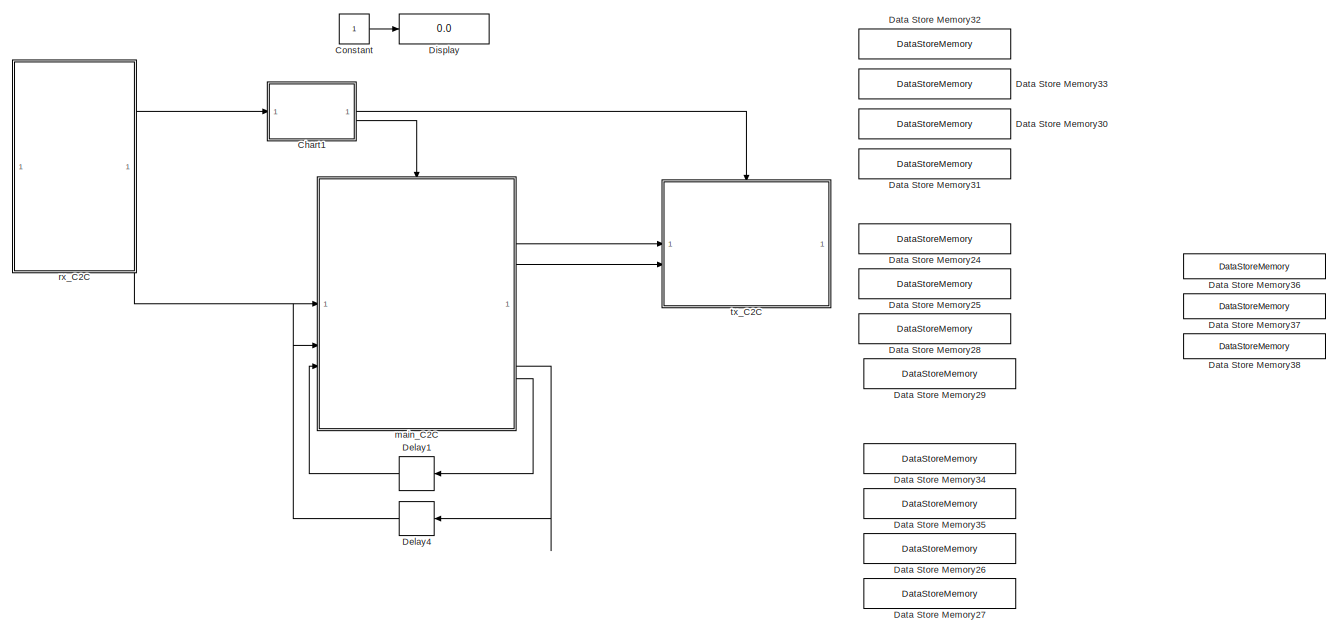
[diagram: root canvas - part 1/2, left side, full height]
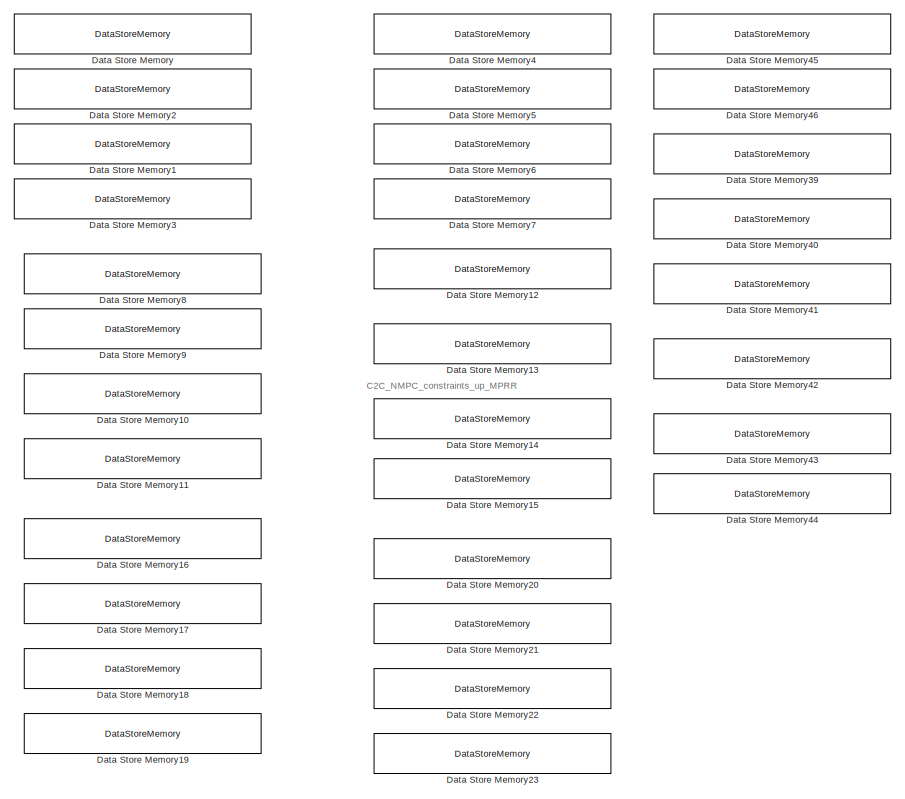
[diagram: root canvas - part 2/2, right side, full height]
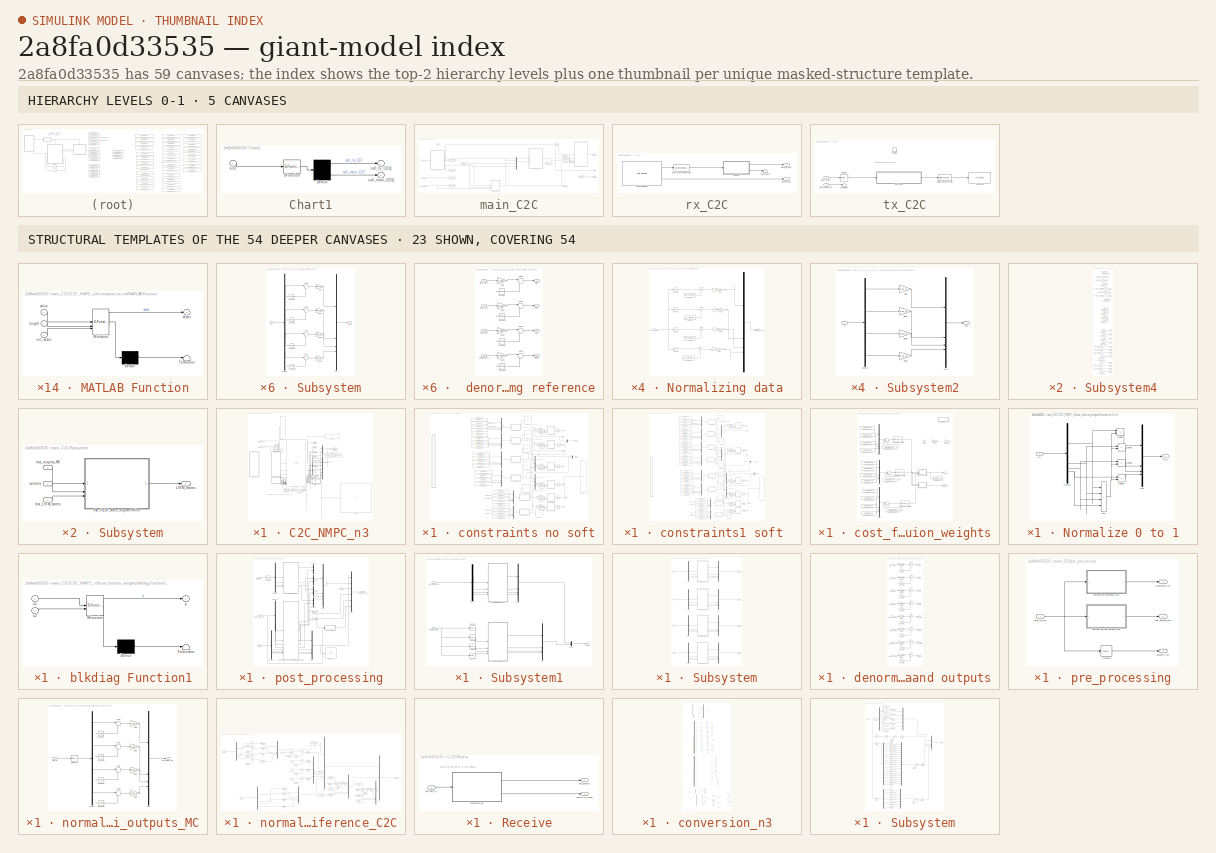
[diagram: thumbnail index - top-2 hierarchy levels (5 canvases) + 23 structural-template representatives of the remaining 54 canvases]
MODEL slx_2a8fa0d33535
KIND model
CONFIG AbsTol = auto
CONFIG EnableMultiTasking = on
CONFIG FixedStep = 0.01
CONFIG MaxStep = auto
CONFIG MinStep = auto
CONFIG RelTol = 1e-3
CONFIG SampleTimeConstraint = Unconstrained
CONFIG SolverName = FixedStepAuto
CONFIG StartTime = 0.0
CONFIG StopTime = inf
BLOCK [SubSystem] Chart1
  ErrorFcn = Stateflow.Translate.translate
  PermitHierarchicalResolution = ExplicitOnly
  SFBlockType = Chart
  TreatAsAtomicUnit = on
BLOCK [Demux] Chart1/ Demux 
  Outputs = 2
BLOCK [S-Function] Chart1/ SFunction 
  EnableBusSupport = on
  FunctionName = sf_sfun
  PortCounts = [1 1]
  SFcnIsStateOwnerBlock = off
  SFunctionDeploymentMode = off
  Tag = Stateflow S-Function 4
BLOCK [Outport] Chart1/call_main_C2C()
  Port = 2
BLOCK [Outport] Chart1/call_tx_C2C()
BLOCK [Inport] Chart1/size
BLOCK [Constant] Constant
BLOCK [DataStoreMemory] Data Store Memory
  DataStoreName = C2C_NMPC_constraints_low_DOI_main
  ShowAdditionalParam = off
  WriteAfterWriteMsg = warning
BLOCK [DataStoreMemory] Data Store Memory1
  DataStoreName = C2C_NMPC_constraints_low_SOI_main
  ShowAdditionalParam = off
  WriteAfterWriteMsg = warning
BLOCK [DataStoreMemory] Data Store Memory10
  DataStoreName = C2C_NMPC_constraints_low_SOOT
  ShowAdditionalParam = off
  WriteAfterWriteMsg = warning
BLOCK [DataStoreMemory] Data Store Memory11
  DataStoreName = C2C_NMPC_constraints_low_MPRR
  ShowAdditionalParam = off
  WriteAfterWriteMsg = warning
BLOCK [DataStoreMemory] Data Store Memory12
  DataStoreName = C2C_NMPC_constraints_up_IMEP
  ShowAdditionalParam = off
  WriteAfterWriteMsg = warning
BLOCK [DataStoreMemory] Data Store Memory13
  DataStoreName = C2C_NMPC_constraints_up_NOX
  ShowAdditionalParam = off
  WriteAfterWriteMsg = warning
BLOCK [DataStoreMemory] Data Store Memory14
  DataStoreName = C2C_NMPC_constraints_up_SOOT
  ShowAdditionalParam = off
  WriteAfterWriteMsg = warning
BLOCK [DataStoreMemory] Data Store Memory15
  DataStoreName = C2C_NMPC_constraints_up_MPRR
  ShowAdditionalParam = off
  WriteAfterWriteMsg = warning
BLOCK [DataStoreMemory] Data Store Memory16
  DataStoreName = C2C_NMPC_constraints_low_dt_DOI_main
  NameLocation = left
  ShowAdditionalParam = off
  WriteAfterWriteMsg = warning
BLOCK [DataStoreMemory] Data Store Memory17
  DataStoreName = C2C_NMPC_constraints_low_dt_P2M
  ShowAdditionalParam = off
  WriteAfterWriteMsg = warning
BLOCK [DataStoreMemory] Data Store Memory18
  DataStoreName = C2C_NMPC_constraints_low_dt_SOI_main
  ShowAdditionalParam = off
  WriteAfterWriteMsg = warning
BLOCK [DataStoreMemory] Data Store Memory19
  DataStoreName = C2C_NMPC_constraints_low_dt_DOI_H2
  ShowAdditionalParam = off
  WriteAfterWriteMsg = warning
BLOCK [DataStoreMemory] Data Store Memory2
  DataStoreName = C2C_NMPC_constraints_low_P2M
  ShowAdditionalParam = off
  WriteAfterWriteMsg = warning
BLOCK [DataStoreMemory] Data Store Memory20
  DataStoreName = C2C_NMPC_constraints_up_dt_DOI_main
  NameLocation = left
  ShowAdditionalParam = off
  WriteAfterWriteMsg = warning
BLOCK [DataStoreMemory] Data Store Memory21
  DataStoreName = C2C_NMPC_constraints_up_dt_P2M
  ShowAdditionalParam = off
  WriteAfterWriteMsg = warning
BLOCK [DataStoreMemory] Data Store Memory22
  DataStoreName = C2C_NMPC_constraints_up_dt_SOI_main
  ShowAdditionalParam = off
  WriteAfterWriteMsg = warning
BLOCK [DataStoreMemory] Data Store Memory23
  DataStoreName = C2C_NMPC_constraints_up_dt_DOI_H1
  ShowAdditionalParam = off
  WriteAfterWriteMsg = warning
BLOCK [DataStoreMemory] Data Store Memory24
  DataStoreName = C2C_NMPC_IMEP_Weight
  ShowAdditionalParam = off
  WriteAfterWriteMsg = warning
BLOCK [DataStoreMemory] Data Store Memory25
  DataStoreName = C2C_NMPC_NOX_Weight
  ShowAdditionalParam = off
  WriteAfterWriteMsg = warning
BLOCK [DataStoreMemory] Data Store Memory26
  DataStoreName = C2C_NMPC_Delta_SOI_Main_Weight
  ShowAdditionalParam = off
  WriteAfterWriteMsg = warning
BLOCK [DataStoreMemory] Data Store Memory27
  DataStoreName = C2C_NMPC_Delta_DOI_H2_Weight
  ShowAdditionalParam = off
  WriteAfterWriteMsg = warning
BLOCK [DataStoreMemory] Data Store Memory28
  DataStoreName = C2C_NMPC_SOOT_Weight
  ShowAdditionalParam = off
  WriteAfterWriteMsg = warning
BLOCK [DataStoreMemory] Data Store Memory29
  DataStoreName = C2C_NMPC_MPRR_Weight
  ShowAdditionalParam = off
  WriteAfterWriteMsg = warning
BLOCK [DataStoreMemory] Data Store Memory3
  DataStoreName = C2C_NMPC_constraints_low_DOI_H2
  ShowAdditionalParam = off
  WriteAfterWriteMsg = warning
BLOCK [DataStoreMemory] Data Store Memory30
  DataStoreName = C2C_NMPC_SOI_Main_Weight
  ShowAdditionalParam = off
  WriteAfterWriteMsg = warning
BLOCK [DataStoreMemory] Data Store Memory31
  DataStoreName = C2C_NMPC_DOI_H2_Weight
  NameLocation = top
  ShowAdditionalParam = off
  WriteAfterWriteMsg = warning
BLOCK [DataStoreMemory] Data Store Memory32
  DataStoreName = C2C_NMPC_DOI_Main_Weight
  ShowAdditionalParam = off
  WriteAfterWriteMsg = warning
BLOCK [DataStoreMemory] Data Store Memory33
  DataStoreName = C2C_NMPC_P2M_Weight
  ShowAdditionalParam = off
  WriteAfterWriteMsg = warning
BLOCK [DataStoreMemory] Data Store Memory34
  DataStoreName = C2C_NMPC_Delta_DOI_Main_Weight
  ShowAdditionalParam = off
  WriteAfterWriteMsg = warning
BLOCK [DataStoreMemory] Data Store Memory35
  DataStoreName = C2C_NMPC_Delta_P2M_Weight
  ShowAdditionalParam = off
  WriteAfterWriteMsg = warning
BLOCK [DataStoreMemory] Data Store Memory36
  DataStoreName = C2C_NMPC_alpha
  ShowAdditionalParam = off
  WriteAfterWriteMsg = warning
BLOCK [DataStoreMemory] Data Store Memory37
  DataStoreName = C2C_NMPC_beta
  ShowAdditionalParam = off
  WriteAfterWriteMsg = warning
BLOCK [DataStoreMemory] Data Store Memory38
  DataStoreName = C2C_NMPC_gamma
  ShowAdditionalParam = off
  WriteAfterWriteMsg = warning
BLOCK [DataStoreMemory] Data Store Memory39
  DataStoreName = C2C_NMPC_constraints_low_SOOT_soft
  ShowAdditionalParam = off
  WriteAfterWriteMsg = warning
BLOCK [DataStoreMemory] Data Store Memory4
  DataStoreName = C2C_NMPC_constraints_up_DOI_main
  ShowAdditionalParam = off
  WriteAfterWriteMsg = warning
BLOCK [DataStoreMemory] Data Store Memory40
  DataStoreName = C2C_NMPC_constraints_low_MPRR_soft
  ShowAdditionalParam = off
  WriteAfterWriteMsg = warning
BLOCK [DataStoreMemory] Data Store Memory41
  DataStoreName = C2C_NMPC_constraints_up_IMEP_soft
  ShowAdditionalParam = off
  WriteAfterWriteMsg = warning
BLOCK [DataStoreMemory] Data Store Memory42
  DataStoreName = C2C_NMPC_constraints_up_NOX_soft
  ShowAdditionalParam = off
  WriteAfterWriteMsg = warning
BLOCK [DataStoreMemory] Data Store Memory43
  DataStoreName = C2C_NMPC_constraints_up_SOOT_soft
  ShowAdditionalParam = off
  WriteAfterWriteMsg = warning
BLOCK [DataStoreMemory] Data Store Memory44
  DataStoreName = C2C_NMPC_constraints_up_MPRR_soft
  ShowAdditionalParam = off
  WriteAfterWriteMsg = warning
BLOCK [DataStoreMemory] Data Store Memory45
  DataStoreName = C2C_NMPC_constraints_low_IMEP_soft
  ShowAdditionalParam = off
  WriteAfterWriteMsg = warning
BLOCK [DataStoreMemory] Data Store Memory46
  DataStoreName = C2C_NMPC_constraints_low_NOX_soft
  ShowAdditionalParam = off
  WriteAfterWriteMsg = warning
BLOCK [DataStoreMemory] Data Store Memory5
  DataStoreName = C2C_NMPC_constraints_up_P2M
  ShowAdditionalParam = off
  WriteAfterWriteMsg = warning
BLOCK [DataStoreMemory] Data Store Memory6
  DataStoreName = C2C_NMPC_constraints_up_SOI_main
  ShowAdditionalParam = off
  WriteAfterWriteMsg = warning
BLOCK [DataStoreMemory] Data Store Memory7
  DataStoreName = C2C_NMPC_constraints_up_DOI_H2
  ShowAdditionalParam = off
  WriteAfterWriteMsg = warning
BLOCK [DataStoreMemory] Data Store Memory8
  DataStoreName = C2C_NMPC_constraints_low_IMEP
  ShowAdditionalParam = off
  WriteAfterWriteMsg = warning
BLOCK [DataStoreMemory] Data Store Memory9
  DataStoreName = C2C_NMPC_constraints_low_NOX
  ShowAdditionalParam = off
  WriteAfterWriteMsg = warning
BLOCK [Delay] Delay1
  DelayLength = 1
  InitialCondition = C2C_NMPC.x0([(C2C_NMPC.Dims.n_LSTM_states + 1):(C2C_NMPC.Dims.n_LSTM_states + C2C_NMPC.Dims.n_controls)])
  InputPortMap = u0
  NameLocation = top
BLOCK [Delay] Delay4
  DelayLength = 1
  InitialCondition = C2C_NMPC.x0(1:C2C_NMPC.Dims.n_LSTM_states)
  InputPortMap = u0
  NameLocation = top
BLOCK [Display] Display
  Decimation = 1
BLOCK [SubSystem] main_C2C
BLOCK [SubSystem] main_C2C/C2C_NMPC_n3
  VariantControl = C2C_NMPC_n3
BLOCK [Constant] main_C2C/C2C_NMPC_n3/Constant14
  NameLocation = top
  Value = 4
BLOCK [DataTypeConversion] main_C2C/C2C_NMPC_n3/Data Type Conversion
  NameLocation = top
  RndMeth = Floor
  SaturateOnIntegerOverflow = off
BLOCK [Display] main_C2C/C2C_NMPC_n3/Display
  Decimation = 1
BLOCK [Display] main_C2C/C2C_NMPC_n3/Display1
  Decimation = 1
BLOCK [Display] main_C2C/C2C_NMPC_n3/Display3
  Decimation = 1
BLOCK [RelationalOperator] main_C2C/C2C_NMPC_n3/Equal
  InputSameDT = off
  NameLocation = top
  Operator = ==
  OutDataTypeStr = boolean
  RndMeth = Simplest
BLOCK [Mux] main_C2C/C2C_NMPC_n3/Mux1
  DisplayOption = bar
  Inputs = 9
BLOCK [S-Function] main_C2C/C2C_NMPC_n3/S-Function
  EnableBusSupport = off
  FunctionName = acados_solver_sfunction_C2C_NMPC
  SFcnIsStateOwnerBlock = off
  SFunctionDeploymentMode = off
BLOCK [Scope] main_C2C/C2C_NMPC_n3/Scope
  Floating = off
  NumInputPorts = 2
  ScopeSpecificationString = Simulink.scopes.TimeScopeBlockCfg('CurrentConfiguration', extmgr.ConfigurationSet(extmgr.Configuration('Core','General UI',true),extmgr.Configuration('Core','Source UI',true),extmgr.Configuration('Sources','WiredSimulink',true,'DataLoggingVariableName','ScopeData1'),extmgr.Configuration('Visuals','Time Domain',true,'SerializedDisplays',{struct('MinYLimReal','5557.2058','MaxYLimReal','8564.16759','...<+1448ch>
BLOCK [Selector] main_C2C/C2C_NMPC_n3/Selector1
  IndexOptions = Index vector (dialog)
  Indices = [(C2C_NMPC.Dims.n_LSTM_states + 1):(C2C_NMPC.Dims.n_LSTM_states + C2C_NMPC.Dims.n_controls)]
  OutputSizes = 1
BLOCK [Selector] main_C2C/C2C_NMPC_n3/Selector2
  IndexOptions = Index vector (dialog)
  Indices = [1:(C2C_NMPC.Dims.n_cost)]
  OutputSizes = 1
BLOCK [Selector] main_C2C/C2C_NMPC_n3/Selector3
  IndexOptions = Index vector (dialog)
  Indices = [ (C2C_NMPC.Dims.n_cost + 1) : (C2C_NMPC.Dims.n_cost * 3) ]
  OutputSizes = 1
BLOCK [Selector] main_C2C/C2C_NMPC_n3/Selector4
  IndexOptions = Index vector (dialog)
  Indices = [ (C2C_NMPC.Dims.n_cost * 2 + 1) : (C2C_NMPC.Dims.n_cost * 2 + C2C_NMPC.Dims.n_controls + C2C_NMPC.Dims.n_outputs ) ]
  OutputSizes = 1
BLOCK [Terminator] main_C2C/C2C_NMPC_n3/Terminator
BLOCK [Terminator] main_C2C/C2C_NMPC_n3/Terminator1
BLOCK [Terminator] main_C2C/C2C_NMPC_n3/Terminator2
BLOCK [Terminator] main_C2C/C2C_NMPC_n3/Terminator3
BLOCK [Terminator] main_C2C/C2C_NMPC_n3/Terminator4
BLOCK [Terminator] main_C2C/C2C_NMPC_n3/Terminator5
BLOCK [Terminator] main_C2C/C2C_NMPC_n3/Terminator6
BLOCK [Terminator] main_C2C/C2C_NMPC_n3/Terminator7
BLOCK [Terminator] main_C2C/C2C_NMPC_n3/Terminator8
BLOCK [UnitDelay] main_C2C/C2C_NMPC_n3/Unit Delay1
  HasFrameUpgradeWarning = on
  NameLocation = top
  SampleTime = -1
BLOCK [SubSystem] main_C2C/C2C_NMPC_n3/constraints no soft
  Commented = on
BLOCK [Constant] main_C2C/C2C_NMPC_n3/constraints no soft/Constant1
  Value = C2C_NMPC.Opts.N-1
BLOCK [Constant] main_C2C/C2C_NMPC_n3/constraints no soft/Constant2
  Value = C2C_NMPC.Opts.N-1
BLOCK [Constant] main_C2C/C2C_NMPC_n3/constraints no soft/Constant3
  Value = C2C_NMPC.Opts.N
BLOCK [Constant] main_C2C/C2C_NMPC_n3/constraints no soft/Constant4
  Value = C2C_NMPC.Opts.N
BLOCK [Constant] main_C2C/C2C_NMPC_n3/constraints no soft/Constant5
  Value = C2C_NMPC.Opts.N
BLOCK [Constant] main_C2C/C2C_NMPC_n3/constraints no soft/Constant6
  Value = C2C_NMPC.Opts.N
BLOCK [DataStoreRead] main_C2C/C2C_NMPC_n3/constraints no soft/Data Store Read
  DataStoreName = C2C_NMPC_constraints_low_DOI_main
  IndexOptions = Index vector (dialog)
  Indices = 1
  OutputSizes = 1
BLOCK [DataStoreRead] main_C2C/C2C_NMPC_n3/constraints no soft/Data Store Read1
  DataStoreName = C2C_NMPC_constraints_low_P2M
  IndexOptions = Index vector (dialog)
  Indices = 1
  OutputSizes = 1
BLOCK [DataStoreRead] main_C2C/C2C_NMPC_n3/constraints no soft/Data Store Read10
  DataStoreName = C2C_NMPC_constraints_low_SOOT
  IndexOptions = Index vector (dialog)
  Indices = 1
  OutputSizes = 1
BLOCK [DataStoreRead] main_C2C/C2C_NMPC_n3/constraints no soft/Data Store Read11
  DataStoreName = C2C_NMPC_constraints_low_MPRR
  IndexOptions = Index vector (dialog)
  Indices = 1
  OutputSizes = 1
BLOCK [DataStoreRead] main_C2C/C2C_NMPC_n3/constraints no soft/Data Store Read12
  DataStoreName = C2C_NMPC_constraints_up_IMEP
  IndexOptions = Index vector (dialog)
  Indices = 1
  OutputSizes = 1
BLOCK [DataStoreRead] main_C2C/C2C_NMPC_n3/constraints no soft/Data Store Read13
  DataStoreName = C2C_NMPC_constraints_up_NOX
  IndexOptions = Index vector (dialog)
  Indices = 1
  OutputSizes = 1
BLOCK [DataStoreRead] main_C2C/C2C_NMPC_n3/constraints no soft/Data Store Read14
  DataStoreName = C2C_NMPC_constraints_up_SOOT
  IndexOptions = Index vector (dialog)
  Indices = 1
  OutputSizes = 1
BLOCK [DataStoreRead] main_C2C/C2C_NMPC_n3/constraints no soft/Data Store Read15
  DataStoreName = C2C_NMPC_constraints_up_MPRR
  IndexOptions = Index vector (dialog)
  Indices = 1
  OutputSizes = 1
BLOCK [DataStoreRead] main_C2C/C2C_NMPC_n3/constraints no soft/Data Store Read16
  DataStoreName = C2C_NMPC_constraints_low_dt_DOI_main
  IndexOptions = Index vector (dialog)
  Indices = 1
  OutputSizes = 1
BLOCK [DataStoreRead] main_C2C/C2C_NMPC_n3/constraints no soft/Data Store Read17
  DataStoreName = C2C_NMPC_constraints_low_dt_P2M
  IndexOptions = Index vector (dialog)
  Indices = 1
  OutputSizes = 1
BLOCK [DataStoreRead] main_C2C/C2C_NMPC_n3/constraints no soft/Data Store Read18
  DataStoreName = C2C_NMPC_constraints_low_dt_SOI_main
  IndexOptions = Index vector (dialog)
  Indices = 1
  OutputSizes = 1
BLOCK [DataStoreRead] main_C2C/C2C_NMPC_n3/constraints no soft/Data Store Read19
  DataStoreName = C2C_NMPC_constraints_low_dt_DOI_H2
  IndexOptions = Index vector (dialog)
  Indices = 1
  OutputSizes = 1
BLOCK [DataStoreRead] main_C2C/C2C_NMPC_n3/constraints no soft/Data Store Read2
  DataStoreName = C2C_NMPC_constraints_low_SOI_main
  IndexOptions = Index vector (dialog)
  Indices = 1
  OutputSizes = 1
BLOCK [DataStoreRead] main_C2C/C2C_NMPC_n3/constraints no soft/Data Store Read20
  DataStoreName = C2C_NMPC_constraints_up_dt_DOI_main
  IndexOptions = Index vector (dialog)
  Indices = 1
  OutputSizes = 1
BLOCK [DataStoreRead] main_C2C/C2C_NMPC_n3/constraints no soft/Data Store Read21
  DataStoreName = C2C_NMPC_constraints_up_dt_P2M
  IndexOptions = Index vector (dialog)
  Indices = 1
  OutputSizes = 1
BLOCK [DataStoreRead] main_C2C/C2C_NMPC_n3/constraints no soft/Data Store Read22
  DataStoreName = C2C_NMPC_constraints_up_dt_SOI_main
  IndexOptions = Index vector (dialog)
  Indices = 1
  OutputSizes = 1
BLOCK [DataStoreRead] main_C2C/C2C_NMPC_n3/constraints no soft/Data Store Read23
  DataStoreName = C2C_NMPC_constraints_up_dt_DOI_H1
  IndexOptions = Index vector (dialog)
  Indices = 1
  OutputSizes = 1
BLOCK [DataStoreRead] main_C2C/C2C_NMPC_n3/constraints no soft/Data Store Read3
  DataStoreName = C2C_NMPC_constraints_low_DOI_H2
  IndexOptions = Index vector (dialog)
  Indices = 1
  OutputSizes = 1
BLOCK [DataStoreRead] main_C2C/C2C_NMPC_n3/constraints no soft/Data Store Read4
  DataStoreName = C2C_NMPC_constraints_up_DOI_main
  IndexOptions = Index vector (dialog)
  Indices = 1
  OutputSizes = 1
BLOCK [DataStoreRead] main_C2C/C2C_NMPC_n3/constraints no soft/Data Store Read5
  DataStoreName = C2C_NMPC_constraints_up_P2M
  IndexOptions = Index vector (dialog)
  Indices = 1
  OutputSizes = 1
BLOCK [DataStoreRead] main_C2C/C2C_NMPC_n3/constraints no soft/Data Store Read6
  DataStoreName = C2C_NMPC_constraints_up_SOI_main
  IndexOptions = Index vector (dialog)
  Indices = 1
  OutputSizes = 1
BLOCK [DataStoreRead] main_C2C/C2C_NMPC_n3/constraints no soft/Data Store Read7
  DataStoreName = C2C_NMPC_constraints_up_DOI_H2
  IndexOptions = Index vector (dialog)
  Indices = 1
  OutputSizes = 1
BLOCK [DataStoreRead] main_C2C/C2C_NMPC_n3/constraints no soft/Data Store Read8
  DataStoreName = C2C_NMPC_constraints_low_IMEP
  IndexOptions = Index vector (dialog)
  Indices = 1
  OutputSizes = 1
BLOCK [DataStoreRead] main_C2C/C2C_NMPC_n3/constraints no soft/Data Store Read9
  DataStoreName = C2C_NMPC_constraints_low_NOX
  IndexOptions = Index vector (dialog)
  Indices = 1
  OutputSizes = 1
BLOCK [Display] main_C2C/C2C_NMPC_n3/constraints no soft/Display
  Decimation = 1
BLOCK [Display] main_C2C/C2C_NMPC_n3/constraints no soft/Display1
  Decimation = 1
BLOCK [Display] main_C2C/C2C_NMPC_n3/constraints no soft/Display2
  Decimation = 1
BLOCK [Display] main_C2C/C2C_NMPC_n3/constraints no soft/Display3
  Decimation = 1
BLOCK [Display] main_C2C/C2C_NMPC_n3/constraints no soft/Display4
  Decimation = 1
BLOCK [Display] main_C2C/C2C_NMPC_n3/constraints no soft/Display5
  Decimation = 1
BLOCK [Display] main_C2C/C2C_NMPC_n3/constraints no soft/Display7
  Decimation = 1
BLOCK [Constant] main_C2C/C2C_NMPC_n3/constraints no soft/Init
  Value = ones(100,1)
BLOCK [Constant] main_C2C/C2C_NMPC_n3/constraints no soft/Init1
  Value = ones(100,1)
BLOCK [Constant] main_C2C/C2C_NMPC_n3/constraints no soft/Init2
  Value = ones(100,1)
BLOCK [Constant] main_C2C/C2C_NMPC_n3/constraints no soft/Init3
  Value = ones(100,1)
BLOCK [Constant] main_C2C/C2C_NMPC_n3/constraints no soft/Init4
  Value = ones(100,1)
BLOCK [Constant] main_C2C/C2C_NMPC_n3/constraints no soft/Init5
  Value = ones(100,1)
BLOCK [SubSystem] main_C2C/C2C_NMPC_n3/constraints no soft/MATLAB Function
  ErrorFcn = Stateflow.Translate.translate
  PermitHierarchicalResolution = ExplicitOnly
  SFBlockType = MATLAB Function
  TreatAsAtomicUnit = on
BLOCK [Demux] main_C2C/C2C_NMPC_n3/constraints no soft/MATLAB Function/ Demux 
  Outputs = 1
BLOCK [S-Function] main_C2C/C2C_NMPC_n3/constraints no soft/MATLAB Function/ SFunction 
  EnableBusSupport = off
  FunctionName = sf_sfun
  PortCounts = [3 2]
  SFcnIsStateOwnerBlock = off
  SFunctionDeploymentMode = off
  Tag = Stateflow S-Function 1
BLOCK [Terminator] main_C2C/C2C_NMPC_n3/constraints no soft/MATLAB Function/ Terminator 
BLOCK [Inport] main_C2C/C2C_NMPC_n3/constraints no soft/MATLAB Function/init_vector
  Port = 3
BLOCK [Inport] main_C2C/C2C_NMPC_n3/constraints no soft/MATLAB Function/length
  Port = 2
BLOCK [Inport] main_C2C/C2C_NMPC_n3/constraints no soft/MATLAB Function/value
BLOCK [Outport] main_C2C/C2C_NMPC_n3/constraints no soft/MATLAB Function/vector
BLOCK [SubSystem] main_C2C/C2C_NMPC_n3/constraints no soft/MATLAB Function1
  ErrorFcn = Stateflow.Translate.translate
  PermitHierarchicalResolution = ExplicitOnly
  SFBlockType = MATLAB Function
  TreatAsAtomicUnit = on
BLOCK [Demux] main_C2C/C2C_NMPC_n3/constraints no soft/MATLAB Function1/ Demux 
  Outputs = 1
BLOCK [S-Function] main_C2C/C2C_NMPC_n3/constraints no soft/MATLAB Function1/ SFunction 
  EnableBusSupport = off
  FunctionName = sf_sfun
  PortCounts = [3 2]
  SFcnIsStateOwnerBlock = off
  SFunctionDeploymentMode = off
  Tag = Stateflow S-Function 2
BLOCK [Terminator] main_C2C/C2C_NMPC_n3/constraints no soft/MATLAB Function1/ Terminator 
BLOCK [Inport] main_C2C/C2C_NMPC_n3/constraints no soft/MATLAB Function1/init_vector
  Port = 3
BLOCK [Inport] main_C2C/C2C_NMPC_n3/constraints no soft/MATLAB Function1/length
  Port = 2
BLOCK [Inport] main_C2C/C2C_NMPC_n3/constraints no soft/MATLAB Function1/value
BLOCK [Outport] main_C2C/C2C_NMPC_n3/constraints no soft/MATLAB Function1/vector
BLOCK [SubSystem] main_C2C/C2C_NMPC_n3/constraints no soft/MATLAB Function2
  ErrorFcn = Stateflow.Translate.translate
  PermitHierarchicalResolution = ExplicitOnly
  SFBlockType = MATLAB Function
  TreatAsAtomicUnit = on
BLOCK [Demux] main_C2C/C2C_NMPC_n3/constraints no soft/MATLAB Function2/ Demux 
  Outputs = 1
BLOCK [S-Function] main_C2C/C2C_NMPC_n3/constraints no soft/MATLAB Function2/ SFunction 
  EnableBusSupport = off
  FunctionName = sf_sfun
  PortCounts = [3 2]
  SFcnIsStateOwnerBlock = off
  SFunctionDeploymentMode = off
  Tag = Stateflow S-Function 3
BLOCK [Terminator] main_C2C/C2C_NMPC_n3/constraints no soft/MATLAB Function2/ Terminator 
BLOCK [Inport] main_C2C/C2C_NMPC_n3/constraints no soft/MATLAB Function2/init_vector
  Port = 3
BLOCK [Inport] main_C2C/C2C_NMPC_n3/constraints no soft/MATLAB Function2/length
  Port = 2
BLOCK [Inport] main_C2C/C2C_NMPC_n3/constraints no soft/MATLAB Function2/value
BLOCK [Outport] main_C2C/C2C_NMPC_n3/constraints no soft/MATLAB Function2/vector
BLOCK [SubSystem] main_C2C/C2C_NMPC_n3/constraints no soft/MATLAB Function3
  ErrorFcn = Stateflow.Translate.translate
  PermitHierarchicalResolution = ExplicitOnly
  SFBlockType = MATLAB Function
  TreatAsAtomicUnit = on
BLOCK [Demux] main_C2C/C2C_NMPC_n3/constraints no soft/MATLAB Function3/ Demux 
  Outputs = 1
BLOCK [S-Function] main_C2C/C2C_NMPC_n3/constraints no soft/MATLAB Function3/ SFunction 
  EnableBusSupport = off
  FunctionName = sf_sfun
  PortCounts = [3 2]
  SFcnIsStateOwnerBlock = off
  SFunctionDeploymentMode = off
  Tag = Stateflow S-Function 5
BLOCK [Terminator] main_C2C/C2C_NMPC_n3/constraints no soft/MATLAB Function3/ Terminator 
BLOCK [Inport] main_C2C/C2C_NMPC_n3/constraints no soft/MATLAB Function3/init_vector
  Port = 3
BLOCK [Inport] main_C2C/C2C_NMPC_n3/constraints no soft/MATLAB Function3/length
  Port = 2
BLOCK [Inport] main_C2C/C2C_NMPC_n3/constraints no soft/MATLAB Function3/value
BLOCK [Outport] main_C2C/C2C_NMPC_n3/constraints no soft/MATLAB Function3/vector
BLOCK [SubSystem] main_C2C/C2C_NMPC_n3/constraints no soft/MATLAB Function4
  ErrorFcn = Stateflow.Translate.translate
  PermitHierarchicalResolution = ExplicitOnly
  SFBlockType = MATLAB Function
  TreatAsAtomicUnit = on
BLOCK [Demux] main_C2C/C2C_NMPC_n3/constraints no soft/MATLAB Function4/ Demux 
  Outputs = 1
BLOCK [S-Function] main_C2C/C2C_NMPC_n3/constraints no soft/MATLAB Function4/ SFunction 
  EnableBusSupport = off
  FunctionName = sf_sfun
  PortCounts = [3 2]
  SFcnIsStateOwnerBlock = off
  SFunctionDeploymentMode = off
  Tag = Stateflow S-Function 6
BLOCK [Terminator] main_C2C/C2C_NMPC_n3/constraints no soft/MATLAB Function4/ Terminator 
BLOCK [Inport] main_C2C/C2C_NMPC_n3/constraints no soft/MATLAB Function4/init_vector
  Port = 3
BLOCK [Inport] main_C2C/C2C_NMPC_n3/constraints no soft/MATLAB Function4/length
  Port = 2
BLOCK [Inport] main_C2C/C2C_NMPC_n3/constraints no soft/MATLAB Function4/value
BLOCK [Outport] main_C2C/C2C_NMPC_n3/constraints no soft/MATLAB Function4/vector
BLOCK [SubSystem] main_C2C/C2C_NMPC_n3/constraints no soft/MATLAB Function5
  ErrorFcn = Stateflow.Translate.translate
  PermitHierarchicalResolution = ExplicitOnly
  SFBlockType = MATLAB Function
  TreatAsAtomicUnit = on
BLOCK [Demux] main_C2C/C2C_NMPC_n3/constraints no soft/MATLAB Function5/ Demux 
  Outputs = 1
BLOCK [S-Function] main_C2C/C2C_NMPC_n3/constraints no soft/MATLAB Function5/ SFunction 
  EnableBusSupport = off
  FunctionName = sf_sfun
  PortCounts = [3 2]
  SFcnIsStateOwnerBlock = off
  SFunctionDeploymentMode = off
  Tag = Stateflow S-Function 7
BLOCK [Terminator] main_C2C/C2C_NMPC_n3/constraints no soft/MATLAB Function5/ Terminator 
BLOCK [Inport] main_C2C/C2C_NMPC_n3/constraints no soft/MATLAB Function5/init_vector
  Port = 3
BLOCK [Inport] main_C2C/C2C_NMPC_n3/constraints no soft/MATLAB Function5/length
  Port = 2
BLOCK [Inport] main_C2C/C2C_NMPC_n3/constraints no soft/MATLAB Function5/value
BLOCK [Outport] main_C2C/C2C_NMPC_n3/constraints no soft/MATLAB Function5/vector
BLOCK [Mux] main_C2C/C2C_NMPC_n3/constraints no soft/Mux
  DisplayOption = bar
BLOCK [Mux] main_C2C/C2C_NMPC_n3/constraints no soft/Mux1
  DisplayOption = bar
  Inputs = 2
BLOCK [Mux] main_C2C/C2C_NMPC_n3/constraints no soft/Mux2
  DisplayOption = bar
BLOCK [Mux] main_C2C/C2C_NMPC_n3/constraints no soft/Mux3
  DisplayOption = bar
  Inputs = 2
BLOCK [Mux] main_C2C/C2C_NMPC_n3/constraints no soft/Mux4
  DisplayOption = bar
BLOCK [Mux] main_C2C/C2C_NMPC_n3/constraints no soft/Mux5
  DisplayOption = bar
BLOCK [Mux] main_C2C/C2C_NMPC_n3/constraints no soft/Mux6
  DisplayOption = bar
  Inputs = 3
BLOCK [Mux] main_C2C/C2C_NMPC_n3/constraints no soft/Mux7
  DisplayOption = bar
  Inputs = 3
BLOCK [Mux] main_C2C/C2C_NMPC_n3/constraints no soft/Mux8
  DisplayOption = bar
BLOCK [Mux] main_C2C/C2C_NMPC_n3/constraints no soft/Mux9
  DisplayOption = bar
BLOCK [SubSystem] main_C2C/C2C_NMPC_n3/constraints no soft/Normalizing data
BLOCK [Constant] main_C2C/C2C_NMPC_n3/constraints no soft/Normalizing data/Constant1
  Value = C2C_NMPC.Normalization.controls.mean(2)
BLOCK [Constant] main_C2C/C2C_NMPC_n3/constraints no soft/Normalizing data/Constant2
  Value = C2C_NMPC.Normalization.controls.mean(3)
BLOCK [Constant] main_C2C/C2C_NMPC_n3/constraints no soft/Normalizing data/Constant3
  Value = C2C_NMPC.Normalization.controls.mean(1)
BLOCK [Constant] main_C2C/C2C_NMPC_n3/constraints no soft/Normalizing data/Constant4
  Value = C2C_NMPC.Normalization.controls.mean(4)
BLOCK [Gain] main_C2C/C2C_NMPC_n3/constraints no soft/Normalizing data/Gain1
  Gain = 1/C2C_NMPC.Normalization.controls.std(2)
BLOCK [Gain] main_C2C/C2C_NMPC_n3/constraints no soft/Normalizing data/Gain2
  Gain = 1/C2C_NMPC.Normalization.controls.std(3)
BLOCK [Gain] main_C2C/C2C_NMPC_n3/constraints no soft/Normalizing data/Gain3
  Gain = 1/C2C_NMPC.Normalization.controls.std(4)
BLOCK [Gain] main_C2C/C2C_NMPC_n3/constraints no soft/Normalizing data/Gain4
  Gain = 1/C2C_NMPC.Normalization.controls.std(1)
BLOCK [Mux] main_C2C/C2C_NMPC_n3/constraints no soft/Normalizing data/Mux
  DisplayOption = bar
BLOCK [Selector] main_C2C/C2C_NMPC_n3/constraints no soft/Normalizing data/Selector
  IndexOptions = Index vector (dialog)
  Indices = [2]
  OutputSizes = 1
BLOCK [Selector] main_C2C/C2C_NMPC_n3/constraints no soft/Normalizing data/Selector1
  IndexOptions = Index vector (dialog)
  Indices = [1]
  OutputSizes = 1
BLOCK [Selector] main_C2C/C2C_NMPC_n3/constraints no soft/Normalizing data/Selector2
  IndexOptions = Index vector (dialog)
  Indices = [3]
  OutputSizes = 1
BLOCK [Selector] main_C2C/C2C_NMPC_n3/constraints no soft/Normalizing data/Selector3
  IndexOptions = Index vector (dialog)
  Indices = [4]
  OutputSizes = 1
BLOCK [Sum] main_C2C/C2C_NMPC_n3/constraints no soft/Normalizing data/Sum1
  Inputs = |+-
BLOCK [Sum] main_C2C/C2C_NMPC_n3/constraints no soft/Normalizing data/Sum2
  Inputs = |+-
BLOCK [Sum] main_C2C/C2C_NMPC_n3/constraints no soft/Normalizing data/Sum3
  Inputs = |+-
BLOCK [Sum] main_C2C/C2C_NMPC_n3/constraints no soft/Normalizing data/Sum4
  Inputs = |+-
BLOCK [Outport] main_C2C/C2C_NMPC_n3/constraints no soft/Normalizing data/normalized_data
BLOCK [Inport] main_C2C/C2C_NMPC_n3/constraints no soft/Normalizing data/physical_data
BLOCK [SubSystem] main_C2C/C2C_NMPC_n3/constraints no soft/Normalizing data1
BLOCK [Constant] main_C2C/C2C_NMPC_n3/constraints no soft/Normalizing data1/Constant1
  Value = C2C_NMPC.Normalization.controls.mean(2)
BLOCK [Constant] main_C2C/C2C_NMPC_n3/constraints no soft/Normalizing data1/Constant2
  Value = C2C_NMPC.Normalization.controls.mean(3)
BLOCK [Constant] main_C2C/C2C_NMPC_n3/constraints no soft/Normalizing data1/Constant3
  Value = C2C_NMPC.Normalization.controls.mean(1)
BLOCK [Constant] main_C2C/C2C_NMPC_n3/constraints no soft/Normalizing data1/Constant4
  Value = C2C_NMPC.Normalization.controls.mean(4)
BLOCK [Gain] main_C2C/C2C_NMPC_n3/constraints no soft/Normalizing data1/Gain1
  Gain = 1/C2C_NMPC.Normalization.controls.std(2)
BLOCK [Gain] main_C2C/C2C_NMPC_n3/constraints no soft/Normalizing data1/Gain2
  Gain = 1/C2C_NMPC.Normalization.controls.std(3)
BLOCK [Gain] main_C2C/C2C_NMPC_n3/constraints no soft/Normalizing data1/Gain3
  Gain = 1/C2C_NMPC.Normalization.controls.std(4)
BLOCK [Gain] main_C2C/C2C_NMPC_n3/constraints no soft/Normalizing data1/Gain4
  Gain = 1/C2C_NMPC.Normalization.controls.std(1)
BLOCK [Mux] main_C2C/C2C_NMPC_n3/constraints no soft/Normalizing data1/Mux
  DisplayOption = bar
BLOCK [Selector] main_C2C/C2C_NMPC_n3/constraints no soft/Normalizing data1/Selector
  IndexOptions = Index vector (dialog)
  Indices = [2]
  OutputSizes = 1
BLOCK [Selector] main_C2C/C2C_NMPC_n3/constraints no soft/Normalizing data1/Selector1
  IndexOptions = Index vector (dialog)
  Indices = [1]
  OutputSizes = 1
BLOCK [Selector] main_C2C/C2C_NMPC_n3/constraints no soft/Normalizing data1/Selector2
  IndexOptions = Index vector (dialog)
  Indices = [3]
  OutputSizes = 1
BLOCK [Selector] main_C2C/C2C_NMPC_n3/constraints no soft/Normalizing data1/Selector3
  IndexOptions = Index vector (dialog)
  Indices = [4]
  OutputSizes = 1
BLOCK [Sum] main_C2C/C2C_NMPC_n3/constraints no soft/Normalizing data1/Sum1
  Inputs = |+-
BLOCK [Sum] main_C2C/C2C_NMPC_n3/constraints no soft/Normalizing data1/Sum2
  Inputs = |+-
BLOCK [Sum] main_C2C/C2C_NMPC_n3/constraints no soft/Normalizing data1/Sum3
  Inputs = |+-
BLOCK [Sum] main_C2C/C2C_NMPC_n3/constraints no soft/Normalizing data1/Sum4
  Inputs = |+-
BLOCK [Outport] main_C2C/C2C_NMPC_n3/constraints no soft/Normalizing data1/normalized_data
BLOCK [Inport] main_C2C/C2C_NMPC_n3/constraints no soft/Normalizing data1/physical_data
BLOCK [Selector] main_C2C/C2C_NMPC_n3/constraints no soft/Selector
  IndexOptions = Index vector (dialog)
  Indices = 1:((C2C_NMPC.Opts.N-1)*C2C_NMPC.Dims.n_controls)
  OutputSizes = 1
BLOCK [Selector] main_C2C/C2C_NMPC_n3/constraints no soft/Selector1
  IndexOptions = Index vector (dialog)
  Indices = 1:((C2C_NMPC.Opts.N-1)*C2C_NMPC.Dims.n_controls)
  OutputSizes = 1
BLOCK [Selector] main_C2C/C2C_NMPC_n3/constraints no soft/Selector2
  IndexOptions = Index vector (dialog)
  Indices = 1:((C2C_NMPC.Opts.N)*(C2C_NMPC.Dims.n_outputs + C2C_NMPC.Dims.n_controls +C2C_NMPC.Dims.n_controls))
  OutputSizes = 1
BLOCK [Selector] main_C2C/C2C_NMPC_n3/constraints no soft/Selector3
  IndexOptions = Index vector (dialog)
  Indices = 1:((C2C_NMPC.Opts.N)*(C2C_NMPC.Dims.n_outputs + C2C_NMPC.Dims.n_controls +C2C_NMPC.Dims.n_controls))
  OutputSizes = 1
BLOCK [Selector] main_C2C/C2C_NMPC_n3/constraints no soft/Selector4
  IndexOptions = Index vector (dialog)
  Indices = 1:((C2C_NMPC.Opts.N)*(C2C_NMPC.Dims.n_controls))
  OutputSizes = 1
BLOCK [Selector] main_C2C/C2C_NMPC_n3/constraints no soft/Selector5
  IndexOptions = Index vector (dialog)
  Indices = 1:((C2C_NMPC.Opts.N)*(C2C_NMPC.Dims.n_controls))
  OutputSizes = 1
BLOCK [SubSystem] main_C2C/C2C_NMPC_n3/constraints no soft/Subsystem
BLOCK [Constant] main_C2C/C2C_NMPC_n3/constraints no soft/Subsystem/Constant
  Value = C2C_NMPC.Normalization.outputs.mean(1)
BLOCK [Constant] main_C2C/C2C_NMPC_n3/constraints no soft/Subsystem/Constant1
  Value = C2C_NMPC.Normalization.outputs.mean(2)
BLOCK [Constant] main_C2C/C2C_NMPC_n3/constraints no soft/Subsystem/Constant2
  Value = C2C_NMPC.Normalization.outputs.mean(3)
BLOCK [Constant] main_C2C/C2C_NMPC_n3/constraints no soft/Subsystem/Constant3
  Value = C2C_NMPC.Normalization.outputs.mean(4)
BLOCK [Demux] main_C2C/C2C_NMPC_n3/constraints no soft/Subsystem/Demux
BLOCK [Gain] main_C2C/C2C_NMPC_n3/constraints no soft/Subsystem/Gain
  Gain = 1/C2C_NMPC.Normalization.outputs.std(1)
BLOCK [Gain] main_C2C/C2C_NMPC_n3/constraints no soft/Subsystem/Gain1
  Gain = 1/C2C_NMPC.Normalization.outputs.std(2)
BLOCK [Gain] main_C2C/C2C_NMPC_n3/constraints no soft/Subsystem/Gain2
  Gain = 1/C2C_NMPC.Normalization.outputs.std(3)
BLOCK [Gain] main_C2C/C2C_NMPC_n3/constraints no soft/Subsystem/Gain3
  Gain = 1/C2C_NMPC.Normalization.outputs.std(4)
BLOCK [Inport] main_C2C/C2C_NMPC_n3/constraints no soft/Subsystem/In
BLOCK [Mux] main_C2C/C2C_NMPC_n3/constraints no soft/Subsystem/Mux
  DisplayOption = bar
BLOCK [Sum] main_C2C/C2C_NMPC_n3/constraints no soft/Subsystem/Sum1
  Inputs = |+-
BLOCK [Sum] main_C2C/C2C_NMPC_n3/constraints no soft/Subsystem/Sum2
  Inputs = |+-
BLOCK [Sum] main_C2C/C2C_NMPC_n3/constraints no soft/Subsystem/Sum3
  Inputs = |+-
BLOCK [Sum] main_C2C/C2C_NMPC_n3/constraints no soft/Subsystem/Sum5
  Inputs = |+-
BLOCK [Outport] main_C2C/C2C_NMPC_n3/constraints no soft/Subsystem/value
BLOCK [SubSystem] main_C2C/C2C_NMPC_n3/constraints no soft/Subsystem1
BLOCK [Constant] main_C2C/C2C_NMPC_n3/constraints no soft/Subsystem1/Constant
  Value = C2C_NMPC.Normalization.outputs.mean(1)
BLOCK [Constant] main_C2C/C2C_NMPC_n3/constraints no soft/Subsystem1/Constant1
  Value = C2C_NMPC.Normalization.outputs.mean(2)
BLOCK [Constant] main_C2C/C2C_NMPC_n3/constraints no soft/Subsystem1/Constant2
  Value = C2C_NMPC.Normalization.outputs.mean(3)
BLOCK [Constant] main_C2C/C2C_NMPC_n3/constraints no soft/Subsystem1/Constant3
  Value = C2C_NMPC.Normalization.outputs.mean(4)
BLOCK [Demux] main_C2C/C2C_NMPC_n3/constraints no soft/Subsystem1/Demux
BLOCK [Gain] main_C2C/C2C_NMPC_n3/constraints no soft/Subsystem1/Gain
  Gain = 1/C2C_NMPC.Normalization.outputs.std(1)
BLOCK [Gain] main_C2C/C2C_NMPC_n3/constraints no soft/Subsystem1/Gain1
  Gain = 1/C2C_NMPC.Normalization.outputs.std(2)
BLOCK [Gain] main_C2C/C2C_NMPC_n3/constraints no soft/Subsystem1/Gain2
  Gain = 1/C2C_NMPC.Normalization.outputs.std(3)
BLOCK [Gain] main_C2C/C2C_NMPC_n3/constraints no soft/Subsystem1/Gain3
  Gain = 1/C2C_NMPC.Normalization.outputs.std(4)
BLOCK [Inport] main_C2C/C2C_NMPC_n3/constraints no soft/Subsystem1/In
BLOCK [Mux] main_C2C/C2C_NMPC_n3/constraints no soft/Subsystem1/Mux
  DisplayOption = bar
BLOCK [Sum] main_C2C/C2C_NMPC_n3/constraints no soft/Subsystem1/Sum1
  Inputs = |+-
BLOCK [Sum] main_C2C/C2C_NMPC_n3/constraints no soft/Subsystem1/Sum2
  Inputs = |+-
BLOCK [Sum] main_C2C/C2C_NMPC_n3/constraints no soft/Subsystem1/Sum3
  Inputs = |+-
BLOCK [Sum] main_C2C/C2C_NMPC_n3/constraints no soft/Subsystem1/Sum5
  Inputs = |+-
BLOCK [Outport] main_C2C/C2C_NMPC_n3/constraints no soft/Subsystem1/ubh_e
BLOCK [SubSystem] main_C2C/C2C_NMPC_n3/constraints no soft/Subsystem2
  Commented = through
BLOCK [Demux] main_C2C/C2C_NMPC_n3/constraints no soft/Subsystem2/Demux
BLOCK [Gain] main_C2C/C2C_NMPC_n3/constraints no soft/Subsystem2/Gain
  Gain = 1/C2C_NMPC.Normalization.controls.std(1)
BLOCK [Gain] main_C2C/C2C_NMPC_n3/constraints no soft/Subsystem2/Gain1
  Gain = 1/C2C_NMPC.Normalization.controls.std(2)
BLOCK [Gain] main_C2C/C2C_NMPC_n3/constraints no soft/Subsystem2/Gain2
  Gain = 1/C2C_NMPC.Normalization.controls.std(3)
BLOCK [Gain] main_C2C/C2C_NMPC_n3/constraints no soft/Subsystem2/Gain3
  Gain = 1/C2C_NMPC.Normalization.controls.std(4)
BLOCK [Inport] main_C2C/C2C_NMPC_n3/constraints no soft/Subsystem2/In
BLOCK [Mux] main_C2C/C2C_NMPC_n3/constraints no soft/Subsystem2/Mux
  DisplayOption = bar
BLOCK [Outport] main_C2C/C2C_NMPC_n3/constraints no soft/Subsystem2/Out
BLOCK [SubSystem] main_C2C/C2C_NMPC_n3/constraints no soft/Subsystem3
  Commented = through
BLOCK [Demux] main_C2C/C2C_NMPC_n3/constraints no soft/Subsystem3/Demux
BLOCK [Gain] main_C2C/C2C_NMPC_n3/constraints no soft/Subsystem3/Gain
  Gain = 1/C2C_NMPC.Normalization.controls.std(1)
BLOCK [Gain] main_C2C/C2C_NMPC_n3/constraints no soft/Subsystem3/Gain1
  Gain = 1/C2C_NMPC.Normalization.controls.std(2)
BLOCK [Gain] main_C2C/C2C_NMPC_n3/constraints no soft/Subsystem3/Gain2
  Gain = 1/C2C_NMPC.Normalization.controls.std(3)
BLOCK [Gain] main_C2C/C2C_NMPC_n3/constraints no soft/Subsystem3/Gain3
  Gain = 1/C2C_NMPC.Normalization.controls.std(4)
BLOCK [Inport] main_C2C/C2C_NMPC_n3/constraints no soft/Subsystem3/In
BLOCK [Mux] main_C2C/C2C_NMPC_n3/constraints no soft/Subsystem3/Mux
  DisplayOption = bar
BLOCK [Outport] main_C2C/C2C_NMPC_n3/constraints no soft/Subsystem3/Out
BLOCK [SubSystem] main_C2C/C2C_NMPC_n3/constraints no soft/Subsystem4
  Commented = on
BLOCK [Constant] main_C2C/C2C_NMPC_n3/constraints no soft/Subsystem4/C2C_NMPC_constraints_low_DOI_H2
  Value = 0
BLOCK [Constant] main_C2C/C2C_NMPC_n3/constraints no soft/Subsystem4/C2C_NMPC_constraints_low_DOI_main
  Value = 0.17e-3
BLOCK [Constant] main_C2C/C2C_NMPC_n3/constraints no soft/Subsystem4/C2C_NMPC_constraints_low_IMEP
  Value = 0
BLOCK [Constant] main_C2C/C2C_NMPC_n3/constraints no soft/Subsystem4/C2C_NMPC_constraints_low_MPRR
  Value = 0
BLOCK [Constant] main_C2C/C2C_NMPC_n3/constraints no soft/Subsystem4/C2C_NMPC_constraints_low_NOX
  Value = 0
BLOCK [Constant] main_C2C/C2C_NMPC_n3/constraints no soft/Subsystem4/C2C_NMPC_constraints_low_P2M
  Value = 430
BLOCK [Constant] main_C2C/C2C_NMPC_n3/constraints no soft/Subsystem4/C2C_NMPC_constraints_low_SOI_main
  Value = -3
BLOCK [Constant] main_C2C/C2C_NMPC_n3/constraints no soft/Subsystem4/C2C_NMPC_constraints_low_SOOT
  Value = 0
BLOCK [Constant] main_C2C/C2C_NMPC_n3/constraints no soft/Subsystem4/C2C_NMPC_constraints_low_dt_DOI_H2
  Value = -1e6
BLOCK [Constant] main_C2C/C2C_NMPC_n3/constraints no soft/Subsystem4/C2C_NMPC_constraints_low_dt_DOI_main
  Value = -1e6
BLOCK [Constant] main_C2C/C2C_NMPC_n3/constraints no soft/Subsystem4/C2C_NMPC_constraints_low_dt_P2M
  Value = -1e6
BLOCK [Constant] main_C2C/C2C_NMPC_n3/constraints no soft/Subsystem4/C2C_NMPC_constraints_low_dt_SOI_main
  Value = -1e6
BLOCK [Constant] main_C2C/C2C_NMPC_n3/constraints no soft/Subsystem4/C2C_NMPC_constraints_up_DOI_H2
  Value = 5.5e-3
BLOCK [Constant] main_C2C/C2C_NMPC_n3/constraints no soft/Subsystem4/C2C_NMPC_constraints_up_DOI_main
  Value = 0.5e-3
BLOCK [Constant] main_C2C/C2C_NMPC_n3/constraints no soft/Subsystem4/C2C_NMPC_constraints_up_IMEP
  Value = 8e5
BLOCK [Constant] main_C2C/C2C_NMPC_n3/constraints no soft/Subsystem4/C2C_NMPC_constraints_up_MPRR
  Value = 5e5
BLOCK [Constant] main_C2C/C2C_NMPC_n3/constraints no soft/Subsystem4/C2C_NMPC_constraints_up_NOX
  Value = 600
BLOCK [Constant] main_C2C/C2C_NMPC_n3/constraints no soft/Subsystem4/C2C_NMPC_constraints_up_P2M
  Value = 850
BLOCK [Constant] main_C2C/C2C_NMPC_n3/constraints no soft/Subsystem4/C2C_NMPC_constraints_up_SOI_main
  Value = 2
BLOCK [Constant] main_C2C/C2C_NMPC_n3/constraints no soft/Subsystem4/C2C_NMPC_constraints_up_SOOT
  Value = 10
BLOCK [Constant] main_C2C/C2C_NMPC_n3/constraints no soft/Subsystem4/C2C_NMPC_constraints_up_dt_DOI_H1
  Value = 1e6
BLOCK [Constant] main_C2C/C2C_NMPC_n3/constraints no soft/Subsystem4/C2C_NMPC_constraints_up_dt_DOI_main
  Value = 1e6
BLOCK [Constant] main_C2C/C2C_NMPC_n3/constraints no soft/Subsystem4/C2C_NMPC_constraints_up_dt_P2M
  Value = 1e6
BLOCK [Constant] main_C2C/C2C_NMPC_n3/constraints no soft/Subsystem4/C2C_NMPC_constraints_up_dt_SOI_main
  Value = 1e6
BLOCK [Outport] main_C2C/C2C_NMPC_n3/constraints no soft/Subsystem4/Out1
BLOCK [Outport] main_C2C/C2C_NMPC_n3/constraints no soft/Subsystem4/Out10
  Port = 10
BLOCK [Outport] main_C2C/C2C_NMPC_n3/constraints no soft/Subsystem4/Out11
  Port = 11
BLOCK [Outport] main_C2C/C2C_NMPC_n3/constraints no soft/Subsystem4/Out12
  Port = 12
BLOCK [Outport] main_C2C/C2C_NMPC_n3/constraints no soft/Subsystem4/Out13
  Port = 13
BLOCK [Outport] main_C2C/C2C_NMPC_n3/constraints no soft/Subsystem4/Out14
  Port = 14
BLOCK [Outport] main_C2C/C2C_NMPC_n3/constraints no soft/Subsystem4/Out15
  Port = 15
BLOCK [Outport] main_C2C/C2C_NMPC_n3/constraints no soft/Subsystem4/Out16
  Port = 16
BLOCK [Outport] main_C2C/C2C_NMPC_n3/constraints no soft/Subsystem4/Out17
  Port = 17
BLOCK [Outport] main_C2C/C2C_NMPC_n3/constraints no soft/Subsystem4/Out18
  Port = 18
BLOCK [Outport] main_C2C/C2C_NMPC_n3/constraints no soft/Subsystem4/Out19
  Port = 19
BLOCK [Outport] main_C2C/C2C_NMPC_n3/constraints no soft/Subsystem4/Out2
  Port = 2
BLOCK [Outport] main_C2C/C2C_NMPC_n3/constraints no soft/Subsystem4/Out20
  Port = 20
BLOCK [Outport] main_C2C/C2C_NMPC_n3/constraints no soft/Subsystem4/Out21
  Port = 21
BLOCK [Outport] main_C2C/C2C_NMPC_n3/constraints no soft/Subsystem4/Out22
  Port = 22
BLOCK [Outport] main_C2C/C2C_NMPC_n3/constraints no soft/Subsystem4/Out23
  Port = 23
BLOCK [Outport] main_C2C/C2C_NMPC_n3/constraints no soft/Subsystem4/Out24
  Port = 24
BLOCK [Outport] main_C2C/C2C_NMPC_n3/constraints no soft/Subsystem4/Out3
  Port = 3
BLOCK [Outport] main_C2C/C2C_NMPC_n3/constraints no soft/Subsystem4/Out4
  Port = 4
BLOCK [Outport] main_C2C/C2C_NMPC_n3/constraints no soft/Subsystem4/Out5
  Port = 5
BLOCK [Outport] main_C2C/C2C_NMPC_n3/constraints no soft/Subsystem4/Out6
  Port = 6
BLOCK [Outport] main_C2C/C2C_NMPC_n3/constraints no soft/Subsystem4/Out7
  Port = 7
BLOCK [Outport] main_C2C/C2C_NMPC_n3/constraints no soft/Subsystem4/Out8
  Port = 8
BLOCK [Outport] main_C2C/C2C_NMPC_n3/constraints no soft/Subsystem4/Out9
  Port = 9
BLOCK [Outport] main_C2C/C2C_NMPC_n3/constraints no soft/lbh
  Port = 7
BLOCK [Outport] main_C2C/C2C_NMPC_n3/constraints no soft/lbh_e
  Port = 9
BLOCK [Outport] main_C2C/C2C_NMPC_n3/constraints no soft/lbu
  Port = 5
BLOCK [Outport] main_C2C/C2C_NMPC_n3/constraints no soft/lbx
BLOCK [Outport] main_C2C/C2C_NMPC_n3/constraints no soft/lbx_e
  Port = 3
BLOCK [Outport] main_C2C/C2C_NMPC_n3/constraints no soft/ubh
  Port = 8
BLOCK [Outport] main_C2C/C2C_NMPC_n3/constraints no soft/ubh_e
  Port = 10
BLOCK [Outport] main_C2C/C2C_NMPC_n3/constraints no soft/ubu
  Port = 6
BLOCK [Outport] main_C2C/C2C_NMPC_n3/constraints no soft/ubx
  Port = 2
BLOCK [Outport] main_C2C/C2C_NMPC_n3/constraints no soft/ubx_e
  Port = 4
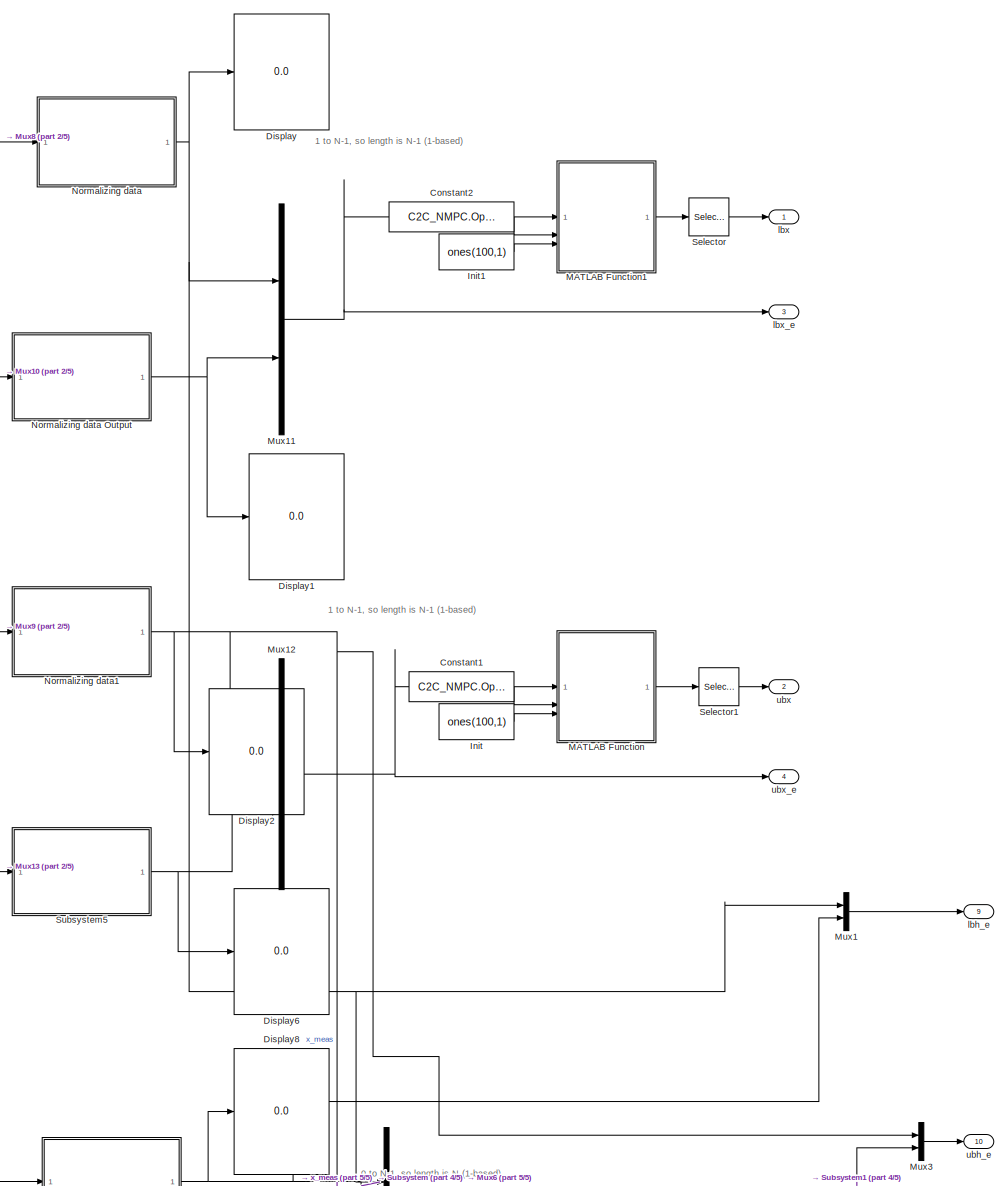
[diagram: main_C2C/C2C_NMPC_n3/constraints1 soft  - part 1/5, top right region]
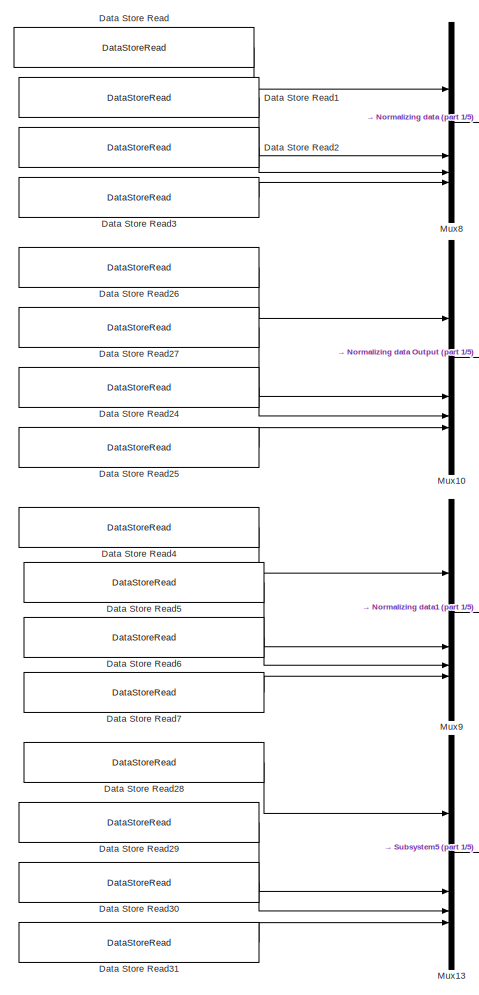
[diagram: main_C2C/C2C_NMPC_n3/constraints1 soft  - part 2/5, top center region]
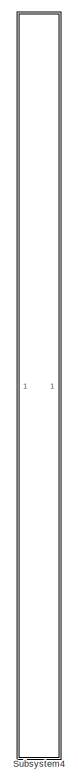
[diagram: main_C2C/C2C_NMPC_n3/constraints1 soft  - part 3/5, middle left region]
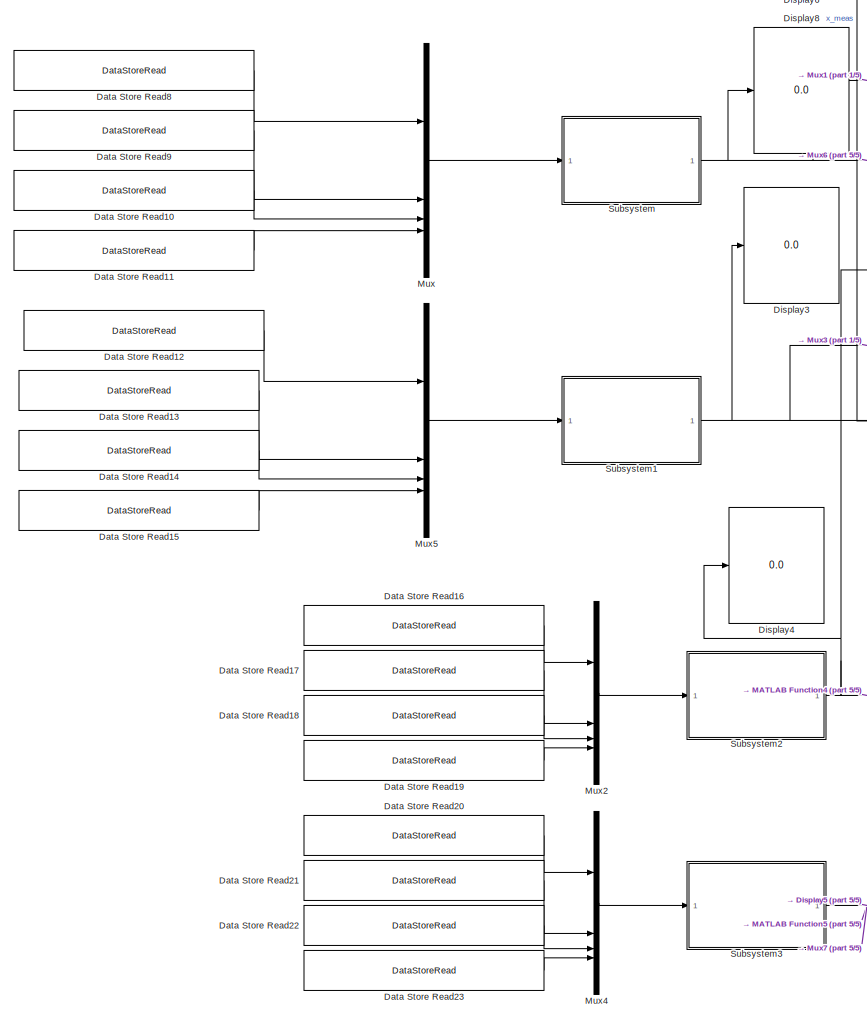
[diagram: main_C2C/C2C_NMPC_n3/constraints1 soft  - part 4/5, bottom center region]
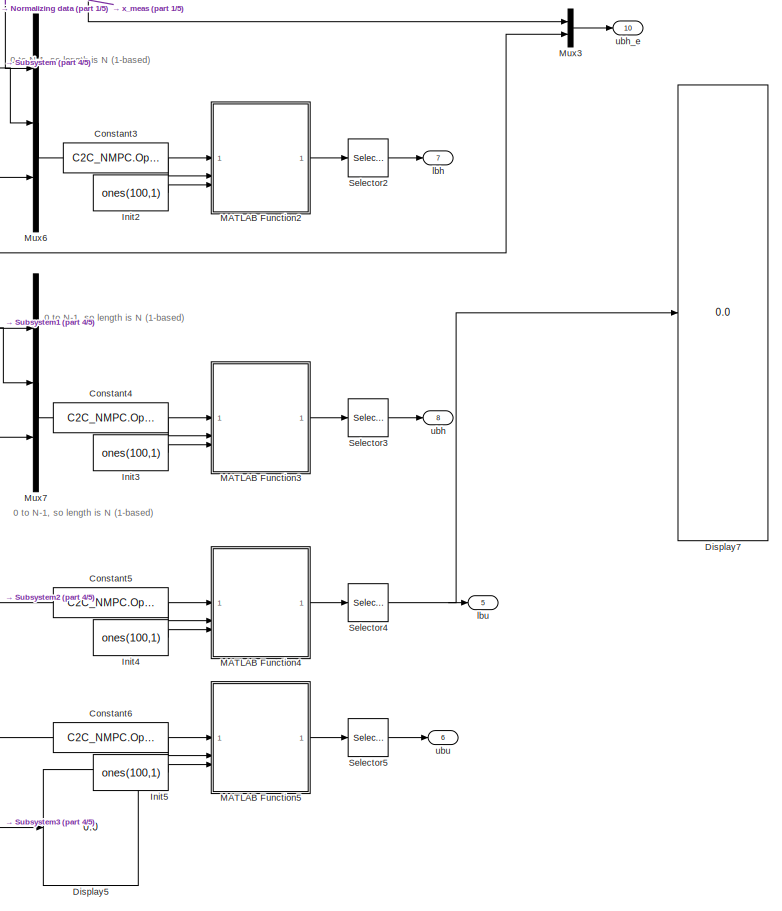
[diagram: main_C2C/C2C_NMPC_n3/constraints1 soft  - part 5/5, bottom right region]
BLOCK [SubSystem] main_C2C/C2C_NMPC_n3/constraints1 soft 
BLOCK [Constant] main_C2C/C2C_NMPC_n3/constraints1 soft /Constant1
  Value = C2C_NMPC.Opts.N-1
BLOCK [Constant] main_C2C/C2C_NMPC_n3/constraints1 soft /Constant2
  Value = C2C_NMPC.Opts.N-1
BLOCK [Constant] main_C2C/C2C_NMPC_n3/constraints1 soft /Constant3
  Value = C2C_NMPC.Opts.N
BLOCK [Constant] main_C2C/C2C_NMPC_n3/constraints1 soft /Constant4
  Value = C2C_NMPC.Opts.N
BLOCK [Constant] main_C2C/C2C_NMPC_n3/constraints1 soft /Constant5
  Value = C2C_NMPC.Opts.N
BLOCK [Constant] main_C2C/C2C_NMPC_n3/constraints1 soft /Constant6
  Value = C2C_NMPC.Opts.N
BLOCK [DataStoreRead] main_C2C/C2C_NMPC_n3/constraints1 soft /Data Store Read
  DataStoreName = C2C_NMPC_constraints_low_DOI_main
  IndexOptions = Index vector (dialog)
  Indices = 1
  OutputSizes = 1
BLOCK [DataStoreRead] main_C2C/C2C_NMPC_n3/constraints1 soft /Data Store Read1
  DataStoreName = C2C_NMPC_constraints_low_P2M
  IndexOptions = Index vector (dialog)
  Indices = 1
  OutputSizes = 1
BLOCK [DataStoreRead] main_C2C/C2C_NMPC_n3/constraints1 soft /Data Store Read10
  DataStoreName = C2C_NMPC_constraints_low_SOOT_soft
  IndexOptions = Index vector (dialog)
  Indices = 1
  OutputSizes = 1
BLOCK [DataStoreRead] main_C2C/C2C_NMPC_n3/constraints1 soft /Data Store Read11
  DataStoreName = C2C_NMPC_constraints_low_MPRR_soft
  IndexOptions = Index vector (dialog)
  Indices = 1
  OutputSizes = 1
BLOCK [DataStoreRead] main_C2C/C2C_NMPC_n3/constraints1 soft /Data Store Read12
  DataStoreName = C2C_NMPC_constraints_up_IMEP_soft
  IndexOptions = Index vector (dialog)
  Indices = 1
  OutputSizes = 1
BLOCK [DataStoreRead] main_C2C/C2C_NMPC_n3/constraints1 soft /Data Store Read13
  DataStoreName = C2C_NMPC_constraints_up_NOX_soft
  IndexOptions = Index vector (dialog)
  Indices = 1
  OutputSizes = 1
BLOCK [DataStoreRead] main_C2C/C2C_NMPC_n3/constraints1 soft /Data Store Read14
  DataStoreName = C2C_NMPC_constraints_up_SOOT_soft
  IndexOptions = Index vector (dialog)
  Indices = 1
  OutputSizes = 1
BLOCK [DataStoreRead] main_C2C/C2C_NMPC_n3/constraints1 soft /Data Store Read15
  DataStoreName = C2C_NMPC_constraints_up_MPRR_soft
  IndexOptions = Index vector (dialog)
  Indices = 1
  OutputSizes = 1
BLOCK [DataStoreRead] main_C2C/C2C_NMPC_n3/constraints1 soft /Data Store Read16
  DataStoreName = C2C_NMPC_constraints_low_dt_DOI_main
  IndexOptions = Index vector (dialog)
  Indices = 1
  OutputSizes = 1
BLOCK [DataStoreRead] main_C2C/C2C_NMPC_n3/constraints1 soft /Data Store Read17
  DataStoreName = C2C_NMPC_constraints_low_dt_P2M
  IndexOptions = Index vector (dialog)
  Indices = 1
  OutputSizes = 1
BLOCK [DataStoreRead] main_C2C/C2C_NMPC_n3/constraints1 soft /Data Store Read18
  DataStoreName = C2C_NMPC_constraints_low_dt_SOI_main
  IndexOptions = Index vector (dialog)
  Indices = 1
  OutputSizes = 1
BLOCK [DataStoreRead] main_C2C/C2C_NMPC_n3/constraints1 soft /Data Store Read19
  DataStoreName = C2C_NMPC_constraints_low_dt_DOI_H2
  IndexOptions = Index vector (dialog)
  Indices = 1
  OutputSizes = 1
BLOCK [DataStoreRead] main_C2C/C2C_NMPC_n3/constraints1 soft /Data Store Read2
  DataStoreName = C2C_NMPC_constraints_low_SOI_main
  IndexOptions = Index vector (dialog)
  Indices = 1
  OutputSizes = 1
BLOCK [DataStoreRead] main_C2C/C2C_NMPC_n3/constraints1 soft /Data Store Read20
  DataStoreName = C2C_NMPC_constraints_up_dt_DOI_main
  IndexOptions = Index vector (dialog)
  Indices = 1
  OutputSizes = 1
BLOCK [DataStoreRead] main_C2C/C2C_NMPC_n3/constraints1 soft /Data Store Read21
  DataStoreName = C2C_NMPC_constraints_up_dt_P2M
  IndexOptions = Index vector (dialog)
  Indices = 1
  OutputSizes = 1
BLOCK [DataStoreRead] main_C2C/C2C_NMPC_n3/constraints1 soft /Data Store Read22
  DataStoreName = C2C_NMPC_constraints_up_dt_SOI_main
  IndexOptions = Index vector (dialog)
  Indices = 1
  OutputSizes = 1
BLOCK [DataStoreRead] main_C2C/C2C_NMPC_n3/constraints1 soft /Data Store Read23
  DataStoreName = C2C_NMPC_constraints_up_dt_DOI_H1
  IndexOptions = Index vector (dialog)
  Indices = 1
  OutputSizes = 1
BLOCK [DataStoreRead] main_C2C/C2C_NMPC_n3/constraints1 soft /Data Store Read24
  DataStoreName = C2C_NMPC_constraints_low_SOOT
  IndexOptions = Index vector (dialog)
  Indices = 1
  OutputSizes = 1
BLOCK [DataStoreRead] main_C2C/C2C_NMPC_n3/constraints1 soft /Data Store Read25
  DataStoreName = C2C_NMPC_constraints_low_MPRR
  IndexOptions = Index vector (dialog)
  Indices = 1
  OutputSizes = 1
BLOCK [DataStoreRead] main_C2C/C2C_NMPC_n3/constraints1 soft /Data Store Read26
  DataStoreName = C2C_NMPC_constraints_low_IMEP
  IndexOptions = Index vector (dialog)
  Indices = 1
  OutputSizes = 1
BLOCK [DataStoreRead] main_C2C/C2C_NMPC_n3/constraints1 soft /Data Store Read27
  DataStoreName = C2C_NMPC_constraints_low_NOX
  IndexOptions = Index vector (dialog)
  Indices = 1
  OutputSizes = 1
BLOCK [DataStoreRead] main_C2C/C2C_NMPC_n3/constraints1 soft /Data Store Read28
  DataStoreName = C2C_NMPC_constraints_up_IMEP
  IndexOptions = Index vector (dialog)
  Indices = 1
  OutputSizes = 1
BLOCK [DataStoreRead] main_C2C/C2C_NMPC_n3/constraints1 soft /Data Store Read29
  DataStoreName = C2C_NMPC_constraints_up_NOX
  IndexOptions = Index vector (dialog)
  Indices = 1
  OutputSizes = 1
BLOCK [DataStoreRead] main_C2C/C2C_NMPC_n3/constraints1 soft /Data Store Read3
  DataStoreName = C2C_NMPC_constraints_low_DOI_H2
  IndexOptions = Index vector (dialog)
  Indices = 1
  OutputSizes = 1
BLOCK [DataStoreRead] main_C2C/C2C_NMPC_n3/constraints1 soft /Data Store Read30
  DataStoreName = C2C_NMPC_constraints_up_SOOT
  IndexOptions = Index vector (dialog)
  Indices = 1
  OutputSizes = 1
BLOCK [DataStoreRead] main_C2C/C2C_NMPC_n3/constraints1 soft /Data Store Read31
  DataStoreName = C2C_NMPC_constraints_up_MPRR
  IndexOptions = Index vector (dialog)
  Indices = 1
  OutputSizes = 1
BLOCK [DataStoreRead] main_C2C/C2C_NMPC_n3/constraints1 soft /Data Store Read4
  DataStoreName = C2C_NMPC_constraints_up_DOI_main
  IndexOptions = Index vector (dialog)
  Indices = 1
  OutputSizes = 1
BLOCK [DataStoreRead] main_C2C/C2C_NMPC_n3/constraints1 soft /Data Store Read5
  DataStoreName = C2C_NMPC_constraints_up_P2M
  IndexOptions = Index vector (dialog)
  Indices = 1
  OutputSizes = 1
BLOCK [DataStoreRead] main_C2C/C2C_NMPC_n3/constraints1 soft /Data Store Read6
  DataStoreName = C2C_NMPC_constraints_up_SOI_main
  IndexOptions = Index vector (dialog)
  Indices = 1
  OutputSizes = 1
BLOCK [DataStoreRead] main_C2C/C2C_NMPC_n3/constraints1 soft /Data Store Read7
  DataStoreName = C2C_NMPC_constraints_up_DOI_H2
  IndexOptions = Index vector (dialog)
  Indices = 1
  OutputSizes = 1
BLOCK [DataStoreRead] main_C2C/C2C_NMPC_n3/constraints1 soft /Data Store Read8
  DataStoreName = C2C_NMPC_constraints_low_IMEP_soft
  IndexOptions = Index vector (dialog)
  Indices = 1
  OutputSizes = 1
BLOCK [DataStoreRead] main_C2C/C2C_NMPC_n3/constraints1 soft /Data Store Read9
  DataStoreName = C2C_NMPC_constraints_low_NOX_soft
  IndexOptions = Index vector (dialog)
  Indices = 1
  OutputSizes = 1
BLOCK [Display] main_C2C/C2C_NMPC_n3/constraints1 soft /Display
  Decimation = 1
BLOCK [Display] main_C2C/C2C_NMPC_n3/constraints1 soft /Display1
  Decimation = 1
BLOCK [Display] main_C2C/C2C_NMPC_n3/constraints1 soft /Display2
  Decimation = 1
BLOCK [Display] main_C2C/C2C_NMPC_n3/constraints1 soft /Display3
  Decimation = 1
BLOCK [Display] main_C2C/C2C_NMPC_n3/constraints1 soft /Display4
  Decimation = 1
BLOCK [Display] main_C2C/C2C_NMPC_n3/constraints1 soft /Display5
  Decimation = 1
BLOCK [Display] main_C2C/C2C_NMPC_n3/constraints1 soft /Display6
  Decimation = 1
BLOCK [Display] main_C2C/C2C_NMPC_n3/constraints1 soft /Display7
  Decimation = 1
BLOCK [Display] main_C2C/C2C_NMPC_n3/constraints1 soft /Display8
  Decimation = 1
BLOCK [Constant] main_C2C/C2C_NMPC_n3/constraints1 soft /Init
  Value = ones(100,1)
BLOCK [Constant] main_C2C/C2C_NMPC_n3/constraints1 soft /Init1
  Value = ones(100,1)
BLOCK [Constant] main_C2C/C2C_NMPC_n3/constraints1 soft /Init2
  Value = ones(100,1)
BLOCK [Constant] main_C2C/C2C_NMPC_n3/constraints1 soft /Init3
  Value = ones(100,1)
BLOCK [Constant] main_C2C/C2C_NMPC_n3/constraints1 soft /Init4
  Value = ones(100,1)
BLOCK [Constant] main_C2C/C2C_NMPC_n3/constraints1 soft /Init5
  Value = ones(100,1)
BLOCK [SubSystem] main_C2C/C2C_NMPC_n3/constraints1 soft /MATLAB Function
  ErrorFcn = Stateflow.Translate.translate
  PermitHierarchicalResolution = ExplicitOnly
  SFBlockType = MATLAB Function
  TreatAsAtomicUnit = on
BLOCK [Demux] main_C2C/C2C_NMPC_n3/constraints1 soft /MATLAB Function/ Demux 
  Outputs = 1
BLOCK [S-Function] main_C2C/C2C_NMPC_n3/constraints1 soft /MATLAB Function/ SFunction 
  EnableBusSupport = on
  FunctionName = sf_sfun
  PortCounts = [3 2]
  SFcnIsStateOwnerBlock = off
  SFunctionDeploymentMode = off
  Tag = Stateflow S-Function 8
BLOCK [Terminator] main_C2C/C2C_NMPC_n3/constraints1 soft /MATLAB Function/ Terminator 
BLOCK [Inport] main_C2C/C2C_NMPC_n3/constraints1 soft /MATLAB Function/init_vector
  Port = 3
BLOCK [Inport] main_C2C/C2C_NMPC_n3/constraints1 soft /MATLAB Function/length
  Port = 2
BLOCK [Inport] main_C2C/C2C_NMPC_n3/constraints1 soft /MATLAB Function/value
BLOCK [Outport] main_C2C/C2C_NMPC_n3/constraints1 soft /MATLAB Function/vector
BLOCK [SubSystem] main_C2C/C2C_NMPC_n3/constraints1 soft /MATLAB Function1
  ErrorFcn = Stateflow.Translate.translate
  PermitHierarchicalResolution = ExplicitOnly
  SFBlockType = MATLAB Function
  TreatAsAtomicUnit = on
BLOCK [Demux] main_C2C/C2C_NMPC_n3/constraints1 soft /MATLAB Function1/ Demux 
  Outputs = 1
BLOCK [S-Function] main_C2C/C2C_NMPC_n3/constraints1 soft /MATLAB Function1/ SFunction 
  EnableBusSupport = on
  FunctionName = sf_sfun
  PortCounts = [3 2]
  SFcnIsStateOwnerBlock = off
  SFunctionDeploymentMode = off
  Tag = Stateflow S-Function 9
BLOCK [Terminator] main_C2C/C2C_NMPC_n3/constraints1 soft /MATLAB Function1/ Terminator 
BLOCK [Inport] main_C2C/C2C_NMPC_n3/constraints1 soft /MATLAB Function1/init_vector
  Port = 3
BLOCK [Inport] main_C2C/C2C_NMPC_n3/constraints1 soft /MATLAB Function1/length
  Port = 2
BLOCK [Inport] main_C2C/C2C_NMPC_n3/constraints1 soft /MATLAB Function1/value
BLOCK [Outport] main_C2C/C2C_NMPC_n3/constraints1 soft /MATLAB Function1/vector
BLOCK [SubSystem] main_C2C/C2C_NMPC_n3/constraints1 soft /MATLAB Function2
  ErrorFcn = Stateflow.Translate.translate
  PermitHierarchicalResolution = ExplicitOnly
  SFBlockType = MATLAB Function
  TreatAsAtomicUnit = on
BLOCK [Demux] main_C2C/C2C_NMPC_n3/constraints1 soft /MATLAB Function2/ Demux 
  Outputs = 1
BLOCK [S-Function] main_C2C/C2C_NMPC_n3/constraints1 soft /MATLAB Function2/ SFunction 
  EnableBusSupport = on
  FunctionName = sf_sfun
  PortCounts = [3 2]
  SFcnIsStateOwnerBlock = off
  SFunctionDeploymentMode = off
  Tag = Stateflow S-Function 10
BLOCK [Terminator] main_C2C/C2C_NMPC_n3/constraints1 soft /MATLAB Function2/ Terminator 
BLOCK [Inport] main_C2C/C2C_NMPC_n3/constraints1 soft /MATLAB Function2/init_vector
  Port = 3
BLOCK [Inport] main_C2C/C2C_NMPC_n3/constraints1 soft /MATLAB Function2/length
  Port = 2
BLOCK [Inport] main_C2C/C2C_NMPC_n3/constraints1 soft /MATLAB Function2/value
BLOCK [Outport] main_C2C/C2C_NMPC_n3/constraints1 soft /MATLAB Function2/vector
BLOCK [SubSystem] main_C2C/C2C_NMPC_n3/constraints1 soft /MATLAB Function3
  ErrorFcn = Stateflow.Translate.translate
  PermitHierarchicalResolution = ExplicitOnly
  SFBlockType = MATLAB Function
  TreatAsAtomicUnit = on
BLOCK [Demux] main_C2C/C2C_NMPC_n3/constraints1 soft /MATLAB Function3/ Demux 
  Outputs = 1
BLOCK [S-Function] main_C2C/C2C_NMPC_n3/constraints1 soft /MATLAB Function3/ SFunction 
  EnableBusSupport = on
  FunctionName = sf_sfun
  PortCounts = [3 2]
  SFcnIsStateOwnerBlock = off
  SFunctionDeploymentMode = off
  Tag = Stateflow S-Function 11
BLOCK [Terminator] main_C2C/C2C_NMPC_n3/constraints1 soft /MATLAB Function3/ Terminator 
BLOCK [Inport] main_C2C/C2C_NMPC_n3/constraints1 soft /MATLAB Function3/init_vector
  Port = 3
BLOCK [Inport] main_C2C/C2C_NMPC_n3/constraints1 soft /MATLAB Function3/length
  Port = 2
BLOCK [Inport] main_C2C/C2C_NMPC_n3/constraints1 soft /MATLAB Function3/value
BLOCK [Outport] main_C2C/C2C_NMPC_n3/constraints1 soft /MATLAB Function3/vector
BLOCK [SubSystem] main_C2C/C2C_NMPC_n3/constraints1 soft /MATLAB Function4
  ErrorFcn = Stateflow.Translate.translate
  PermitHierarchicalResolution = ExplicitOnly
  SFBlockType = MATLAB Function
  TreatAsAtomicUnit = on
BLOCK [Demux] main_C2C/C2C_NMPC_n3/constraints1 soft /MATLAB Function4/ Demux 
  Outputs = 1
BLOCK [S-Function] main_C2C/C2C_NMPC_n3/constraints1 soft /MATLAB Function4/ SFunction 
  EnableBusSupport = on
  FunctionName = sf_sfun
  PortCounts = [3 2]
  SFcnIsStateOwnerBlock = off
  SFunctionDeploymentMode = off
  Tag = Stateflow S-Function 12
BLOCK [Terminator] main_C2C/C2C_NMPC_n3/constraints1 soft /MATLAB Function4/ Terminator 
BLOCK [Inport] main_C2C/C2C_NMPC_n3/constraints1 soft /MATLAB Function4/init_vector
  Port = 3
BLOCK [Inport] main_C2C/C2C_NMPC_n3/constraints1 soft /MATLAB Function4/length
  Port = 2
BLOCK [Inport] main_C2C/C2C_NMPC_n3/constraints1 soft /MATLAB Function4/value
BLOCK [Outport] main_C2C/C2C_NMPC_n3/constraints1 soft /MATLAB Function4/vector
BLOCK [SubSystem] main_C2C/C2C_NMPC_n3/constraints1 soft /MATLAB Function5
  ErrorFcn = Stateflow.Translate.translate
  PermitHierarchicalResolution = ExplicitOnly
  SFBlockType = MATLAB Function
  TreatAsAtomicUnit = on
BLOCK [Demux] main_C2C/C2C_NMPC_n3/constraints1 soft /MATLAB Function5/ Demux 
  Outputs = 1
BLOCK [S-Function] main_C2C/C2C_NMPC_n3/constraints1 soft /MATLAB Function5/ SFunction 
  EnableBusSupport = on
  FunctionName = sf_sfun
  PortCounts = [3 2]
  SFcnIsStateOwnerBlock = off
  SFunctionDeploymentMode = off
  Tag = Stateflow S-Function 13
BLOCK [Terminator] main_C2C/C2C_NMPC_n3/constraints1 soft /MATLAB Function5/ Terminator 
BLOCK [Inport] main_C2C/C2C_NMPC_n3/constraints1 soft /MATLAB Function5/init_vector
  Port = 3
BLOCK [Inport] main_C2C/C2C_NMPC_n3/constraints1 soft /MATLAB Function5/length
  Port = 2
BLOCK [Inport] main_C2C/C2C_NMPC_n3/constraints1 soft /MATLAB Function5/value
BLOCK [Outport] main_C2C/C2C_NMPC_n3/constraints1 soft /MATLAB Function5/vector
BLOCK [Mux] main_C2C/C2C_NMPC_n3/constraints1 soft /Mux
  DisplayOption = bar
BLOCK [Mux] main_C2C/C2C_NMPC_n3/constraints1 soft /Mux1
  DisplayOption = bar
  Inputs = 2
BLOCK [Mux] main_C2C/C2C_NMPC_n3/constraints1 soft /Mux10
  DisplayOption = bar
BLOCK [Mux] main_C2C/C2C_NMPC_n3/constraints1 soft /Mux11
  DisplayOption = bar
  Inputs = 2
BLOCK [Mux] main_C2C/C2C_NMPC_n3/constraints1 soft /Mux12
  DisplayOption = bar
  Inputs = 2
BLOCK [Mux] main_C2C/C2C_NMPC_n3/constraints1 soft /Mux13
  DisplayOption = bar
BLOCK [Mux] main_C2C/C2C_NMPC_n3/constraints1 soft /Mux2
  DisplayOption = bar
BLOCK [Mux] main_C2C/C2C_NMPC_n3/constraints1 soft /Mux3
  DisplayOption = bar
  Inputs = 2
BLOCK [Mux] main_C2C/C2C_NMPC_n3/constraints1 soft /Mux4
  DisplayOption = bar
BLOCK [Mux] main_C2C/C2C_NMPC_n3/constraints1 soft /Mux5
  DisplayOption = bar
BLOCK [Mux] main_C2C/C2C_NMPC_n3/constraints1 soft /Mux6
  DisplayOption = bar
  Inputs = 3
BLOCK [Mux] main_C2C/C2C_NMPC_n3/constraints1 soft /Mux7
  DisplayOption = bar
  Inputs = 3
BLOCK [Mux] main_C2C/C2C_NMPC_n3/constraints1 soft /Mux8
  DisplayOption = bar
BLOCK [Mux] main_C2C/C2C_NMPC_n3/constraints1 soft /Mux9
  DisplayOption = bar
BLOCK [SubSystem] main_C2C/C2C_NMPC_n3/constraints1 soft /Normalizing data
BLOCK [SubSystem] main_C2C/C2C_NMPC_n3/constraints1 soft /Normalizing data Output
BLOCK [Constant] main_C2C/C2C_NMPC_n3/constraints1 soft /Normalizing data Output/Constant
  Value = C2C_NMPC.Normalization.outputs.mean(1)
BLOCK [Constant] main_C2C/C2C_NMPC_n3/constraints1 soft /Normalizing data Output/Constant1
  Value = C2C_NMPC.Normalization.outputs.mean(2)
BLOCK [Constant] main_C2C/C2C_NMPC_n3/constraints1 soft /Normalizing data Output/Constant2
  Value = C2C_NMPC.Normalization.outputs.mean(3)
BLOCK [Constant] main_C2C/C2C_NMPC_n3/constraints1 soft /Normalizing data Output/Constant3
  Value = C2C_NMPC.Normalization.outputs.mean(4)
BLOCK [Demux] main_C2C/C2C_NMPC_n3/constraints1 soft /Normalizing data Output/Demux
BLOCK [Gain] main_C2C/C2C_NMPC_n3/constraints1 soft /Normalizing data Output/Gain
  Gain = 1/C2C_NMPC.Normalization.outputs.std(1)
BLOCK [Gain] main_C2C/C2C_NMPC_n3/constraints1 soft /Normalizing data Output/Gain1
  Gain = 1/C2C_NMPC.Normalization.outputs.std(2)
BLOCK [Gain] main_C2C/C2C_NMPC_n3/constraints1 soft /Normalizing data Output/Gain2
  Gain = 1/C2C_NMPC.Normalization.outputs.std(3)
BLOCK [Gain] main_C2C/C2C_NMPC_n3/constraints1 soft /Normalizing data Output/Gain3
  Gain = 1/C2C_NMPC.Normalization.outputs.std(4)
BLOCK [Inport] main_C2C/C2C_NMPC_n3/constraints1 soft /Normalizing data Output/In
BLOCK [Mux] main_C2C/C2C_NMPC_n3/constraints1 soft /Normalizing data Output/Mux
  DisplayOption = bar
BLOCK [Sum] main_C2C/C2C_NMPC_n3/constraints1 soft /Normalizing data Output/Sum1
  Inputs = |+-
BLOCK [Sum] main_C2C/C2C_NMPC_n3/constraints1 soft /Normalizing data Output/Sum2
  Inputs = |+-
BLOCK [Sum] main_C2C/C2C_NMPC_n3/constraints1 soft /Normalizing data Output/Sum3
  Inputs = |+-
BLOCK [Sum] main_C2C/C2C_NMPC_n3/constraints1 soft /Normalizing data Output/Sum5
  Inputs = |+-
BLOCK [Outport] main_C2C/C2C_NMPC_n3/constraints1 soft /Normalizing data Output/value
BLOCK [Constant] main_C2C/C2C_NMPC_n3/constraints1 soft /Normalizing data/Constant1
  Value = C2C_NMPC.Normalization.controls.mean(2)
BLOCK [Constant] main_C2C/C2C_NMPC_n3/constraints1 soft /Normalizing data/Constant2
  Value = C2C_NMPC.Normalization.controls.mean(3)
BLOCK [Constant] main_C2C/C2C_NMPC_n3/constraints1 soft /Normalizing data/Constant3
  Value = C2C_NMPC.Normalization.controls.mean(1)
BLOCK [Constant] main_C2C/C2C_NMPC_n3/constraints1 soft /Normalizing data/Constant4
  Value = C2C_NMPC.Normalization.controls.mean(4)
BLOCK [Gain] main_C2C/C2C_NMPC_n3/constraints1 soft /Normalizing data/Gain1
  Gain = 1/C2C_NMPC.Normalization.controls.std(2)
BLOCK [Gain] main_C2C/C2C_NMPC_n3/constraints1 soft /Normalizing data/Gain2
  Gain = 1/C2C_NMPC.Normalization.controls.std(3)
BLOCK [Gain] main_C2C/C2C_NMPC_n3/constraints1 soft /Normalizing data/Gain3
  Gain = 1/C2C_NMPC.Normalization.controls.std(4)
BLOCK [Gain] main_C2C/C2C_NMPC_n3/constraints1 soft /Normalizing data/Gain4
  Gain = 1/C2C_NMPC.Normalization.controls.std(1)
BLOCK [Mux] main_C2C/C2C_NMPC_n3/constraints1 soft /Normalizing data/Mux
  DisplayOption = bar
BLOCK [Selector] main_C2C/C2C_NMPC_n3/constraints1 soft /Normalizing data/Selector
  IndexOptions = Index vector (dialog)
  Indices = [2]
  OutputSizes = 1
BLOCK [Selector] main_C2C/C2C_NMPC_n3/constraints1 soft /Normalizing data/Selector1
  IndexOptions = Index vector (dialog)
  Indices = [1]
  OutputSizes = 1
BLOCK [Selector] main_C2C/C2C_NMPC_n3/constraints1 soft /Normalizing data/Selector2
  IndexOptions = Index vector (dialog)
  Indices = [3]
  OutputSizes = 1
BLOCK [Selector] main_C2C/C2C_NMPC_n3/constraints1 soft /Normalizing data/Selector3
  IndexOptions = Index vector (dialog)
  Indices = [4]
  OutputSizes = 1
BLOCK [Sum] main_C2C/C2C_NMPC_n3/constraints1 soft /Normalizing data/Sum1
  Inputs = |+-
BLOCK [Sum] main_C2C/C2C_NMPC_n3/constraints1 soft /Normalizing data/Sum2
  Inputs = |+-
BLOCK [Sum] main_C2C/C2C_NMPC_n3/constraints1 soft /Normalizing data/Sum3
  Inputs = |+-
BLOCK [Sum] main_C2C/C2C_NMPC_n3/constraints1 soft /Normalizing data/Sum4
  Inputs = |+-
BLOCK [Outport] main_C2C/C2C_NMPC_n3/constraints1 soft /Normalizing data/normalized_data
BLOCK [Inport] main_C2C/C2C_NMPC_n3/constraints1 soft /Normalizing data/physical_data
BLOCK [SubSystem] main_C2C/C2C_NMPC_n3/constraints1 soft /Normalizing data1
BLOCK [Constant] main_C2C/C2C_NMPC_n3/constraints1 soft /Normalizing data1/Constant1
  Value = C2C_NMPC.Normalization.controls.mean(2)
BLOCK [Constant] main_C2C/C2C_NMPC_n3/constraints1 soft /Normalizing data1/Constant2
  Value = C2C_NMPC.Normalization.controls.mean(3)
BLOCK [Constant] main_C2C/C2C_NMPC_n3/constraints1 soft /Normalizing data1/Constant3
  Value = C2C_NMPC.Normalization.controls.mean(1)
BLOCK [Constant] main_C2C/C2C_NMPC_n3/constraints1 soft /Normalizing data1/Constant4
  Value = C2C_NMPC.Normalization.controls.mean(4)
BLOCK [Gain] main_C2C/C2C_NMPC_n3/constraints1 soft /Normalizing data1/Gain1
  Gain = 1/C2C_NMPC.Normalization.controls.std(2)
BLOCK [Gain] main_C2C/C2C_NMPC_n3/constraints1 soft /Normalizing data1/Gain2
  Gain = 1/C2C_NMPC.Normalization.controls.std(3)
BLOCK [Gain] main_C2C/C2C_NMPC_n3/constraints1 soft /Normalizing data1/Gain3
  Gain = 1/C2C_NMPC.Normalization.controls.std(4)
BLOCK [Gain] main_C2C/C2C_NMPC_n3/constraints1 soft /Normalizing data1/Gain4
  Gain = 1/C2C_NMPC.Normalization.controls.std(1)
BLOCK [Mux] main_C2C/C2C_NMPC_n3/constraints1 soft /Normalizing data1/Mux
  DisplayOption = bar
BLOCK [Selector] main_C2C/C2C_NMPC_n3/constraints1 soft /Normalizing data1/Selector
  IndexOptions = Index vector (dialog)
  Indices = [2]
  OutputSizes = 1
BLOCK [Selector] main_C2C/C2C_NMPC_n3/constraints1 soft /Normalizing data1/Selector1
  IndexOptions = Index vector (dialog)
  Indices = [1]
  OutputSizes = 1
BLOCK [Selector] main_C2C/C2C_NMPC_n3/constraints1 soft /Normalizing data1/Selector2
  IndexOptions = Index vector (dialog)
  Indices = [3]
  OutputSizes = 1
BLOCK [Selector] main_C2C/C2C_NMPC_n3/constraints1 soft /Normalizing data1/Selector3
  IndexOptions = Index vector (dialog)
  Indices = [4]
  OutputSizes = 1
BLOCK [Sum] main_C2C/C2C_NMPC_n3/constraints1 soft /Normalizing data1/Sum1
  Inputs = |+-
BLOCK [Sum] main_C2C/C2C_NMPC_n3/constraints1 soft /Normalizing data1/Sum2
  Inputs = |+-
BLOCK [Sum] main_C2C/C2C_NMPC_n3/constraints1 soft /Normalizing data1/Sum3
  Inputs = |+-
BLOCK [Sum] main_C2C/C2C_NMPC_n3/constraints1 soft /Normalizing data1/Sum4
  Inputs = |+-
BLOCK [Outport] main_C2C/C2C_NMPC_n3/constraints1 soft /Normalizing data1/normalized_data
BLOCK [Inport] main_C2C/C2C_NMPC_n3/constraints1 soft /Normalizing data1/physical_data
BLOCK [Selector] main_C2C/C2C_NMPC_n3/constraints1 soft /Selector
  IndexOptions = Index vector (dialog)
  Indices = 1:((C2C_NMPC.Opts.N-1)*(C2C_NMPC.Dims.n_controls+C2C_NMPC.Dims.n_outputs))
  OutputSizes = 1
BLOCK [Selector] main_C2C/C2C_NMPC_n3/constraints1 soft /Selector1
  IndexOptions = Index vector (dialog)
  Indices = 1:((C2C_NMPC.Opts.N-1)*(C2C_NMPC.Dims.n_controls+C2C_NMPC.Dims.n_outputs))
  OutputSizes = 1
BLOCK [Selector] main_C2C/C2C_NMPC_n3/constraints1 soft /Selector2
  IndexOptions = Index vector (dialog)
  Indices = 1:((C2C_NMPC.Opts.N-1)*(C2C_NMPC.Dims.n_outputs + C2C_NMPC.Dims.n_controls +C2C_NMPC.Dims.n_controls))
  OutputSizes = 1
BLOCK [Selector] main_C2C/C2C_NMPC_n3/constraints1 soft /Selector3
  IndexOptions = Index vector (dialog)
  Indices = 1:((C2C_NMPC.Opts.N-1)*(C2C_NMPC.Dims.n_outputs + C2C_NMPC.Dims.n_controls +C2C_NMPC.Dims.n_controls))
  OutputSizes = 1
BLOCK [Selector] main_C2C/C2C_NMPC_n3/constraints1 soft /Selector4
  IndexOptions = Index vector (dialog)
  Indices = 1:((C2C_NMPC.Opts.N)*(C2C_NMPC.Dims.n_controls))
  OutputSizes = 1
BLOCK [Selector] main_C2C/C2C_NMPC_n3/constraints1 soft /Selector5
  IndexOptions = Index vector (dialog)
  Indices = 1:((C2C_NMPC.Opts.N)*(C2C_NMPC.Dims.n_controls))
  OutputSizes = 1
BLOCK [SubSystem] main_C2C/C2C_NMPC_n3/constraints1 soft /Subsystem
BLOCK [Constant] main_C2C/C2C_NMPC_n3/constraints1 soft /Subsystem/Constant
  Value = C2C_NMPC.Normalization.outputs.mean(1)
BLOCK [Constant] main_C2C/C2C_NMPC_n3/constraints1 soft /Subsystem/Constant1
  Value = C2C_NMPC.Normalization.outputs.mean(2)
BLOCK [Constant] main_C2C/C2C_NMPC_n3/constraints1 soft /Subsystem/Constant2
  Value = C2C_NMPC.Normalization.outputs.mean(3)
BLOCK [Constant] main_C2C/C2C_NMPC_n3/constraints1 soft /Subsystem/Constant3
  Value = C2C_NMPC.Normalization.outputs.mean(4)
BLOCK [Demux] main_C2C/C2C_NMPC_n3/constraints1 soft /Subsystem/Demux
BLOCK [Gain] main_C2C/C2C_NMPC_n3/constraints1 soft /Subsystem/Gain
  Gain = 1/C2C_NMPC.Normalization.outputs.std(1)
BLOCK [Gain] main_C2C/C2C_NMPC_n3/constraints1 soft /Subsystem/Gain1
  Gain = 1/C2C_NMPC.Normalization.outputs.std(2)
BLOCK [Gain] main_C2C/C2C_NMPC_n3/constraints1 soft /Subsystem/Gain2
  Gain = 1/C2C_NMPC.Normalization.outputs.std(3)
BLOCK [Gain] main_C2C/C2C_NMPC_n3/constraints1 soft /Subsystem/Gain3
  Gain = 1/C2C_NMPC.Normalization.outputs.std(4)
BLOCK [Inport] main_C2C/C2C_NMPC_n3/constraints1 soft /Subsystem/In
BLOCK [Mux] main_C2C/C2C_NMPC_n3/constraints1 soft /Subsystem/Mux
  DisplayOption = bar
BLOCK [Sum] main_C2C/C2C_NMPC_n3/constraints1 soft /Subsystem/Sum1
  Inputs = |+-
BLOCK [Sum] main_C2C/C2C_NMPC_n3/constraints1 soft /Subsystem/Sum2
  Inputs = |+-
BLOCK [Sum] main_C2C/C2C_NMPC_n3/constraints1 soft /Subsystem/Sum3
  Inputs = |+-
BLOCK [Sum] main_C2C/C2C_NMPC_n3/constraints1 soft /Subsystem/Sum5
  Inputs = |+-
BLOCK [Outport] main_C2C/C2C_NMPC_n3/constraints1 soft /Subsystem/value
BLOCK [SubSystem] main_C2C/C2C_NMPC_n3/constraints1 soft /Subsystem1
BLOCK [Constant] main_C2C/C2C_NMPC_n3/constraints1 soft /Subsystem1/Constant
  Value = C2C_NMPC.Normalization.outputs.mean(1)
BLOCK [Constant] main_C2C/C2C_NMPC_n3/constraints1 soft /Subsystem1/Constant1
  Value = C2C_NMPC.Normalization.outputs.mean(2)
BLOCK [Constant] main_C2C/C2C_NMPC_n3/constraints1 soft /Subsystem1/Constant2
  Value = C2C_NMPC.Normalization.outputs.mean(3)
BLOCK [Constant] main_C2C/C2C_NMPC_n3/constraints1 soft /Subsystem1/Constant3
  Value = C2C_NMPC.Normalization.outputs.mean(4)
BLOCK [Demux] main_C2C/C2C_NMPC_n3/constraints1 soft /Subsystem1/Demux
BLOCK [Gain] main_C2C/C2C_NMPC_n3/constraints1 soft /Subsystem1/Gain
  Gain = 1/C2C_NMPC.Normalization.outputs.std(1)
BLOCK [Gain] main_C2C/C2C_NMPC_n3/constraints1 soft /Subsystem1/Gain1
  Gain = 1/C2C_NMPC.Normalization.outputs.std(2)
BLOCK [Gain] main_C2C/C2C_NMPC_n3/constraints1 soft /Subsystem1/Gain2
  Gain = 1/C2C_NMPC.Normalization.outputs.std(3)
BLOCK [Gain] main_C2C/C2C_NMPC_n3/constraints1 soft /Subsystem1/Gain3
  Gain = 1/C2C_NMPC.Normalization.outputs.std(4)
BLOCK [Inport] main_C2C/C2C_NMPC_n3/constraints1 soft /Subsystem1/In
BLOCK [Mux] main_C2C/C2C_NMPC_n3/constraints1 soft /Subsystem1/Mux
  DisplayOption = bar
BLOCK [Sum] main_C2C/C2C_NMPC_n3/constraints1 soft /Subsystem1/Sum1
  Inputs = |+-
BLOCK [Sum] main_C2C/C2C_NMPC_n3/constraints1 soft /Subsystem1/Sum2
  Inputs = |+-
BLOCK [Sum] main_C2C/C2C_NMPC_n3/constraints1 soft /Subsystem1/Sum3
  Inputs = |+-
BLOCK [Sum] main_C2C/C2C_NMPC_n3/constraints1 soft /Subsystem1/Sum5
  Inputs = |+-
BLOCK [Outport] main_C2C/C2C_NMPC_n3/constraints1 soft /Subsystem1/ubh_e
BLOCK [SubSystem] main_C2C/C2C_NMPC_n3/constraints1 soft /Subsystem2
  Commented = through
BLOCK [Demux] main_C2C/C2C_NMPC_n3/constraints1 soft /Subsystem2/Demux
BLOCK [Gain] main_C2C/C2C_NMPC_n3/constraints1 soft /Subsystem2/Gain
  Gain = 1/C2C_NMPC.Normalization.controls.std(1)
BLOCK [Gain] main_C2C/C2C_NMPC_n3/constraints1 soft /Subsystem2/Gain1
  Gain = 1/C2C_NMPC.Normalization.controls.std(2)
BLOCK [Gain] main_C2C/C2C_NMPC_n3/constraints1 soft /Subsystem2/Gain2
  Gain = 1/C2C_NMPC.Normalization.controls.std(3)
BLOCK [Gain] main_C2C/C2C_NMPC_n3/constraints1 soft /Subsystem2/Gain3
  Gain = 1/C2C_NMPC.Normalization.controls.std(4)
BLOCK [Inport] main_C2C/C2C_NMPC_n3/constraints1 soft /Subsystem2/In
BLOCK [Mux] main_C2C/C2C_NMPC_n3/constraints1 soft /Subsystem2/Mux
  DisplayOption = bar
BLOCK [Outport] main_C2C/C2C_NMPC_n3/constraints1 soft /Subsystem2/Out
BLOCK [SubSystem] main_C2C/C2C_NMPC_n3/constraints1 soft /Subsystem3
  Commented = through
BLOCK [Demux] main_C2C/C2C_NMPC_n3/constraints1 soft /Subsystem3/Demux
BLOCK [Gain] main_C2C/C2C_NMPC_n3/constraints1 soft /Subsystem3/Gain
  Gain = 1/C2C_NMPC.Normalization.controls.std(1)
BLOCK [Gain] main_C2C/C2C_NMPC_n3/constraints1 soft /Subsystem3/Gain1
  Gain = 1/C2C_NMPC.Normalization.controls.std(2)
BLOCK [Gain] main_C2C/C2C_NMPC_n3/constraints1 soft /Subsystem3/Gain2
  Gain = 1/C2C_NMPC.Normalization.controls.std(3)
BLOCK [Gain] main_C2C/C2C_NMPC_n3/constraints1 soft /Subsystem3/Gain3
  Gain = 1/C2C_NMPC.Normalization.controls.std(4)
BLOCK [Inport] main_C2C/C2C_NMPC_n3/constraints1 soft /Subsystem3/In
BLOCK [Mux] main_C2C/C2C_NMPC_n3/constraints1 soft /Subsystem3/Mux
  DisplayOption = bar
BLOCK [Outport] main_C2C/C2C_NMPC_n3/constraints1 soft /Subsystem3/Out
BLOCK [SubSystem] main_C2C/C2C_NMPC_n3/constraints1 soft /Subsystem4
  Commented = on
BLOCK [Constant] main_C2C/C2C_NMPC_n3/constraints1 soft /Subsystem4/C2C_NMPC_constraints_low_DOI_H2
  Value = 0
BLOCK [Constant] main_C2C/C2C_NMPC_n3/constraints1 soft /Subsystem4/C2C_NMPC_constraints_low_DOI_main
  Value = 0.17e-3
BLOCK [Constant] main_C2C/C2C_NMPC_n3/constraints1 soft /Subsystem4/C2C_NMPC_constraints_low_IMEP
  Value = 0
BLOCK [Constant] main_C2C/C2C_NMPC_n3/constraints1 soft /Subsystem4/C2C_NMPC_constraints_low_MPRR
  Value = 0
BLOCK [Constant] main_C2C/C2C_NMPC_n3/constraints1 soft /Subsystem4/C2C_NMPC_constraints_low_NOX
  Value = 0
BLOCK [Constant] main_C2C/C2C_NMPC_n3/constraints1 soft /Subsystem4/C2C_NMPC_constraints_low_P2M
  Value = 430
BLOCK [Constant] main_C2C/C2C_NMPC_n3/constraints1 soft /Subsystem4/C2C_NMPC_constraints_low_SOI_main
  Value = -3
BLOCK [Constant] main_C2C/C2C_NMPC_n3/constraints1 soft /Subsystem4/C2C_NMPC_constraints_low_SOOT
  Value = 0
BLOCK [Constant] main_C2C/C2C_NMPC_n3/constraints1 soft /Subsystem4/C2C_NMPC_constraints_low_dt_DOI_H2
  Value = -1e6
BLOCK [Constant] main_C2C/C2C_NMPC_n3/constraints1 soft /Subsystem4/C2C_NMPC_constraints_low_dt_DOI_main
  Value = -1e6
BLOCK [Constant] main_C2C/C2C_NMPC_n3/constraints1 soft /Subsystem4/C2C_NMPC_constraints_low_dt_P2M
  Value = -1e6
BLOCK [Constant] main_C2C/C2C_NMPC_n3/constraints1 soft /Subsystem4/C2C_NMPC_constraints_low_dt_SOI_main
  Value = -1e6
BLOCK [Constant] main_C2C/C2C_NMPC_n3/constraints1 soft /Subsystem4/C2C_NMPC_constraints_up_DOI_H2
  Value = 5.5e-3
BLOCK [Constant] main_C2C/C2C_NMPC_n3/constraints1 soft /Subsystem4/C2C_NMPC_constraints_up_DOI_main
  Value = 0.5e-3
BLOCK [Constant] main_C2C/C2C_NMPC_n3/constraints1 soft /Subsystem4/C2C_NMPC_constraints_up_IMEP
  Value = 8e5
BLOCK [Constant] main_C2C/C2C_NMPC_n3/constraints1 soft /Subsystem4/C2C_NMPC_constraints_up_MPRR
  Value = 5e5
BLOCK [Constant] main_C2C/C2C_NMPC_n3/constraints1 soft /Subsystem4/C2C_NMPC_constraints_up_NOX
  Value = 600
BLOCK [Constant] main_C2C/C2C_NMPC_n3/constraints1 soft /Subsystem4/C2C_NMPC_constraints_up_P2M
  Value = 850
BLOCK [Constant] main_C2C/C2C_NMPC_n3/constraints1 soft /Subsystem4/C2C_NMPC_constraints_up_SOI_main
  Value = 2
BLOCK [Constant] main_C2C/C2C_NMPC_n3/constraints1 soft /Subsystem4/C2C_NMPC_constraints_up_SOOT
  Value = 10
BLOCK [Constant] main_C2C/C2C_NMPC_n3/constraints1 soft /Subsystem4/C2C_NMPC_constraints_up_dt_DOI_H1
  Value = 1e6
BLOCK [Constant] main_C2C/C2C_NMPC_n3/constraints1 soft /Subsystem4/C2C_NMPC_constraints_up_dt_DOI_main
  Value = 1e6
BLOCK [Constant] main_C2C/C2C_NMPC_n3/constraints1 soft /Subsystem4/C2C_NMPC_constraints_up_dt_P2M
  Value = 1e6
BLOCK [Constant] main_C2C/C2C_NMPC_n3/constraints1 soft /Subsystem4/C2C_NMPC_constraints_up_dt_SOI_main
  Value = 1e6
BLOCK [Outport] main_C2C/C2C_NMPC_n3/constraints1 soft /Subsystem4/Out1
BLOCK [Outport] main_C2C/C2C_NMPC_n3/constraints1 soft /Subsystem4/Out10
  Port = 10
BLOCK [Outport] main_C2C/C2C_NMPC_n3/constraints1 soft /Subsystem4/Out11
  Port = 11
BLOCK [Outport] main_C2C/C2C_NMPC_n3/constraints1 soft /Subsystem4/Out12
  Port = 12
BLOCK [Outport] main_C2C/C2C_NMPC_n3/constraints1 soft /Subsystem4/Out13
  Port = 13
BLOCK [Outport] main_C2C/C2C_NMPC_n3/constraints1 soft /Subsystem4/Out14
  Port = 14
BLOCK [Outport] main_C2C/C2C_NMPC_n3/constraints1 soft /Subsystem4/Out15
  Port = 15
BLOCK [Outport] main_C2C/C2C_NMPC_n3/constraints1 soft /Subsystem4/Out16
  Port = 16
BLOCK [Outport] main_C2C/C2C_NMPC_n3/constraints1 soft /Subsystem4/Out17
  Port = 17
BLOCK [Outport] main_C2C/C2C_NMPC_n3/constraints1 soft /Subsystem4/Out18
  Port = 18
BLOCK [Outport] main_C2C/C2C_NMPC_n3/constraints1 soft /Subsystem4/Out19
  Port = 19
BLOCK [Outport] main_C2C/C2C_NMPC_n3/constraints1 soft /Subsystem4/Out2
  Port = 2
BLOCK [Outport] main_C2C/C2C_NMPC_n3/constraints1 soft /Subsystem4/Out20
  Port = 20
BLOCK [Outport] main_C2C/C2C_NMPC_n3/constraints1 soft /Subsystem4/Out21
  Port = 21
BLOCK [Outport] main_C2C/C2C_NMPC_n3/constraints1 soft /Subsystem4/Out22
  Port = 22
BLOCK [Outport] main_C2C/C2C_NMPC_n3/constraints1 soft /Subsystem4/Out23
  Port = 23
BLOCK [Outport] main_C2C/C2C_NMPC_n3/constraints1 soft /Subsystem4/Out24
  Port = 24
BLOCK [Outport] main_C2C/C2C_NMPC_n3/constraints1 soft /Subsystem4/Out3
  Port = 3
BLOCK [Outport] main_C2C/C2C_NMPC_n3/constraints1 soft /Subsystem4/Out4
  Port = 4
BLOCK [Outport] main_C2C/C2C_NMPC_n3/constraints1 soft /Subsystem4/Out5
  Port = 5
BLOCK [Outport] main_C2C/C2C_NMPC_n3/constraints1 soft /Subsystem4/Out6
  Port = 6
BLOCK [Outport] main_C2C/C2C_NMPC_n3/constraints1 soft /Subsystem4/Out7
  Port = 7
BLOCK [Outport] main_C2C/C2C_NMPC_n3/constraints1 soft /Subsystem4/Out8
  Port = 8
BLOCK [Outport] main_C2C/C2C_NMPC_n3/constraints1 soft /Subsystem4/Out9
  Port = 9
BLOCK [SubSystem] main_C2C/C2C_NMPC_n3/constraints1 soft /Subsystem5
BLOCK [Constant] main_C2C/C2C_NMPC_n3/constraints1 soft /Subsystem5/Constant
  Value = C2C_NMPC.Normalization.outputs.mean(1)
BLOCK [Constant] main_C2C/C2C_NMPC_n3/constraints1 soft /Subsystem5/Constant1
  Value = C2C_NMPC.Normalization.outputs.mean(2)
BLOCK [Constant] main_C2C/C2C_NMPC_n3/constraints1 soft /Subsystem5/Constant2
  Value = C2C_NMPC.Normalization.outputs.mean(3)
BLOCK [Constant] main_C2C/C2C_NMPC_n3/constraints1 soft /Subsystem5/Constant3
  Value = C2C_NMPC.Normalization.outputs.mean(4)
BLOCK [Demux] main_C2C/C2C_NMPC_n3/constraints1 soft /Subsystem5/Demux
BLOCK [Gain] main_C2C/C2C_NMPC_n3/constraints1 soft /Subsystem5/Gain
  Gain = 1/C2C_NMPC.Normalization.outputs.std(1)
BLOCK [Gain] main_C2C/C2C_NMPC_n3/constraints1 soft /Subsystem5/Gain1
  Gain = 1/C2C_NMPC.Normalization.outputs.std(2)
BLOCK [Gain] main_C2C/C2C_NMPC_n3/constraints1 soft /Subsystem5/Gain2
  Gain = 1/C2C_NMPC.Normalization.outputs.std(3)
BLOCK [Gain] main_C2C/C2C_NMPC_n3/constraints1 soft /Subsystem5/Gain3
  Gain = 1/C2C_NMPC.Normalization.outputs.std(4)
BLOCK [Inport] main_C2C/C2C_NMPC_n3/constraints1 soft /Subsystem5/In
BLOCK [Mux] main_C2C/C2C_NMPC_n3/constraints1 soft /Subsystem5/Mux
  DisplayOption = bar
BLOCK [Sum] main_C2C/C2C_NMPC_n3/constraints1 soft /Subsystem5/Sum1
  Inputs = |+-
BLOCK [Sum] main_C2C/C2C_NMPC_n3/constraints1 soft /Subsystem5/Sum2
  Inputs = |+-
BLOCK [Sum] main_C2C/C2C_NMPC_n3/constraints1 soft /Subsystem5/Sum3
  Inputs = |+-
BLOCK [Sum] main_C2C/C2C_NMPC_n3/constraints1 soft /Subsystem5/Sum5
  Inputs = |+-
BLOCK [Outport] main_C2C/C2C_NMPC_n3/constraints1 soft /Subsystem5/ubh_e
BLOCK [Outport] main_C2C/C2C_NMPC_n3/constraints1 soft /lbh
  Port = 7
BLOCK [Outport] main_C2C/C2C_NMPC_n3/constraints1 soft /lbh_e
  Port = 9
BLOCK [Outport] main_C2C/C2C_NMPC_n3/constraints1 soft /lbu
  Port = 5
BLOCK [Outport] main_C2C/C2C_NMPC_n3/constraints1 soft /lbx
BLOCK [Outport] main_C2C/C2C_NMPC_n3/constraints1 soft /lbx_e
  Port = 3
BLOCK [Outport] main_C2C/C2C_NMPC_n3/constraints1 soft /ubh
  Port = 8
BLOCK [Outport] main_C2C/C2C_NMPC_n3/constraints1 soft /ubh_e
  Port = 10
BLOCK [Outport] main_C2C/C2C_NMPC_n3/constraints1 soft /ubu
  Port = 6
BLOCK [Outport] main_C2C/C2C_NMPC_n3/constraints1 soft /ubx
  Port = 2
BLOCK [Outport] main_C2C/C2C_NMPC_n3/constraints1 soft /ubx_e
  Port = 4
BLOCK [Outport] main_C2C/C2C_NMPC_n3/controls
  Port = 2
BLOCK [SubSystem] main_C2C/C2C_NMPC_n3/cost_function_weights
BLOCK [Reference] main_C2C/C2C_NMPC_n3/cost_function_weights/Create Diagonal Matrix  REF=matrix_library/Create Diagonal
Matrix
  SourceBlock = matrix_library/Create Diagonal\nMatrix
  SourceType = Create Diagonal Matrix
BLOCK [Reference] main_C2C/C2C_NMPC_n3/cost_function_weights/Create Diagonal Matrix1  REF=matrix_library/Create Diagonal
Matrix
  SourceBlock = matrix_library/Create Diagonal\nMatrix
  SourceType = Create Diagonal Matrix
BLOCK [Reference] main_C2C/C2C_NMPC_n3/cost_function_weights/Create Diagonal Matrix2  REF=matrix_library/Create Diagonal
Matrix
  SourceBlock = matrix_library/Create Diagonal\nMatrix
  SourceType = Create Diagonal Matrix
BLOCK [DataStoreRead] main_C2C/C2C_NMPC_n3/cost_function_weights/Data Store Read
  DataStoreName = C2C_NMPC_IMEP_Weight
  IndexOptions = Index vector (dialog)
  Indices = 1
  OutputSizes = 1
BLOCK [DataStoreRead] main_C2C/C2C_NMPC_n3/cost_function_weights/Data Store Read1
  DataStoreName = C2C_NMPC_NOX_Weight
  IndexOptions = Index vector (dialog)
  Indices = 1
  OutputSizes = 1
BLOCK [DataStoreRead] main_C2C/C2C_NMPC_n3/cost_function_weights/Data Store Read10
  DataStoreName = C2C_NMPC_Delta_SOI_Main_Weight
  IndexOptions = Index vector (dialog)
  Indices = 1
  OutputSizes = 1
BLOCK [DataStoreRead] main_C2C/C2C_NMPC_n3/cost_function_weights/Data Store Read11
  DataStoreName = C2C_NMPC_Delta_DOI_H2_Weight
  IndexOptions = Index vector (dialog)
  Indices = 1
  OutputSizes = 1
BLOCK [DataStoreRead] main_C2C/C2C_NMPC_n3/cost_function_weights/Data Store Read12
  DataStoreName = C2C_NMPC_alpha
  IndexOptions = Index vector (dialog)
  Indices = 1
  OutputSizes = 1
BLOCK [DataStoreRead] main_C2C/C2C_NMPC_n3/cost_function_weights/Data Store Read13
  DataStoreName = C2C_NMPC_beta
  IndexOptions = Index vector (dialog)
  Indices = 1
  OutputSizes = 1
BLOCK [DataStoreRead] main_C2C/C2C_NMPC_n3/cost_function_weights/Data Store Read14
  DataStoreName = C2C_NMPC_gamma
  IndexOptions = Index vector (dialog)
  Indices = 1
  OutputSizes = 1
BLOCK [DataStoreRead] main_C2C/C2C_NMPC_n3/cost_function_weights/Data Store Read2
  DataStoreName = C2C_NMPC_SOOT_Weight
  IndexOptions = Index vector (dialog)
  Indices = 1
  OutputSizes = 1
BLOCK [DataStoreRead] main_C2C/C2C_NMPC_n3/cost_function_weights/Data Store Read3
  DataStoreName = C2C_NMPC_MPRR_Weight
  IndexOptions = Index vector (dialog)
  Indices = 1
  OutputSizes = 1
BLOCK [DataStoreRead] main_C2C/C2C_NMPC_n3/cost_function_weights/Data Store Read4
  DataStoreName = C2C_NMPC_DOI_Main_Weight
  IndexOptions = Index vector (dialog)
  Indices = 1
  OutputSizes = 1
BLOCK [DataStoreRead] main_C2C/C2C_NMPC_n3/cost_function_weights/Data Store Read5
  DataStoreName = C2C_NMPC_P2M_Weight
  IndexOptions = Index vector (dialog)
  Indices = 1
  OutputSizes = 1
BLOCK [DataStoreRead] main_C2C/C2C_NMPC_n3/cost_function_weights/Data Store Read6
  DataStoreName = C2C_NMPC_SOI_Main_Weight
  IndexOptions = Index vector (dialog)
  Indices = 1
  OutputSizes = 1
BLOCK [DataStoreRead] main_C2C/C2C_NMPC_n3/cost_function_weights/Data Store Read7
  DataStoreName = C2C_NMPC_DOI_H2_Weight
  IndexOptions = Index vector (dialog)
  Indices = 1
  OutputSizes = 1
BLOCK [DataStoreRead] main_C2C/C2C_NMPC_n3/cost_function_weights/Data Store Read8
  DataStoreName = C2C_NMPC_Delta_DOI_Main_Weight
  IndexOptions = Index vector (dialog)
  Indices = 1
  OutputSizes = 1
BLOCK [DataStoreRead] main_C2C/C2C_NMPC_n3/cost_function_weights/Data Store Read9
  DataStoreName = C2C_NMPC_Delta_P2M_Weight
  IndexOptions = Index vector (dialog)
  Indices = 1
  OutputSizes = 1
BLOCK [Mux] main_C2C/C2C_NMPC_n3/cost_function_weights/Mux
  DisplayOption = bar
BLOCK [Mux] main_C2C/C2C_NMPC_n3/cost_function_weights/Mux2
  DisplayOption = bar
BLOCK [Mux] main_C2C/C2C_NMPC_n3/cost_function_weights/Mux3
  DisplayOption = bar
BLOCK [SubSystem] main_C2C/C2C_NMPC_n3/cost_function_weights/Normalize 0 to 1
BLOCK [Demux] main_C2C/C2C_NMPC_n3/cost_function_weights/Normalize 0 to 1/Demux
BLOCK [Product] main_C2C/C2C_NMPC_n3/cost_function_weights/Normalize 0 to 1/Divide
  Inputs = */
BLOCK [Product] main_C2C/C2C_NMPC_n3/cost_function_weights/Normalize 0 to 1/Divide1
  Inputs = */
BLOCK [Product] main_C2C/C2C_NMPC_n3/cost_function_weights/Normalize 0 to 1/Divide2
  Inputs = */
BLOCK [Product] main_C2C/C2C_NMPC_n3/cost_function_weights/Normalize 0 to 1/Divide3
  Inputs = */
BLOCK [Inport] main_C2C/C2C_NMPC_n3/cost_function_weights/Normalize 0 to 1/In1
BLOCK [Mux] main_C2C/C2C_NMPC_n3/cost_function_weights/Normalize 0 to 1/Mux
  DisplayOption = bar
BLOCK [Outport] main_C2C/C2C_NMPC_n3/cost_function_weights/Normalize 0 to 1/Out1
BLOCK [Sum] main_C2C/C2C_NMPC_n3/cost_function_weights/Normalize 0 to 1/Sum
  IconShape = rectangular
  Inputs = |++++
BLOCK [Product] main_C2C/C2C_NMPC_n3/cost_function_weights/Product
BLOCK [Product] main_C2C/C2C_NMPC_n3/cost_function_weights/Product1
BLOCK [Product] main_C2C/C2C_NMPC_n3/cost_function_weights/Product2
BLOCK [ToWorkspace] main_C2C/C2C_NMPC_n3/cost_function_weights/To Workspace
  FixptAsFi = on
  MaxDataPoints = inf
  SampleTime = -1
  SaveFormat = Timeseries
  VariableName = simout4
BLOCK [Gain] main_C2C/C2C_NMPC_n3/cost_function_weights/alpha
  Commented = on
BLOCK [Gain] main_C2C/C2C_NMPC_n3/cost_function_weights/beta
  Commented = on
  Gain = 0.001
BLOCK [SubSystem] main_C2C/C2C_NMPC_n3/cost_function_weights/blkdiag Function
  ErrorFcn = Stateflow.Translate.translate
  PermitHierarchicalResolution = ExplicitOnly
  SFBlockType = MATLAB Function
  TreatAsAtomicUnit = on
BLOCK [Demux] main_C2C/C2C_NMPC_n3/cost_function_weights/blkdiag Function/ Demux 
  Outputs = 1
BLOCK [S-Function] main_C2C/C2C_NMPC_n3/cost_function_weights/blkdiag Function/ SFunction 
  EnableBusSupport = on
  FunctionName = sf_sfun
  PortCounts = [3 2]
  SFcnIsStateOwnerBlock = off
  SFunctionDeploymentMode = off
  Tag = Stateflow S-Function 14
BLOCK [Terminator] main_C2C/C2C_NMPC_n3/cost_function_weights/blkdiag Function/ Terminator 
BLOCK [Inport] main_C2C/C2C_NMPC_n3/cost_function_weights/blkdiag Function/u1
BLOCK [Inport] main_C2C/C2C_NMPC_n3/cost_function_weights/blkdiag Function/u2
  Port = 2
BLOCK [Inport] main_C2C/C2C_NMPC_n3/cost_function_weights/blkdiag Function/u3
  Port = 3
BLOCK [Outport] main_C2C/C2C_NMPC_n3/cost_function_weights/blkdiag Function/y
BLOCK [SubSystem] main_C2C/C2C_NMPC_n3/cost_function_weights/blkdiag Function1
  ErrorFcn = Stateflow.Translate.translate
  PermitHierarchicalResolution = ExplicitOnly
  SFBlockType = MATLAB Function
  TreatAsAtomicUnit = on
BLOCK [Demux] main_C2C/C2C_NMPC_n3/cost_function_weights/blkdiag Function1/ Demux 
  Outputs = 1
BLOCK [S-Function] main_C2C/C2C_NMPC_n3/cost_function_weights/blkdiag Function1/ SFunction 
  EnableBusSupport = on
  FunctionName = sf_sfun
  PortCounts = [2 2]
  SFcnIsStateOwnerBlock = off
  SFunctionDeploymentMode = off
  Tag = Stateflow S-Function 15
BLOCK [Terminator] main_C2C/C2C_NMPC_n3/cost_function_weights/blkdiag Function1/ Terminator 
BLOCK [Inport] main_C2C/C2C_NMPC_n3/cost_function_weights/blkdiag Function1/u1
BLOCK [Inport] main_C2C/C2C_NMPC_n3/cost_function_weights/blkdiag Function1/u2
  Port = 2
BLOCK [Outport] main_C2C/C2C_NMPC_n3/cost_function_weights/blkdiag Function1/y
BLOCK [Outport] main_C2C/C2C_NMPC_n3/cost_function_weights/cost_W
BLOCK [Outport] main_C2C/C2C_NMPC_n3/cost_function_weights/cost_W_e
  Port = 2
BLOCK [Gain] main_C2C/C2C_NMPC_n3/cost_function_weights/gamma1
  Commented = on
  Gain = 2
BLOCK [Inport] main_C2C/C2C_NMPC_n3/initial_states_C2C
  Port = 2
BLOCK [Inport] main_C2C/C2C_NMPC_n3/reference_C2C
BLOCK [Outport] main_C2C/C2C_NMPC_n3/status_C2C
BLOCK [From] main_C2C/From
  GotoTag = last_controls
BLOCK [From] main_C2C/From1
  GotoTag = counter_C2C
  NameLocation = top
BLOCK [From] main_C2C/From3
  GotoTag = last_outputs_MC
BLOCK [From] main_C2C/From5
  GotoTag = last_outputs_MC
BLOCK [Goto] main_C2C/Goto
  GotoTag = counter_C2C
  NameLocation = top
BLOCK [Goto] main_C2C/Goto1
  GotoTag = last_controls
  NameLocation = top
BLOCK [Goto] main_C2C/Goto2
  GotoTag = last_LSTM_states
  NameLocation = top
BLOCK [Goto] main_C2C/Goto3
  GotoTag = last_outputs_MC
  NameLocation = top
BLOCK [InitialCondition] main_C2C/IC
  Value = C2C_NMPC.x0([(C2C_NMPC.Dims.n_LSTM_states + 1):(C2C_NMPC.Dims.n_LSTM_states + C2C_NMPC.Dims.n_controls)])
BLOCK [Outport] main_C2C/LSTM_States
  Port = 3
BLOCK [Mux] main_C2C/Mux
  DisplayOption = bar
  Inputs = 3
BLOCK [Selector] main_C2C/Selector
  IndexOptions = Index vector (dialog)
  Indices = 1:C2C_NMPC.Dims.n_cost
  InputPortWidth = C2C_NMPC.Dims.n_cost*3
  OutputSizes = 1
BLOCK [SubSystem] main_C2C/Subsystem
BLOCK [Outport] main_C2C/Subsystem/LSTM_States
BLOCK [Inport] main_C2C/Subsystem/controls
  Port = 2
BLOCK [SubSystem] main_C2C/Subsystem/dyn_H2DF_state_augmentation
BLOCK [Outport] main_C2C/Subsystem/dyn_H2DF_state_augmentation/LSTM_states
BLOCK [Inport] main_C2C/Subsystem/dyn_H2DF_state_augmentation/controls
  Port = 2
BLOCK [SubSystem] main_C2C/Subsystem/dyn_H2DF_state_augmentation/dyn_H2DF_state_augmentation
  ErrorFcn = Stateflow.Translate.translate
  PermitHierarchicalResolution = ExplicitOnly
  SFBlockType = MATLAB Function
  TreatAsAtomicUnit = on
BLOCK [Demux] main_C2C/Subsystem/dyn_H2DF_state_augmentation/dyn_H2DF_state_augmentation/ Demux 
  Outputs = 1
BLOCK [S-Function] main_C2C/Subsystem/dyn_H2DF_state_augmentation/dyn_H2DF_state_augmentation/ SFunction 
  EnableBusSupport = on
  FunctionName = sf_sfun
  Parameters = H2DF_Par
  PortCounts = [3 2]
  SFcnIsStateOwnerBlock = off
  SFunctionDeploymentMode = off
  Tag = Stateflow S-Function 16
BLOCK [Terminator] main_C2C/Subsystem/dyn_H2DF_state_augmentation/dyn_H2DF_state_augmentation/ Terminator 
BLOCK [Outport] main_C2C/Subsystem/dyn_H2DF_state_augmentation/dyn_H2DF_state_augmentation/LSTM_states
  VectorParamsAs1DForOutWhenUnconnected = off
BLOCK [Inport] main_C2C/Subsystem/dyn_H2DF_state_augmentation/dyn_H2DF_state_augmentation/controls
  Port = 2
BLOCK [Inport] main_C2C/Subsystem/dyn_H2DF_state_augmentation/dyn_H2DF_state_augmentation/last_LSTM_states
BLOCK [Inport] main_C2C/Subsystem/dyn_H2DF_state_augmentation/dyn_H2DF_state_augmentation/last_outputs_MC
  Port = 3
BLOCK [Inport] main_C2C/Subsystem/dyn_H2DF_state_augmentation/last_LSTM_states
  Port = 3
BLOCK [Inport] main_C2C/Subsystem/dyn_H2DF_state_augmentation/last_outputs_MC
BLOCK [Inport] main_C2C/Subsystem/last_LSTM_states
  Port = 3
BLOCK [Inport] main_C2C/Subsystem/last_outputs_MC
BLOCK [Outport] main_C2C/controls
  Port = 4
BLOCK [Inport] main_C2C/data_in_C2C
BLOCK [Outport] main_C2C/data_out_C2C
BLOCK [TriggerPort] main_C2C/function
  StatesWhenEnabling = held
  TriggerType = function-call
  VariantControl = (inherit)
BLOCK [Inport] main_C2C/last_LSTM_states
  Port = 2
BLOCK [Inport] main_C2C/last_controls
  Port = 3
BLOCK [Outport] main_C2C/last_outputs_MC
  Port = 2
BLOCK [SubSystem] main_C2C/post_processing
BLOCK [SubSystem] main_C2C/post_processing/ denormalizing reference
BLOCK [Constant] main_C2C/post_processing/ denormalizing reference/Constant
  Value = C2C_NMPC.Normalization.outputs.mean(1)
BLOCK [Constant] main_C2C/post_processing/ denormalizing reference/Constant1
  Value = C2C_NMPC.Normalization.outputs.mean(2)
BLOCK [Constant] main_C2C/post_processing/ denormalizing reference/Constant2
  Value = C2C_NMPC.Normalization.outputs.mean(3)
BLOCK [Constant] main_C2C/post_processing/ denormalizing reference/Constant3
  Value = C2C_NMPC.Normalization.outputs.mean(4)
BLOCK [Gain] main_C2C/post_processing/ denormalizing reference/Gain
  Gain = C2C_NMPC.Normalization.outputs.std(1)
BLOCK [Gain] main_C2C/post_processing/ denormalizing reference/Gain1
  Gain = C2C_NMPC.Normalization.outputs.std(2)
BLOCK [Gain] main_C2C/post_processing/ denormalizing reference/Gain2
  Gain = C2C_NMPC.Normalization.outputs.std(3)
BLOCK [Gain] main_C2C/post_processing/ denormalizing reference/Gain3
  Gain = C2C_NMPC.Normalization.outputs.std(4)
BLOCK [Outport] main_C2C/post_processing/ denormalizing reference/IMEP
BLOCK [Inport] main_C2C/post_processing/ denormalizing reference/IMEP_norm
BLOCK [Outport] main_C2C/post_processing/ denormalizing reference/MPRR
  Port = 4
BLOCK [Inport] main_C2C/post_processing/ denormalizing reference/MPRR_norm
  Port = 4
BLOCK [Outport] main_C2C/post_processing/ denormalizing reference/NOX
  Port = 2
BLOCK [Inport] main_C2C/post_processing/ denormalizing reference/NOX_norm
  Port = 2
BLOCK [Sum] main_C2C/post_processing/ denormalizing reference/Sum1
  Inputs = |++
BLOCK [Sum] main_C2C/post_processing/ denormalizing reference/Sum2
  Inputs = |++
BLOCK [Sum] main_C2C/post_processing/ denormalizing reference/Sum3
  Inputs = |++
BLOCK [Sum] main_C2C/post_processing/ denormalizing reference/Sum5
  Inputs = |++
BLOCK [Outport] main_C2C/post_processing/ denormalizing reference/soot
  Port = 3
BLOCK [Inport] main_C2C/post_processing/ denormalizing reference/soot_norm
  Port = 3
BLOCK [Demux] main_C2C/post_processing/Demux1
BLOCK [Demux] main_C2C/post_processing/Demux2
BLOCK [Demux] main_C2C/post_processing/Demux3
BLOCK [Display] main_C2C/post_processing/Display
  Commented = on
  Decimation = 1
BLOCK [Inport] main_C2C/post_processing/LSTM_States
  Port = 6
BLOCK [Mux] main_C2C/post_processing/Mux10
  DisplayOption = bar
  Inputs = 2
BLOCK [Mux] main_C2C/post_processing/Mux11
  DisplayOption = bar
  Inputs = 2
BLOCK [Mux] main_C2C/post_processing/Mux4
  DisplayOption = bar
BLOCK [Mux] main_C2C/post_processing/Mux5
  DisplayOption = bar
  Inputs = 6
BLOCK [Mux] main_C2C/post_processing/Mux6
  DisplayOption = bar
BLOCK [Mux] main_C2C/post_processing/Mux8
  DisplayOption = bar
  Inputs = 2
BLOCK [Mux] main_C2C/post_processing/Mux9
  DisplayOption = bar
  Inputs = 2
BLOCK [Selector] main_C2C/post_processing/Selector5
  IndexOptions = Index vector (dialog)
  Indices = [(C2C_NMPC.Dims.n_controls + 1 ):(C2C_NMPC.Dims.n_cost - C2C_NMPC.Dims.n_controls)]
  OutputSizes = 1
BLOCK [SubSystem] main_C2C/post_processing/Subsystem1
BLOCK [SubSystem] main_C2C/post_processing/Subsystem1/ denormalizing reference
BLOCK [Constant] main_C2C/post_processing/Subsystem1/ denormalizing reference/Constant
  Value = C2C_NMPC.Normalization.outputs.mean(1)
BLOCK [Constant] main_C2C/post_processing/Subsystem1/ denormalizing reference/Constant1
  Value = C2C_NMPC.Normalization.outputs.mean(2)
BLOCK [Constant] main_C2C/post_processing/Subsystem1/ denormalizing reference/Constant2
  Value = C2C_NMPC.Normalization.outputs.mean(3)
BLOCK [Constant] main_C2C/post_processing/Subsystem1/ denormalizing reference/Constant3
  Value = C2C_NMPC.Normalization.outputs.mean(4)
BLOCK [Gain] main_C2C/post_processing/Subsystem1/ denormalizing reference/Gain
  Gain = C2C_NMPC.Normalization.outputs.std(1)
BLOCK [Gain] main_C2C/post_processing/Subsystem1/ denormalizing reference/Gain1
  Gain = C2C_NMPC.Normalization.outputs.std(2)
BLOCK [Gain] main_C2C/post_processing/Subsystem1/ denormalizing reference/Gain2
  Gain = C2C_NMPC.Normalization.outputs.std(3)
BLOCK [Gain] main_C2C/post_processing/Subsystem1/ denormalizing reference/Gain3
  Gain = C2C_NMPC.Normalization.outputs.std(4)
BLOCK [Outport] main_C2C/post_processing/Subsystem1/ denormalizing reference/IMEP
BLOCK [Inport] main_C2C/post_processing/Subsystem1/ denormalizing reference/IMEP_norm
BLOCK [Outport] main_C2C/post_processing/Subsystem1/ denormalizing reference/MPRR
  Port = 4
BLOCK [Inport] main_C2C/post_processing/Subsystem1/ denormalizing reference/MPRR_norm
  Port = 4
BLOCK [Outport] main_C2C/post_processing/Subsystem1/ denormalizing reference/NOX
  Port = 2
BLOCK [Inport] main_C2C/post_processing/Subsystem1/ denormalizing reference/NOX_norm
  Port = 2
BLOCK [Sum] main_C2C/post_processing/Subsystem1/ denormalizing reference/Sum1
  Inputs = |++
BLOCK [Sum] main_C2C/post_processing/Subsystem1/ denormalizing reference/Sum2
  Inputs = |++
BLOCK [Sum] main_C2C/post_processing/Subsystem1/ denormalizing reference/Sum3
  Inputs = |++
BLOCK [Sum] main_C2C/post_processing/Subsystem1/ denormalizing reference/Sum5
  Inputs = |++
BLOCK [Outport] main_C2C/post_processing/Subsystem1/ denormalizing reference/soot
  Port = 3
BLOCK [Inport] main_C2C/post_processing/Subsystem1/ denormalizing reference/soot_norm
  Port = 3
BLOCK [Demux] main_C2C/post_processing/Subsystem1/Demux
BLOCK [Inport] main_C2C/post_processing/Subsystem1/Last_Output_MC
  Port = 2
BLOCK [Mux] main_C2C/post_processing/Subsystem1/Mux
  DisplayOption = bar
BLOCK [Mux] main_C2C/post_processing/Subsystem1/Mux1
  DisplayOption = bar
  Inputs = 2
BLOCK [Mux] main_C2C/post_processing/Subsystem1/Mux2
  DisplayOption = bar
BLOCK [Outport] main_C2C/post_processing/Subsystem1/Out1
BLOCK [Selector] main_C2C/post_processing/Subsystem1/Selector1
  IndexOptions = Index vector (dialog)
  Indices = [(4 + C2C_NMPC.Dims.n_controls * C2C_NMPC.Opts.N + 1 * (C2C_NMPC.Dims.n_states) + C2C_NMPC.Dims.n_LSTM_states + C2C_NMPC.Dims.n_controls +1):( 4 + C2C_NMPC.Dims.n_controls * C2C_NMPC.Opts.N + 2* C2C_NMPC.Dims.n_states)]
  OutputSizes = 1
BLOCK [Selector] main_C2C/post_processing/Subsystem1/Selector2
  IndexOptions = Index vector (dialog)
  Indices = [(4 + C2C_NMPC.Dims.n_controls * C2C_NMPC.Opts.N + 2 * (C2C_NMPC.Dims.n_states) + C2C_NMPC.Dims.n_LSTM_states + C2C_NMPC.Dims.n_controls +1):( 4 + C2C_NMPC.Dims.n_controls * C2C_NMPC.Opts.N + 3* C2C_NMPC.Dims.n_states)]
  OutputSizes = 1
BLOCK [Selector] main_C2C/post_processing/Subsystem1/Selector3
  IndexOptions = Index vector (dialog)
  Indices = [(4 + C2C_NMPC.Dims.n_controls * C2C_NMPC.Opts.N + 1* (C2C_NMPC.Dims.n_LSTM_states + C2C_NMPC.Dims.n_controls) +1) : (4 + C2C_NMPC.Dims.n_controls * C2C_NMPC.Opts.N + 1* C2C_NMPC.Dims.n_states)]
  OutputSizes = 1
BLOCK [Selector] main_C2C/post_processing/Subsystem1/Selector4
  IndexOptions = Index vector (dialog)
  Indices = [(4 + C2C_NMPC.Dims.n_controls * C2C_NMPC.Opts.N + 3 * (C2C_NMPC.Dims.n_states) + C2C_NMPC.Dims.n_LSTM_states + C2C_NMPC.Dims.n_controls +1):( 4 + C2C_NMPC.Dims.n_controls * C2C_NMPC.Opts.N + 4* C2C_NMPC.Dims.n_states)]
  OutputSizes = 1
BLOCK [SubSystem] main_C2C/post_processing/Subsystem1/Subsystem
BLOCK [SubSystem] main_C2C/post_processing/Subsystem1/Subsystem/ denormalizing reference1
BLOCK [Constant] main_C2C/post_processing/Subsystem1/Subsystem/ denormalizing reference1/Constant
  Value = C2C_NMPC.Normalization.outputs.mean(1)
BLOCK [Constant] main_C2C/post_processing/Subsystem1/Subsystem/ denormalizing reference1/Constant1
  Value = C2C_NMPC.Normalization.outputs.mean(2)
BLOCK [Constant] main_C2C/post_processing/Subsystem1/Subsystem/ denormalizing reference1/Constant2
  Value = C2C_NMPC.Normalization.outputs.mean(3)
BLOCK [Constant] main_C2C/post_processing/Subsystem1/Subsystem/ denormalizing reference1/Constant3
  Value = C2C_NMPC.Normalization.outputs.mean(4)
BLOCK [Gain] main_C2C/post_processing/Subsystem1/Subsystem/ denormalizing reference1/Gain
  Gain = C2C_NMPC.Normalization.outputs.std(1)
BLOCK [Gain] main_C2C/post_processing/Subsystem1/Subsystem/ denormalizing reference1/Gain1
  Gain = C2C_NMPC.Normalization.outputs.std(2)
BLOCK [Gain] main_C2C/post_processing/Subsystem1/Subsystem/ denormalizing reference1/Gain2
  Gain = C2C_NMPC.Normalization.outputs.std(3)
BLOCK [Gain] main_C2C/post_processing/Subsystem1/Subsystem/ denormalizing reference1/Gain3
  Gain = C2C_NMPC.Normalization.outputs.std(4)
BLOCK [Outport] main_C2C/post_processing/Subsystem1/Subsystem/ denormalizing reference1/IMEP
BLOCK [Inport] main_C2C/post_processing/Subsystem1/Subsystem/ denormalizing reference1/IMEP_norm
BLOCK [Outport] main_C2C/post_processing/Subsystem1/Subsystem/ denormalizing reference1/MPRR
  Port = 4
BLOCK [Inport] main_C2C/post_processing/Subsystem1/Subsystem/ denormalizing reference1/MPRR_norm
  Port = 4
BLOCK [Outport] main_C2C/post_processing/Subsystem1/Subsystem/ denormalizing reference1/NOX
  Port = 2
BLOCK [Inport] main_C2C/post_processing/Subsystem1/Subsystem/ denormalizing reference1/NOX_norm
  Port = 2
BLOCK [Sum] main_C2C/post_processing/Subsystem1/Subsystem/ denormalizing reference1/Sum1
  Inputs = |++
BLOCK [Sum] main_C2C/post_processing/Subsystem1/Subsystem/ denormalizing reference1/Sum2
  Inputs = |++
BLOCK [Sum] main_C2C/post_processing/Subsystem1/Subsystem/ denormalizing reference1/Sum3
  Inputs = |++
BLOCK [Sum] main_C2C/post_processing/Subsystem1/Subsystem/ denormalizing reference1/Sum5
  Inputs = |++
BLOCK [Outport] main_C2C/post_processing/Subsystem1/Subsystem/ denormalizing reference1/soot
  Port = 3
BLOCK [Inport] main_C2C/post_processing/Subsystem1/Subsystem/ denormalizing reference1/soot_norm
  Port = 3
BLOCK [SubSystem] main_C2C/post_processing/Subsystem1/Subsystem/ denormalizing reference2
BLOCK [Constant] main_C2C/post_processing/Subsystem1/Subsystem/ denormalizing reference2/Constant
  Value = C2C_NMPC.Normalization.outputs.mean(1)
BLOCK [Constant] main_C2C/post_processing/Subsystem1/Subsystem/ denormalizing reference2/Constant1
  Value = C2C_NMPC.Normalization.outputs.mean(2)
BLOCK [Constant] main_C2C/post_processing/Subsystem1/Subsystem/ denormalizing reference2/Constant2
  Value = C2C_NMPC.Normalization.outputs.mean(3)
BLOCK [Constant] main_C2C/post_processing/Subsystem1/Subsystem/ denormalizing reference2/Constant3
  Value = C2C_NMPC.Normalization.outputs.mean(4)
BLOCK [Gain] main_C2C/post_processing/Subsystem1/Subsystem/ denormalizing reference2/Gain
  Gain = C2C_NMPC.Normalization.outputs.std(1)
BLOCK [Gain] main_C2C/post_processing/Subsystem1/Subsystem/ denormalizing reference2/Gain1
  Gain = C2C_NMPC.Normalization.outputs.std(2)
BLOCK [Gain] main_C2C/post_processing/Subsystem1/Subsystem/ denormalizing reference2/Gain2
  Gain = C2C_NMPC.Normalization.outputs.std(3)
BLOCK [Gain] main_C2C/post_processing/Subsystem1/Subsystem/ denormalizing reference2/Gain3
  Gain = C2C_NMPC.Normalization.outputs.std(4)
BLOCK [Outport] main_C2C/post_processing/Subsystem1/Subsystem/ denormalizing reference2/IMEP
BLOCK [Inport] main_C2C/post_processing/Subsystem1/Subsystem/ denormalizing reference2/IMEP_norm
BLOCK [Outport] main_C2C/post_processing/Subsystem1/Subsystem/ denormalizing reference2/MPRR
  Port = 4
BLOCK [Inport] main_C2C/post_processing/Subsystem1/Subsystem/ denormalizing reference2/MPRR_norm
  Port = 4
BLOCK [Outport] main_C2C/post_processing/Subsystem1/Subsystem/ denormalizing reference2/NOX
  Port = 2
BLOCK [Inport] main_C2C/post_processing/Subsystem1/Subsystem/ denormalizing reference2/NOX_norm
  Port = 2
BLOCK [Sum] main_C2C/post_processing/Subsystem1/Subsystem/ denormalizing reference2/Sum1
  Inputs = |++
BLOCK [Sum] main_C2C/post_processing/Subsystem1/Subsystem/ denormalizing reference2/Sum2
  Inputs = |++
BLOCK [Sum] main_C2C/post_processing/Subsystem1/Subsystem/ denormalizing reference2/Sum3
  Inputs = |++
BLOCK [Sum] main_C2C/post_processing/Subsystem1/Subsystem/ denormalizing reference2/Sum5
  Inputs = |++
BLOCK [Outport] main_C2C/post_processing/Subsystem1/Subsystem/ denormalizing reference2/soot
  Port = 3
BLOCK [Inport] main_C2C/post_processing/Subsystem1/Subsystem/ denormalizing reference2/soot_norm
  Port = 3
BLOCK [SubSystem] main_C2C/post_processing/Subsystem1/Subsystem/ denormalizing reference3
BLOCK [Constant] main_C2C/post_processing/Subsystem1/Subsystem/ denormalizing reference3/Constant
  Value = C2C_NMPC.Normalization.outputs.mean(1)
BLOCK [Constant] main_C2C/post_processing/Subsystem1/Subsystem/ denormalizing reference3/Constant1
  Value = C2C_NMPC.Normalization.outputs.mean(2)
BLOCK [Constant] main_C2C/post_processing/Subsystem1/Subsystem/ denormalizing reference3/Constant2
  Value = C2C_NMPC.Normalization.outputs.mean(3)
BLOCK [Constant] main_C2C/post_processing/Subsystem1/Subsystem/ denormalizing reference3/Constant3
  Value = C2C_NMPC.Normalization.outputs.mean(4)
BLOCK [Gain] main_C2C/post_processing/Subsystem1/Subsystem/ denormalizing reference3/Gain
  Gain = C2C_NMPC.Normalization.outputs.std(1)
BLOCK [Gain] main_C2C/post_processing/Subsystem1/Subsystem/ denormalizing reference3/Gain1
  Gain = C2C_NMPC.Normalization.outputs.std(2)
BLOCK [Gain] main_C2C/post_processing/Subsystem1/Subsystem/ denormalizing reference3/Gain2
  Gain = C2C_NMPC.Normalization.outputs.std(3)
BLOCK [Gain] main_C2C/post_processing/Subsystem1/Subsystem/ denormalizing reference3/Gain3
  Gain = C2C_NMPC.Normalization.outputs.std(4)
BLOCK [Outport] main_C2C/post_processing/Subsystem1/Subsystem/ denormalizing reference3/IMEP
BLOCK [Inport] main_C2C/post_processing/Subsystem1/Subsystem/ denormalizing reference3/IMEP_norm
BLOCK [Outport] main_C2C/post_processing/Subsystem1/Subsystem/ denormalizing reference3/MPRR
  Port = 4
BLOCK [Inport] main_C2C/post_processing/Subsystem1/Subsystem/ denormalizing reference3/MPRR_norm
  Port = 4
BLOCK [Outport] main_C2C/post_processing/Subsystem1/Subsystem/ denormalizing reference3/NOX
  Port = 2
BLOCK [Inport] main_C2C/post_processing/Subsystem1/Subsystem/ denormalizing reference3/NOX_norm
  Port = 2
BLOCK [Sum] main_C2C/post_processing/Subsystem1/Subsystem/ denormalizing reference3/Sum1
  Inputs = |++
BLOCK [Sum] main_C2C/post_processing/Subsystem1/Subsystem/ denormalizing reference3/Sum2
  Inputs = |++
BLOCK [Sum] main_C2C/post_processing/Subsystem1/Subsystem/ denormalizing reference3/Sum3
  Inputs = |++
BLOCK [Sum] main_C2C/post_processing/Subsystem1/Subsystem/ denormalizing reference3/Sum5
  Inputs = |++
BLOCK [Outport] main_C2C/post_processing/Subsystem1/Subsystem/ denormalizing reference3/soot
  Port = 3
BLOCK [Inport] main_C2C/post_processing/Subsystem1/Subsystem/ denormalizing reference3/soot_norm
  Port = 3
BLOCK [SubSystem] main_C2C/post_processing/Subsystem1/Subsystem/ denormalizing reference4
BLOCK [Constant] main_C2C/post_processing/Subsystem1/Subsystem/ denormalizing reference4/Constant
  Value = C2C_NMPC.Normalization.outputs.mean(1)
BLOCK [Constant] main_C2C/post_processing/Subsystem1/Subsystem/ denormalizing reference4/Constant1
  Value = C2C_NMPC.Normalization.outputs.mean(2)
BLOCK [Constant] main_C2C/post_processing/Subsystem1/Subsystem/ denormalizing reference4/Constant2
  Value = C2C_NMPC.Normalization.outputs.mean(3)
BLOCK [Constant] main_C2C/post_processing/Subsystem1/Subsystem/ denormalizing reference4/Constant3
  Value = C2C_NMPC.Normalization.outputs.mean(4)
BLOCK [Gain] main_C2C/post_processing/Subsystem1/Subsystem/ denormalizing reference4/Gain
  Gain = C2C_NMPC.Normalization.outputs.std(1)
BLOCK [Gain] main_C2C/post_processing/Subsystem1/Subsystem/ denormalizing reference4/Gain1
  Gain = C2C_NMPC.Normalization.outputs.std(2)
BLOCK [Gain] main_C2C/post_processing/Subsystem1/Subsystem/ denormalizing reference4/Gain2
  Gain = C2C_NMPC.Normalization.outputs.std(3)
BLOCK [Gain] main_C2C/post_processing/Subsystem1/Subsystem/ denormalizing reference4/Gain3
  Gain = C2C_NMPC.Normalization.outputs.std(4)
BLOCK [Outport] main_C2C/post_processing/Subsystem1/Subsystem/ denormalizing reference4/IMEP
BLOCK [Inport] main_C2C/post_processing/Subsystem1/Subsystem/ denormalizing reference4/IMEP_norm
BLOCK [Outport] main_C2C/post_processing/Subsystem1/Subsystem/ denormalizing reference4/MPRR
  Port = 4
BLOCK [Inport] main_C2C/post_processing/Subsystem1/Subsystem/ denormalizing reference4/MPRR_norm
  Port = 4
BLOCK [Outport] main_C2C/post_processing/Subsystem1/Subsystem/ denormalizing reference4/NOX
  Port = 2
BLOCK [Inport] main_C2C/post_processing/Subsystem1/Subsystem/ denormalizing reference4/NOX_norm
  Port = 2
BLOCK [Sum] main_C2C/post_processing/Subsystem1/Subsystem/ denormalizing reference4/Sum1
  Inputs = |++
BLOCK [Sum] main_C2C/post_processing/Subsystem1/Subsystem/ denormalizing reference4/Sum2
  Inputs = |++
BLOCK [Sum] main_C2C/post_processing/Subsystem1/Subsystem/ denormalizing reference4/Sum3
  Inputs = |++
BLOCK [Sum] main_C2C/post_processing/Subsystem1/Subsystem/ denormalizing reference4/Sum5
  Inputs = |++
BLOCK [Outport] main_C2C/post_processing/Subsystem1/Subsystem/ denormalizing reference4/soot
  Port = 3
BLOCK [Inport] main_C2C/post_processing/Subsystem1/Subsystem/ denormalizing reference4/soot_norm
  Port = 3
BLOCK [Demux] main_C2C/post_processing/Subsystem1/Subsystem/Demux
BLOCK [Demux] main_C2C/post_processing/Subsystem1/Subsystem/Demux1
BLOCK [Demux] main_C2C/post_processing/Subsystem1/Subsystem/Demux2
BLOCK [Demux] main_C2C/post_processing/Subsystem1/Subsystem/Demux3
BLOCK [Inport] main_C2C/post_processing/Subsystem1/Subsystem/In1
BLOCK [Inport] main_C2C/post_processing/Subsystem1/Subsystem/In2
  Port = 2
BLOCK [Inport] main_C2C/post_processing/Subsystem1/Subsystem/In3
  Port = 3
BLOCK [Inport] main_C2C/post_processing/Subsystem1/Subsystem/In4
  Port = 4
BLOCK [Mux] main_C2C/post_processing/Subsystem1/Subsystem/Mux
  DisplayOption = bar
BLOCK [Mux] main_C2C/post_processing/Subsystem1/Subsystem/Mux1
  DisplayOption = bar
BLOCK [Mux] main_C2C/post_processing/Subsystem1/Subsystem/Mux2
  DisplayOption = bar
BLOCK [Mux] main_C2C/post_processing/Subsystem1/Subsystem/Mux3
  DisplayOption = bar
BLOCK [Outport] main_C2C/post_processing/Subsystem1/Subsystem/Node_0
BLOCK [Outport] main_C2C/post_processing/Subsystem1/Subsystem/Node_1
  Port = 2
BLOCK [Outport] main_C2C/post_processing/Subsystem1/Subsystem/Node_2
  Port = 3
BLOCK [Outport] main_C2C/post_processing/Subsystem1/Subsystem/Node_3
  Port = 4
BLOCK [Inport] main_C2C/post_processing/Subsystem1/controller_ status
BLOCK [Inport] main_C2C/post_processing/controller_status
  Port = 3
BLOCK [Inport] main_C2C/post_processing/controls
  Port = 2
BLOCK [Inport] main_C2C/post_processing/counter
  Port = 5
BLOCK [Outport] main_C2C/post_processing/data_C2C_out
BLOCK [SubSystem] main_C2C/post_processing/denormalizing physical controls and outputs
BLOCK [Constant] main_C2C/post_processing/denormalizing physical controls and outputs/Constant
  Value = C2C_NMPC.Normalization.outputs.mean(1)
BLOCK [Constant] main_C2C/post_processing/denormalizing physical controls and outputs/Constant1
  Value = C2C_NMPC.Normalization.controls.mean(4)
BLOCK [Constant] main_C2C/post_processing/denormalizing physical controls and outputs/Constant3
  Value = C2C_NMPC.Normalization.outputs.mean(2)
BLOCK [Constant] main_C2C/post_processing/denormalizing physical controls and outputs/Constant4
  Value = C2C_NMPC.Normalization.outputs.mean(3)
BLOCK [Constant] main_C2C/post_processing/denormalizing physical controls and outputs/Constant5
  Value = C2C_NMPC.Normalization.outputs.mean(4)
BLOCK [Constant] main_C2C/post_processing/denormalizing physical controls and outputs/Constant6
  Value = C2C_NMPC.Normalization.controls.mean(1)
BLOCK [Constant] main_C2C/post_processing/denormalizing physical controls and outputs/Constant7
  Value = C2C_NMPC.Normalization.controls.mean(2)
BLOCK [Constant] main_C2C/post_processing/denormalizing physical controls and outputs/Constant8
  Value = C2C_NMPC.Normalization.controls.mean(3)
BLOCK [Outport] main_C2C/post_processing/denormalizing physical controls and outputs/DOI_H2
  Port = 8
BLOCK [Inport] main_C2C/post_processing/denormalizing physical controls and outputs/DOI_H2_norm
  Port = 8
BLOCK [Outport] main_C2C/post_processing/denormalizing physical controls and outputs/DOI_main
  Port = 5
BLOCK [Inport] main_C2C/post_processing/denormalizing physical controls and outputs/DOI_main_norm
  Port = 5
BLOCK [Gain] main_C2C/post_processing/denormalizing physical controls and outputs/Gain
  Gain = C2C_NMPC.Normalization.outputs.std(1)
BLOCK [Gain] main_C2C/post_processing/denormalizing physical controls and outputs/Gain1
  Gain = C2C_NMPC.Normalization.controls.std(4)
BLOCK [Gain] main_C2C/post_processing/denormalizing physical controls and outputs/Gain3
  Gain = C2C_NMPC.Normalization.outputs.std(2)
BLOCK [Gain] main_C2C/post_processing/denormalizing physical controls and outputs/Gain4
  Gain = C2C_NMPC.Normalization.outputs.std(3)
BLOCK [Gain] main_C2C/post_processing/denormalizing physical controls and outputs/Gain5
  Gain = C2C_NMPC.Normalization.outputs.std(4)
BLOCK [Gain] main_C2C/post_processing/denormalizing physical controls and outputs/Gain6
  Gain = C2C_NMPC.Normalization.controls.std(1)
BLOCK [Gain] main_C2C/post_processing/denormalizing physical controls and outputs/Gain7
  Gain = C2C_NMPC.Normalization.controls.std(2)
BLOCK [Gain] main_C2C/post_processing/denormalizing physical controls and outputs/Gain8
  Gain = C2C_NMPC.Normalization.controls.std(3)
BLOCK [Outport] main_C2C/post_processing/denormalizing physical controls and outputs/IMEP
BLOCK [Inport] main_C2C/post_processing/denormalizing physical controls and outputs/IMEP_norm
BLOCK [Outport] main_C2C/post_processing/denormalizing physical controls and outputs/MPRR
  Port = 4
BLOCK [Inport] main_C2C/post_processing/denormalizing physical controls and outputs/MPRR_norm
  Port = 4
BLOCK [Outport] main_C2C/post_processing/denormalizing physical controls and outputs/NOX
  Port = 2
BLOCK [Inport] main_C2C/post_processing/denormalizing physical controls and outputs/NOX_norm
  Port = 2
BLOCK [Outport] main_C2C/post_processing/denormalizing physical controls and outputs/SOI_main
  Port = 7
BLOCK [Inport] main_C2C/post_processing/denormalizing physical controls and outputs/SOI_main_norm
  Port = 7
BLOCK [Outport] main_C2C/post_processing/denormalizing physical controls and outputs/SOI_pre
  Port = 6
BLOCK [Inport] main_C2C/post_processing/denormalizing physical controls and outputs/SOI_pre_norm
  Port = 6
BLOCK [Sum] main_C2C/post_processing/denormalizing physical controls and outputs/Sum1
  Inputs = |++
BLOCK [Sum] main_C2C/post_processing/denormalizing physical controls and outputs/Sum10
  Inputs = |++
BLOCK [Sum] main_C2C/post_processing/denormalizing physical controls and outputs/Sum3
  Inputs = |++
BLOCK [Sum] main_C2C/post_processing/denormalizing physical controls and outputs/Sum4
  Inputs = |++
BLOCK [Sum] main_C2C/post_processing/denormalizing physical controls and outputs/Sum5
  Inputs = |++
BLOCK [Sum] main_C2C/post_processing/denormalizing physical controls and outputs/Sum6
  Inputs = |++
BLOCK [Sum] main_C2C/post_processing/denormalizing physical controls and outputs/Sum7
  Inputs = |++
BLOCK [Sum] main_C2C/post_processing/denormalizing physical controls and outputs/Sum8
  Inputs = |++
BLOCK [Outport] main_C2C/post_processing/denormalizing physical controls and outputs/soot
  Port = 3
BLOCK [Inport] main_C2C/post_processing/denormalizing physical controls and outputs/soot_norm
  Port = 3
BLOCK [Inport] main_C2C/post_processing/last_outputs_MC
  Port = 4
BLOCK [Inport] main_C2C/post_processing/reference
BLOCK [SubSystem] main_C2C/pre_processing
BLOCK [Selector] main_C2C/pre_processing/Selector
  IndexOptions = Index vector (dialog)
  Indices = [6]
  OutputSizes = 1
BLOCK [Outport] main_C2C/pre_processing/counter_C2C
  Port = 2
  VectorParamsAs1DForOutWhenUnconnected = off
BLOCK [Inport] main_C2C/pre_processing/data_in_C2C
BLOCK [Outport] main_C2C/pre_processing/last_outputs_MC
  Port = 3
  VectorParamsAs1DForOutWhenUnconnected = off
BLOCK [SubSystem] main_C2C/pre_processing/normalize_last_outputs_MC
BLOCK [Constant] main_C2C/pre_processing/normalize_last_outputs_MC/Constant
  Value = C2C_NMPC.Normalization.outputs.mean(1)
BLOCK [Constant] main_C2C/pre_processing/normalize_last_outputs_MC/Constant1
  Value = C2C_NMPC.Normalization.outputs.mean(2)
BLOCK [Constant] main_C2C/pre_processing/normalize_last_outputs_MC/Constant2
  Value = C2C_NMPC.Normalization.outputs.mean(3)
BLOCK [Constant] main_C2C/pre_processing/normalize_last_outputs_MC/Constant3
  Value = C2C_NMPC.Normalization.outputs.mean(4)
BLOCK [Demux] main_C2C/pre_processing/normalize_last_outputs_MC/Demux
BLOCK [Gain] main_C2C/pre_processing/normalize_last_outputs_MC/Gain
  Gain = 1/C2C_NMPC.Normalization.outputs.std(1)
BLOCK [Gain] main_C2C/pre_processing/normalize_last_outputs_MC/Gain1
  Gain = 1/C2C_NMPC.Normalization.outputs.std(2)
BLOCK [Gain] main_C2C/pre_processing/normalize_last_outputs_MC/Gain2
  Gain = 1/C2C_NMPC.Normalization.outputs.std(3)
BLOCK [Gain] main_C2C/pre_processing/normalize_last_outputs_MC/Gain3
  Gain = 1/C2C_NMPC.Normalization.outputs.std(4)
BLOCK [Mux] main_C2C/pre_processing/normalize_last_outputs_MC/Mux
  DisplayOption = bar
BLOCK [Selector] main_C2C/pre_processing/normalize_last_outputs_MC/Selector1
  IndexOptions = Index vector (dialog)
  Indices = [1:4]
  OutputSizes = 1
BLOCK [Sum] main_C2C/pre_processing/normalize_last_outputs_MC/Sum1
  Inputs = |+-
BLOCK [Sum] main_C2C/pre_processing/normalize_last_outputs_MC/Sum2
  Inputs = |+-
BLOCK [Sum] main_C2C/pre_processing/normalize_last_outputs_MC/Sum3
  Inputs = |+-
BLOCK [Sum] main_C2C/pre_processing/normalize_last_outputs_MC/Sum5
  Inputs = |+-
BLOCK [Inport] main_C2C/pre_processing/normalize_last_outputs_MC/data_in
BLOCK [Outport] main_C2C/pre_processing/normalize_last_outputs_MC/last_outputs_MC
  VectorParamsAs1DForOutWhenUnconnected = off
BLOCK [SubSystem] main_C2C/pre_processing/normalize_reference_C2C
BLOCK [Constant] main_C2C/pre_processing/normalize_reference_C2C/Constant
  Value = C2C_NMPC.Normalization.outputs.mean(1)
BLOCK [Constant] main_C2C/pre_processing/normalize_reference_C2C/Constant1
  Value = C2C_NMPC.Normalization.outputs.mean(2)
BLOCK [Constant] main_C2C/pre_processing/normalize_reference_C2C/Constant10
  Value = C2C_NMPC.Normalization.controls.mean(2)
BLOCK [Constant] main_C2C/pre_processing/normalize_reference_C2C/Constant11
  Value = C2C_NMPC.Normalization.controls.mean(3)
BLOCK [Constant] main_C2C/pre_processing/normalize_reference_C2C/Constant12
  Value = C2C_NMPC.Normalization.controls.mean(4)
BLOCK [Constant] main_C2C/pre_processing/normalize_reference_C2C/Constant13
  Value = C2C_NMPC.Normalization.outputs.mean(1)
BLOCK [Constant] main_C2C/pre_processing/normalize_reference_C2C/Constant16
  Value = zeros(C2C_NMPC.Dims.n_controls, 1)
BLOCK [Constant] main_C2C/pre_processing/normalize_reference_C2C/Constant2
  Value = C2C_NMPC.Normalization.outputs.mean(3)
BLOCK [Constant] main_C2C/pre_processing/normalize_reference_C2C/Constant3
  Value = C2C_NMPC.Normalization.outputs.mean(4)
BLOCK [Constant] main_C2C/pre_processing/normalize_reference_C2C/Constant4
  Value = 0
BLOCK [Constant] main_C2C/pre_processing/normalize_reference_C2C/Constant5
  Value = 0
BLOCK [Constant] main_C2C/pre_processing/normalize_reference_C2C/Constant6
  Value = zeros(C2C_NMPC.Dims.n_controls, 1)
BLOCK [Constant] main_C2C/pre_processing/normalize_reference_C2C/Constant7
  Value = C2C_NMPC.Normalization.outputs.mean(1)
BLOCK [Constant] main_C2C/pre_processing/normalize_reference_C2C/Constant8
  Value = 0
BLOCK [Constant] main_C2C/pre_processing/normalize_reference_C2C/Constant9
  Value = C2C_NMPC.Normalization.controls.mean(1)
BLOCK [Demux] main_C2C/pre_processing/normalize_reference_C2C/Demux
BLOCK [Demux] main_C2C/pre_processing/normalize_reference_C2C/Demux1
BLOCK [From] main_C2C/pre_processing/normalize_reference_C2C/From
  GotoTag = ref_delta_controls
BLOCK [From] main_C2C/pre_processing/normalize_reference_C2C/From1
  GotoTag = ref_outputs
BLOCK [From] main_C2C/pre_processing/normalize_reference_C2C/From2
  GotoTag = ref_controls
BLOCK [From] main_C2C/pre_processing/normalize_reference_C2C/From3
  GotoTag = data_in
BLOCK [From] main_C2C/pre_processing/normalize_reference_C2C/From4
  GotoTag = ref_delta_controls
BLOCK [From] main_C2C/pre_processing/normalize_reference_C2C/From5
  GotoTag = ref_outputs
BLOCK [From] main_C2C/pre_processing/normalize_reference_C2C/From6
  GotoTag = ref_controls
BLOCK [From] main_C2C/pre_processing/normalize_reference_C2C/From7
  GotoTag = data_in
BLOCK [Gain] main_C2C/pre_processing/normalize_reference_C2C/Gain
  Gain = 1/C2C_NMPC.Normalization.outputs.std(1)
BLOCK [Gain] main_C2C/pre_processing/normalize_reference_C2C/Gain1
  Gain = 1/C2C_NMPC.Normalization.outputs.std(2)
BLOCK [Gain] main_C2C/pre_processing/normalize_reference_C2C/Gain10
  Gain = 1/C2C_NMPC.Normalization.controls.std(3)
BLOCK [Gain] main_C2C/pre_processing/normalize_reference_C2C/Gain11
  Gain = 1/C2C_NMPC.Normalization.controls.std(4)
BLOCK [Gain] main_C2C/pre_processing/normalize_reference_C2C/Gain12
  Gain = 1/C2C_NMPC.Normalization.outputs.std(1)
BLOCK [Gain] main_C2C/pre_processing/normalize_reference_C2C/Gain13
  Gain = 1/C2C_NMPC.Normalization.outputs.std(1)
BLOCK [Gain] main_C2C/pre_processing/normalize_reference_C2C/Gain2
  Gain = 1/C2C_NMPC.Normalization.outputs.std(3)
BLOCK [Gain] main_C2C/pre_processing/normalize_reference_C2C/Gain3
  Gain = 1/C2C_NMPC.Normalization.outputs.std(4)
BLOCK [Gain] main_C2C/pre_processing/normalize_reference_C2C/Gain4
  Gain = 1/C2C_NMPC.Normalization.controls.std(1)
BLOCK [Gain] main_C2C/pre_processing/normalize_reference_C2C/Gain5
  Gain = 1/C2C_NMPC.Normalization.controls.std(2)
BLOCK [Gain] main_C2C/pre_processing/normalize_reference_C2C/Gain6
  Gain = 1/C2C_NMPC.Normalization.controls.std(3)
BLOCK [Gain] main_C2C/pre_processing/normalize_reference_C2C/Gain7
  Gain = 1/C2C_NMPC.Normalization.controls.std(4)
BLOCK [Gain] main_C2C/pre_processing/normalize_reference_C2C/Gain8
  Gain = 1/C2C_NMPC.Normalization.controls.std(1)
BLOCK [Gain] main_C2C/pre_processing/normalize_reference_C2C/Gain9
  Gain = 1/C2C_NMPC.Normalization.controls.std(2)
BLOCK [Goto] main_C2C/pre_processing/normalize_reference_C2C/Goto
  GotoTag = ref_delta_controls
BLOCK [Goto] main_C2C/pre_processing/normalize_reference_C2C/Goto1
  GotoTag = ref_outputs
BLOCK [Goto] main_C2C/pre_processing/normalize_reference_C2C/Goto2
  GotoTag = ref_controls
BLOCK [Goto] main_C2C/pre_processing/normalize_reference_C2C/Goto3
  GotoTag = data_in
BLOCK [Mux] main_C2C/pre_processing/normalize_reference_C2C/Mux
  DisplayOption = bar
BLOCK [Mux] main_C2C/pre_processing/normalize_reference_C2C/Mux1
  DisplayOption = bar
BLOCK [Mux] main_C2C/pre_processing/normalize_reference_C2C/Mux2
  DisplayOption = bar
BLOCK [Mux] main_C2C/pre_processing/normalize_reference_C2C/Mux3
  DisplayOption = bar
  Inputs = 3
BLOCK [Mux] main_C2C/pre_processing/normalize_reference_C2C/Mux4
  DisplayOption = bar
  Inputs = 3
BLOCK [Mux] main_C2C/pre_processing/normalize_reference_C2C/Mux5
  DisplayOption = bar
BLOCK [Mux] main_C2C/pre_processing/normalize_reference_C2C/Mux6
  DisplayOption = bar
BLOCK [Selector] main_C2C/pre_processing/normalize_reference_C2C/Selector
  IndexOptions = Index vector (dialog)
  Indices = [5]
  OutputSizes = 1
BLOCK [Selector] main_C2C/pre_processing/normalize_reference_C2C/Selector1
  IndexOptions = Index vector (dialog)
  Indices = 7
  OutputSizes = 1
BLOCK [Selector] main_C2C/pre_processing/normalize_reference_C2C/Selector2
  IndexOptions = Index vector (dialog)
  Indices = 8
  OutputSizes = 1
BLOCK [Sum] main_C2C/pre_processing/normalize_reference_C2C/Sum1
  Inputs = |+-
BLOCK [Sum] main_C2C/pre_processing/normalize_reference_C2C/Sum10
  Inputs = |+-
BLOCK [Sum] main_C2C/pre_processing/normalize_reference_C2C/Sum2
  Inputs = |+-
BLOCK [Sum] main_C2C/pre_processing/normalize_reference_C2C/Sum3
  Inputs = |+-
BLOCK [Sum] main_C2C/pre_processing/normalize_reference_C2C/Sum4
  Inputs = |+-
BLOCK [Sum] main_C2C/pre_processing/normalize_reference_C2C/Sum5
  Inputs = |+-
BLOCK [Sum] main_C2C/pre_processing/normalize_reference_C2C/Sum6
  Inputs = |+-
BLOCK [Sum] main_C2C/pre_processing/normalize_reference_C2C/Sum7
  Inputs = |+-
BLOCK [Sum] main_C2C/pre_processing/normalize_reference_C2C/Sum8
  Inputs = |+-
BLOCK [Sum] main_C2C/pre_processing/normalize_reference_C2C/Sum9
  Inputs = |+-
BLOCK [Inport] main_C2C/pre_processing/normalize_reference_C2C/data_in
BLOCK [Outport] main_C2C/pre_processing/normalize_reference_C2C/reference_C2C
  VectorParamsAs1DForOutWhenUnconnected = off
BLOCK [Outport] main_C2C/pre_processing/reference_C2C
  VectorParamsAs1DForOutWhenUnconnected = off
BLOCK [SubSystem] rx_C2C
BLOCK [DataTypeConversion] rx_C2C/Data Type Conversion
  OutDataTypeStr = double
  RndMeth = Floor
  SaturateOnIntegerOverflow = off
BLOCK [SubSystem] rx_C2C/Receive
BLOCK [Outport] rx_C2C/Receive/controller_mode
  Port = 2
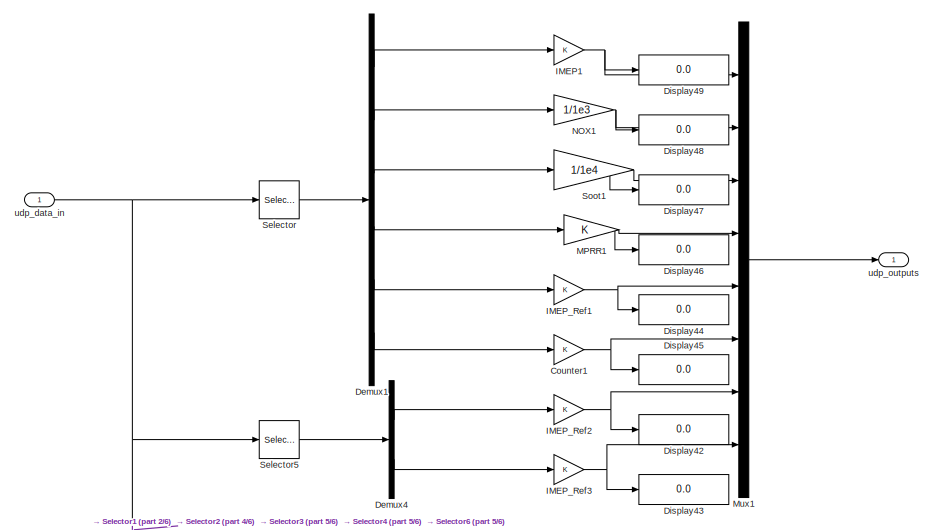
[diagram: rx_C2C/Receive/conversion_n3 - part 1/6, top left region]
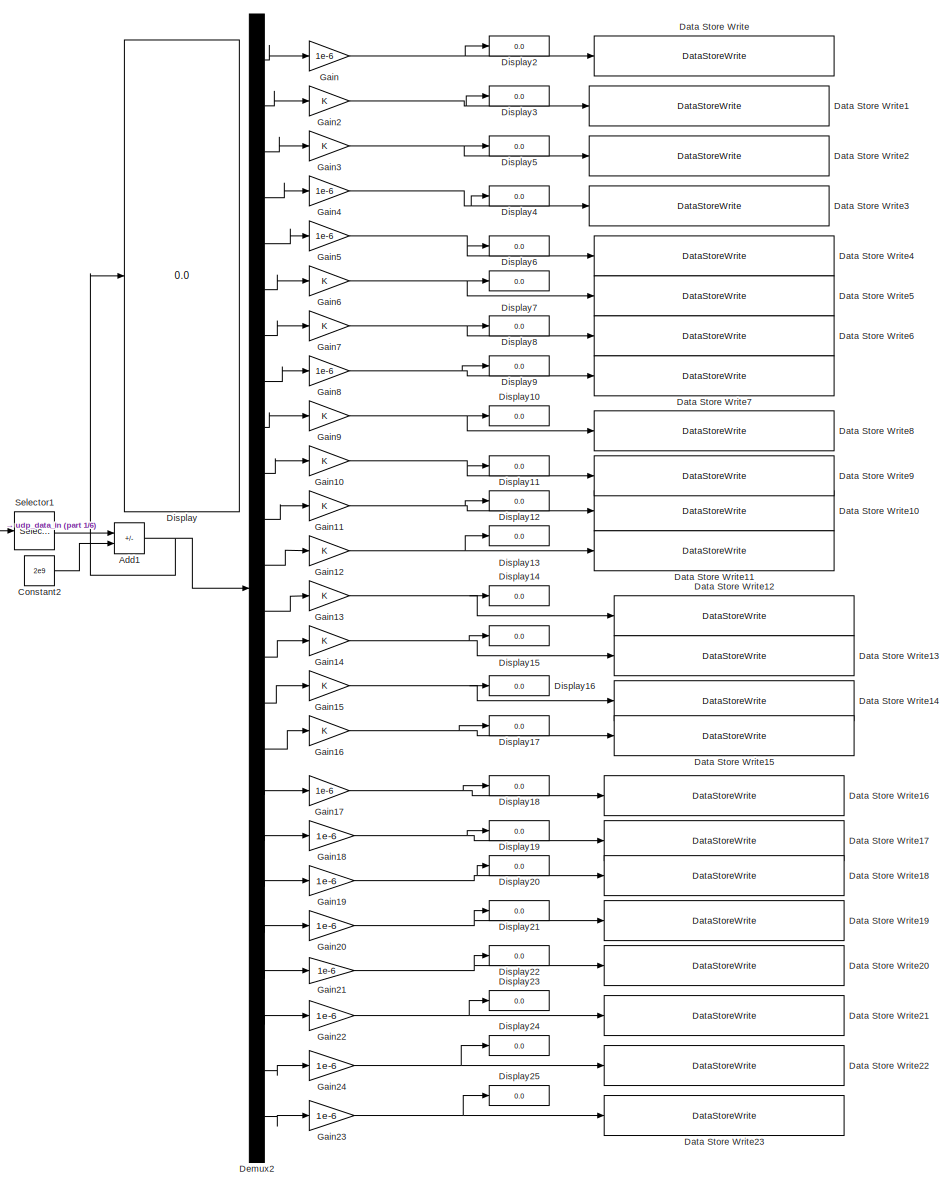
[diagram: rx_C2C/Receive/conversion_n3 - part 2/6, top center region]
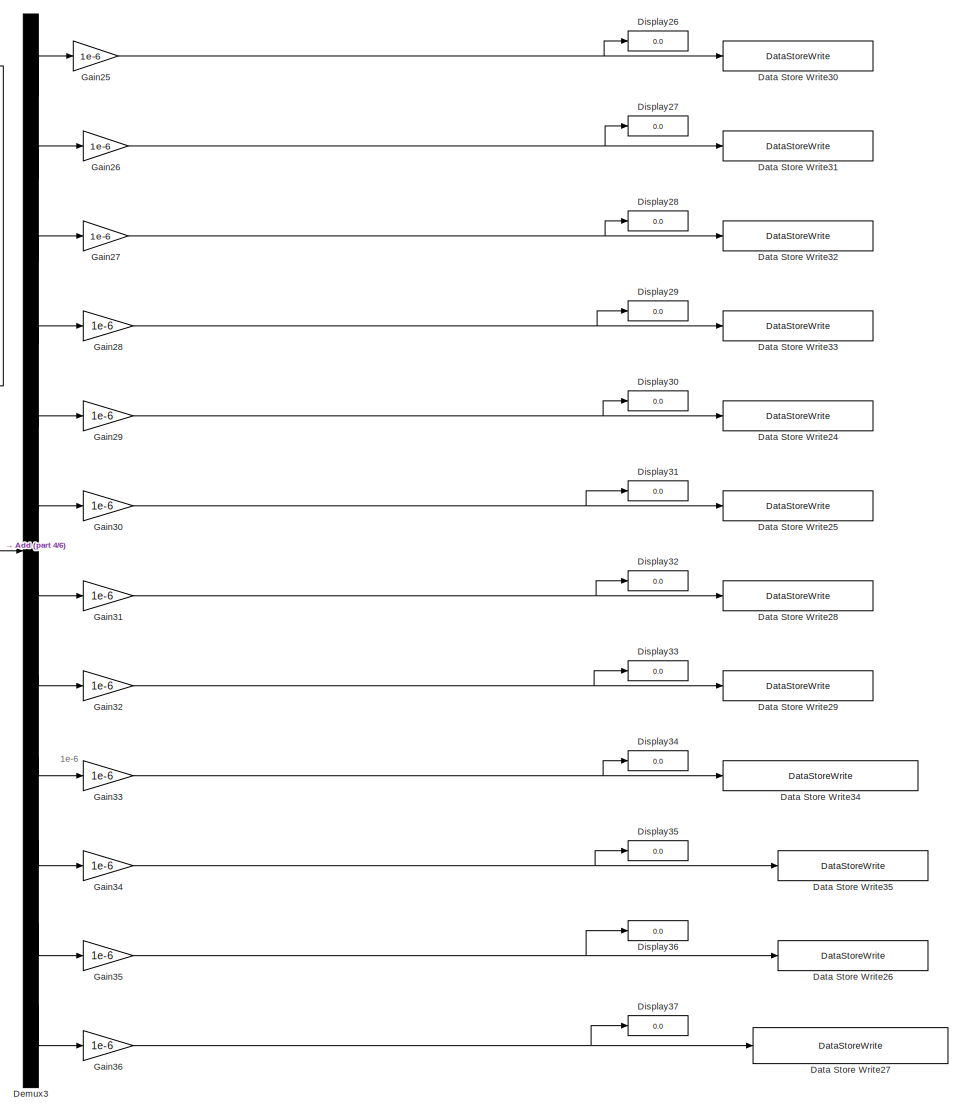
[diagram: rx_C2C/Receive/conversion_n3 - part 3/6, central region]
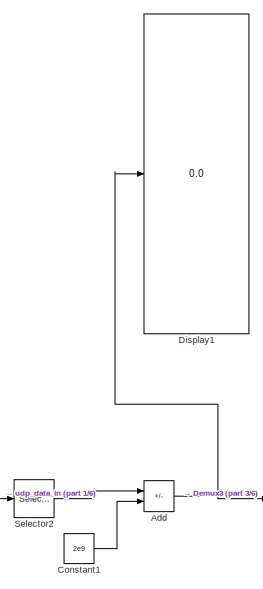
[diagram: rx_C2C/Receive/conversion_n3 - part 4/6, middle left region]
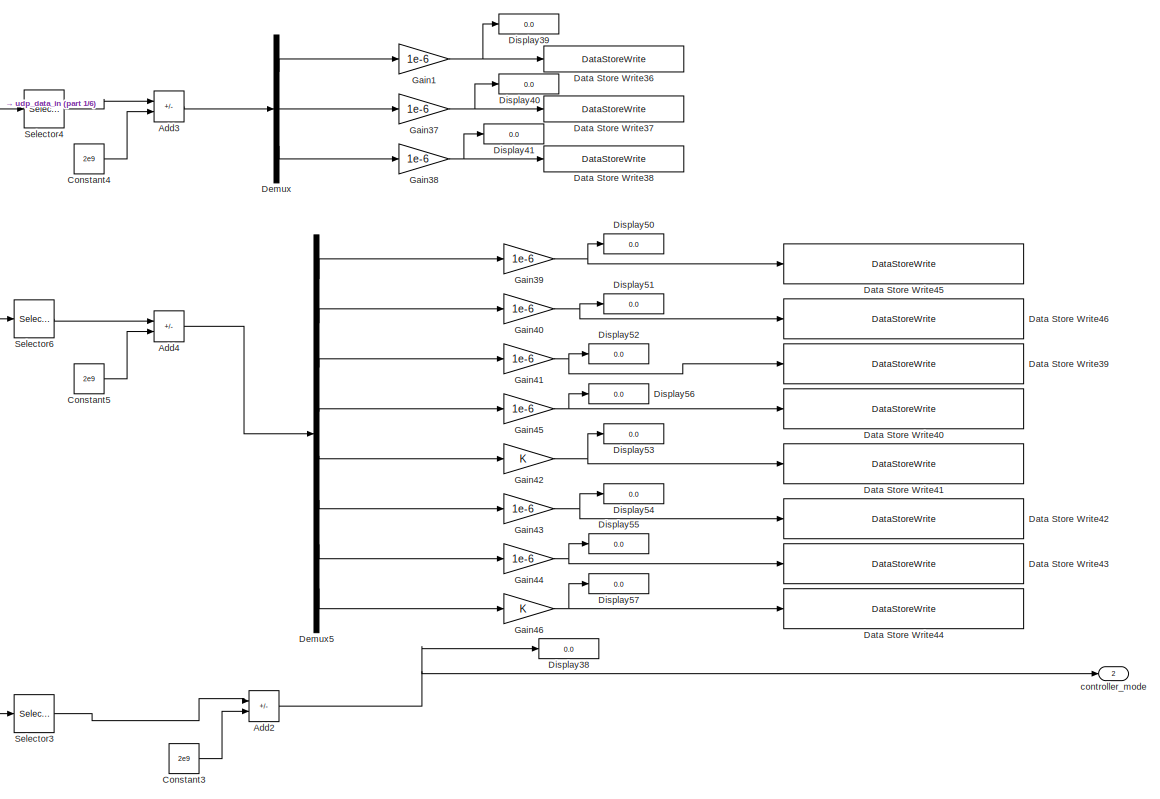
[diagram: rx_C2C/Receive/conversion_n3 - part 5/6, bottom center region]
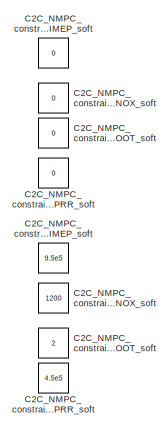
[diagram: rx_C2C/Receive/conversion_n3 - part 6/6, bottom right region]
BLOCK [SubSystem] rx_C2C/Receive/conversion_n3
BLOCK [Sum] rx_C2C/Receive/conversion_n3/Add
  IconShape = rectangular
  Inputs = +-
BLOCK [Sum] rx_C2C/Receive/conversion_n3/Add1
  IconShape = rectangular
  Inputs = +-
BLOCK [Sum] rx_C2C/Receive/conversion_n3/Add2
  IconShape = rectangular
  Inputs = +-
BLOCK [Sum] rx_C2C/Receive/conversion_n3/Add3
  IconShape = rectangular
  Inputs = +-
BLOCK [Sum] rx_C2C/Receive/conversion_n3/Add4
  IconShape = rectangular
  Inputs = +-
BLOCK [Constant] rx_C2C/Receive/conversion_n3/C2C_NMPC_constraints_low_IMEP_soft
  Commented = on
  Value = 0
BLOCK [Constant] rx_C2C/Receive/conversion_n3/C2C_NMPC_constraints_low_MPRR_soft
  Commented = on
  Value = 0
BLOCK [Constant] rx_C2C/Receive/conversion_n3/C2C_NMPC_constraints_low_NOX_soft
  Commented = on
  Value = 0
BLOCK [Constant] rx_C2C/Receive/conversion_n3/C2C_NMPC_constraints_low_SOOT_soft
  Commented = on
  Value = 0
BLOCK [Constant] rx_C2C/Receive/conversion_n3/C2C_NMPC_constraints_up_IMEP_soft
  Commented = on
  Value = 9.5e5
BLOCK [Constant] rx_C2C/Receive/conversion_n3/C2C_NMPC_constraints_up_MPRR_soft
  Commented = on
  Value = 4.5e5
BLOCK [Constant] rx_C2C/Receive/conversion_n3/C2C_NMPC_constraints_up_NOX_soft
  Commented = on
  Value = 1200
BLOCK [Constant] rx_C2C/Receive/conversion_n3/C2C_NMPC_constraints_up_SOOT_soft
  Commented = on
  Value = 2
BLOCK [Constant] rx_C2C/Receive/conversion_n3/Constant1
  Value = 2e9
BLOCK [Constant] rx_C2C/Receive/conversion_n3/Constant2
  Value = 2e9
BLOCK [Constant] rx_C2C/Receive/conversion_n3/Constant3
  Value = 2e9
BLOCK [Constant] rx_C2C/Receive/conversion_n3/Constant4
  Value = 2e9
BLOCK [Constant] rx_C2C/Receive/conversion_n3/Constant5
  Value = 2e9
BLOCK [Gain] rx_C2C/Receive/conversion_n3/Counter1
BLOCK [DataStoreWrite] rx_C2C/Receive/conversion_n3/Data Store Write
  DataStoreName = C2C_NMPC_constraints_low_DOI_main
  IndexOptions = Index vector (dialog)
  Indices = 1
  OutputSizes = 1
BLOCK [DataStoreWrite] rx_C2C/Receive/conversion_n3/Data Store Write1
  DataStoreName = C2C_NMPC_constraints_low_P2M
  IndexOptions = Index vector (dialog)
  Indices = 1
  OutputSizes = 1
BLOCK [DataStoreWrite] rx_C2C/Receive/conversion_n3/Data Store Write10
  DataStoreName = C2C_NMPC_constraints_low_SOOT
  IndexOptions = Index vector (dialog)
  Indices = 1
  OutputSizes = 1
BLOCK [DataStoreWrite] rx_C2C/Receive/conversion_n3/Data Store Write11
  DataStoreName = C2C_NMPC_constraints_low_MPRR
  IndexOptions = Index vector (dialog)
  Indices = 1
  OutputSizes = 1
BLOCK [DataStoreWrite] rx_C2C/Receive/conversion_n3/Data Store Write12
  DataStoreName = C2C_NMPC_constraints_up_IMEP
  IndexOptions = Index vector (dialog)
  Indices = 1
  OutputSizes = 1
BLOCK [DataStoreWrite] rx_C2C/Receive/conversion_n3/Data Store Write13
  DataStoreName = C2C_NMPC_constraints_up_NOX
  IndexOptions = Index vector (dialog)
  Indices = 1
  OutputSizes = 1
BLOCK [DataStoreWrite] rx_C2C/Receive/conversion_n3/Data Store Write14
  DataStoreName = C2C_NMPC_constraints_up_SOOT
  IndexOptions = Index vector (dialog)
  Indices = 1
  OutputSizes = 1
BLOCK [DataStoreWrite] rx_C2C/Receive/conversion_n3/Data Store Write15
  DataStoreName = C2C_NMPC_constraints_up_MPRR
  IndexOptions = Index vector (dialog)
  Indices = 1
  OutputSizes = 1
BLOCK [DataStoreWrite] rx_C2C/Receive/conversion_n3/Data Store Write16
  DataStoreName = C2C_NMPC_constraints_low_dt_DOI_main
  IndexOptions = Index vector (dialog)
  Indices = 1
  OutputSizes = 1
BLOCK [DataStoreWrite] rx_C2C/Receive/conversion_n3/Data Store Write17
  DataStoreName = C2C_NMPC_constraints_low_dt_P2M
  IndexOptions = Index vector (dialog)
  Indices = 1
  OutputSizes = 1
BLOCK [DataStoreWrite] rx_C2C/Receive/conversion_n3/Data Store Write18
  DataStoreName = C2C_NMPC_constraints_low_dt_SOI_main
  IndexOptions = Index vector (dialog)
  Indices = 1
  OutputSizes = 1
BLOCK [DataStoreWrite] rx_C2C/Receive/conversion_n3/Data Store Write19
  DataStoreName = C2C_NMPC_constraints_low_dt_DOI_H2
  IndexOptions = Index vector (dialog)
  Indices = 1
  OutputSizes = 1
BLOCK [DataStoreWrite] rx_C2C/Receive/conversion_n3/Data Store Write2
  DataStoreName = C2C_NMPC_constraints_low_SOI_main
  IndexOptions = Index vector (dialog)
  Indices = 1
  OutputSizes = 1
BLOCK [DataStoreWrite] rx_C2C/Receive/conversion_n3/Data Store Write20
  DataStoreName = C2C_NMPC_constraints_up_dt_DOI_main
  IndexOptions = Index vector (dialog)
  Indices = 1
  OutputSizes = 1
BLOCK [DataStoreWrite] rx_C2C/Receive/conversion_n3/Data Store Write21
  DataStoreName = C2C_NMPC_constraints_up_dt_P2M
  IndexOptions = Index vector (dialog)
  Indices = 1
  OutputSizes = 1
BLOCK [DataStoreWrite] rx_C2C/Receive/conversion_n3/Data Store Write22
  DataStoreName = C2C_NMPC_constraints_up_dt_SOI_main
  IndexOptions = Index vector (dialog)
  Indices = 1
  OutputSizes = 1
BLOCK [DataStoreWrite] rx_C2C/Receive/conversion_n3/Data Store Write23
  DataStoreName = C2C_NMPC_constraints_up_dt_DOI_H1
  IndexOptions = Index vector (dialog)
  Indices = 1
  OutputSizes = 1
BLOCK [DataStoreWrite] rx_C2C/Receive/conversion_n3/Data Store Write24
  DataStoreName = C2C_NMPC_IMEP_Weight
  IndexOptions = Index vector (dialog)
  Indices = 1
  OutputSizes = 1
BLOCK [DataStoreWrite] rx_C2C/Receive/conversion_n3/Data Store Write25
  DataStoreName = C2C_NMPC_NOX_Weight
  IndexOptions = Index vector (dialog)
  Indices = 1
  OutputSizes = 1
BLOCK [DataStoreWrite] rx_C2C/Receive/conversion_n3/Data Store Write26
  DataStoreName = C2C_NMPC_Delta_SOI_Main_Weight
  IndexOptions = Index vector (dialog)
  Indices = 1
  OutputSizes = 1
BLOCK [DataStoreWrite] rx_C2C/Receive/conversion_n3/Data Store Write27
  DataStoreName = C2C_NMPC_Delta_DOI_H2_Weight
  IndexOptions = Index vector (dialog)
  Indices = 1
  OutputSizes = 1
BLOCK [DataStoreWrite] rx_C2C/Receive/conversion_n3/Data Store Write28
  DataStoreName = C2C_NMPC_SOOT_Weight
  IndexOptions = Index vector (dialog)
  Indices = 1
  OutputSizes = 1
BLOCK [DataStoreWrite] rx_C2C/Receive/conversion_n3/Data Store Write29
  DataStoreName = C2C_NMPC_MPRR_Weight
  IndexOptions = Index vector (dialog)
  Indices = 1
  OutputSizes = 1
BLOCK [DataStoreWrite] rx_C2C/Receive/conversion_n3/Data Store Write3
  DataStoreName = C2C_NMPC_constraints_low_DOI_H2
  IndexOptions = Index vector (dialog)
  Indices = 1
  OutputSizes = 1
BLOCK [DataStoreWrite] rx_C2C/Receive/conversion_n3/Data Store Write30
  DataStoreName = C2C_NMPC_DOI_Main_Weight
  IndexOptions = Index vector (dialog)
  Indices = 1
  OutputSizes = 1
BLOCK [DataStoreWrite] rx_C2C/Receive/conversion_n3/Data Store Write31
  DataStoreName = C2C_NMPC_P2M_Weight
  IndexOptions = Index vector (dialog)
  Indices = 1
  OutputSizes = 1
BLOCK [DataStoreWrite] rx_C2C/Receive/conversion_n3/Data Store Write32
  DataStoreName = C2C_NMPC_SOI_Main_Weight
  IndexOptions = Index vector (dialog)
  Indices = 1
  OutputSizes = 1
BLOCK [DataStoreWrite] rx_C2C/Receive/conversion_n3/Data Store Write33
  DataStoreName = C2C_NMPC_DOI_H2_Weight
  IndexOptions = Index vector (dialog)
  Indices = 1
  OutputSizes = 1
BLOCK [DataStoreWrite] rx_C2C/Receive/conversion_n3/Data Store Write34
  DataStoreName = C2C_NMPC_Delta_DOI_Main_Weight
  IndexOptions = Index vector (dialog)
  Indices = 1
  OutputSizes = 1
BLOCK [DataStoreWrite] rx_C2C/Receive/conversion_n3/Data Store Write35
  DataStoreName = C2C_NMPC_Delta_P2M_Weight
  IndexOptions = Index vector (dialog)
  Indices = 1
  OutputSizes = 1
BLOCK [DataStoreWrite] rx_C2C/Receive/conversion_n3/Data Store Write36
  DataStoreName = C2C_NMPC_alpha
  IndexOptions = Index vector (dialog)
  Indices = 1
  OutputSizes = 1
BLOCK [DataStoreWrite] rx_C2C/Receive/conversion_n3/Data Store Write37
  DataStoreName = C2C_NMPC_beta
  IndexOptions = Index vector (dialog)
  Indices = 1
  OutputSizes = 1
BLOCK [DataStoreWrite] rx_C2C/Receive/conversion_n3/Data Store Write38
  DataStoreName = C2C_NMPC_gamma
  IndexOptions = Index vector (dialog)
  Indices = 1
  OutputSizes = 1
BLOCK [DataStoreWrite] rx_C2C/Receive/conversion_n3/Data Store Write39
  DataStoreName = C2C_NMPC_constraints_low_SOOT_soft
  IndexOptions = Index vector (dialog)
  Indices = 1
  OutputSizes = 1
BLOCK [DataStoreWrite] rx_C2C/Receive/conversion_n3/Data Store Write4
  DataStoreName = C2C_NMPC_constraints_up_DOI_main
  IndexOptions = Index vector (dialog)
  Indices = 1
  OutputSizes = 1
BLOCK [DataStoreWrite] rx_C2C/Receive/conversion_n3/Data Store Write40
  DataStoreName = C2C_NMPC_constraints_low_MPRR_soft
  IndexOptions = Index vector (dialog)
  Indices = 1
  OutputSizes = 1
BLOCK [DataStoreWrite] rx_C2C/Receive/conversion_n3/Data Store Write41
  DataStoreName = C2C_NMPC_constraints_up_IMEP_soft
  IndexOptions = Index vector (dialog)
  Indices = 1
  OutputSizes = 1
BLOCK [DataStoreWrite] rx_C2C/Receive/conversion_n3/Data Store Write42
  DataStoreName = C2C_NMPC_constraints_up_NOX_soft
  IndexOptions = Index vector (dialog)
  Indices = 1
  OutputSizes = 1
BLOCK [DataStoreWrite] rx_C2C/Receive/conversion_n3/Data Store Write43
  DataStoreName = C2C_NMPC_constraints_up_SOOT_soft
  IndexOptions = Index vector (dialog)
  Indices = 1
  OutputSizes = 1
BLOCK [DataStoreWrite] rx_C2C/Receive/conversion_n3/Data Store Write44
  DataStoreName = C2C_NMPC_constraints_up_MPRR_soft
  IndexOptions = Index vector (dialog)
  Indices = 1
  OutputSizes = 1
BLOCK [DataStoreWrite] rx_C2C/Receive/conversion_n3/Data Store Write45
  DataStoreName = C2C_NMPC_constraints_low_IMEP_soft
  IndexOptions = Index vector (dialog)
  Indices = 1
  OutputSizes = 1
BLOCK [DataStoreWrite] rx_C2C/Receive/conversion_n3/Data Store Write46
  DataStoreName = C2C_NMPC_constraints_low_NOX_soft
  IndexOptions = Index vector (dialog)
  Indices = 1
  OutputSizes = 1
BLOCK [DataStoreWrite] rx_C2C/Receive/conversion_n3/Data Store Write5
  DataStoreName = C2C_NMPC_constraints_up_P2M
  IndexOptions = Index vector (dialog)
  Indices = 1
  OutputSizes = 1
BLOCK [DataStoreWrite] rx_C2C/Receive/conversion_n3/Data Store Write6
  DataStoreName = C2C_NMPC_constraints_up_SOI_main
  IndexOptions = Index vector (dialog)
  Indices = 1
  OutputSizes = 1
BLOCK [DataStoreWrite] rx_C2C/Receive/conversion_n3/Data Store Write7
  DataStoreName = C2C_NMPC_constraints_up_DOI_H2
  IndexOptions = Index vector (dialog)
  Indices = 1
  OutputSizes = 1
BLOCK [DataStoreWrite] rx_C2C/Receive/conversion_n3/Data Store Write8
  DataStoreName = C2C_NMPC_constraints_low_IMEP
  IndexOptions = Index vector (dialog)
  Indices = 1
  NameLocation = left
  OutputSizes = 1
BLOCK [DataStoreWrite] rx_C2C/Receive/conversion_n3/Data Store Write9
  DataStoreName = C2C_NMPC_constraints_low_NOX
  IndexOptions = Index vector (dialog)
  Indices = 1
  OutputSizes = 1
BLOCK [Demux] rx_C2C/Receive/conversion_n3/Demux
  Outputs = 3
BLOCK [Demux] rx_C2C/Receive/conversion_n3/Demux1
  Outputs = 6
BLOCK [Demux] rx_C2C/Receive/conversion_n3/Demux2
  Outputs = 24
BLOCK [Demux] rx_C2C/Receive/conversion_n3/Demux3
  Outputs = 12
BLOCK [Demux] rx_C2C/Receive/conversion_n3/Demux4
  Outputs = 2
BLOCK [Demux] rx_C2C/Receive/conversion_n3/Demux5
  Outputs = 8
BLOCK [Display] rx_C2C/Receive/conversion_n3/Display
  Decimation = 1
BLOCK [Display] rx_C2C/Receive/conversion_n3/Display1
  Decimation = 1
BLOCK [Display] rx_C2C/Receive/conversion_n3/Display10
  Decimation = 1
BLOCK [Display] rx_C2C/Receive/conversion_n3/Display11
  Decimation = 1
BLOCK [Display] rx_C2C/Receive/conversion_n3/Display12
  Decimation = 1
BLOCK [Display] rx_C2C/Receive/conversion_n3/Display13
  Decimation = 1
BLOCK [Display] rx_C2C/Receive/conversion_n3/Display14
  Decimation = 1
BLOCK [Display] rx_C2C/Receive/conversion_n3/Display15
  Decimation = 1
BLOCK [Display] rx_C2C/Receive/conversion_n3/Display16
  Decimation = 1
BLOCK [Display] rx_C2C/Receive/conversion_n3/Display17
  Decimation = 1
BLOCK [Display] rx_C2C/Receive/conversion_n3/Display18
  Decimation = 1
BLOCK [Display] rx_C2C/Receive/conversion_n3/Display19
  Decimation = 1
BLOCK [Display] rx_C2C/Receive/conversion_n3/Display2
  Decimation = 1
BLOCK [Display] rx_C2C/Receive/conversion_n3/Display20
  Decimation = 1
BLOCK [Display] rx_C2C/Receive/conversion_n3/Display21
  Decimation = 1
BLOCK [Display] rx_C2C/Receive/conversion_n3/Display22
  Decimation = 1
BLOCK [Display] rx_C2C/Receive/conversion_n3/Display23
  Decimation = 1
BLOCK [Display] rx_C2C/Receive/conversion_n3/Display24
  Decimation = 1
BLOCK [Display] rx_C2C/Receive/conversion_n3/Display25
  Decimation = 1
BLOCK [Display] rx_C2C/Receive/conversion_n3/Display26
  Decimation = 1
BLOCK [Display] rx_C2C/Receive/conversion_n3/Display27
  Decimation = 1
BLOCK [Display] rx_C2C/Receive/conversion_n3/Display28
  Decimation = 1
BLOCK [Display] rx_C2C/Receive/conversion_n3/Display29
  Decimation = 1
BLOCK [Display] rx_C2C/Receive/conversion_n3/Display3
  Decimation = 1
BLOCK [Display] rx_C2C/Receive/conversion_n3/Display30
  Decimation = 1
BLOCK [Display] rx_C2C/Receive/conversion_n3/Display31
  Decimation = 1
BLOCK [Display] rx_C2C/Receive/conversion_n3/Display32
  Decimation = 1
BLOCK [Display] rx_C2C/Receive/conversion_n3/Display33
  Decimation = 1
BLOCK [Display] rx_C2C/Receive/conversion_n3/Display34
  Decimation = 1
BLOCK [Display] rx_C2C/Receive/conversion_n3/Display35
  Decimation = 1
BLOCK [Display] rx_C2C/Receive/conversion_n3/Display36
  Decimation = 1
BLOCK [Display] rx_C2C/Receive/conversion_n3/Display37
  Decimation = 1
BLOCK [Display] rx_C2C/Receive/conversion_n3/Display38
  Decimation = 1
BLOCK [Display] rx_C2C/Receive/conversion_n3/Display39
  Decimation = 1
BLOCK [Display] rx_C2C/Receive/conversion_n3/Display4
  Decimation = 1
BLOCK [Display] rx_C2C/Receive/conversion_n3/Display40
  Decimation = 1
BLOCK [Display] rx_C2C/Receive/conversion_n3/Display41
  Decimation = 1
BLOCK [Display] rx_C2C/Receive/conversion_n3/Display42
  Decimation = 1
BLOCK [Display] rx_C2C/Receive/conversion_n3/Display43
  Decimation = 1
BLOCK [Display] rx_C2C/Receive/conversion_n3/Display44
  Decimation = 1
BLOCK [Display] rx_C2C/Receive/conversion_n3/Display45
  Decimation = 1
BLOCK [Display] rx_C2C/Receive/conversion_n3/Display46
  Decimation = 1
BLOCK [Display] rx_C2C/Receive/conversion_n3/Display47
  Decimation = 1
BLOCK [Display] rx_C2C/Receive/conversion_n3/Display48
  Decimation = 1
BLOCK [Display] rx_C2C/Receive/conversion_n3/Display49
  Decimation = 1
BLOCK [Display] rx_C2C/Receive/conversion_n3/Display5
  Decimation = 1
BLOCK [Display] rx_C2C/Receive/conversion_n3/Display50
  Decimation = 1
BLOCK [Display] rx_C2C/Receive/conversion_n3/Display51
  Decimation = 1
BLOCK [Display] rx_C2C/Receive/conversion_n3/Display52
  Decimation = 1
BLOCK [Display] rx_C2C/Receive/conversion_n3/Display53
  Decimation = 1
BLOCK [Display] rx_C2C/Receive/conversion_n3/Display54
  Decimation = 1
BLOCK [Display] rx_C2C/Receive/conversion_n3/Display55
  Decimation = 1
BLOCK [Display] rx_C2C/Receive/conversion_n3/Display56
  Decimation = 1
BLOCK [Display] rx_C2C/Receive/conversion_n3/Display57
  Decimation = 1
BLOCK [Display] rx_C2C/Receive/conversion_n3/Display6
  Decimation = 1
BLOCK [Display] rx_C2C/Receive/conversion_n3/Display7
  Decimation = 1
BLOCK [Display] rx_C2C/Receive/conversion_n3/Display8
  Decimation = 1
BLOCK [Display] rx_C2C/Receive/conversion_n3/Display9
  Decimation = 1
BLOCK [Gain] rx_C2C/Receive/conversion_n3/Gain
  Gain = 1e-6
BLOCK [Gain] rx_C2C/Receive/conversion_n3/Gain1
  Gain = 1e-6
BLOCK [Gain] rx_C2C/Receive/conversion_n3/Gain10
BLOCK [Gain] rx_C2C/Receive/conversion_n3/Gain11
BLOCK [Gain] rx_C2C/Receive/conversion_n3/Gain12
BLOCK [Gain] rx_C2C/Receive/conversion_n3/Gain13
BLOCK [Gain] rx_C2C/Receive/conversion_n3/Gain14
BLOCK [Gain] rx_C2C/Receive/conversion_n3/Gain15
BLOCK [Gain] rx_C2C/Receive/conversion_n3/Gain16
BLOCK [Gain] rx_C2C/Receive/conversion_n3/Gain17
  Gain = 1e-6
BLOCK [Gain] rx_C2C/Receive/conversion_n3/Gain18
  Gain = 1e-6
BLOCK [Gain] rx_C2C/Receive/conversion_n3/Gain19
  Gain = 1e-6
BLOCK [Gain] rx_C2C/Receive/conversion_n3/Gain2
BLOCK [Gain] rx_C2C/Receive/conversion_n3/Gain20
  Gain = 1e-6
BLOCK [Gain] rx_C2C/Receive/conversion_n3/Gain21
  Gain = 1e-6
BLOCK [Gain] rx_C2C/Receive/conversion_n3/Gain22
  Gain = 1e-6
BLOCK [Gain] rx_C2C/Receive/conversion_n3/Gain23
  Gain = 1e-6
BLOCK [Gain] rx_C2C/Receive/conversion_n3/Gain24
  Gain = 1e-6
BLOCK [Gain] rx_C2C/Receive/conversion_n3/Gain25
  Gain = 1e-6
BLOCK [Gain] rx_C2C/Receive/conversion_n3/Gain26
  Gain = 1e-6
BLOCK [Gain] rx_C2C/Receive/conversion_n3/Gain27
  Gain = 1e-6
BLOCK [Gain] rx_C2C/Receive/conversion_n3/Gain28
  Gain = 1e-6
BLOCK [Gain] rx_C2C/Receive/conversion_n3/Gain29
  Gain = 1e-6
BLOCK [Gain] rx_C2C/Receive/conversion_n3/Gain3
BLOCK [Gain] rx_C2C/Receive/conversion_n3/Gain30
  Gain = 1e-6
BLOCK [Gain] rx_C2C/Receive/conversion_n3/Gain31
  Gain = 1e-6
BLOCK [Gain] rx_C2C/Receive/conversion_n3/Gain32
  Gain = 1e-6
BLOCK [Gain] rx_C2C/Receive/conversion_n3/Gain33
  Gain = 1e-6
BLOCK [Gain] rx_C2C/Receive/conversion_n3/Gain34
  Gain = 1e-6
BLOCK [Gain] rx_C2C/Receive/conversion_n3/Gain35
  Gain = 1e-6
BLOCK [Gain] rx_C2C/Receive/conversion_n3/Gain36
  Gain = 1e-6
BLOCK [Gain] rx_C2C/Receive/conversion_n3/Gain37
  Gain = 1e-6
BLOCK [Gain] rx_C2C/Receive/conversion_n3/Gain38
  Gain = 1e-6
BLOCK [Gain] rx_C2C/Receive/conversion_n3/Gain39
  Gain = 1e-6
BLOCK [Gain] rx_C2C/Receive/conversion_n3/Gain4
  Gain = 1e-6
BLOCK [Gain] rx_C2C/Receive/conversion_n3/Gain40
  Gain = 1e-6
BLOCK [Gain] rx_C2C/Receive/conversion_n3/Gain41
  Gain = 1e-6
BLOCK [Gain] rx_C2C/Receive/conversion_n3/Gain42
BLOCK [Gain] rx_C2C/Receive/conversion_n3/Gain43
  Gain = 1e-6
BLOCK [Gain] rx_C2C/Receive/conversion_n3/Gain44
  Gain = 1e-6
BLOCK [Gain] rx_C2C/Receive/conversion_n3/Gain45
  Gain = 1e-6
BLOCK [Gain] rx_C2C/Receive/conversion_n3/Gain46
BLOCK [Gain] rx_C2C/Receive/conversion_n3/Gain5
  Gain = 1e-6
BLOCK [Gain] rx_C2C/Receive/conversion_n3/Gain6
BLOCK [Gain] rx_C2C/Receive/conversion_n3/Gain7
BLOCK [Gain] rx_C2C/Receive/conversion_n3/Gain8
  Gain = 1e-6
BLOCK [Gain] rx_C2C/Receive/conversion_n3/Gain9
BLOCK [Gain] rx_C2C/Receive/conversion_n3/IMEP1
BLOCK [Gain] rx_C2C/Receive/conversion_n3/IMEP_Ref1
BLOCK [Gain] rx_C2C/Receive/conversion_n3/IMEP_Ref2
BLOCK [Gain] rx_C2C/Receive/conversion_n3/IMEP_Ref3
BLOCK [Gain] rx_C2C/Receive/conversion_n3/MPRR1
BLOCK [Mux] rx_C2C/Receive/conversion_n3/Mux1
  DisplayOption = bar
  Inputs = 8
BLOCK [Gain] rx_C2C/Receive/conversion_n3/NOX1
  Gain = 1/1e3
BLOCK [Selector] rx_C2C/Receive/conversion_n3/Selector
  IndexOptions = Index vector (dialog)
  Indices = [1:6]
  OutputSizes = 1
BLOCK [Selector] rx_C2C/Receive/conversion_n3/Selector1
  IndexOptions = Index vector (dialog)
  Indices = [7:30]
  OutputSizes = 1
BLOCK [Selector] rx_C2C/Receive/conversion_n3/Selector2
  IndexOptions = Index vector (dialog)
  Indices = [31:42]
  OutputSizes = 1
BLOCK [Selector] rx_C2C/Receive/conversion_n3/Selector3
  IndexOptions = Index vector (dialog)
  Indices = [54]
  OutputSizes = 1
BLOCK [Selector] rx_C2C/Receive/conversion_n3/Selector4
  IndexOptions = Index vector (dialog)
  Indices = [43:45]
  OutputSizes = 1
BLOCK [Selector] rx_C2C/Receive/conversion_n3/Selector5
  IndexOptions = Index vector (dialog)
  Indices = [55:56]
  OutputSizes = 1
BLOCK [Selector] rx_C2C/Receive/conversion_n3/Selector6
  IndexOptions = Index vector (dialog)
  Indices = [46:53]
  OutputSizes = 1
BLOCK [Gain] rx_C2C/Receive/conversion_n3/Soot1
  Gain = 1/1e4
BLOCK [Outport] rx_C2C/Receive/conversion_n3/controller_mode
  Port = 2
BLOCK [Inport] rx_C2C/Receive/conversion_n3/udp_data_in
BLOCK [Outport] rx_C2C/Receive/conversion_n3/udp_outputs
BLOCK [Inport] rx_C2C/Receive/udp_data_in
BLOCK [Outport] rx_C2C/Receive/udp_outputs
BLOCK [Terminator] rx_C2C/Terminator
BLOCK [Reference] rx_C2C/UDP Receive1  REF=raspberrypiNetworklib/UDP Receive
  SourceBlock = raspberrypiNetworklib/UDP Receive
  SourceType = UDP Receive
BLOCK [Outport] rx_C2C/data_in_C2C
  Port = 2
BLOCK [Outport] rx_C2C/size_in_C2C
BLOCK [SubSystem] tx_C2C
BLOCK [DataTypeConversion] tx_C2C/Data Type Conversion
  OutDataTypeStr = uint32
  RndMeth = Floor
  SaturateOnIntegerOverflow = off
BLOCK [Inport] tx_C2C/Inlast_outputs_MC
  Port = 2
BLOCK [Selector] tx_C2C/Selector
  IndexOptions = Index vector (dialog)
  Indices = [1:4,13,115:142,14,15,16,17,95:98]
  OutputSizes = 1
BLOCK [SubSystem] tx_C2C/Subsystem
BLOCK [Sum] tx_C2C/Subsystem/Add
  IconShape = rectangular
BLOCK [Sum] tx_C2C/Subsystem/Add1
  IconShape = rectangular
BLOCK [Sum] tx_C2C/Subsystem/Add2
  IconShape = rectangular
BLOCK [Constant] tx_C2C/Subsystem/Constant
  Value = 20
BLOCK [Constant] tx_C2C/Subsystem/Constant1
  Value = 1e9
BLOCK [Constant] tx_C2C/Subsystem/Constant2
  Value = 1e9
BLOCK [Constant] tx_C2C/Subsystem/Constant3
  Value = 1e9
BLOCK [Gain] tx_C2C/Subsystem/Counter
BLOCK [Gain] tx_C2C/Subsystem/DOI_Main
  Gain = 1e6
BLOCK [Demux] tx_C2C/Subsystem/Demux
  Outputs = 5
BLOCK [Demux] tx_C2C/Subsystem/Demux1
  Outputs = 20
BLOCK [Demux] tx_C2C/Subsystem/Demux2
  Outputs = 8
BLOCK [Display] tx_C2C/Subsystem/Display
  Decimation = 1
BLOCK [Display] tx_C2C/Subsystem/Display1
  Decimation = 1
BLOCK [Display] tx_C2C/Subsystem/Display2
  Decimation = 1
BLOCK [Display] tx_C2C/Subsystem/Display3
  Decimation = 1
BLOCK [Display] tx_C2C/Subsystem/Display4
  Decimation = 1
BLOCK [Gain] tx_C2C/Subsystem/Gain
  Gain = 1e6
BLOCK [Gain] tx_C2C/Subsystem/Gain1
  Gain = 1e6
BLOCK [Gain] tx_C2C/Subsystem/Gain10
BLOCK [Gain] tx_C2C/Subsystem/Gain11
  Gain = 1e6
BLOCK [Gain] tx_C2C/Subsystem/Gain12
  Gain = 1e6
BLOCK [Gain] tx_C2C/Subsystem/Gain13
BLOCK [Gain] tx_C2C/Subsystem/Gain14
BLOCK [Gain] tx_C2C/Subsystem/Gain15
  Gain = 1e6
BLOCK [Gain] tx_C2C/Subsystem/Gain16
  Gain = 1e6
BLOCK [Gain] tx_C2C/Subsystem/Gain17
BLOCK [Gain] tx_C2C/Subsystem/Gain18
BLOCK [Gain] tx_C2C/Subsystem/Gain19
  Gain = 1e6
BLOCK [Gain] tx_C2C/Subsystem/Gain2
BLOCK [Gain] tx_C2C/Subsystem/Gain20
  Gain = 1e6
BLOCK [Gain] tx_C2C/Subsystem/Gain21
BLOCK [Gain] tx_C2C/Subsystem/Gain22
  Gain = 1e6
BLOCK [Gain] tx_C2C/Subsystem/Gain23
  Gain = 1e6
BLOCK [Gain] tx_C2C/Subsystem/Gain24
  Gain = 1e6
BLOCK [Gain] tx_C2C/Subsystem/Gain25
  Gain = 1e6
BLOCK [Gain] tx_C2C/Subsystem/Gain26
  Gain = 1e6
BLOCK [Gain] tx_C2C/Subsystem/Gain27
  Gain = 1e6
BLOCK [Gain] tx_C2C/Subsystem/Gain28
  Gain = 1e6
BLOCK [Gain] tx_C2C/Subsystem/Gain3
  Gain = 1e6
BLOCK [Gain] tx_C2C/Subsystem/Gain4
  Gain = 1e6
BLOCK [Gain] tx_C2C/Subsystem/Gain5
BLOCK [Gain] tx_C2C/Subsystem/Gain6
BLOCK [Gain] tx_C2C/Subsystem/Gain7
  Gain = 1e6
BLOCK [Gain] tx_C2C/Subsystem/Gain8
  Gain = 1e6
BLOCK [Gain] tx_C2C/Subsystem/Gain9
BLOCK [Gain] tx_C2C/Subsystem/H2_Main
  Gain = 1e6
BLOCK [Inport] tx_C2C/Subsystem/In1
BLOCK [Mux] tx_C2C/Subsystem/Mux
  DisplayOption = bar
  Inputs = 5
BLOCK [Mux] tx_C2C/Subsystem/Mux1
  DisplayOption = bar
BLOCK [Mux] tx_C2C/Subsystem/Mux2
  DisplayOption = bar
  Inputs = 20
BLOCK [Mux] tx_C2C/Subsystem/Mux3
  DisplayOption = bar
  Inputs = 8
BLOCK [Outport] tx_C2C/Subsystem/Out1
BLOCK [Gain] tx_C2C/Subsystem/SOI_Main
  Gain = 1e4
BLOCK [Saturate] tx_C2C/Subsystem/Saturation
  LowerLimit = 0
  UpperLimit = 4e9
BLOCK [Saturate] tx_C2C/Subsystem/Saturation1
  LowerLimit = 0
  UpperLimit = 4e9
BLOCK [Saturate] tx_C2C/Subsystem/Saturation2
  LowerLimit = 0
  UpperLimit = 4e9
BLOCK [Selector] tx_C2C/Subsystem/Selector
  IndexOptions = Index vector (dialog)
  Indices = [1:5]
  OutputSizes = 1
BLOCK [Selector] tx_C2C/Subsystem/Selector1
  IndexOptions = Index vector (dialog)
  Indices = [6:13]
  OutputSizes = 1
BLOCK [Selector] tx_C2C/Subsystem/Selector2
  IndexOptions = Index vector (dialog)
  Indices = [14:33]
  OutputSizes = 1
BLOCK [Selector] tx_C2C/Subsystem/Selector4
  IndexOptions = Index vector (dialog)
  Indices = [34:41]
  OutputSizes = 1
BLOCK [Sum] tx_C2C/Subsystem/Sum
  Inputs = |++
BLOCK [Gain] tx_C2C/Subsystem/p2m
  Gain = 1e6
BLOCK [Terminator] tx_C2C/Terminator
BLOCK [S-Function] tx_C2C/UDP Send1
  AncestorBlock = raspberrypiNetworklib/UDP Send
  EnableBusSupport = off
  FunctionName = sdspToNetwork
  InitFcn = realtime.internal.validateLinuxBlock(get_param(gcbh, 'blockPlatform'), gcbh);\nrealtime.internal.registerLinuxBlock(gcb);
  Parameters = localURL, localPortSource, localPort, remoteURL, remotePort, 8192, separateLengthPort, []
  SFcnIsStateOwnerBlock = off
  SFunctionDeploymentMode = off
BLOCK [Inport] tx_C2C/data_out_C2C
BLOCK [TriggerPort] tx_C2C/function
  TriggerType = function-call
  VariantControl = (inherit)
ANNOTATION (root): C2C_NMPC_constraints_up_MPRR
ANNOTATION main_C2C/C2C_NMPC_n3: % x = {'lstm_states', 'doi_main', 'soi_pre', 'soi_main', 'doi_h2', 'imep', 'nox, 'soot', 'mprr'}
ANNOTATION main_C2C/C2C_NMPC_n3: Note: Usage of Sfunction is as follows: Inputs are: 1) lbx_0 - lower bound on x for stage 0, size [16] 2) ubx_0 - upper bound on x for stage 0, size [16] 3) y_ref_0, size [12] 4) y_ref - concatenated for shooting nodes 1 to N-1, size [12] 5) y_ref_e, size [8] 6) lbx for shooting nodes 1 to N-1, size [4] 7) ubx for shooting nodes 1 to N-1, size [4] 8) lbx_e (lbx at shooting node N), size [4] 9) ubx...<+968ch>
ANNOTATION main_C2C/C2C_NMPC_n3/constraints no soft: 0 to N-1, so length is N (1-based)
ANNOTATION main_C2C/C2C_NMPC_n3/constraints no soft: 1 to N-1, so length is N-1 (1-based)
ANNOTATION main_C2C/C2C_NMPC_n3/constraints1 soft : 0 to N-1, so length is N (1-based)
ANNOTATION main_C2C/C2C_NMPC_n3/constraints1 soft : 1 to N-1, so length is N-1 (1-based)
ANNOTATION rx_C2C/Receive: block for horizon of 3 from engine
ANNOTATION rx_C2C/Receive/conversion_n3: 1e-6
ANNOTATION tx_C2C: [1:4,13,99:134,14,15,16,17,71:74]
LINE Chart1:1 -> tx_C2C:trigger
LINE Chart1:2 -> main_C2C:trigger
LINE Constant:1 -> Display:1
LINE Delay1:1 -> main_C2C:3
LINE Delay4:1 -> main_C2C:2
LINE main_C2C/C2C_NMPC_n3/Constant14:1 -> main_C2C/C2C_NMPC_n3/Equal:2
LINE main_C2C/C2C_NMPC_n3/Data Type Conversion:1 -> main_C2C/C2C_NMPC_n3/S-Function:19
LINE main_C2C/C2C_NMPC_n3/Equal:1 -> main_C2C/C2C_NMPC_n3/Data Type Conversion:1
LINE main_C2C/C2C_NMPC_n3/Mux1:1 -> main_C2C/C2C_NMPC_n3/status_C2C:1
NET main_C2C/C2C_NMPC_n3/S-Function:1 -> main_C2C/C2C_NMPC_n3/Display:1, main_C2C/C2C_NMPC_n3/Terminator:1
NET main_C2C/C2C_NMPC_n3/S-Function:10 -> main_C2C/C2C_NMPC_n3/Mux1:4, main_C2C/C2C_NMPC_n3/Terminator8:1
NET main_C2C/C2C_NMPC_n3/S-Function:2 -> main_C2C/C2C_NMPC_n3/Mux1:5, main_C2C/C2C_NMPC_n3/Terminator1:1
NET main_C2C/C2C_NMPC_n3/S-Function:3 -> main_C2C/C2C_NMPC_n3/Mux1:6, main_C2C/C2C_NMPC_n3/Terminator2:1
NET main_C2C/C2C_NMPC_n3/S-Function:4 -> main_C2C/C2C_NMPC_n3/Display1:1, main_C2C/C2C_NMPC_n3/Mux1:1, main_C2C/C2C_NMPC_n3/Scope:1, main_C2C/C2C_NMPC_n3/Terminator3:1, main_C2C/C2C_NMPC_n3/Unit Delay1:1
NET main_C2C/C2C_NMPC_n3/S-Function:5 -> main_C2C/C2C_NMPC_n3/Mux1:2, main_C2C/C2C_NMPC_n3/Scope:2, main_C2C/C2C_NMPC_n3/Terminator4:1
NET main_C2C/C2C_NMPC_n3/S-Function:6 -> main_C2C/C2C_NMPC_n3/Mux1:7, main_C2C/C2C_NMPC_n3/Terminator5:1
NET main_C2C/C2C_NMPC_n3/S-Function:7 -> main_C2C/C2C_NMPC_n3/Mux1:8, main_C2C/C2C_NMPC_n3/Terminator6:1
NET main_C2C/C2C_NMPC_n3/S-Function:8 -> main_C2C/C2C_NMPC_n3/Mux1:9, main_C2C/C2C_NMPC_n3/Selector1:1
NET main_C2C/C2C_NMPC_n3/S-Function:9 -> main_C2C/C2C_NMPC_n3/Mux1:3, main_C2C/C2C_NMPC_n3/Terminator7:1
LINE main_C2C/C2C_NMPC_n3/Selector1:1 -> main_C2C/C2C_NMPC_n3/controls:1
NET main_C2C/C2C_NMPC_n3/Selector2:1 -> main_C2C/C2C_NMPC_n3/Display3:1, main_C2C/C2C_NMPC_n3/S-Function:3
LINE main_C2C/C2C_NMPC_n3/Selector3:1 -> main_C2C/C2C_NMPC_n3/S-Function:4
LINE main_C2C/C2C_NMPC_n3/Selector4:1 -> main_C2C/C2C_NMPC_n3/S-Function:5
LINE main_C2C/C2C_NMPC_n3/Unit Delay1:1 -> main_C2C/C2C_NMPC_n3/Equal:1
LINE main_C2C/C2C_NMPC_n3/constraints no soft/Constant1:1 -> main_C2C/C2C_NMPC_n3/constraints no soft/MATLAB Function:2
LINE main_C2C/C2C_NMPC_n3/constraints no soft/Constant2:1 -> main_C2C/C2C_NMPC_n3/constraints no soft/MATLAB Function1:2
LINE main_C2C/C2C_NMPC_n3/constraints no soft/Constant3:1 -> main_C2C/C2C_NMPC_n3/constraints no soft/MATLAB Function2:2
LINE main_C2C/C2C_NMPC_n3/constraints no soft/Constant4:1 -> main_C2C/C2C_NMPC_n3/constraints no soft/MATLAB Function3:2
LINE main_C2C/C2C_NMPC_n3/constraints no soft/Constant5:1 -> main_C2C/C2C_NMPC_n3/constraints no soft/MATLAB Function4:2
LINE main_C2C/C2C_NMPC_n3/constraints no soft/Constant6:1 -> main_C2C/C2C_NMPC_n3/constraints no soft/MATLAB Function5:2
LINE main_C2C/C2C_NMPC_n3/constraints no soft/Data Store Read10:1 -> main_C2C/C2C_NMPC_n3/constraints no soft/Mux:3
LINE main_C2C/C2C_NMPC_n3/constraints no soft/Data Store Read11:1 -> main_C2C/C2C_NMPC_n3/constraints no soft/Mux:4
LINE main_C2C/C2C_NMPC_n3/constraints no soft/Data Store Read12:1 -> main_C2C/C2C_NMPC_n3/constraints no soft/Mux5:1
LINE main_C2C/C2C_NMPC_n3/constraints no soft/Data Store Read13:1 -> main_C2C/C2C_NMPC_n3/constraints no soft/Mux5:2
LINE main_C2C/C2C_NMPC_n3/constraints no soft/Data Store Read14:1 -> main_C2C/C2C_NMPC_n3/constraints no soft/Mux5:3
LINE main_C2C/C2C_NMPC_n3/constraints no soft/Data Store Read15:1 -> main_C2C/C2C_NMPC_n3/constraints no soft/Mux5:4
LINE main_C2C/C2C_NMPC_n3/constraints no soft/Data Store Read16:1 -> main_C2C/C2C_NMPC_n3/constraints no soft/Mux2:1
LINE main_C2C/C2C_NMPC_n3/constraints no soft/Data Store Read17:1 -> main_C2C/C2C_NMPC_n3/constraints no soft/Mux2:2
LINE main_C2C/C2C_NMPC_n3/constraints no soft/Data Store Read18:1 -> main_C2C/C2C_NMPC_n3/constraints no soft/Mux2:3
LINE main_C2C/C2C_NMPC_n3/constraints no soft/Data Store Read19:1 -> main_C2C/C2C_NMPC_n3/constraints no soft/Mux2:4
LINE main_C2C/C2C_NMPC_n3/constraints no soft/Data Store Read1:1 -> main_C2C/C2C_NMPC_n3/constraints no soft/Mux8:2
LINE main_C2C/C2C_NMPC_n3/constraints no soft/Data Store Read20:1 -> main_C2C/C2C_NMPC_n3/constraints no soft/Mux4:1
LINE main_C2C/C2C_NMPC_n3/constraints no soft/Data Store Read21:1 -> main_C2C/C2C_NMPC_n3/constraints no soft/Mux4:2
LINE main_C2C/C2C_NMPC_n3/constraints no soft/Data Store Read22:1 -> main_C2C/C2C_NMPC_n3/constraints no soft/Mux4:3
LINE main_C2C/C2C_NMPC_n3/constraints no soft/Data Store Read23:1 -> main_C2C/C2C_NMPC_n3/constraints no soft/Mux4:4
LINE main_C2C/C2C_NMPC_n3/constraints no soft/Data Store Read2:1 -> main_C2C/C2C_NMPC_n3/constraints no soft/Mux8:3
LINE main_C2C/C2C_NMPC_n3/constraints no soft/Data Store Read3:1 -> main_C2C/C2C_NMPC_n3/constraints no soft/Mux8:4
LINE main_C2C/C2C_NMPC_n3/constraints no soft/Data Store Read4:1 -> main_C2C/C2C_NMPC_n3/constraints no soft/Mux9:1
LINE main_C2C/C2C_NMPC_n3/constraints no soft/Data Store Read5:1 -> main_C2C/C2C_NMPC_n3/constraints no soft/Mux9:2
LINE main_C2C/C2C_NMPC_n3/constraints no soft/Data Store Read6:1 -> main_C2C/C2C_NMPC_n3/constraints no soft/Mux9:3
LINE main_C2C/C2C_NMPC_n3/constraints no soft/Data Store Read7:1 -> main_C2C/C2C_NMPC_n3/constraints no soft/Mux9:4
LINE main_C2C/C2C_NMPC_n3/constraints no soft/Data Store Read8:1 -> main_C2C/C2C_NMPC_n3/constraints no soft/Mux:1
LINE main_C2C/C2C_NMPC_n3/constraints no soft/Data Store Read9:1 -> main_C2C/C2C_NMPC_n3/constraints no soft/Mux:2
LINE main_C2C/C2C_NMPC_n3/constraints no soft/Data Store Read:1 -> main_C2C/C2C_NMPC_n3/constraints no soft/Mux8:1
LINE main_C2C/C2C_NMPC_n3/constraints no soft/Init1:1 -> main_C2C/C2C_NMPC_n3/constraints no soft/MATLAB Function1:3
LINE main_C2C/C2C_NMPC_n3/constraints no soft/Init2:1 -> main_C2C/C2C_NMPC_n3/constraints no soft/MATLAB Function2:3
LINE main_C2C/C2C_NMPC_n3/constraints no soft/Init3:1 -> main_C2C/C2C_NMPC_n3/constraints no soft/MATLAB Function3:3
LINE main_C2C/C2C_NMPC_n3/constraints no soft/Init4:1 -> main_C2C/C2C_NMPC_n3/constraints no soft/MATLAB Function4:3
LINE main_C2C/C2C_NMPC_n3/constraints no soft/Init5:1 -> main_C2C/C2C_NMPC_n3/constraints no soft/MATLAB Function5:3
LINE main_C2C/C2C_NMPC_n3/constraints no soft/Init:1 -> main_C2C/C2C_NMPC_n3/constraints no soft/MATLAB Function:3
LINE main_C2C/C2C_NMPC_n3/constraints no soft/MATLAB Function1:1 -> main_C2C/C2C_NMPC_n3/constraints no soft/Selector:1
LINE main_C2C/C2C_NMPC_n3/constraints no soft/MATLAB Function2:1 -> main_C2C/C2C_NMPC_n3/constraints no soft/Selector2:1
LINE main_C2C/C2C_NMPC_n3/constraints no soft/MATLAB Function3:1 -> main_C2C/C2C_NMPC_n3/constraints no soft/Selector3:1
LINE main_C2C/C2C_NMPC_n3/constraints no soft/MATLAB Function4:1 -> main_C2C/C2C_NMPC_n3/constraints no soft/Selector4:1
LINE main_C2C/C2C_NMPC_n3/constraints no soft/MATLAB Function5:1 -> main_C2C/C2C_NMPC_n3/constraints no soft/Selector5:1
LINE main_C2C/C2C_NMPC_n3/constraints no soft/MATLAB Function:1 -> main_C2C/C2C_NMPC_n3/constraints no soft/Selector1:1
LINE main_C2C/C2C_NMPC_n3/constraints no soft/Mux1:1 -> main_C2C/C2C_NMPC_n3/constraints no soft/lbh_e:1
LINE main_C2C/C2C_NMPC_n3/constraints no soft/Mux2:1 -> main_C2C/C2C_NMPC_n3/constraints no soft/Subsystem2:1
LINE main_C2C/C2C_NMPC_n3/constraints no soft/Mux3:1 -> main_C2C/C2C_NMPC_n3/constraints no soft/ubh_e:1
LINE main_C2C/C2C_NMPC_n3/constraints no soft/Mux4:1 -> main_C2C/C2C_NMPC_n3/constraints no soft/Subsystem3:1
LINE main_C2C/C2C_NMPC_n3/constraints no soft/Mux5:1 -> main_C2C/C2C_NMPC_n3/constraints no soft/Subsystem1:1
LINE main_C2C/C2C_NMPC_n3/constraints no soft/Mux6:1 -> main_C2C/C2C_NMPC_n3/constraints no soft/MATLAB Function2:1
LINE main_C2C/C2C_NMPC_n3/constraints no soft/Mux7:1 -> main_C2C/C2C_NMPC_n3/constraints no soft/MATLAB Function3:1
LINE main_C2C/C2C_NMPC_n3/constraints no soft/Mux8:1 -> main_C2C/C2C_NMPC_n3/constraints no soft/Normalizing data:1
LINE main_C2C/C2C_NMPC_n3/constraints no soft/Mux9:1 -> main_C2C/C2C_NMPC_n3/constraints no soft/Normalizing data1:1
LINE main_C2C/C2C_NMPC_n3/constraints no soft/Mux:1 -> main_C2C/C2C_NMPC_n3/constraints no soft/Subsystem:1
LINE main_C2C/C2C_NMPC_n3/constraints no soft/Normalizing data/Constant1:1 -> main_C2C/C2C_NMPC_n3/constraints no soft/Normalizing data/Sum2:2
LINE main_C2C/C2C_NMPC_n3/constraints no soft/Normalizing data/Constant2:1 -> main_C2C/C2C_NMPC_n3/constraints no soft/Normalizing data/Sum3:2
LINE main_C2C/C2C_NMPC_n3/constraints no soft/Normalizing data/Constant3:1 -> main_C2C/C2C_NMPC_n3/constraints no soft/Normalizing data/Sum4:2
LINE main_C2C/C2C_NMPC_n3/constraints no soft/Normalizing data/Constant4:1 -> main_C2C/C2C_NMPC_n3/constraints no soft/Normalizing data/Sum1:2
LINE main_C2C/C2C_NMPC_n3/constraints no soft/Normalizing data/Gain1:1 -> main_C2C/C2C_NMPC_n3/constraints no soft/Normalizing data/Mux:2
LINE main_C2C/C2C_NMPC_n3/constraints no soft/Normalizing data/Gain2:1 -> main_C2C/C2C_NMPC_n3/constraints no soft/Normalizing data/Mux:3
LINE main_C2C/C2C_NMPC_n3/constraints no soft/Normalizing data/Gain3:1 -> main_C2C/C2C_NMPC_n3/constraints no soft/Normalizing data/Mux:4
LINE main_C2C/C2C_NMPC_n3/constraints no soft/Normalizing data/Gain4:1 -> main_C2C/C2C_NMPC_n3/constraints no soft/Normalizing data/Mux:1
LINE main_C2C/C2C_NMPC_n3/constraints no soft/Normalizing data/Mux:1 -> main_C2C/C2C_NMPC_n3/constraints no soft/Normalizing data/normalized_data:1
LINE main_C2C/C2C_NMPC_n3/constraints no soft/Normalizing data/Selector1:1 -> main_C2C/C2C_NMPC_n3/constraints no soft/Normalizing data/Sum4:1
LINE main_C2C/C2C_NMPC_n3/constraints no soft/Normalizing data/Selector2:1 -> main_C2C/C2C_NMPC_n3/constraints no soft/Normalizing data/Sum3:1
LINE main_C2C/C2C_NMPC_n3/constraints no soft/Normalizing data/Selector3:1 -> main_C2C/C2C_NMPC_n3/constraints no soft/Normalizing data/Sum1:1
LINE main_C2C/C2C_NMPC_n3/constraints no soft/Normalizing data/Selector:1 -> main_C2C/C2C_NMPC_n3/constraints no soft/Normalizing data/Sum2:1
LINE main_C2C/C2C_NMPC_n3/constraints no soft/Normalizing data/Sum1:1 -> main_C2C/C2C_NMPC_n3/constraints no soft/Normalizing data/Gain3:1
LINE main_C2C/C2C_NMPC_n3/constraints no soft/Normalizing data/Sum2:1 -> main_C2C/C2C_NMPC_n3/constraints no soft/Normalizing data/Gain1:1
LINE main_C2C/C2C_NMPC_n3/constraints no soft/Normalizing data/Sum3:1 -> main_C2C/C2C_NMPC_n3/constraints no soft/Normalizing data/Gain2:1
LINE main_C2C/C2C_NMPC_n3/constraints no soft/Normalizing data/Sum4:1 -> main_C2C/C2C_NMPC_n3/constraints no soft/Normalizing data/Gain4:1
NET main_C2C/C2C_NMPC_n3/constraints no soft/Normalizing data/physical_data:1 -> main_C2C/C2C_NMPC_n3/constraints no soft/Normalizing data/Selector1:1, main_C2C/C2C_NMPC_n3/constraints no soft/Normalizing data/Selector2:1, main_C2C/C2C_NMPC_n3/constraints no soft/Normalizing data/Selector3:1, main_C2C/C2C_NMPC_n3/constraints no soft/Normalizing data/Selector:1
LINE main_C2C/C2C_NMPC_n3/constraints no soft/Normalizing data1/Constant1:1 -> main_C2C/C2C_NMPC_n3/constraints no soft/Normalizing data1/Sum2:2
LINE main_C2C/C2C_NMPC_n3/constraints no soft/Normalizing data1/Constant2:1 -> main_C2C/C2C_NMPC_n3/constraints no soft/Normalizing data1/Sum3:2
LINE main_C2C/C2C_NMPC_n3/constraints no soft/Normalizing data1/Constant3:1 -> main_C2C/C2C_NMPC_n3/constraints no soft/Normalizing data1/Sum4:2
LINE main_C2C/C2C_NMPC_n3/constraints no soft/Normalizing data1/Constant4:1 -> main_C2C/C2C_NMPC_n3/constraints no soft/Normalizing data1/Sum1:2
LINE main_C2C/C2C_NMPC_n3/constraints no soft/Normalizing data1/Gain1:1 -> main_C2C/C2C_NMPC_n3/constraints no soft/Normalizing data1/Mux:2
LINE main_C2C/C2C_NMPC_n3/constraints no soft/Normalizing data1/Gain2:1 -> main_C2C/C2C_NMPC_n3/constraints no soft/Normalizing data1/Mux:3
LINE main_C2C/C2C_NMPC_n3/constraints no soft/Normalizing data1/Gain3:1 -> main_C2C/C2C_NMPC_n3/constraints no soft/Normalizing data1/Mux:4
LINE main_C2C/C2C_NMPC_n3/constraints no soft/Normalizing data1/Gain4:1 -> main_C2C/C2C_NMPC_n3/constraints no soft/Normalizing data1/Mux:1
LINE main_C2C/C2C_NMPC_n3/constraints no soft/Normalizing data1/Mux:1 -> main_C2C/C2C_NMPC_n3/constraints no soft/Normalizing data1/normalized_data:1
LINE main_C2C/C2C_NMPC_n3/constraints no soft/Normalizing data1/Selector1:1 -> main_C2C/C2C_NMPC_n3/constraints no soft/Normalizing data1/Sum4:1
LINE main_C2C/C2C_NMPC_n3/constraints no soft/Normalizing data1/Selector2:1 -> main_C2C/C2C_NMPC_n3/constraints no soft/Normalizing data1/Sum3:1
LINE main_C2C/C2C_NMPC_n3/constraints no soft/Normalizing data1/Selector3:1 -> main_C2C/C2C_NMPC_n3/constraints no soft/Normalizing data1/Sum1:1
LINE main_C2C/C2C_NMPC_n3/constraints no soft/Normalizing data1/Selector:1 -> main_C2C/C2C_NMPC_n3/constraints no soft/Normalizing data1/Sum2:1
LINE main_C2C/C2C_NMPC_n3/constraints no soft/Normalizing data1/Sum1:1 -> main_C2C/C2C_NMPC_n3/constraints no soft/Normalizing data1/Gain3:1
LINE main_C2C/C2C_NMPC_n3/constraints no soft/Normalizing data1/Sum2:1 -> main_C2C/C2C_NMPC_n3/constraints no soft/Normalizing data1/Gain1:1
LINE main_C2C/C2C_NMPC_n3/constraints no soft/Normalizing data1/Sum3:1 -> main_C2C/C2C_NMPC_n3/constraints no soft/Normalizing data1/Gain2:1
LINE main_C2C/C2C_NMPC_n3/constraints no soft/Normalizing data1/Sum4:1 -> main_C2C/C2C_NMPC_n3/constraints no soft/Normalizing data1/Gain4:1
NET main_C2C/C2C_NMPC_n3/constraints no soft/Normalizing data1/physical_data:1 -> main_C2C/C2C_NMPC_n3/constraints no soft/Normalizing data1/Selector1:1, main_C2C/C2C_NMPC_n3/constraints no soft/Normalizing data1/Selector2:1, main_C2C/C2C_NMPC_n3/constraints no soft/Normalizing data1/Selector3:1, main_C2C/C2C_NMPC_n3/constraints no soft/Normalizing data1/Selector:1
NET main_C2C/C2C_NMPC_n3/constraints no soft/Normalizing data1:1 -> main_C2C/C2C_NMPC_n3/constraints no soft/Display1:1, main_C2C/C2C_NMPC_n3/constraints no soft/MATLAB Function:1, main_C2C/C2C_NMPC_n3/constraints no soft/Mux3:1, main_C2C/C2C_NMPC_n3/constraints no soft/Mux7:1, main_C2C/C2C_NMPC_n3/constraints no soft/ubx_e:1
NET main_C2C/C2C_NMPC_n3/constraints no soft/Normalizing data:1 -> main_C2C/C2C_NMPC_n3/constraints no soft/Display:1, main_C2C/C2C_NMPC_n3/constraints no soft/MATLAB Function1:1, main_C2C/C2C_NMPC_n3/constraints no soft/Mux1:1, main_C2C/C2C_NMPC_n3/constraints no soft/Mux6:1, main_C2C/C2C_NMPC_n3/constraints no soft/lbx_e:1
LINE main_C2C/C2C_NMPC_n3/constraints no soft/Selector1:1 -> main_C2C/C2C_NMPC_n3/constraints no soft/ubx:1
LINE main_C2C/C2C_NMPC_n3/constraints no soft/Selector2:1 -> main_C2C/C2C_NMPC_n3/constraints no soft/lbh:1
LINE main_C2C/C2C_NMPC_n3/constraints no soft/Selector3:1 -> main_C2C/C2C_NMPC_n3/constraints no soft/ubh:1
NET main_C2C/C2C_NMPC_n3/constraints no soft/Selector4:1 -> main_C2C/C2C_NMPC_n3/constraints no soft/Display7:1, main_C2C/C2C_NMPC_n3/constraints no soft/lbu:1
LINE main_C2C/C2C_NMPC_n3/constraints no soft/Selector5:1 -> main_C2C/C2C_NMPC_n3/constraints no soft/ubu:1
LINE main_C2C/C2C_NMPC_n3/constraints no soft/Selector:1 -> main_C2C/C2C_NMPC_n3/constraints no soft/lbx:1
LINE main_C2C/C2C_NMPC_n3/constraints no soft/Subsystem/Constant1:1 -> main_C2C/C2C_NMPC_n3/constraints no soft/Subsystem/Sum1:2
LINE main_C2C/C2C_NMPC_n3/constraints no soft/Subsystem/Constant2:1 -> main_C2C/C2C_NMPC_n3/constraints no soft/Subsystem/Sum2:2
LINE main_C2C/C2C_NMPC_n3/constraints no soft/Subsystem/Constant3:1 -> main_C2C/C2C_NMPC_n3/constraints no soft/Subsystem/Sum3:2
LINE main_C2C/C2C_NMPC_n3/constraints no soft/Subsystem/Constant:1 -> main_C2C/C2C_NMPC_n3/constraints no soft/Subsystem/Sum5:2
LINE main_C2C/C2C_NMPC_n3/constraints no soft/Subsystem/Demux:1 -> main_C2C/C2C_NMPC_n3/constraints no soft/Subsystem/Sum5:1
LINE main_C2C/C2C_NMPC_n3/constraints no soft/Subsystem/Demux:2 -> main_C2C/C2C_NMPC_n3/constraints no soft/Subsystem/Sum1:1
LINE main_C2C/C2C_NMPC_n3/constraints no soft/Subsystem/Demux:3 -> main_C2C/C2C_NMPC_n3/constraints no soft/Subsystem/Sum2:1
LINE main_C2C/C2C_NMPC_n3/constraints no soft/Subsystem/Demux:4 -> main_C2C/C2C_NMPC_n3/constraints no soft/Subsystem/Sum3:1
LINE main_C2C/C2C_NMPC_n3/constraints no soft/Subsystem/Gain1:1 -> main_C2C/C2C_NMPC_n3/constraints no soft/Subsystem/Mux:2
LINE main_C2C/C2C_NMPC_n3/constraints no soft/Subsystem/Gain2:1 -> main_C2C/C2C_NMPC_n3/constraints no soft/Subsystem/Mux:3
LINE main_C2C/C2C_NMPC_n3/constraints no soft/Subsystem/Gain3:1 -> main_C2C/C2C_NMPC_n3/constraints no soft/Subsystem/Mux:4
LINE main_C2C/C2C_NMPC_n3/constraints no soft/Subsystem/Gain:1 -> main_C2C/C2C_NMPC_n3/constraints no soft/Subsystem/Mux:1
LINE main_C2C/C2C_NMPC_n3/constraints no soft/Subsystem/In:1 -> main_C2C/C2C_NMPC_n3/constraints no soft/Subsystem/Demux:1
LINE main_C2C/C2C_NMPC_n3/constraints no soft/Subsystem/Mux:1 -> main_C2C/C2C_NMPC_n3/constraints no soft/Subsystem/value:1
LINE main_C2C/C2C_NMPC_n3/constraints no soft/Subsystem/Sum1:1 -> main_C2C/C2C_NMPC_n3/constraints no soft/Subsystem/Gain1:1
LINE main_C2C/C2C_NMPC_n3/constraints no soft/Subsystem/Sum2:1 -> main_C2C/C2C_NMPC_n3/constraints no soft/Subsystem/Gain2:1
LINE main_C2C/C2C_NMPC_n3/constraints no soft/Subsystem/Sum3:1 -> main_C2C/C2C_NMPC_n3/constraints no soft/Subsystem/Gain3:1
LINE main_C2C/C2C_NMPC_n3/constraints no soft/Subsystem/Sum5:1 -> main_C2C/C2C_NMPC_n3/constraints no soft/Subsystem/Gain:1
LINE main_C2C/C2C_NMPC_n3/constraints no soft/Subsystem1/Constant1:1 -> main_C2C/C2C_NMPC_n3/constraints no soft/Subsystem1/Sum1:2
LINE main_C2C/C2C_NMPC_n3/constraints no soft/Subsystem1/Constant2:1 -> main_C2C/C2C_NMPC_n3/constraints no soft/Subsystem1/Sum2:2
LINE main_C2C/C2C_NMPC_n3/constraints no soft/Subsystem1/Constant3:1 -> main_C2C/C2C_NMPC_n3/constraints no soft/Subsystem1/Sum3:2
LINE main_C2C/C2C_NMPC_n3/constraints no soft/Subsystem1/Constant:1 -> main_C2C/C2C_NMPC_n3/constraints no soft/Subsystem1/Sum5:2
LINE main_C2C/C2C_NMPC_n3/constraints no soft/Subsystem1/Demux:1 -> main_C2C/C2C_NMPC_n3/constraints no soft/Subsystem1/Sum5:1
LINE main_C2C/C2C_NMPC_n3/constraints no soft/Subsystem1/Demux:2 -> main_C2C/C2C_NMPC_n3/constraints no soft/Subsystem1/Sum1:1
LINE main_C2C/C2C_NMPC_n3/constraints no soft/Subsystem1/Demux:3 -> main_C2C/C2C_NMPC_n3/constraints no soft/Subsystem1/Sum2:1
LINE main_C2C/C2C_NMPC_n3/constraints no soft/Subsystem1/Demux:4 -> main_C2C/C2C_NMPC_n3/constraints no soft/Subsystem1/Sum3:1
LINE main_C2C/C2C_NMPC_n3/constraints no soft/Subsystem1/Gain1:1 -> main_C2C/C2C_NMPC_n3/constraints no soft/Subsystem1/Mux:2
LINE main_C2C/C2C_NMPC_n3/constraints no soft/Subsystem1/Gain2:1 -> main_C2C/C2C_NMPC_n3/constraints no soft/Subsystem1/Mux:3
LINE main_C2C/C2C_NMPC_n3/constraints no soft/Subsystem1/Gain3:1 -> main_C2C/C2C_NMPC_n3/constraints no soft/Subsystem1/Mux:4
LINE main_C2C/C2C_NMPC_n3/constraints no soft/Subsystem1/Gain:1 -> main_C2C/C2C_NMPC_n3/constraints no soft/Subsystem1/Mux:1
LINE main_C2C/C2C_NMPC_n3/constraints no soft/Subsystem1/In:1 -> main_C2C/C2C_NMPC_n3/constraints no soft/Subsystem1/Demux:1
LINE main_C2C/C2C_NMPC_n3/constraints no soft/Subsystem1/Mux:1 -> main_C2C/C2C_NMPC_n3/constraints no soft/Subsystem1/ubh_e:1
LINE main_C2C/C2C_NMPC_n3/constraints no soft/Subsystem1/Sum1:1 -> main_C2C/C2C_NMPC_n3/constraints no soft/Subsystem1/Gain1:1
LINE main_C2C/C2C_NMPC_n3/constraints no soft/Subsystem1/Sum2:1 -> main_C2C/C2C_NMPC_n3/constraints no soft/Subsystem1/Gain2:1
LINE main_C2C/C2C_NMPC_n3/constraints no soft/Subsystem1/Sum3:1 -> main_C2C/C2C_NMPC_n3/constraints no soft/Subsystem1/Gain3:1
LINE main_C2C/C2C_NMPC_n3/constraints no soft/Subsystem1/Sum5:1 -> main_C2C/C2C_NMPC_n3/constraints no soft/Subsystem1/Gain:1
NET main_C2C/C2C_NMPC_n3/constraints no soft/Subsystem1:1 -> main_C2C/C2C_NMPC_n3/constraints no soft/Display3:1, main_C2C/C2C_NMPC_n3/constraints no soft/Mux3:2, main_C2C/C2C_NMPC_n3/constraints no soft/Mux7:2
LINE main_C2C/C2C_NMPC_n3/constraints no soft/Subsystem2/Demux:1 -> main_C2C/C2C_NMPC_n3/constraints no soft/Subsystem2/Gain:1
LINE main_C2C/C2C_NMPC_n3/constraints no soft/Subsystem2/Demux:2 -> main_C2C/C2C_NMPC_n3/constraints no soft/Subsystem2/Gain1:1
LINE main_C2C/C2C_NMPC_n3/constraints no soft/Subsystem2/Demux:3 -> main_C2C/C2C_NMPC_n3/constraints no soft/Subsystem2/Gain2:1
LINE main_C2C/C2C_NMPC_n3/constraints no soft/Subsystem2/Demux:4 -> main_C2C/C2C_NMPC_n3/constraints no soft/Subsystem2/Gain3:1
LINE main_C2C/C2C_NMPC_n3/constraints no soft/Subsystem2/Gain1:1 -> main_C2C/C2C_NMPC_n3/constraints no soft/Subsystem2/Mux:2
LINE main_C2C/C2C_NMPC_n3/constraints no soft/Subsystem2/Gain2:1 -> main_C2C/C2C_NMPC_n3/constraints no soft/Subsystem2/Mux:3
LINE main_C2C/C2C_NMPC_n3/constraints no soft/Subsystem2/Gain3:1 -> main_C2C/C2C_NMPC_n3/constraints no soft/Subsystem2/Mux:4
LINE main_C2C/C2C_NMPC_n3/constraints no soft/Subsystem2/Gain:1 -> main_C2C/C2C_NMPC_n3/constraints no soft/Subsystem2/Mux:1
LINE main_C2C/C2C_NMPC_n3/constraints no soft/Subsystem2/In:1 -> main_C2C/C2C_NMPC_n3/constraints no soft/Subsystem2/Demux:1
LINE main_C2C/C2C_NMPC_n3/constraints no soft/Subsystem2/Mux:1 -> main_C2C/C2C_NMPC_n3/constraints no soft/Subsystem2/Out:1
NET main_C2C/C2C_NMPC_n3/constraints no soft/Subsystem2:1 -> main_C2C/C2C_NMPC_n3/constraints no soft/Display4:1, main_C2C/C2C_NMPC_n3/constraints no soft/MATLAB Function4:1, main_C2C/C2C_NMPC_n3/constraints no soft/Mux6:3
LINE main_C2C/C2C_NMPC_n3/constraints no soft/Subsystem3/Demux:1 -> main_C2C/C2C_NMPC_n3/constraints no soft/Subsystem3/Gain:1
LINE main_C2C/C2C_NMPC_n3/constraints no soft/Subsystem3/Demux:2 -> main_C2C/C2C_NMPC_n3/constraints no soft/Subsystem3/Gain1:1
LINE main_C2C/C2C_NMPC_n3/constraints no soft/Subsystem3/Demux:3 -> main_C2C/C2C_NMPC_n3/constraints no soft/Subsystem3/Gain2:1
LINE main_C2C/C2C_NMPC_n3/constraints no soft/Subsystem3/Demux:4 -> main_C2C/C2C_NMPC_n3/constraints no soft/Subsystem3/Gain3:1
LINE main_C2C/C2C_NMPC_n3/constraints no soft/Subsystem3/Gain1:1 -> main_C2C/C2C_NMPC_n3/constraints no soft/Subsystem3/Mux:2
LINE main_C2C/C2C_NMPC_n3/constraints no soft/Subsystem3/Gain2:1 -> main_C2C/C2C_NMPC_n3/constraints no soft/Subsystem3/Mux:3
LINE main_C2C/C2C_NMPC_n3/constraints no soft/Subsystem3/Gain3:1 -> main_C2C/C2C_NMPC_n3/constraints no soft/Subsystem3/Mux:4
LINE main_C2C/C2C_NMPC_n3/constraints no soft/Subsystem3/Gain:1 -> main_C2C/C2C_NMPC_n3/constraints no soft/Subsystem3/Mux:1
LINE main_C2C/C2C_NMPC_n3/constraints no soft/Subsystem3/In:1 -> main_C2C/C2C_NMPC_n3/constraints no soft/Subsystem3/Demux:1
LINE main_C2C/C2C_NMPC_n3/constraints no soft/Subsystem3/Mux:1 -> main_C2C/C2C_NMPC_n3/constraints no soft/Subsystem3/Out:1
NET main_C2C/C2C_NMPC_n3/constraints no soft/Subsystem3:1 -> main_C2C/C2C_NMPC_n3/constraints no soft/Display5:1, main_C2C/C2C_NMPC_n3/constraints no soft/MATLAB Function5:1, main_C2C/C2C_NMPC_n3/constraints no soft/Mux7:3
LINE main_C2C/C2C_NMPC_n3/constraints no soft/Subsystem4/C2C_NMPC_constraints_low_DOI_H2:1 -> main_C2C/C2C_NMPC_n3/constraints no soft/Subsystem4/Out4:1
LINE main_C2C/C2C_NMPC_n3/constraints no soft/Subsystem4/C2C_NMPC_constraints_low_DOI_main:1 -> main_C2C/C2C_NMPC_n3/constraints no soft/Subsystem4/Out1:1
LINE main_C2C/C2C_NMPC_n3/constraints no soft/Subsystem4/C2C_NMPC_constraints_low_IMEP:1 -> main_C2C/C2C_NMPC_n3/constraints no soft/Subsystem4/Out9:1
LINE main_C2C/C2C_NMPC_n3/constraints no soft/Subsystem4/C2C_NMPC_constraints_low_MPRR:1 -> main_C2C/C2C_NMPC_n3/constraints no soft/Subsystem4/Out12:1
LINE main_C2C/C2C_NMPC_n3/constraints no soft/Subsystem4/C2C_NMPC_constraints_low_NOX:1 -> main_C2C/C2C_NMPC_n3/constraints no soft/Subsystem4/Out10:1
LINE main_C2C/C2C_NMPC_n3/constraints no soft/Subsystem4/C2C_NMPC_constraints_low_P2M:1 -> main_C2C/C2C_NMPC_n3/constraints no soft/Subsystem4/Out2:1
LINE main_C2C/C2C_NMPC_n3/constraints no soft/Subsystem4/C2C_NMPC_constraints_low_SOI_main:1 -> main_C2C/C2C_NMPC_n3/constraints no soft/Subsystem4/Out3:1
LINE main_C2C/C2C_NMPC_n3/constraints no soft/Subsystem4/C2C_NMPC_constraints_low_SOOT:1 -> main_C2C/C2C_NMPC_n3/constraints no soft/Subsystem4/Out11:1
LINE main_C2C/C2C_NMPC_n3/constraints no soft/Subsystem4/C2C_NMPC_constraints_low_dt_DOI_H2:1 -> main_C2C/C2C_NMPC_n3/constraints no soft/Subsystem4/Out20:1
LINE main_C2C/C2C_NMPC_n3/constraints no soft/Subsystem4/C2C_NMPC_constraints_low_dt_DOI_main:1 -> main_C2C/C2C_NMPC_n3/constraints no soft/Subsystem4/Out17:1
LINE main_C2C/C2C_NMPC_n3/constraints no soft/Subsystem4/C2C_NMPC_constraints_low_dt_P2M:1 -> main_C2C/C2C_NMPC_n3/constraints no soft/Subsystem4/Out18:1
LINE main_C2C/C2C_NMPC_n3/constraints no soft/Subsystem4/C2C_NMPC_constraints_low_dt_SOI_main:1 -> main_C2C/C2C_NMPC_n3/constraints no soft/Subsystem4/Out19:1
LINE main_C2C/C2C_NMPC_n3/constraints no soft/Subsystem4/C2C_NMPC_constraints_up_DOI_H2:1 -> main_C2C/C2C_NMPC_n3/constraints no soft/Subsystem4/Out8:1
LINE main_C2C/C2C_NMPC_n3/constraints no soft/Subsystem4/C2C_NMPC_constraints_up_DOI_main:1 -> main_C2C/C2C_NMPC_n3/constraints no soft/Subsystem4/Out5:1
LINE main_C2C/C2C_NMPC_n3/constraints no soft/Subsystem4/C2C_NMPC_constraints_up_IMEP:1 -> main_C2C/C2C_NMPC_n3/constraints no soft/Subsystem4/Out13:1
LINE main_C2C/C2C_NMPC_n3/constraints no soft/Subsystem4/C2C_NMPC_constraints_up_MPRR:1 -> main_C2C/C2C_NMPC_n3/constraints no soft/Subsystem4/Out16:1
LINE main_C2C/C2C_NMPC_n3/constraints no soft/Subsystem4/C2C_NMPC_constraints_up_NOX:1 -> main_C2C/C2C_NMPC_n3/constraints no soft/Subsystem4/Out14:1
LINE main_C2C/C2C_NMPC_n3/constraints no soft/Subsystem4/C2C_NMPC_constraints_up_P2M:1 -> main_C2C/C2C_NMPC_n3/constraints no soft/Subsystem4/Out6:1
LINE main_C2C/C2C_NMPC_n3/constraints no soft/Subsystem4/C2C_NMPC_constraints_up_SOI_main:1 -> main_C2C/C2C_NMPC_n3/constraints no soft/Subsystem4/Out7:1
LINE main_C2C/C2C_NMPC_n3/constraints no soft/Subsystem4/C2C_NMPC_constraints_up_SOOT:1 -> main_C2C/C2C_NMPC_n3/constraints no soft/Subsystem4/Out15:1
LINE main_C2C/C2C_NMPC_n3/constraints no soft/Subsystem4/C2C_NMPC_constraints_up_dt_DOI_H1:1 -> main_C2C/C2C_NMPC_n3/constraints no soft/Subsystem4/Out24:1
LINE main_C2C/C2C_NMPC_n3/constraints no soft/Subsystem4/C2C_NMPC_constraints_up_dt_DOI_main:1 -> main_C2C/C2C_NMPC_n3/constraints no soft/Subsystem4/Out21:1
LINE main_C2C/C2C_NMPC_n3/constraints no soft/Subsystem4/C2C_NMPC_constraints_up_dt_P2M:1 -> main_C2C/C2C_NMPC_n3/constraints no soft/Subsystem4/Out22:1
LINE main_C2C/C2C_NMPC_n3/constraints no soft/Subsystem4/C2C_NMPC_constraints_up_dt_SOI_main:1 -> main_C2C/C2C_NMPC_n3/constraints no soft/Subsystem4/Out23:1
NET main_C2C/C2C_NMPC_n3/constraints no soft/Subsystem:1 -> main_C2C/C2C_NMPC_n3/constraints no soft/Display2:1, main_C2C/C2C_NMPC_n3/constraints no soft/Mux1:2, main_C2C/C2C_NMPC_n3/constraints no soft/Mux6:2
LINE main_C2C/C2C_NMPC_n3/constraints1 soft /Constant1:1 -> main_C2C/C2C_NMPC_n3/constraints1 soft /MATLAB Function:2
LINE main_C2C/C2C_NMPC_n3/constraints1 soft /Constant2:1 -> main_C2C/C2C_NMPC_n3/constraints1 soft /MATLAB Function1:2
LINE main_C2C/C2C_NMPC_n3/constraints1 soft /Constant3:1 -> main_C2C/C2C_NMPC_n3/constraints1 soft /MATLAB Function2:2
LINE main_C2C/C2C_NMPC_n3/constraints1 soft /Constant4:1 -> main_C2C/C2C_NMPC_n3/constraints1 soft /MATLAB Function3:2
LINE main_C2C/C2C_NMPC_n3/constraints1 soft /Constant5:1 -> main_C2C/C2C_NMPC_n3/constraints1 soft /MATLAB Function4:2
LINE main_C2C/C2C_NMPC_n3/constraints1 soft /Constant6:1 -> main_C2C/C2C_NMPC_n3/constraints1 soft /MATLAB Function5:2
LINE main_C2C/C2C_NMPC_n3/constraints1 soft /Data Store Read10:1 -> main_C2C/C2C_NMPC_n3/constraints1 soft /Mux:3
LINE main_C2C/C2C_NMPC_n3/constraints1 soft /Data Store Read11:1 -> main_C2C/C2C_NMPC_n3/constraints1 soft /Mux:4
LINE main_C2C/C2C_NMPC_n3/constraints1 soft /Data Store Read12:1 -> main_C2C/C2C_NMPC_n3/constraints1 soft /Mux5:1
LINE main_C2C/C2C_NMPC_n3/constraints1 soft /Data Store Read13:1 -> main_C2C/C2C_NMPC_n3/constraints1 soft /Mux5:2
LINE main_C2C/C2C_NMPC_n3/constraints1 soft /Data Store Read14:1 -> main_C2C/C2C_NMPC_n3/constraints1 soft /Mux5:3
LINE main_C2C/C2C_NMPC_n3/constraints1 soft /Data Store Read15:1 -> main_C2C/C2C_NMPC_n3/constraints1 soft /Mux5:4
LINE main_C2C/C2C_NMPC_n3/constraints1 soft /Data Store Read16:1 -> main_C2C/C2C_NMPC_n3/constraints1 soft /Mux2:1
LINE main_C2C/C2C_NMPC_n3/constraints1 soft /Data Store Read17:1 -> main_C2C/C2C_NMPC_n3/constraints1 soft /Mux2:2
LINE main_C2C/C2C_NMPC_n3/constraints1 soft /Data Store Read18:1 -> main_C2C/C2C_NMPC_n3/constraints1 soft /Mux2:3
LINE main_C2C/C2C_NMPC_n3/constraints1 soft /Data Store Read19:1 -> main_C2C/C2C_NMPC_n3/constraints1 soft /Mux2:4
LINE main_C2C/C2C_NMPC_n3/constraints1 soft /Data Store Read1:1 -> main_C2C/C2C_NMPC_n3/constraints1 soft /Mux8:2
LINE main_C2C/C2C_NMPC_n3/constraints1 soft /Data Store Read20:1 -> main_C2C/C2C_NMPC_n3/constraints1 soft /Mux4:1
LINE main_C2C/C2C_NMPC_n3/constraints1 soft /Data Store Read21:1 -> main_C2C/C2C_NMPC_n3/constraints1 soft /Mux4:2
LINE main_C2C/C2C_NMPC_n3/constraints1 soft /Data Store Read22:1 -> main_C2C/C2C_NMPC_n3/constraints1 soft /Mux4:3
LINE main_C2C/C2C_NMPC_n3/constraints1 soft /Data Store Read23:1 -> main_C2C/C2C_NMPC_n3/constraints1 soft /Mux4:4
LINE main_C2C/C2C_NMPC_n3/constraints1 soft /Data Store Read24:1 -> main_C2C/C2C_NMPC_n3/constraints1 soft /Mux10:3
LINE main_C2C/C2C_NMPC_n3/constraints1 soft /Data Store Read25:1 -> main_C2C/C2C_NMPC_n3/constraints1 soft /Mux10:4
LINE main_C2C/C2C_NMPC_n3/constraints1 soft /Data Store Read26:1 -> main_C2C/C2C_NMPC_n3/constraints1 soft /Mux10:1
LINE main_C2C/C2C_NMPC_n3/constraints1 soft /Data Store Read27:1 -> main_C2C/C2C_NMPC_n3/constraints1 soft /Mux10:2
LINE main_C2C/C2C_NMPC_n3/constraints1 soft /Data Store Read28:1 -> main_C2C/C2C_NMPC_n3/constraints1 soft /Mux13:1
LINE main_C2C/C2C_NMPC_n3/constraints1 soft /Data Store Read29:1 -> main_C2C/C2C_NMPC_n3/constraints1 soft /Mux13:2
LINE main_C2C/C2C_NMPC_n3/constraints1 soft /Data Store Read2:1 -> main_C2C/C2C_NMPC_n3/constraints1 soft /Mux8:3
LINE main_C2C/C2C_NMPC_n3/constraints1 soft /Data Store Read30:1 -> main_C2C/C2C_NMPC_n3/constraints1 soft /Mux13:3
LINE main_C2C/C2C_NMPC_n3/constraints1 soft /Data Store Read31:1 -> main_C2C/C2C_NMPC_n3/constraints1 soft /Mux13:4
LINE main_C2C/C2C_NMPC_n3/constraints1 soft /Data Store Read3:1 -> main_C2C/C2C_NMPC_n3/constraints1 soft /Mux8:4
LINE main_C2C/C2C_NMPC_n3/constraints1 soft /Data Store Read4:1 -> main_C2C/C2C_NMPC_n3/constraints1 soft /Mux9:1
LINE main_C2C/C2C_NMPC_n3/constraints1 soft /Data Store Read5:1 -> main_C2C/C2C_NMPC_n3/constraints1 soft /Mux9:2
LINE main_C2C/C2C_NMPC_n3/constraints1 soft /Data Store Read6:1 -> main_C2C/C2C_NMPC_n3/constraints1 soft /Mux9:3
LINE main_C2C/C2C_NMPC_n3/constraints1 soft /Data Store Read7:1 -> main_C2C/C2C_NMPC_n3/constraints1 soft /Mux9:4
LINE main_C2C/C2C_NMPC_n3/constraints1 soft /Data Store Read8:1 -> main_C2C/C2C_NMPC_n3/constraints1 soft /Mux:1
LINE main_C2C/C2C_NMPC_n3/constraints1 soft /Data Store Read9:1 -> main_C2C/C2C_NMPC_n3/constraints1 soft /Mux:2
LINE main_C2C/C2C_NMPC_n3/constraints1 soft /Data Store Read:1 -> main_C2C/C2C_NMPC_n3/constraints1 soft /Mux8:1
LINE main_C2C/C2C_NMPC_n3/constraints1 soft /Init1:1 -> main_C2C/C2C_NMPC_n3/constraints1 soft /MATLAB Function1:3
LINE main_C2C/C2C_NMPC_n3/constraints1 soft /Init2:1 -> main_C2C/C2C_NMPC_n3/constraints1 soft /MATLAB Function2:3
LINE main_C2C/C2C_NMPC_n3/constraints1 soft /Init3:1 -> main_C2C/C2C_NMPC_n3/constraints1 soft /MATLAB Function3:3
LINE main_C2C/C2C_NMPC_n3/constraints1 soft /Init4:1 -> main_C2C/C2C_NMPC_n3/constraints1 soft /MATLAB Function4:3
LINE main_C2C/C2C_NMPC_n3/constraints1 soft /Init5:1 -> main_C2C/C2C_NMPC_n3/constraints1 soft /MATLAB Function5:3
LINE main_C2C/C2C_NMPC_n3/constraints1 soft /Init:1 -> main_C2C/C2C_NMPC_n3/constraints1 soft /MATLAB Function:3
LINE main_C2C/C2C_NMPC_n3/constraints1 soft /MATLAB Function1:1 -> main_C2C/C2C_NMPC_n3/constraints1 soft /Selector:1
LINE main_C2C/C2C_NMPC_n3/constraints1 soft /MATLAB Function2:1 -> main_C2C/C2C_NMPC_n3/constraints1 soft /Selector2:1
LINE main_C2C/C2C_NMPC_n3/constraints1 soft /MATLAB Function3:1 -> main_C2C/C2C_NMPC_n3/constraints1 soft /Selector3:1
LINE main_C2C/C2C_NMPC_n3/constraints1 soft /MATLAB Function4:1 -> main_C2C/C2C_NMPC_n3/constraints1 soft /Selector4:1
LINE main_C2C/C2C_NMPC_n3/constraints1 soft /MATLAB Function5:1 -> main_C2C/C2C_NMPC_n3/constraints1 soft /Selector5:1
LINE main_C2C/C2C_NMPC_n3/constraints1 soft /MATLAB Function:1 -> main_C2C/C2C_NMPC_n3/constraints1 soft /Selector1:1
LINE main_C2C/C2C_NMPC_n3/constraints1 soft /Mux10:1 -> main_C2C/C2C_NMPC_n3/constraints1 soft /Normalizing data Output:1
NET main_C2C/C2C_NMPC_n3/constraints1 soft /Mux11:1 -> main_C2C/C2C_NMPC_n3/constraints1 soft /MATLAB Function1:1, main_C2C/C2C_NMPC_n3/constraints1 soft /lbx_e:1
NET main_C2C/C2C_NMPC_n3/constraints1 soft /Mux12:1 -> main_C2C/C2C_NMPC_n3/constraints1 soft /MATLAB Function:1, main_C2C/C2C_NMPC_n3/constraints1 soft /ubx_e:1
LINE main_C2C/C2C_NMPC_n3/constraints1 soft /Mux13:1 -> main_C2C/C2C_NMPC_n3/constraints1 soft /Subsystem5:1
LINE main_C2C/C2C_NMPC_n3/constraints1 soft /Mux1:1 -> main_C2C/C2C_NMPC_n3/constraints1 soft /lbh_e:1
LINE main_C2C/C2C_NMPC_n3/constraints1 soft /Mux2:1 -> main_C2C/C2C_NMPC_n3/constraints1 soft /Subsystem2:1
LINE main_C2C/C2C_NMPC_n3/constraints1 soft /Mux3:1 -> main_C2C/C2C_NMPC_n3/constraints1 soft /ubh_e:1
LINE main_C2C/C2C_NMPC_n3/constraints1 soft /Mux4:1 -> main_C2C/C2C_NMPC_n3/constraints1 soft /Subsystem3:1
LINE main_C2C/C2C_NMPC_n3/constraints1 soft /Mux5:1 -> main_C2C/C2C_NMPC_n3/constraints1 soft /Subsystem1:1
LINE main_C2C/C2C_NMPC_n3/constraints1 soft /Mux6:1 -> main_C2C/C2C_NMPC_n3/constraints1 soft /MATLAB Function2:1
LINE main_C2C/C2C_NMPC_n3/constraints1 soft /Mux7:1 -> main_C2C/C2C_NMPC_n3/constraints1 soft /MATLAB Function3:1
LINE main_C2C/C2C_NMPC_n3/constraints1 soft /Mux8:1 -> main_C2C/C2C_NMPC_n3/constraints1 soft /Normalizing data:1
LINE main_C2C/C2C_NMPC_n3/constraints1 soft /Mux9:1 -> main_C2C/C2C_NMPC_n3/constraints1 soft /Normalizing data1:1
LINE main_C2C/C2C_NMPC_n3/constraints1 soft /Mux:1 -> main_C2C/C2C_NMPC_n3/constraints1 soft /Subsystem:1
LINE main_C2C/C2C_NMPC_n3/constraints1 soft /Normalizing data Output/Constant1:1 -> main_C2C/C2C_NMPC_n3/constraints1 soft /Normalizing data Output/Sum1:2
LINE main_C2C/C2C_NMPC_n3/constraints1 soft /Normalizing data Output/Constant2:1 -> main_C2C/C2C_NMPC_n3/constraints1 soft /Normalizing data Output/Sum2:2
LINE main_C2C/C2C_NMPC_n3/constraints1 soft /Normalizing data Output/Constant3:1 -> main_C2C/C2C_NMPC_n3/constraints1 soft /Normalizing data Output/Sum3:2
LINE main_C2C/C2C_NMPC_n3/constraints1 soft /Normalizing data Output/Constant:1 -> main_C2C/C2C_NMPC_n3/constraints1 soft /Normalizing data Output/Sum5:2
LINE main_C2C/C2C_NMPC_n3/constraints1 soft /Normalizing data Output/Demux:1 -> main_C2C/C2C_NMPC_n3/constraints1 soft /Normalizing data Output/Sum5:1
LINE main_C2C/C2C_NMPC_n3/constraints1 soft /Normalizing data Output/Demux:2 -> main_C2C/C2C_NMPC_n3/constraints1 soft /Normalizing data Output/Sum1:1
LINE main_C2C/C2C_NMPC_n3/constraints1 soft /Normalizing data Output/Demux:3 -> main_C2C/C2C_NMPC_n3/constraints1 soft /Normalizing data Output/Sum2:1
LINE main_C2C/C2C_NMPC_n3/constraints1 soft /Normalizing data Output/Demux:4 -> main_C2C/C2C_NMPC_n3/constraints1 soft /Normalizing data Output/Sum3:1
LINE main_C2C/C2C_NMPC_n3/constraints1 soft /Normalizing data Output/Gain1:1 -> main_C2C/C2C_NMPC_n3/constraints1 soft /Normalizing data Output/Mux:2
LINE main_C2C/C2C_NMPC_n3/constraints1 soft /Normalizing data Output/Gain2:1 -> main_C2C/C2C_NMPC_n3/constraints1 soft /Normalizing data Output/Mux:3
LINE main_C2C/C2C_NMPC_n3/constraints1 soft /Normalizing data Output/Gain3:1 -> main_C2C/C2C_NMPC_n3/constraints1 soft /Normalizing data Output/Mux:4
LINE main_C2C/C2C_NMPC_n3/constraints1 soft /Normalizing data Output/Gain:1 -> main_C2C/C2C_NMPC_n3/constraints1 soft /Normalizing data Output/Mux:1
LINE main_C2C/C2C_NMPC_n3/constraints1 soft /Normalizing data Output/In:1 -> main_C2C/C2C_NMPC_n3/constraints1 soft /Normalizing data Output/Demux:1
LINE main_C2C/C2C_NMPC_n3/constraints1 soft /Normalizing data Output/Mux:1 -> main_C2C/C2C_NMPC_n3/constraints1 soft /Normalizing data Output/value:1
LINE main_C2C/C2C_NMPC_n3/constraints1 soft /Normalizing data Output/Sum1:1 -> main_C2C/C2C_NMPC_n3/constraints1 soft /Normalizing data Output/Gain1:1
LINE main_C2C/C2C_NMPC_n3/constraints1 soft /Normalizing data Output/Sum2:1 -> main_C2C/C2C_NMPC_n3/constraints1 soft /Normalizing data Output/Gain2:1
LINE main_C2C/C2C_NMPC_n3/constraints1 soft /Normalizing data Output/Sum3:1 -> main_C2C/C2C_NMPC_n3/constraints1 soft /Normalizing data Output/Gain3:1
LINE main_C2C/C2C_NMPC_n3/constraints1 soft /Normalizing data Output/Sum5:1 -> main_C2C/C2C_NMPC_n3/constraints1 soft /Normalizing data Output/Gain:1
NET main_C2C/C2C_NMPC_n3/constraints1 soft /Normalizing data Output:1 -> main_C2C/C2C_NMPC_n3/constraints1 soft /Display1:1, main_C2C/C2C_NMPC_n3/constraints1 soft /Mux11:2
LINE main_C2C/C2C_NMPC_n3/constraints1 soft /Normalizing data/Constant1:1 -> main_C2C/C2C_NMPC_n3/constraints1 soft /Normalizing data/Sum2:2
LINE main_C2C/C2C_NMPC_n3/constraints1 soft /Normalizing data/Constant2:1 -> main_C2C/C2C_NMPC_n3/constraints1 soft /Normalizing data/Sum3:2
LINE main_C2C/C2C_NMPC_n3/constraints1 soft /Normalizing data/Constant3:1 -> main_C2C/C2C_NMPC_n3/constraints1 soft /Normalizing data/Sum4:2
LINE main_C2C/C2C_NMPC_n3/constraints1 soft /Normalizing data/Constant4:1 -> main_C2C/C2C_NMPC_n3/constraints1 soft /Normalizing data/Sum1:2
LINE main_C2C/C2C_NMPC_n3/constraints1 soft /Normalizing data/Gain1:1 -> main_C2C/C2C_NMPC_n3/constraints1 soft /Normalizing data/Mux:2
LINE main_C2C/C2C_NMPC_n3/constraints1 soft /Normalizing data/Gain2:1 -> main_C2C/C2C_NMPC_n3/constraints1 soft /Normalizing data/Mux:3
LINE main_C2C/C2C_NMPC_n3/constraints1 soft /Normalizing data/Gain3:1 -> main_C2C/C2C_NMPC_n3/constraints1 soft /Normalizing data/Mux:4
LINE main_C2C/C2C_NMPC_n3/constraints1 soft /Normalizing data/Gain4:1 -> main_C2C/C2C_NMPC_n3/constraints1 soft /Normalizing data/Mux:1
LINE main_C2C/C2C_NMPC_n3/constraints1 soft /Normalizing data/Mux:1 -> main_C2C/C2C_NMPC_n3/constraints1 soft /Normalizing data/normalized_data:1
LINE main_C2C/C2C_NMPC_n3/constraints1 soft /Normalizing data/Selector1:1 -> main_C2C/C2C_NMPC_n3/constraints1 soft /Normalizing data/Sum4:1
LINE main_C2C/C2C_NMPC_n3/constraints1 soft /Normalizing data/Selector2:1 -> main_C2C/C2C_NMPC_n3/constraints1 soft /Normalizing data/Sum3:1
LINE main_C2C/C2C_NMPC_n3/constraints1 soft /Normalizing data/Selector3:1 -> main_C2C/C2C_NMPC_n3/constraints1 soft /Normalizing data/Sum1:1
LINE main_C2C/C2C_NMPC_n3/constraints1 soft /Normalizing data/Selector:1 -> main_C2C/C2C_NMPC_n3/constraints1 soft /Normalizing data/Sum2:1
LINE main_C2C/C2C_NMPC_n3/constraints1 soft /Normalizing data/Sum1:1 -> main_C2C/C2C_NMPC_n3/constraints1 soft /Normalizing data/Gain3:1
LINE main_C2C/C2C_NMPC_n3/constraints1 soft /Normalizing data/Sum2:1 -> main_C2C/C2C_NMPC_n3/constraints1 soft /Normalizing data/Gain1:1
LINE main_C2C/C2C_NMPC_n3/constraints1 soft /Normalizing data/Sum3:1 -> main_C2C/C2C_NMPC_n3/constraints1 soft /Normalizing data/Gain2:1
LINE main_C2C/C2C_NMPC_n3/constraints1 soft /Normalizing data/Sum4:1 -> main_C2C/C2C_NMPC_n3/constraints1 soft /Normalizing data/Gain4:1
NET main_C2C/C2C_NMPC_n3/constraints1 soft /Normalizing data/physical_data:1 -> main_C2C/C2C_NMPC_n3/constraints1 soft /Normalizing data/Selector1:1, main_C2C/C2C_NMPC_n3/constraints1 soft /Normalizing data/Selector2:1, main_C2C/C2C_NMPC_n3/constraints1 soft /Normalizing data/Selector3:1, main_C2C/C2C_NMPC_n3/constraints1 soft /Normalizing data/Selector:1
LINE main_C2C/C2C_NMPC_n3/constraints1 soft /Normalizing data1/Constant1:1 -> main_C2C/C2C_NMPC_n3/constraints1 soft /Normalizing data1/Sum2:2
LINE main_C2C/C2C_NMPC_n3/constraints1 soft /Normalizing data1/Constant2:1 -> main_C2C/C2C_NMPC_n3/constraints1 soft /Normalizing data1/Sum3:2
LINE main_C2C/C2C_NMPC_n3/constraints1 soft /Normalizing data1/Constant3:1 -> main_C2C/C2C_NMPC_n3/constraints1 soft /Normalizing data1/Sum4:2
LINE main_C2C/C2C_NMPC_n3/constraints1 soft /Normalizing data1/Constant4:1 -> main_C2C/C2C_NMPC_n3/constraints1 soft /Normalizing data1/Sum1:2
LINE main_C2C/C2C_NMPC_n3/constraints1 soft /Normalizing data1/Gain1:1 -> main_C2C/C2C_NMPC_n3/constraints1 soft /Normalizing data1/Mux:2
LINE main_C2C/C2C_NMPC_n3/constraints1 soft /Normalizing data1/Gain2:1 -> main_C2C/C2C_NMPC_n3/constraints1 soft /Normalizing data1/Mux:3
LINE main_C2C/C2C_NMPC_n3/constraints1 soft /Normalizing data1/Gain3:1 -> main_C2C/C2C_NMPC_n3/constraints1 soft /Normalizing data1/Mux:4
LINE main_C2C/C2C_NMPC_n3/constraints1 soft /Normalizing data1/Gain4:1 -> main_C2C/C2C_NMPC_n3/constraints1 soft /Normalizing data1/Mux:1
LINE main_C2C/C2C_NMPC_n3/constraints1 soft /Normalizing data1/Mux:1 -> main_C2C/C2C_NMPC_n3/constraints1 soft /Normalizing data1/normalized_data:1
LINE main_C2C/C2C_NMPC_n3/constraints1 soft /Normalizing data1/Selector1:1 -> main_C2C/C2C_NMPC_n3/constraints1 soft /Normalizing data1/Sum4:1
LINE main_C2C/C2C_NMPC_n3/constraints1 soft /Normalizing data1/Selector2:1 -> main_C2C/C2C_NMPC_n3/constraints1 soft /Normalizing data1/Sum3:1
LINE main_C2C/C2C_NMPC_n3/constraints1 soft /Normalizing data1/Selector3:1 -> main_C2C/C2C_NMPC_n3/constraints1 soft /Normalizing data1/Sum1:1
LINE main_C2C/C2C_NMPC_n3/constraints1 soft /Normalizing data1/Selector:1 -> main_C2C/C2C_NMPC_n3/constraints1 soft /Normalizing data1/Sum2:1
LINE main_C2C/C2C_NMPC_n3/constraints1 soft /Normalizing data1/Sum1:1 -> main_C2C/C2C_NMPC_n3/constraints1 soft /Normalizing data1/Gain3:1
LINE main_C2C/C2C_NMPC_n3/constraints1 soft /Normalizing data1/Sum2:1 -> main_C2C/C2C_NMPC_n3/constraints1 soft /Normalizing data1/Gain1:1
LINE main_C2C/C2C_NMPC_n3/constraints1 soft /Normalizing data1/Sum3:1 -> main_C2C/C2C_NMPC_n3/constraints1 soft /Normalizing data1/Gain2:1
LINE main_C2C/C2C_NMPC_n3/constraints1 soft /Normalizing data1/Sum4:1 -> main_C2C/C2C_NMPC_n3/constraints1 soft /Normalizing data1/Gain4:1
NET main_C2C/C2C_NMPC_n3/constraints1 soft /Normalizing data1/physical_data:1 -> main_C2C/C2C_NMPC_n3/constraints1 soft /Normalizing data1/Selector1:1, main_C2C/C2C_NMPC_n3/constraints1 soft /Normalizing data1/Selector2:1, main_C2C/C2C_NMPC_n3/constraints1 soft /Normalizing data1/Selector3:1, main_C2C/C2C_NMPC_n3/constraints1 soft /Normalizing data1/Selector:1
NET main_C2C/C2C_NMPC_n3/constraints1 soft /Normalizing data1:1 -> main_C2C/C2C_NMPC_n3/constraints1 soft /Display2:1, main_C2C/C2C_NMPC_n3/constraints1 soft /Mux12:1, main_C2C/C2C_NMPC_n3/constraints1 soft /Mux3:1, main_C2C/C2C_NMPC_n3/constraints1 soft /Mux7:1
NET main_C2C/C2C_NMPC_n3/constraints1 soft /Normalizing data:1 -> main_C2C/C2C_NMPC_n3/constraints1 soft /Display:1, main_C2C/C2C_NMPC_n3/constraints1 soft /Mux11:1, main_C2C/C2C_NMPC_n3/constraints1 soft /Mux1:1, main_C2C/C2C_NMPC_n3/constraints1 soft /Mux6:1
LINE main_C2C/C2C_NMPC_n3/constraints1 soft /Selector1:1 -> main_C2C/C2C_NMPC_n3/constraints1 soft /ubx:1
LINE main_C2C/C2C_NMPC_n3/constraints1 soft /Selector2:1 -> main_C2C/C2C_NMPC_n3/constraints1 soft /lbh:1
LINE main_C2C/C2C_NMPC_n3/constraints1 soft /Selector3:1 -> main_C2C/C2C_NMPC_n3/constraints1 soft /ubh:1
NET main_C2C/C2C_NMPC_n3/constraints1 soft /Selector4:1 -> main_C2C/C2C_NMPC_n3/constraints1 soft /Display7:1, main_C2C/C2C_NMPC_n3/constraints1 soft /lbu:1
LINE main_C2C/C2C_NMPC_n3/constraints1 soft /Selector5:1 -> main_C2C/C2C_NMPC_n3/constraints1 soft /ubu:1
LINE main_C2C/C2C_NMPC_n3/constraints1 soft /Selector:1 -> main_C2C/C2C_NMPC_n3/constraints1 soft /lbx:1
LINE main_C2C/C2C_NMPC_n3/constraints1 soft /Subsystem/Constant1:1 -> main_C2C/C2C_NMPC_n3/constraints1 soft /Subsystem/Sum1:2
LINE main_C2C/C2C_NMPC_n3/constraints1 soft /Subsystem/Constant2:1 -> main_C2C/C2C_NMPC_n3/constraints1 soft /Subsystem/Sum2:2
LINE main_C2C/C2C_NMPC_n3/constraints1 soft /Subsystem/Constant3:1 -> main_C2C/C2C_NMPC_n3/constraints1 soft /Subsystem/Sum3:2
LINE main_C2C/C2C_NMPC_n3/constraints1 soft /Subsystem/Constant:1 -> main_C2C/C2C_NMPC_n3/constraints1 soft /Subsystem/Sum5:2
LINE main_C2C/C2C_NMPC_n3/constraints1 soft /Subsystem/Demux:1 -> main_C2C/C2C_NMPC_n3/constraints1 soft /Subsystem/Sum5:1
LINE main_C2C/C2C_NMPC_n3/constraints1 soft /Subsystem/Demux:2 -> main_C2C/C2C_NMPC_n3/constraints1 soft /Subsystem/Sum1:1
LINE main_C2C/C2C_NMPC_n3/constraints1 soft /Subsystem/Demux:3 -> main_C2C/C2C_NMPC_n3/constraints1 soft /Subsystem/Sum2:1
LINE main_C2C/C2C_NMPC_n3/constraints1 soft /Subsystem/Demux:4 -> main_C2C/C2C_NMPC_n3/constraints1 soft /Subsystem/Sum3:1
LINE main_C2C/C2C_NMPC_n3/constraints1 soft /Subsystem/Gain1:1 -> main_C2C/C2C_NMPC_n3/constraints1 soft /Subsystem/Mux:2
LINE main_C2C/C2C_NMPC_n3/constraints1 soft /Subsystem/Gain2:1 -> main_C2C/C2C_NMPC_n3/constraints1 soft /Subsystem/Mux:3
LINE main_C2C/C2C_NMPC_n3/constraints1 soft /Subsystem/Gain3:1 -> main_C2C/C2C_NMPC_n3/constraints1 soft /Subsystem/Mux:4
LINE main_C2C/C2C_NMPC_n3/constraints1 soft /Subsystem/Gain:1 -> main_C2C/C2C_NMPC_n3/constraints1 soft /Subsystem/Mux:1
LINE main_C2C/C2C_NMPC_n3/constraints1 soft /Subsystem/In:1 -> main_C2C/C2C_NMPC_n3/constraints1 soft /Subsystem/Demux:1
LINE main_C2C/C2C_NMPC_n3/constraints1 soft /Subsystem/Mux:1 -> main_C2C/C2C_NMPC_n3/constraints1 soft /Subsystem/value:1
LINE main_C2C/C2C_NMPC_n3/constraints1 soft /Subsystem/Sum1:1 -> main_C2C/C2C_NMPC_n3/constraints1 soft /Subsystem/Gain1:1
LINE main_C2C/C2C_NMPC_n3/constraints1 soft /Subsystem/Sum2:1 -> main_C2C/C2C_NMPC_n3/constraints1 soft /Subsystem/Gain2:1
LINE main_C2C/C2C_NMPC_n3/constraints1 soft /Subsystem/Sum3:1 -> main_C2C/C2C_NMPC_n3/constraints1 soft /Subsystem/Gain3:1
LINE main_C2C/C2C_NMPC_n3/constraints1 soft /Subsystem/Sum5:1 -> main_C2C/C2C_NMPC_n3/constraints1 soft /Subsystem/Gain:1
LINE main_C2C/C2C_NMPC_n3/constraints1 soft /Subsystem1/Constant1:1 -> main_C2C/C2C_NMPC_n3/constraints1 soft /Subsystem1/Sum1:2
LINE main_C2C/C2C_NMPC_n3/constraints1 soft /Subsystem1/Constant2:1 -> main_C2C/C2C_NMPC_n3/constraints1 soft /Subsystem1/Sum2:2
LINE main_C2C/C2C_NMPC_n3/constraints1 soft /Subsystem1/Constant3:1 -> main_C2C/C2C_NMPC_n3/constraints1 soft /Subsystem1/Sum3:2
LINE main_C2C/C2C_NMPC_n3/constraints1 soft /Subsystem1/Constant:1 -> main_C2C/C2C_NMPC_n3/constraints1 soft /Subsystem1/Sum5:2
LINE main_C2C/C2C_NMPC_n3/constraints1 soft /Subsystem1/Demux:1 -> main_C2C/C2C_NMPC_n3/constraints1 soft /Subsystem1/Sum5:1
LINE main_C2C/C2C_NMPC_n3/constraints1 soft /Subsystem1/Demux:2 -> main_C2C/C2C_NMPC_n3/constraints1 soft /Subsystem1/Sum1:1
LINE main_C2C/C2C_NMPC_n3/constraints1 soft /Subsystem1/Demux:3 -> main_C2C/C2C_NMPC_n3/constraints1 soft /Subsystem1/Sum2:1
LINE main_C2C/C2C_NMPC_n3/constraints1 soft /Subsystem1/Demux:4 -> main_C2C/C2C_NMPC_n3/constraints1 soft /Subsystem1/Sum3:1
LINE main_C2C/C2C_NMPC_n3/constraints1 soft /Subsystem1/Gain1:1 -> main_C2C/C2C_NMPC_n3/constraints1 soft /Subsystem1/Mux:2
LINE main_C2C/C2C_NMPC_n3/constraints1 soft /Subsystem1/Gain2:1 -> main_C2C/C2C_NMPC_n3/constraints1 soft /Subsystem1/Mux:3
LINE main_C2C/C2C_NMPC_n3/constraints1 soft /Subsystem1/Gain3:1 -> main_C2C/C2C_NMPC_n3/constraints1 soft /Subsystem1/Mux:4
LINE main_C2C/C2C_NMPC_n3/constraints1 soft /Subsystem1/Gain:1 -> main_C2C/C2C_NMPC_n3/constraints1 soft /Subsystem1/Mux:1
LINE main_C2C/C2C_NMPC_n3/constraints1 soft /Subsystem1/In:1 -> main_C2C/C2C_NMPC_n3/constraints1 soft /Subsystem1/Demux:1
LINE main_C2C/C2C_NMPC_n3/constraints1 soft /Subsystem1/Mux:1 -> main_C2C/C2C_NMPC_n3/constraints1 soft /Subsystem1/ubh_e:1
LINE main_C2C/C2C_NMPC_n3/constraints1 soft /Subsystem1/Sum1:1 -> main_C2C/C2C_NMPC_n3/constraints1 soft /Subsystem1/Gain1:1
LINE main_C2C/C2C_NMPC_n3/constraints1 soft /Subsystem1/Sum2:1 -> main_C2C/C2C_NMPC_n3/constraints1 soft /Subsystem1/Gain2:1
LINE main_C2C/C2C_NMPC_n3/constraints1 soft /Subsystem1/Sum3:1 -> main_C2C/C2C_NMPC_n3/constraints1 soft /Subsystem1/Gain3:1
LINE main_C2C/C2C_NMPC_n3/constraints1 soft /Subsystem1/Sum5:1 -> main_C2C/C2C_NMPC_n3/constraints1 soft /Subsystem1/Gain:1
NET main_C2C/C2C_NMPC_n3/constraints1 soft /Subsystem1:1 -> main_C2C/C2C_NMPC_n3/constraints1 soft /Display3:1, main_C2C/C2C_NMPC_n3/constraints1 soft /Mux3:2, main_C2C/C2C_NMPC_n3/constraints1 soft /Mux7:2
LINE main_C2C/C2C_NMPC_n3/constraints1 soft /Subsystem2/Demux:1 -> main_C2C/C2C_NMPC_n3/constraints1 soft /Subsystem2/Gain:1
LINE main_C2C/C2C_NMPC_n3/constraints1 soft /Subsystem2/Demux:2 -> main_C2C/C2C_NMPC_n3/constraints1 soft /Subsystem2/Gain1:1
LINE main_C2C/C2C_NMPC_n3/constraints1 soft /Subsystem2/Demux:3 -> main_C2C/C2C_NMPC_n3/constraints1 soft /Subsystem2/Gain2:1
LINE main_C2C/C2C_NMPC_n3/constraints1 soft /Subsystem2/Demux:4 -> main_C2C/C2C_NMPC_n3/constraints1 soft /Subsystem2/Gain3:1
LINE main_C2C/C2C_NMPC_n3/constraints1 soft /Subsystem2/Gain1:1 -> main_C2C/C2C_NMPC_n3/constraints1 soft /Subsystem2/Mux:2
LINE main_C2C/C2C_NMPC_n3/constraints1 soft /Subsystem2/Gain2:1 -> main_C2C/C2C_NMPC_n3/constraints1 soft /Subsystem2/Mux:3
LINE main_C2C/C2C_NMPC_n3/constraints1 soft /Subsystem2/Gain3:1 -> main_C2C/C2C_NMPC_n3/constraints1 soft /Subsystem2/Mux:4
LINE main_C2C/C2C_NMPC_n3/constraints1 soft /Subsystem2/Gain:1 -> main_C2C/C2C_NMPC_n3/constraints1 soft /Subsystem2/Mux:1
LINE main_C2C/C2C_NMPC_n3/constraints1 soft /Subsystem2/In:1 -> main_C2C/C2C_NMPC_n3/constraints1 soft /Subsystem2/Demux:1
LINE main_C2C/C2C_NMPC_n3/constraints1 soft /Subsystem2/Mux:1 -> main_C2C/C2C_NMPC_n3/constraints1 soft /Subsystem2/Out:1
NET main_C2C/C2C_NMPC_n3/constraints1 soft /Subsystem2:1 -> main_C2C/C2C_NMPC_n3/constraints1 soft /Display4:1, main_C2C/C2C_NMPC_n3/constraints1 soft /MATLAB Function4:1, main_C2C/C2C_NMPC_n3/constraints1 soft /Mux6:3
LINE main_C2C/C2C_NMPC_n3/constraints1 soft /Subsystem3/Demux:1 -> main_C2C/C2C_NMPC_n3/constraints1 soft /Subsystem3/Gain:1
LINE main_C2C/C2C_NMPC_n3/constraints1 soft /Subsystem3/Demux:2 -> main_C2C/C2C_NMPC_n3/constraints1 soft /Subsystem3/Gain1:1
LINE main_C2C/C2C_NMPC_n3/constraints1 soft /Subsystem3/Demux:3 -> main_C2C/C2C_NMPC_n3/constraints1 soft /Subsystem3/Gain2:1
LINE main_C2C/C2C_NMPC_n3/constraints1 soft /Subsystem3/Demux:4 -> main_C2C/C2C_NMPC_n3/constraints1 soft /Subsystem3/Gain3:1
LINE main_C2C/C2C_NMPC_n3/constraints1 soft /Subsystem3/Gain1:1 -> main_C2C/C2C_NMPC_n3/constraints1 soft /Subsystem3/Mux:2
LINE main_C2C/C2C_NMPC_n3/constraints1 soft /Subsystem3/Gain2:1 -> main_C2C/C2C_NMPC_n3/constraints1 soft /Subsystem3/Mux:3
LINE main_C2C/C2C_NMPC_n3/constraints1 soft /Subsystem3/Gain3:1 -> main_C2C/C2C_NMPC_n3/constraints1 soft /Subsystem3/Mux:4
LINE main_C2C/C2C_NMPC_n3/constraints1 soft /Subsystem3/Gain:1 -> main_C2C/C2C_NMPC_n3/constraints1 soft /Subsystem3/Mux:1
LINE main_C2C/C2C_NMPC_n3/constraints1 soft /Subsystem3/In:1 -> main_C2C/C2C_NMPC_n3/constraints1 soft /Subsystem3/Demux:1
LINE main_C2C/C2C_NMPC_n3/constraints1 soft /Subsystem3/Mux:1 -> main_C2C/C2C_NMPC_n3/constraints1 soft /Subsystem3/Out:1
NET main_C2C/C2C_NMPC_n3/constraints1 soft /Subsystem3:1 -> main_C2C/C2C_NMPC_n3/constraints1 soft /Display5:1, main_C2C/C2C_NMPC_n3/constraints1 soft /MATLAB Function5:1, main_C2C/C2C_NMPC_n3/constraints1 soft /Mux7:3
LINE main_C2C/C2C_NMPC_n3/constraints1 soft /Subsystem4/C2C_NMPC_constraints_low_DOI_H2:1 -> main_C2C/C2C_NMPC_n3/constraints1 soft /Subsystem4/Out4:1
LINE main_C2C/C2C_NMPC_n3/constraints1 soft /Subsystem4/C2C_NMPC_constraints_low_DOI_main:1 -> main_C2C/C2C_NMPC_n3/constraints1 soft /Subsystem4/Out1:1
LINE main_C2C/C2C_NMPC_n3/constraints1 soft /Subsystem4/C2C_NMPC_constraints_low_IMEP:1 -> main_C2C/C2C_NMPC_n3/constraints1 soft /Subsystem4/Out9:1
LINE main_C2C/C2C_NMPC_n3/constraints1 soft /Subsystem4/C2C_NMPC_constraints_low_MPRR:1 -> main_C2C/C2C_NMPC_n3/constraints1 soft /Subsystem4/Out12:1
LINE main_C2C/C2C_NMPC_n3/constraints1 soft /Subsystem4/C2C_NMPC_constraints_low_NOX:1 -> main_C2C/C2C_NMPC_n3/constraints1 soft /Subsystem4/Out10:1
LINE main_C2C/C2C_NMPC_n3/constraints1 soft /Subsystem4/C2C_NMPC_constraints_low_P2M:1 -> main_C2C/C2C_NMPC_n3/constraints1 soft /Subsystem4/Out2:1
LINE main_C2C/C2C_NMPC_n3/constraints1 soft /Subsystem4/C2C_NMPC_constraints_low_SOI_main:1 -> main_C2C/C2C_NMPC_n3/constraints1 soft /Subsystem4/Out3:1
LINE main_C2C/C2C_NMPC_n3/constraints1 soft /Subsystem4/C2C_NMPC_constraints_low_SOOT:1 -> main_C2C/C2C_NMPC_n3/constraints1 soft /Subsystem4/Out11:1
LINE main_C2C/C2C_NMPC_n3/constraints1 soft /Subsystem4/C2C_NMPC_constraints_low_dt_DOI_H2:1 -> main_C2C/C2C_NMPC_n3/constraints1 soft /Subsystem4/Out20:1
LINE main_C2C/C2C_NMPC_n3/constraints1 soft /Subsystem4/C2C_NMPC_constraints_low_dt_DOI_main:1 -> main_C2C/C2C_NMPC_n3/constraints1 soft /Subsystem4/Out17:1
LINE main_C2C/C2C_NMPC_n3/constraints1 soft /Subsystem4/C2C_NMPC_constraints_low_dt_P2M:1 -> main_C2C/C2C_NMPC_n3/constraints1 soft /Subsystem4/Out18:1
LINE main_C2C/C2C_NMPC_n3/constraints1 soft /Subsystem4/C2C_NMPC_constraints_low_dt_SOI_main:1 -> main_C2C/C2C_NMPC_n3/constraints1 soft /Subsystem4/Out19:1
LINE main_C2C/C2C_NMPC_n3/constraints1 soft /Subsystem4/C2C_NMPC_constraints_up_DOI_H2:1 -> main_C2C/C2C_NMPC_n3/constraints1 soft /Subsystem4/Out8:1
LINE main_C2C/C2C_NMPC_n3/constraints1 soft /Subsystem4/C2C_NMPC_constraints_up_DOI_main:1 -> main_C2C/C2C_NMPC_n3/constraints1 soft /Subsystem4/Out5:1
LINE main_C2C/C2C_NMPC_n3/constraints1 soft /Subsystem4/C2C_NMPC_constraints_up_IMEP:1 -> main_C2C/C2C_NMPC_n3/constraints1 soft /Subsystem4/Out13:1
LINE main_C2C/C2C_NMPC_n3/constraints1 soft /Subsystem4/C2C_NMPC_constraints_up_MPRR:1 -> main_C2C/C2C_NMPC_n3/constraints1 soft /Subsystem4/Out16:1
LINE main_C2C/C2C_NMPC_n3/constraints1 soft /Subsystem4/C2C_NMPC_constraints_up_NOX:1 -> main_C2C/C2C_NMPC_n3/constraints1 soft /Subsystem4/Out14:1
LINE main_C2C/C2C_NMPC_n3/constraints1 soft /Subsystem4/C2C_NMPC_constraints_up_P2M:1 -> main_C2C/C2C_NMPC_n3/constraints1 soft /Subsystem4/Out6:1
LINE main_C2C/C2C_NMPC_n3/constraints1 soft /Subsystem4/C2C_NMPC_constraints_up_SOI_main:1 -> main_C2C/C2C_NMPC_n3/constraints1 soft /Subsystem4/Out7:1
LINE main_C2C/C2C_NMPC_n3/constraints1 soft /Subsystem4/C2C_NMPC_constraints_up_SOOT:1 -> main_C2C/C2C_NMPC_n3/constraints1 soft /Subsystem4/Out15:1
LINE main_C2C/C2C_NMPC_n3/constraints1 soft /Subsystem4/C2C_NMPC_constraints_up_dt_DOI_H1:1 -> main_C2C/C2C_NMPC_n3/constraints1 soft /Subsystem4/Out24:1
LINE main_C2C/C2C_NMPC_n3/constraints1 soft /Subsystem4/C2C_NMPC_constraints_up_dt_DOI_main:1 -> main_C2C/C2C_NMPC_n3/constraints1 soft /Subsystem4/Out21:1
LINE main_C2C/C2C_NMPC_n3/constraints1 soft /Subsystem4/C2C_NMPC_constraints_up_dt_P2M:1 -> main_C2C/C2C_NMPC_n3/constraints1 soft /Subsystem4/Out22:1
LINE main_C2C/C2C_NMPC_n3/constraints1 soft /Subsystem4/C2C_NMPC_constraints_up_dt_SOI_main:1 -> main_C2C/C2C_NMPC_n3/constraints1 soft /Subsystem4/Out23:1
LINE main_C2C/C2C_NMPC_n3/constraints1 soft /Subsystem5/Constant1:1 -> main_C2C/C2C_NMPC_n3/constraints1 soft /Subsystem5/Sum1:2
LINE main_C2C/C2C_NMPC_n3/constraints1 soft /Subsystem5/Constant2:1 -> main_C2C/C2C_NMPC_n3/constraints1 soft /Subsystem5/Sum2:2
LINE main_C2C/C2C_NMPC_n3/constraints1 soft /Subsystem5/Constant3:1 -> main_C2C/C2C_NMPC_n3/constraints1 soft /Subsystem5/Sum3:2
LINE main_C2C/C2C_NMPC_n3/constraints1 soft /Subsystem5/Constant:1 -> main_C2C/C2C_NMPC_n3/constraints1 soft /Subsystem5/Sum5:2
LINE main_C2C/C2C_NMPC_n3/constraints1 soft /Subsystem5/Demux:1 -> main_C2C/C2C_NMPC_n3/constraints1 soft /Subsystem5/Sum5:1
LINE main_C2C/C2C_NMPC_n3/constraints1 soft /Subsystem5/Demux:2 -> main_C2C/C2C_NMPC_n3/constraints1 soft /Subsystem5/Sum1:1
LINE main_C2C/C2C_NMPC_n3/constraints1 soft /Subsystem5/Demux:3 -> main_C2C/C2C_NMPC_n3/constraints1 soft /Subsystem5/Sum2:1
LINE main_C2C/C2C_NMPC_n3/constraints1 soft /Subsystem5/Demux:4 -> main_C2C/C2C_NMPC_n3/constraints1 soft /Subsystem5/Sum3:1
LINE main_C2C/C2C_NMPC_n3/constraints1 soft /Subsystem5/Gain1:1 -> main_C2C/C2C_NMPC_n3/constraints1 soft /Subsystem5/Mux:2
LINE main_C2C/C2C_NMPC_n3/constraints1 soft /Subsystem5/Gain2:1 -> main_C2C/C2C_NMPC_n3/constraints1 soft /Subsystem5/Mux:3
LINE main_C2C/C2C_NMPC_n3/constraints1 soft /Subsystem5/Gain3:1 -> main_C2C/C2C_NMPC_n3/constraints1 soft /Subsystem5/Mux:4
LINE main_C2C/C2C_NMPC_n3/constraints1 soft /Subsystem5/Gain:1 -> main_C2C/C2C_NMPC_n3/constraints1 soft /Subsystem5/Mux:1
LINE main_C2C/C2C_NMPC_n3/constraints1 soft /Subsystem5/In:1 -> main_C2C/C2C_NMPC_n3/constraints1 soft /Subsystem5/Demux:1
LINE main_C2C/C2C_NMPC_n3/constraints1 soft /Subsystem5/Mux:1 -> main_C2C/C2C_NMPC_n3/constraints1 soft /Subsystem5/ubh_e:1
LINE main_C2C/C2C_NMPC_n3/constraints1 soft /Subsystem5/Sum1:1 -> main_C2C/C2C_NMPC_n3/constraints1 soft /Subsystem5/Gain1:1
LINE main_C2C/C2C_NMPC_n3/constraints1 soft /Subsystem5/Sum2:1 -> main_C2C/C2C_NMPC_n3/constraints1 soft /Subsystem5/Gain2:1
LINE main_C2C/C2C_NMPC_n3/constraints1 soft /Subsystem5/Sum3:1 -> main_C2C/C2C_NMPC_n3/constraints1 soft /Subsystem5/Gain3:1
LINE main_C2C/C2C_NMPC_n3/constraints1 soft /Subsystem5/Sum5:1 -> main_C2C/C2C_NMPC_n3/constraints1 soft /Subsystem5/Gain:1
NET main_C2C/C2C_NMPC_n3/constraints1 soft /Subsystem5:1 -> main_C2C/C2C_NMPC_n3/constraints1 soft /Display6:1, main_C2C/C2C_NMPC_n3/constraints1 soft /Mux12:2
NET main_C2C/C2C_NMPC_n3/constraints1 soft /Subsystem:1 -> main_C2C/C2C_NMPC_n3/constraints1 soft /Display8:1, main_C2C/C2C_NMPC_n3/constraints1 soft /Mux1:2, main_C2C/C2C_NMPC_n3/constraints1 soft /Mux6:2
LINE main_C2C/C2C_NMPC_n3/constraints1 soft :1 -> main_C2C/C2C_NMPC_n3/S-Function:6
LINE main_C2C/C2C_NMPC_n3/constraints1 soft :10 -> main_C2C/C2C_NMPC_n3/S-Function:15
LINE main_C2C/C2C_NMPC_n3/constraints1 soft :2 -> main_C2C/C2C_NMPC_n3/S-Function:7
LINE main_C2C/C2C_NMPC_n3/constraints1 soft :3 -> main_C2C/C2C_NMPC_n3/S-Function:8
LINE main_C2C/C2C_NMPC_n3/constraints1 soft :4 -> main_C2C/C2C_NMPC_n3/S-Function:9
LINE main_C2C/C2C_NMPC_n3/constraints1 soft :5 -> main_C2C/C2C_NMPC_n3/S-Function:10
LINE main_C2C/C2C_NMPC_n3/constraints1 soft :6 -> main_C2C/C2C_NMPC_n3/S-Function:11
LINE main_C2C/C2C_NMPC_n3/constraints1 soft :7 -> main_C2C/C2C_NMPC_n3/S-Function:12
LINE main_C2C/C2C_NMPC_n3/constraints1 soft :8 -> main_C2C/C2C_NMPC_n3/S-Function:13
LINE main_C2C/C2C_NMPC_n3/constraints1 soft :9 -> main_C2C/C2C_NMPC_n3/S-Function:14
NET main_C2C/C2C_NMPC_n3/cost_function_weights/Create Diagonal Matrix1:1 -> main_C2C/C2C_NMPC_n3/cost_function_weights/blkdiag Function1:2, main_C2C/C2C_NMPC_n3/cost_function_weights/blkdiag Function:2
LINE main_C2C/C2C_NMPC_n3/cost_function_weights/Create Diagonal Matrix2:1 -> main_C2C/C2C_NMPC_n3/cost_function_weights/blkdiag Function:3
NET main_C2C/C2C_NMPC_n3/cost_function_weights/Create Diagonal Matrix:1 -> main_C2C/C2C_NMPC_n3/cost_function_weights/blkdiag Function1:1, main_C2C/C2C_NMPC_n3/cost_function_weights/blkdiag Function:1
LINE main_C2C/C2C_NMPC_n3/cost_function_weights/Data Store Read10:1 -> main_C2C/C2C_NMPC_n3/cost_function_weights/Mux2:3
LINE main_C2C/C2C_NMPC_n3/cost_function_weights/Data Store Read11:1 -> main_C2C/C2C_NMPC_n3/cost_function_weights/Mux2:4
LINE main_C2C/C2C_NMPC_n3/cost_function_weights/Data Store Read12:1 -> main_C2C/C2C_NMPC_n3/cost_function_weights/Product:2
LINE main_C2C/C2C_NMPC_n3/cost_function_weights/Data Store Read13:1 -> main_C2C/C2C_NMPC_n3/cost_function_weights/Product1:2
LINE main_C2C/C2C_NMPC_n3/cost_function_weights/Data Store Read14:1 -> main_C2C/C2C_NMPC_n3/cost_function_weights/Product2:2
LINE main_C2C/C2C_NMPC_n3/cost_function_weights/Data Store Read1:1 -> main_C2C/C2C_NMPC_n3/cost_function_weights/Mux:2
LINE main_C2C/C2C_NMPC_n3/cost_function_weights/Data Store Read2:1 -> main_C2C/C2C_NMPC_n3/cost_function_weights/Mux:3
LINE main_C2C/C2C_NMPC_n3/cost_function_weights/Data Store Read3:1 -> main_C2C/C2C_NMPC_n3/cost_function_weights/Mux:4
LINE main_C2C/C2C_NMPC_n3/cost_function_weights/Data Store Read4:1 -> main_C2C/C2C_NMPC_n3/cost_function_weights/Mux3:1
LINE main_C2C/C2C_NMPC_n3/cost_function_weights/Data Store Read5:1 -> main_C2C/C2C_NMPC_n3/cost_function_weights/Mux3:2
LINE main_C2C/C2C_NMPC_n3/cost_function_weights/Data Store Read6:1 -> main_C2C/C2C_NMPC_n3/cost_function_weights/Mux3:3
LINE main_C2C/C2C_NMPC_n3/cost_function_weights/Data Store Read7:1 -> main_C2C/C2C_NMPC_n3/cost_function_weights/Mux3:4
LINE main_C2C/C2C_NMPC_n3/cost_function_weights/Data Store Read8:1 -> main_C2C/C2C_NMPC_n3/cost_function_weights/Mux2:1
LINE main_C2C/C2C_NMPC_n3/cost_function_weights/Data Store Read9:1 -> main_C2C/C2C_NMPC_n3/cost_function_weights/Mux2:2
LINE main_C2C/C2C_NMPC_n3/cost_function_weights/Data Store Read:1 -> main_C2C/C2C_NMPC_n3/cost_function_weights/Mux:1
LINE main_C2C/C2C_NMPC_n3/cost_function_weights/Mux2:1 -> main_C2C/C2C_NMPC_n3/cost_function_weights/Product2:1
LINE main_C2C/C2C_NMPC_n3/cost_function_weights/Mux3:1 -> main_C2C/C2C_NMPC_n3/cost_function_weights/Product1:1
LINE main_C2C/C2C_NMPC_n3/cost_function_weights/Mux:1 -> main_C2C/C2C_NMPC_n3/cost_function_weights/Product:1
NET main_C2C/C2C_NMPC_n3/cost_function_weights/Normalize 0 to 1/Demux:1 -> main_C2C/C2C_NMPC_n3/cost_function_weights/Normalize 0 to 1/Divide:1, main_C2C/C2C_NMPC_n3/cost_function_weights/Normalize 0 to 1/Sum:1
NET main_C2C/C2C_NMPC_n3/cost_function_weights/Normalize 0 to 1/Demux:2 -> main_C2C/C2C_NMPC_n3/cost_function_weights/Normalize 0 to 1/Divide1:1, main_C2C/C2C_NMPC_n3/cost_function_weights/Normalize 0 to 1/Sum:2
NET main_C2C/C2C_NMPC_n3/cost_function_weights/Normalize 0 to 1/Demux:3 -> main_C2C/C2C_NMPC_n3/cost_function_weights/Normalize 0 to 1/Divide2:1, main_C2C/C2C_NMPC_n3/cost_function_weights/Normalize 0 to 1/Sum:3
NET main_C2C/C2C_NMPC_n3/cost_function_weights/Normalize 0 to 1/Demux:4 -> main_C2C/C2C_NMPC_n3/cost_function_weights/Normalize 0 to 1/Divide3:1, main_C2C/C2C_NMPC_n3/cost_function_weights/Normalize 0 to 1/Sum:4
LINE main_C2C/C2C_NMPC_n3/cost_function_weights/Normalize 0 to 1/Divide1:1 -> main_C2C/C2C_NMPC_n3/cost_function_weights/Normalize 0 to 1/Mux:2
LINE main_C2C/C2C_NMPC_n3/cost_function_weights/Normalize 0 to 1/Divide2:1 -> main_C2C/C2C_NMPC_n3/cost_function_weights/Normalize 0 to 1/Mux:3
LINE main_C2C/C2C_NMPC_n3/cost_function_weights/Normalize 0 to 1/Divide3:1 -> main_C2C/C2C_NMPC_n3/cost_function_weights/Normalize 0 to 1/Mux:4
LINE main_C2C/C2C_NMPC_n3/cost_function_weights/Normalize 0 to 1/Divide:1 -> main_C2C/C2C_NMPC_n3/cost_function_weights/Normalize 0 to 1/Mux:1
LINE main_C2C/C2C_NMPC_n3/cost_function_weights/Normalize 0 to 1/In1:1 -> main_C2C/C2C_NMPC_n3/cost_function_weights/Normalize 0 to 1/Demux:1
LINE main_C2C/C2C_NMPC_n3/cost_function_weights/Normalize 0 to 1/Mux:1 -> main_C2C/C2C_NMPC_n3/cost_function_weights/Normalize 0 to 1/Out1:1
NET main_C2C/C2C_NMPC_n3/cost_function_weights/Normalize 0 to 1/Sum:1 -> main_C2C/C2C_NMPC_n3/cost_function_weights/Normalize 0 to 1/Divide1:2, main_C2C/C2C_NMPC_n3/cost_function_weights/Normalize 0 to 1/Divide2:2, main_C2C/C2C_NMPC_n3/cost_function_weights/Normalize 0 to 1/Divide3:2, main_C2C/C2C_NMPC_n3/cost_function_weights/Normalize 0 to 1/Divide:2
LINE main_C2C/C2C_NMPC_n3/cost_function_weights/Product1:1 -> main_C2C/C2C_NMPC_n3/cost_function_weights/Create Diagonal Matrix:1
LINE main_C2C/C2C_NMPC_n3/cost_function_weights/Product2:1 -> main_C2C/C2C_NMPC_n3/cost_function_weights/Create Diagonal Matrix2:1
LINE main_C2C/C2C_NMPC_n3/cost_function_weights/Product:1 -> main_C2C/C2C_NMPC_n3/cost_function_weights/Create Diagonal Matrix1:1
LINE main_C2C/C2C_NMPC_n3/cost_function_weights/blkdiag Function1:1 -> main_C2C/C2C_NMPC_n3/cost_function_weights/cost_W_e:1
NET main_C2C/C2C_NMPC_n3/cost_function_weights/blkdiag Function:1 -> main_C2C/C2C_NMPC_n3/cost_function_weights/To Workspace:1, main_C2C/C2C_NMPC_n3/cost_function_weights/cost_W:1
NET main_C2C/C2C_NMPC_n3/cost_function_weights:1 -> main_C2C/C2C_NMPC_n3/S-Function:16, main_C2C/C2C_NMPC_n3/S-Function:17
LINE main_C2C/C2C_NMPC_n3/cost_function_weights:2 -> main_C2C/C2C_NMPC_n3/S-Function:18
NET main_C2C/C2C_NMPC_n3/initial_states_C2C:1 -> main_C2C/C2C_NMPC_n3/S-Function:1, main_C2C/C2C_NMPC_n3/S-Function:2
NET main_C2C/C2C_NMPC_n3/reference_C2C:1 -> main_C2C/C2C_NMPC_n3/Selector2:1, main_C2C/C2C_NMPC_n3/Selector3:1, main_C2C/C2C_NMPC_n3/Selector4:1
LINE main_C2C/C2C_NMPC_n3:1 -> main_C2C/post_processing:3
LINE main_C2C/C2C_NMPC_n3:2 -> main_C2C/IC:1
LINE main_C2C/From1:1 -> main_C2C/post_processing:5
LINE main_C2C/From3:1 -> main_C2C/post_processing:4
LINE main_C2C/From5:1 -> main_C2C/last_outputs_MC:1
NET main_C2C/From:1 -> main_C2C/Mux:2, main_C2C/Subsystem:2
NET main_C2C/IC:1 -> main_C2C/controls:1, main_C2C/post_processing:2
LINE main_C2C/Mux:1 -> main_C2C/C2C_NMPC_n3:2
LINE main_C2C/Selector:1 -> main_C2C/post_processing:1
LINE main_C2C/Subsystem/controls:1 -> main_C2C/Subsystem/dyn_H2DF_state_augmentation:2
LINE main_C2C/Subsystem/dyn_H2DF_state_augmentation/controls:1 -> main_C2C/Subsystem/dyn_H2DF_state_augmentation/dyn_H2DF_state_augmentation:2
LINE main_C2C/Subsystem/dyn_H2DF_state_augmentation/dyn_H2DF_state_augmentation:1 -> main_C2C/Subsystem/dyn_H2DF_state_augmentation/LSTM_states:1
LINE main_C2C/Subsystem/dyn_H2DF_state_augmentation/last_LSTM_states:1 -> main_C2C/Subsystem/dyn_H2DF_state_augmentation/dyn_H2DF_state_augmentation:1
LINE main_C2C/Subsystem/dyn_H2DF_state_augmentation/last_outputs_MC:1 -> main_C2C/Subsystem/dyn_H2DF_state_augmentation/dyn_H2DF_state_augmentation:3
LINE main_C2C/Subsystem/dyn_H2DF_state_augmentation:1 -> main_C2C/Subsystem/LSTM_States:1
LINE main_C2C/Subsystem/last_LSTM_states:1 -> main_C2C/Subsystem/dyn_H2DF_state_augmentation:3
LINE main_C2C/Subsystem/last_outputs_MC:1 -> main_C2C/Subsystem/dyn_H2DF_state_augmentation:1
NET main_C2C/Subsystem:1 -> main_C2C/LSTM_States:1, main_C2C/Mux:1, main_C2C/post_processing:6
LINE main_C2C/data_in_C2C:1 -> main_C2C/pre_processing:1
NET main_C2C/last_LSTM_states:1 -> main_C2C/Goto2:1, main_C2C/Subsystem:3
LINE main_C2C/last_controls:1 -> main_C2C/Goto1:1
LINE main_C2C/post_processing/ denormalizing reference/Constant1:1 -> main_C2C/post_processing/ denormalizing reference/Sum1:2
LINE main_C2C/post_processing/ denormalizing reference/Constant2:1 -> main_C2C/post_processing/ denormalizing reference/Sum2:2
LINE main_C2C/post_processing/ denormalizing reference/Constant3:1 -> main_C2C/post_processing/ denormalizing reference/Sum3:2
LINE main_C2C/post_processing/ denormalizing reference/Constant:1 -> main_C2C/post_processing/ denormalizing reference/Sum5:2
LINE main_C2C/post_processing/ denormalizing reference/Gain1:1 -> main_C2C/post_processing/ denormalizing reference/Sum1:1
LINE main_C2C/post_processing/ denormalizing reference/Gain2:1 -> main_C2C/post_processing/ denormalizing reference/Sum2:1
LINE main_C2C/post_processing/ denormalizing reference/Gain3:1 -> main_C2C/post_processing/ denormalizing reference/Sum3:1
LINE main_C2C/post_processing/ denormalizing reference/Gain:1 -> main_C2C/post_processing/ denormalizing reference/Sum5:1
LINE main_C2C/post_processing/ denormalizing reference/IMEP_norm:1 -> main_C2C/post_processing/ denormalizing reference/Gain:1
LINE main_C2C/post_processing/ denormalizing reference/MPRR_norm:1 -> main_C2C/post_processing/ denormalizing reference/Gain3:1
LINE main_C2C/post_processing/ denormalizing reference/NOX_norm:1 -> main_C2C/post_processing/ denormalizing reference/Gain1:1
LINE main_C2C/post_processing/ denormalizing reference/Sum1:1 -> main_C2C/post_processing/ denormalizing reference/NOX:1
LINE main_C2C/post_processing/ denormalizing reference/Sum2:1 -> main_C2C/post_processing/ denormalizing reference/soot:1
LINE main_C2C/post_processing/ denormalizing reference/Sum3:1 -> main_C2C/post_processing/ denormalizing reference/MPRR:1
LINE main_C2C/post_processing/ denormalizing reference/Sum5:1 -> main_C2C/post_processing/ denormalizing reference/IMEP:1
LINE main_C2C/post_processing/ denormalizing reference/soot_norm:1 -> main_C2C/post_processing/ denormalizing reference/Gain2:1
LINE main_C2C/post_processing/ denormalizing reference:1 -> main_C2C/post_processing/Mux11:1
LINE main_C2C/post_processing/ denormalizing reference:2 -> main_C2C/post_processing/Mux9:1
LINE main_C2C/post_processing/ denormalizing reference:3 -> main_C2C/post_processing/Mux8:1
LINE main_C2C/post_processing/ denormalizing reference:4 -> main_C2C/post_processing/Mux10:1
LINE main_C2C/post_processing/Demux1:1 -> main_C2C/post_processing/denormalizing physical controls and outputs:1
LINE main_C2C/post_processing/Demux1:2 -> main_C2C/post_processing/denormalizing physical controls and outputs:2
LINE main_C2C/post_processing/Demux1:3 -> main_C2C/post_processing/denormalizing physical controls and outputs:3
LINE main_C2C/post_processing/Demux1:4 -> main_C2C/post_processing/denormalizing physical controls and outputs:4
LINE main_C2C/post_processing/Demux2:1 -> main_C2C/post_processing/denormalizing physical controls and outputs:5
LINE main_C2C/post_processing/Demux2:2 -> main_C2C/post_processing/denormalizing physical controls and outputs:6
LINE main_C2C/post_processing/Demux2:3 -> main_C2C/post_processing/denormalizing physical controls and outputs:7
LINE main_C2C/post_processing/Demux2:4 -> main_C2C/post_processing/denormalizing physical controls and outputs:8
LINE main_C2C/post_processing/Demux3:1 -> main_C2C/post_processing/ denormalizing reference:1
LINE main_C2C/post_processing/Demux3:2 -> main_C2C/post_processing/ denormalizing reference:2
LINE main_C2C/post_processing/Demux3:3 -> main_C2C/post_processing/ denormalizing reference:3
LINE main_C2C/post_processing/Demux3:4 -> main_C2C/post_processing/ denormalizing reference:4
LINE main_C2C/post_processing/LSTM_States:1 -> main_C2C/post_processing/Mux5:5
LINE main_C2C/post_processing/Mux10:1 -> main_C2C/post_processing/Mux4:4
LINE main_C2C/post_processing/Mux11:1 -> main_C2C/post_processing/Mux4:1
LINE main_C2C/post_processing/Mux4:1 -> main_C2C/post_processing/Mux5:2
LINE main_C2C/post_processing/Mux5:1 -> main_C2C/post_processing/data_C2C_out:1
NET main_C2C/post_processing/Mux6:1 -> main_C2C/post_processing/Display:1, main_C2C/post_processing/Mux5:1
LINE main_C2C/post_processing/Mux8:1 -> main_C2C/post_processing/Mux4:3
LINE main_C2C/post_processing/Mux9:1 -> main_C2C/post_processing/Mux4:2
LINE main_C2C/post_processing/Selector5:1 -> main_C2C/post_processing/Demux3:1
LINE main_C2C/post_processing/Subsystem1/ denormalizing reference/Constant1:1 -> main_C2C/post_processing/Subsystem1/ denormalizing reference/Sum1:2
LINE main_C2C/post_processing/Subsystem1/ denormalizing reference/Constant2:1 -> main_C2C/post_processing/Subsystem1/ denormalizing reference/Sum2:2
LINE main_C2C/post_processing/Subsystem1/ denormalizing reference/Constant3:1 -> main_C2C/post_processing/Subsystem1/ denormalizing reference/Sum3:2
LINE main_C2C/post_processing/Subsystem1/ denormalizing reference/Constant:1 -> main_C2C/post_processing/Subsystem1/ denormalizing reference/Sum5:2
LINE main_C2C/post_processing/Subsystem1/ denormalizing reference/Gain1:1 -> main_C2C/post_processing/Subsystem1/ denormalizing reference/Sum1:1
LINE main_C2C/post_processing/Subsystem1/ denormalizing reference/Gain2:1 -> main_C2C/post_processing/Subsystem1/ denormalizing reference/Sum2:1
LINE main_C2C/post_processing/Subsystem1/ denormalizing reference/Gain3:1 -> main_C2C/post_processing/Subsystem1/ denormalizing reference/Sum3:1
LINE main_C2C/post_processing/Subsystem1/ denormalizing reference/Gain:1 -> main_C2C/post_processing/Subsystem1/ denormalizing reference/Sum5:1
LINE main_C2C/post_processing/Subsystem1/ denormalizing reference/IMEP_norm:1 -> main_C2C/post_processing/Subsystem1/ denormalizing reference/Gain:1
LINE main_C2C/post_processing/Subsystem1/ denormalizing reference/MPRR_norm:1 -> main_C2C/post_processing/Subsystem1/ denormalizing reference/Gain3:1
LINE main_C2C/post_processing/Subsystem1/ denormalizing reference/NOX_norm:1 -> main_C2C/post_processing/Subsystem1/ denormalizing reference/Gain1:1
LINE main_C2C/post_processing/Subsystem1/ denormalizing reference/Sum1:1 -> main_C2C/post_processing/Subsystem1/ denormalizing reference/NOX:1
LINE main_C2C/post_processing/Subsystem1/ denormalizing reference/Sum2:1 -> main_C2C/post_processing/Subsystem1/ denormalizing reference/soot:1
LINE main_C2C/post_processing/Subsystem1/ denormalizing reference/Sum3:1 -> main_C2C/post_processing/Subsystem1/ denormalizing reference/MPRR:1
LINE main_C2C/post_processing/Subsystem1/ denormalizing reference/Sum5:1 -> main_C2C/post_processing/Subsystem1/ denormalizing reference/IMEP:1
LINE main_C2C/post_processing/Subsystem1/ denormalizing reference/soot_norm:1 -> main_C2C/post_processing/Subsystem1/ denormalizing reference/Gain2:1
LINE main_C2C/post_processing/Subsystem1/ denormalizing reference:1 -> main_C2C/post_processing/Subsystem1/Mux2:1
LINE main_C2C/post_processing/Subsystem1/ denormalizing reference:2 -> main_C2C/post_processing/Subsystem1/Mux2:2
LINE main_C2C/post_processing/Subsystem1/ denormalizing reference:3 -> main_C2C/post_processing/Subsystem1/Mux2:3
LINE main_C2C/post_processing/Subsystem1/ denormalizing reference:4 -> main_C2C/post_processing/Subsystem1/Mux2:4
LINE main_C2C/post_processing/Subsystem1/Demux:1 -> main_C2C/post_processing/Subsystem1/ denormalizing reference:1
LINE main_C2C/post_processing/Subsystem1/Demux:2 -> main_C2C/post_processing/Subsystem1/ denormalizing reference:2
LINE main_C2C/post_processing/Subsystem1/Demux:3 -> main_C2C/post_processing/Subsystem1/ denormalizing reference:3
LINE main_C2C/post_processing/Subsystem1/Demux:4 -> main_C2C/post_processing/Subsystem1/ denormalizing reference:4
LINE main_C2C/post_processing/Subsystem1/Last_Output_MC:1 -> main_C2C/post_processing/Subsystem1/Demux:1
LINE main_C2C/post_processing/Subsystem1/Mux1:1 -> main_C2C/post_processing/Subsystem1/Out1:1
LINE main_C2C/post_processing/Subsystem1/Mux2:1 -> main_C2C/post_processing/Subsystem1/Mux1:1
LINE main_C2C/post_processing/Subsystem1/Mux:1 -> main_C2C/post_processing/Subsystem1/Mux1:2
LINE main_C2C/post_processing/Subsystem1/Selector1:1 -> main_C2C/post_processing/Subsystem1/Subsystem:2
LINE main_C2C/post_processing/Subsystem1/Selector2:1 -> main_C2C/post_processing/Subsystem1/Subsystem:3
LINE main_C2C/post_processing/Subsystem1/Selector3:1 -> main_C2C/post_processing/Subsystem1/Subsystem:1
LINE main_C2C/post_processing/Subsystem1/Selector4:1 -> main_C2C/post_processing/Subsystem1/Subsystem:4
LINE main_C2C/post_processing/Subsystem1/Subsystem/ denormalizing reference1/Constant1:1 -> main_C2C/post_processing/Subsystem1/Subsystem/ denormalizing reference1/Sum1:2
LINE main_C2C/post_processing/Subsystem1/Subsystem/ denormalizing reference1/Constant2:1 -> main_C2C/post_processing/Subsystem1/Subsystem/ denormalizing reference1/Sum2:2
LINE main_C2C/post_processing/Subsystem1/Subsystem/ denormalizing reference1/Constant3:1 -> main_C2C/post_processing/Subsystem1/Subsystem/ denormalizing reference1/Sum3:2
LINE main_C2C/post_processing/Subsystem1/Subsystem/ denormalizing reference1/Constant:1 -> main_C2C/post_processing/Subsystem1/Subsystem/ denormalizing reference1/Sum5:2
LINE main_C2C/post_processing/Subsystem1/Subsystem/ denormalizing reference1/Gain1:1 -> main_C2C/post_processing/Subsystem1/Subsystem/ denormalizing reference1/Sum1:1
LINE main_C2C/post_processing/Subsystem1/Subsystem/ denormalizing reference1/Gain2:1 -> main_C2C/post_processing/Subsystem1/Subsystem/ denormalizing reference1/Sum2:1
LINE main_C2C/post_processing/Subsystem1/Subsystem/ denormalizing reference1/Gain3:1 -> main_C2C/post_processing/Subsystem1/Subsystem/ denormalizing reference1/Sum3:1
LINE main_C2C/post_processing/Subsystem1/Subsystem/ denormalizing reference1/Gain:1 -> main_C2C/post_processing/Subsystem1/Subsystem/ denormalizing reference1/Sum5:1
LINE main_C2C/post_processing/Subsystem1/Subsystem/ denormalizing reference1/IMEP_norm:1 -> main_C2C/post_processing/Subsystem1/Subsystem/ denormalizing reference1/Gain:1
LINE main_C2C/post_processing/Subsystem1/Subsystem/ denormalizing reference1/MPRR_norm:1 -> main_C2C/post_processing/Subsystem1/Subsystem/ denormalizing reference1/Gain3:1
LINE main_C2C/post_processing/Subsystem1/Subsystem/ denormalizing reference1/NOX_norm:1 -> main_C2C/post_processing/Subsystem1/Subsystem/ denormalizing reference1/Gain1:1
LINE main_C2C/post_processing/Subsystem1/Subsystem/ denormalizing reference1/Sum1:1 -> main_C2C/post_processing/Subsystem1/Subsystem/ denormalizing reference1/NOX:1
LINE main_C2C/post_processing/Subsystem1/Subsystem/ denormalizing reference1/Sum2:1 -> main_C2C/post_processing/Subsystem1/Subsystem/ denormalizing reference1/soot:1
LINE main_C2C/post_processing/Subsystem1/Subsystem/ denormalizing reference1/Sum3:1 -> main_C2C/post_processing/Subsystem1/Subsystem/ denormalizing reference1/MPRR:1
LINE main_C2C/post_processing/Subsystem1/Subsystem/ denormalizing reference1/Sum5:1 -> main_C2C/post_processing/Subsystem1/Subsystem/ denormalizing reference1/IMEP:1
LINE main_C2C/post_processing/Subsystem1/Subsystem/ denormalizing reference1/soot_norm:1 -> main_C2C/post_processing/Subsystem1/Subsystem/ denormalizing reference1/Gain2:1
LINE main_C2C/post_processing/Subsystem1/Subsystem/ denormalizing reference1:1 -> main_C2C/post_processing/Subsystem1/Subsystem/Mux:1
LINE main_C2C/post_processing/Subsystem1/Subsystem/ denormalizing reference1:2 -> main_C2C/post_processing/Subsystem1/Subsystem/Mux:2
LINE main_C2C/post_processing/Subsystem1/Subsystem/ denormalizing reference1:3 -> main_C2C/post_processing/Subsystem1/Subsystem/Mux:3
LINE main_C2C/post_processing/Subsystem1/Subsystem/ denormalizing reference1:4 -> main_C2C/post_processing/Subsystem1/Subsystem/Mux:4
LINE main_C2C/post_processing/Subsystem1/Subsystem/ denormalizing reference2/Constant1:1 -> main_C2C/post_processing/Subsystem1/Subsystem/ denormalizing reference2/Sum1:2
LINE main_C2C/post_processing/Subsystem1/Subsystem/ denormalizing reference2/Constant2:1 -> main_C2C/post_processing/Subsystem1/Subsystem/ denormalizing reference2/Sum2:2
LINE main_C2C/post_processing/Subsystem1/Subsystem/ denormalizing reference2/Constant3:1 -> main_C2C/post_processing/Subsystem1/Subsystem/ denormalizing reference2/Sum3:2
LINE main_C2C/post_processing/Subsystem1/Subsystem/ denormalizing reference2/Constant:1 -> main_C2C/post_processing/Subsystem1/Subsystem/ denormalizing reference2/Sum5:2
LINE main_C2C/post_processing/Subsystem1/Subsystem/ denormalizing reference2/Gain1:1 -> main_C2C/post_processing/Subsystem1/Subsystem/ denormalizing reference2/Sum1:1
LINE main_C2C/post_processing/Subsystem1/Subsystem/ denormalizing reference2/Gain2:1 -> main_C2C/post_processing/Subsystem1/Subsystem/ denormalizing reference2/Sum2:1
LINE main_C2C/post_processing/Subsystem1/Subsystem/ denormalizing reference2/Gain3:1 -> main_C2C/post_processing/Subsystem1/Subsystem/ denormalizing reference2/Sum3:1
LINE main_C2C/post_processing/Subsystem1/Subsystem/ denormalizing reference2/Gain:1 -> main_C2C/post_processing/Subsystem1/Subsystem/ denormalizing reference2/Sum5:1
LINE main_C2C/post_processing/Subsystem1/Subsystem/ denormalizing reference2/IMEP_norm:1 -> main_C2C/post_processing/Subsystem1/Subsystem/ denormalizing reference2/Gain:1
LINE main_C2C/post_processing/Subsystem1/Subsystem/ denormalizing reference2/MPRR_norm:1 -> main_C2C/post_processing/Subsystem1/Subsystem/ denormalizing reference2/Gain3:1
LINE main_C2C/post_processing/Subsystem1/Subsystem/ denormalizing reference2/NOX_norm:1 -> main_C2C/post_processing/Subsystem1/Subsystem/ denormalizing reference2/Gain1:1
LINE main_C2C/post_processing/Subsystem1/Subsystem/ denormalizing reference2/Sum1:1 -> main_C2C/post_processing/Subsystem1/Subsystem/ denormalizing reference2/NOX:1
LINE main_C2C/post_processing/Subsystem1/Subsystem/ denormalizing reference2/Sum2:1 -> main_C2C/post_processing/Subsystem1/Subsystem/ denormalizing reference2/soot:1
LINE main_C2C/post_processing/Subsystem1/Subsystem/ denormalizing reference2/Sum3:1 -> main_C2C/post_processing/Subsystem1/Subsystem/ denormalizing reference2/MPRR:1
LINE main_C2C/post_processing/Subsystem1/Subsystem/ denormalizing reference2/Sum5:1 -> main_C2C/post_processing/Subsystem1/Subsystem/ denormalizing reference2/IMEP:1
LINE main_C2C/post_processing/Subsystem1/Subsystem/ denormalizing reference2/soot_norm:1 -> main_C2C/post_processing/Subsystem1/Subsystem/ denormalizing reference2/Gain2:1
LINE main_C2C/post_processing/Subsystem1/Subsystem/ denormalizing reference2:1 -> main_C2C/post_processing/Subsystem1/Subsystem/Mux1:1
LINE main_C2C/post_processing/Subsystem1/Subsystem/ denormalizing reference2:2 -> main_C2C/post_processing/Subsystem1/Subsystem/Mux1:2
LINE main_C2C/post_processing/Subsystem1/Subsystem/ denormalizing reference2:3 -> main_C2C/post_processing/Subsystem1/Subsystem/Mux1:3
LINE main_C2C/post_processing/Subsystem1/Subsystem/ denormalizing reference2:4 -> main_C2C/post_processing/Subsystem1/Subsystem/Mux1:4
LINE main_C2C/post_processing/Subsystem1/Subsystem/ denormalizing reference3/Constant1:1 -> main_C2C/post_processing/Subsystem1/Subsystem/ denormalizing reference3/Sum1:2
LINE main_C2C/post_processing/Subsystem1/Subsystem/ denormalizing reference3/Constant2:1 -> main_C2C/post_processing/Subsystem1/Subsystem/ denormalizing reference3/Sum2:2
LINE main_C2C/post_processing/Subsystem1/Subsystem/ denormalizing reference3/Constant3:1 -> main_C2C/post_processing/Subsystem1/Subsystem/ denormalizing reference3/Sum3:2
LINE main_C2C/post_processing/Subsystem1/Subsystem/ denormalizing reference3/Constant:1 -> main_C2C/post_processing/Subsystem1/Subsystem/ denormalizing reference3/Sum5:2
LINE main_C2C/post_processing/Subsystem1/Subsystem/ denormalizing reference3/Gain1:1 -> main_C2C/post_processing/Subsystem1/Subsystem/ denormalizing reference3/Sum1:1
LINE main_C2C/post_processing/Subsystem1/Subsystem/ denormalizing reference3/Gain2:1 -> main_C2C/post_processing/Subsystem1/Subsystem/ denormalizing reference3/Sum2:1
LINE main_C2C/post_processing/Subsystem1/Subsystem/ denormalizing reference3/Gain3:1 -> main_C2C/post_processing/Subsystem1/Subsystem/ denormalizing reference3/Sum3:1
LINE main_C2C/post_processing/Subsystem1/Subsystem/ denormalizing reference3/Gain:1 -> main_C2C/post_processing/Subsystem1/Subsystem/ denormalizing reference3/Sum5:1
LINE main_C2C/post_processing/Subsystem1/Subsystem/ denormalizing reference3/IMEP_norm:1 -> main_C2C/post_processing/Subsystem1/Subsystem/ denormalizing reference3/Gain:1
LINE main_C2C/post_processing/Subsystem1/Subsystem/ denormalizing reference3/MPRR_norm:1 -> main_C2C/post_processing/Subsystem1/Subsystem/ denormalizing reference3/Gain3:1
LINE main_C2C/post_processing/Subsystem1/Subsystem/ denormalizing reference3/NOX_norm:1 -> main_C2C/post_processing/Subsystem1/Subsystem/ denormalizing reference3/Gain1:1
LINE main_C2C/post_processing/Subsystem1/Subsystem/ denormalizing reference3/Sum1:1 -> main_C2C/post_processing/Subsystem1/Subsystem/ denormalizing reference3/NOX:1
LINE main_C2C/post_processing/Subsystem1/Subsystem/ denormalizing reference3/Sum2:1 -> main_C2C/post_processing/Subsystem1/Subsystem/ denormalizing reference3/soot:1
LINE main_C2C/post_processing/Subsystem1/Subsystem/ denormalizing reference3/Sum3:1 -> main_C2C/post_processing/Subsystem1/Subsystem/ denormalizing reference3/MPRR:1
LINE main_C2C/post_processing/Subsystem1/Subsystem/ denormalizing reference3/Sum5:1 -> main_C2C/post_processing/Subsystem1/Subsystem/ denormalizing reference3/IMEP:1
LINE main_C2C/post_processing/Subsystem1/Subsystem/ denormalizing reference3/soot_norm:1 -> main_C2C/post_processing/Subsystem1/Subsystem/ denormalizing reference3/Gain2:1
LINE main_C2C/post_processing/Subsystem1/Subsystem/ denormalizing reference3:1 -> main_C2C/post_processing/Subsystem1/Subsystem/Mux2:1
LINE main_C2C/post_processing/Subsystem1/Subsystem/ denormalizing reference3:2 -> main_C2C/post_processing/Subsystem1/Subsystem/Mux2:2
LINE main_C2C/post_processing/Subsystem1/Subsystem/ denormalizing reference3:3 -> main_C2C/post_processing/Subsystem1/Subsystem/Mux2:3
LINE main_C2C/post_processing/Subsystem1/Subsystem/ denormalizing reference3:4 -> main_C2C/post_processing/Subsystem1/Subsystem/Mux2:4
LINE main_C2C/post_processing/Subsystem1/Subsystem/ denormalizing reference4/Constant1:1 -> main_C2C/post_processing/Subsystem1/Subsystem/ denormalizing reference4/Sum1:2
LINE main_C2C/post_processing/Subsystem1/Subsystem/ denormalizing reference4/Constant2:1 -> main_C2C/post_processing/Subsystem1/Subsystem/ denormalizing reference4/Sum2:2
LINE main_C2C/post_processing/Subsystem1/Subsystem/ denormalizing reference4/Constant3:1 -> main_C2C/post_processing/Subsystem1/Subsystem/ denormalizing reference4/Sum3:2
LINE main_C2C/post_processing/Subsystem1/Subsystem/ denormalizing reference4/Constant:1 -> main_C2C/post_processing/Subsystem1/Subsystem/ denormalizing reference4/Sum5:2
LINE main_C2C/post_processing/Subsystem1/Subsystem/ denormalizing reference4/Gain1:1 -> main_C2C/post_processing/Subsystem1/Subsystem/ denormalizing reference4/Sum1:1
LINE main_C2C/post_processing/Subsystem1/Subsystem/ denormalizing reference4/Gain2:1 -> main_C2C/post_processing/Subsystem1/Subsystem/ denormalizing reference4/Sum2:1
LINE main_C2C/post_processing/Subsystem1/Subsystem/ denormalizing reference4/Gain3:1 -> main_C2C/post_processing/Subsystem1/Subsystem/ denormalizing reference4/Sum3:1
LINE main_C2C/post_processing/Subsystem1/Subsystem/ denormalizing reference4/Gain:1 -> main_C2C/post_processing/Subsystem1/Subsystem/ denormalizing reference4/Sum5:1
LINE main_C2C/post_processing/Subsystem1/Subsystem/ denormalizing reference4/IMEP_norm:1 -> main_C2C/post_processing/Subsystem1/Subsystem/ denormalizing reference4/Gain:1
LINE main_C2C/post_processing/Subsystem1/Subsystem/ denormalizing reference4/MPRR_norm:1 -> main_C2C/post_processing/Subsystem1/Subsystem/ denormalizing reference4/Gain3:1
LINE main_C2C/post_processing/Subsystem1/Subsystem/ denormalizing reference4/NOX_norm:1 -> main_C2C/post_processing/Subsystem1/Subsystem/ denormalizing reference4/Gain1:1
LINE main_C2C/post_processing/Subsystem1/Subsystem/ denormalizing reference4/Sum1:1 -> main_C2C/post_processing/Subsystem1/Subsystem/ denormalizing reference4/NOX:1
LINE main_C2C/post_processing/Subsystem1/Subsystem/ denormalizing reference4/Sum2:1 -> main_C2C/post_processing/Subsystem1/Subsystem/ denormalizing reference4/soot:1
LINE main_C2C/post_processing/Subsystem1/Subsystem/ denormalizing reference4/Sum3:1 -> main_C2C/post_processing/Subsystem1/Subsystem/ denormalizing reference4/MPRR:1
LINE main_C2C/post_processing/Subsystem1/Subsystem/ denormalizing reference4/Sum5:1 -> main_C2C/post_processing/Subsystem1/Subsystem/ denormalizing reference4/IMEP:1
LINE main_C2C/post_processing/Subsystem1/Subsystem/ denormalizing reference4/soot_norm:1 -> main_C2C/post_processing/Subsystem1/Subsystem/ denormalizing reference4/Gain2:1
LINE main_C2C/post_processing/Subsystem1/Subsystem/ denormalizing reference4:1 -> main_C2C/post_processing/Subsystem1/Subsystem/Mux3:1
LINE main_C2C/post_processing/Subsystem1/Subsystem/ denormalizing reference4:2 -> main_C2C/post_processing/Subsystem1/Subsystem/Mux3:2
LINE main_C2C/post_processing/Subsystem1/Subsystem/ denormalizing reference4:3 -> main_C2C/post_processing/Subsystem1/Subsystem/Mux3:3
LINE main_C2C/post_processing/Subsystem1/Subsystem/ denormalizing reference4:4 -> main_C2C/post_processing/Subsystem1/Subsystem/Mux3:4
LINE main_C2C/post_processing/Subsystem1/Subsystem/Demux1:1 -> main_C2C/post_processing/Subsystem1/Subsystem/ denormalizing reference2:1
LINE main_C2C/post_processing/Subsystem1/Subsystem/Demux1:2 -> main_C2C/post_processing/Subsystem1/Subsystem/ denormalizing reference2:2
LINE main_C2C/post_processing/Subsystem1/Subsystem/Demux1:3 -> main_C2C/post_processing/Subsystem1/Subsystem/ denormalizing reference2:3
LINE main_C2C/post_processing/Subsystem1/Subsystem/Demux1:4 -> main_C2C/post_processing/Subsystem1/Subsystem/ denormalizing reference2:4
LINE main_C2C/post_processing/Subsystem1/Subsystem/Demux2:1 -> main_C2C/post_processing/Subsystem1/Subsystem/ denormalizing reference3:1
LINE main_C2C/post_processing/Subsystem1/Subsystem/Demux2:2 -> main_C2C/post_processing/Subsystem1/Subsystem/ denormalizing reference3:2
LINE main_C2C/post_processing/Subsystem1/Subsystem/Demux2:3 -> main_C2C/post_processing/Subsystem1/Subsystem/ denormalizing reference3:3
LINE main_C2C/post_processing/Subsystem1/Subsystem/Demux2:4 -> main_C2C/post_processing/Subsystem1/Subsystem/ denormalizing reference3:4
LINE main_C2C/post_processing/Subsystem1/Subsystem/Demux3:1 -> main_C2C/post_processing/Subsystem1/Subsystem/ denormalizing reference4:1
LINE main_C2C/post_processing/Subsystem1/Subsystem/Demux3:2 -> main_C2C/post_processing/Subsystem1/Subsystem/ denormalizing reference4:2
LINE main_C2C/post_processing/Subsystem1/Subsystem/Demux3:3 -> main_C2C/post_processing/Subsystem1/Subsystem/ denormalizing reference4:3
LINE main_C2C/post_processing/Subsystem1/Subsystem/Demux3:4 -> main_C2C/post_processing/Subsystem1/Subsystem/ denormalizing reference4:4
LINE main_C2C/post_processing/Subsystem1/Subsystem/Demux:1 -> main_C2C/post_processing/Subsystem1/Subsystem/ denormalizing reference1:1
LINE main_C2C/post_processing/Subsystem1/Subsystem/Demux:2 -> main_C2C/post_processing/Subsystem1/Subsystem/ denormalizing reference1:2
LINE main_C2C/post_processing/Subsystem1/Subsystem/Demux:3 -> main_C2C/post_processing/Subsystem1/Subsystem/ denormalizing reference1:3
LINE main_C2C/post_processing/Subsystem1/Subsystem/Demux:4 -> main_C2C/post_processing/Subsystem1/Subsystem/ denormalizing reference1:4
LINE main_C2C/post_processing/Subsystem1/Subsystem/In1:1 -> main_C2C/post_processing/Subsystem1/Subsystem/Demux:1
LINE main_C2C/post_processing/Subsystem1/Subsystem/In2:1 -> main_C2C/post_processing/Subsystem1/Subsystem/Demux1:1
LINE main_C2C/post_processing/Subsystem1/Subsystem/In3:1 -> main_C2C/post_processing/Subsystem1/Subsystem/Demux2:1
LINE main_C2C/post_processing/Subsystem1/Subsystem/In4:1 -> main_C2C/post_processing/Subsystem1/Subsystem/Demux3:1
LINE main_C2C/post_processing/Subsystem1/Subsystem/Mux1:1 -> main_C2C/post_processing/Subsystem1/Subsystem/Node_1:1
LINE main_C2C/post_processing/Subsystem1/Subsystem/Mux2:1 -> main_C2C/post_processing/Subsystem1/Subsystem/Node_2:1
LINE main_C2C/post_processing/Subsystem1/Subsystem/Mux3:1 -> main_C2C/post_processing/Subsystem1/Subsystem/Node_3:1
LINE main_C2C/post_processing/Subsystem1/Subsystem/Mux:1 -> main_C2C/post_processing/Subsystem1/Subsystem/Node_0:1
LINE main_C2C/post_processing/Subsystem1/Subsystem:1 -> main_C2C/post_processing/Subsystem1/Mux:1
LINE main_C2C/post_processing/Subsystem1/Subsystem:2 -> main_C2C/post_processing/Subsystem1/Mux:2
LINE main_C2C/post_processing/Subsystem1/Subsystem:3 -> main_C2C/post_processing/Subsystem1/Mux:3
LINE main_C2C/post_processing/Subsystem1/Subsystem:4 -> main_C2C/post_processing/Subsystem1/Mux:4
NET main_C2C/post_processing/Subsystem1/controller_ status:1 -> main_C2C/post_processing/Subsystem1/Selector1:1, main_C2C/post_processing/Subsystem1/Selector2:1, main_C2C/post_processing/Subsystem1/Selector3:1, main_C2C/post_processing/Subsystem1/Selector4:1
LINE main_C2C/post_processing/Subsystem1:1 -> main_C2C/post_processing/Mux5:6
NET main_C2C/post_processing/controller_status:1 -> main_C2C/post_processing/Mux5:4, main_C2C/post_processing/Subsystem1:1
LINE main_C2C/post_processing/controls:1 -> main_C2C/post_processing/Demux2:1
LINE main_C2C/post_processing/counter:1 -> main_C2C/post_processing/Mux5:3
LINE main_C2C/post_processing/denormalizing physical controls and outputs/Constant1:1 -> main_C2C/post_processing/denormalizing physical controls and outputs/Sum1:2
LINE main_C2C/post_processing/denormalizing physical controls and outputs/Constant3:1 -> main_C2C/post_processing/denormalizing physical controls and outputs/Sum3:2
LINE main_C2C/post_processing/denormalizing physical controls and outputs/Constant4:1 -> main_C2C/post_processing/denormalizing physical controls and outputs/Sum4:2
LINE main_C2C/post_processing/denormalizing physical controls and outputs/Constant5:1 -> main_C2C/post_processing/denormalizing physical controls and outputs/Sum5:2
LINE main_C2C/post_processing/denormalizing physical controls and outputs/Constant6:1 -> main_C2C/post_processing/denormalizing physical controls and outputs/Sum7:2
LINE main_C2C/post_processing/denormalizing physical controls and outputs/Constant7:1 -> main_C2C/post_processing/denormalizing physical controls and outputs/Sum8:2
LINE main_C2C/post_processing/denormalizing physical controls and outputs/Constant8:1 -> main_C2C/post_processing/denormalizing physical controls and outputs/Sum10:2
LINE main_C2C/post_processing/denormalizing physical controls and outputs/Constant:1 -> main_C2C/post_processing/denormalizing physical controls and outputs/Sum6:2
LINE main_C2C/post_processing/denormalizing physical controls and outputs/DOI_H2_norm:1 -> main_C2C/post_processing/denormalizing physical controls and outputs/Gain1:1
LINE main_C2C/post_processing/denormalizing physical controls and outputs/DOI_main_norm:1 -> main_C2C/post_processing/denormalizing physical controls and outputs/Gain6:1
LINE main_C2C/post_processing/denormalizing physical controls and outputs/Gain1:1 -> main_C2C/post_processing/denormalizing physical controls and outputs/Sum1:1
LINE main_C2C/post_processing/denormalizing physical controls and outputs/Gain3:1 -> main_C2C/post_processing/denormalizing physical controls and outputs/Sum3:1
LINE main_C2C/post_processing/denormalizing physical controls and outputs/Gain4:1 -> main_C2C/post_processing/denormalizing physical controls and outputs/Sum4:1
LINE main_C2C/post_processing/denormalizing physical controls and outputs/Gain5:1 -> main_C2C/post_processing/denormalizing physical controls and outputs/Sum5:1
LINE main_C2C/post_processing/denormalizing physical controls and outputs/Gain6:1 -> main_C2C/post_processing/denormalizing physical controls and outputs/Sum7:1
LINE main_C2C/post_processing/denormalizing physical controls and outputs/Gain7:1 -> main_C2C/post_processing/denormalizing physical controls and outputs/Sum8:1
LINE main_C2C/post_processing/denormalizing physical controls and outputs/Gain8:1 -> main_C2C/post_processing/denormalizing physical controls and outputs/Sum10:1
LINE main_C2C/post_processing/denormalizing physical controls and outputs/Gain:1 -> main_C2C/post_processing/denormalizing physical controls and outputs/Sum6:1
LINE main_C2C/post_processing/denormalizing physical controls and outputs/IMEP_norm:1 -> main_C2C/post_processing/denormalizing physical controls and outputs/Gain:1
LINE main_C2C/post_processing/denormalizing physical controls and outputs/MPRR_norm:1 -> main_C2C/post_processing/denormalizing physical controls and outputs/Gain5:1
LINE main_C2C/post_processing/denormalizing physical controls and outputs/NOX_norm:1 -> main_C2C/post_processing/denormalizing physical controls and outputs/Gain3:1
LINE main_C2C/post_processing/denormalizing physical controls and outputs/SOI_main_norm:1 -> main_C2C/post_processing/denormalizing physical controls and outputs/Gain8:1
LINE main_C2C/post_processing/denormalizing physical controls and outputs/SOI_pre_norm:1 -> main_C2C/post_processing/denormalizing physical controls and outputs/Gain7:1
LINE main_C2C/post_processing/denormalizing physical controls and outputs/Sum10:1 -> main_C2C/post_processing/denormalizing physical controls and outputs/SOI_main:1
LINE main_C2C/post_processing/denormalizing physical controls and outputs/Sum1:1 -> main_C2C/post_processing/denormalizing physical controls and outputs/DOI_H2:1
LINE main_C2C/post_processing/denormalizing physical controls and outputs/Sum3:1 -> main_C2C/post_processing/denormalizing physical controls and outputs/NOX:1
LINE main_C2C/post_processing/denormalizing physical controls and outputs/Sum4:1 -> main_C2C/post_processing/denormalizing physical controls and outputs/soot:1
LINE main_C2C/post_processing/denormalizing physical controls and outputs/Sum5:1 -> main_C2C/post_processing/denormalizing physical controls and outputs/MPRR:1
LINE main_C2C/post_processing/denormalizing physical controls and outputs/Sum6:1 -> main_C2C/post_processing/denormalizing physical controls and outputs/IMEP:1
LINE main_C2C/post_processing/denormalizing physical controls and outputs/Sum7:1 -> main_C2C/post_processing/denormalizing physical controls and outputs/DOI_main:1
LINE main_C2C/post_processing/denormalizing physical controls and outputs/Sum8:1 -> main_C2C/post_processing/denormalizing physical controls and outputs/SOI_pre:1
LINE main_C2C/post_processing/denormalizing physical controls and outputs/soot_norm:1 -> main_C2C/post_processing/denormalizing physical controls and outputs/Gain4:1
LINE main_C2C/post_processing/denormalizing physical controls and outputs:1 -> main_C2C/post_processing/Mux11:2
LINE main_C2C/post_processing/denormalizing physical controls and outputs:2 -> main_C2C/post_processing/Mux9:2
LINE main_C2C/post_processing/denormalizing physical controls and outputs:3 -> main_C2C/post_processing/Mux8:2
LINE main_C2C/post_processing/denormalizing physical controls and outputs:4 -> main_C2C/post_processing/Mux10:2
LINE main_C2C/post_processing/denormalizing physical controls and outputs:5 -> main_C2C/post_processing/Mux6:1
LINE main_C2C/post_processing/denormalizing physical controls and outputs:6 -> main_C2C/post_processing/Mux6:2
LINE main_C2C/post_processing/denormalizing physical controls and outputs:7 -> main_C2C/post_processing/Mux6:3
LINE main_C2C/post_processing/denormalizing physical controls and outputs:8 -> main_C2C/post_processing/Mux6:4
NET main_C2C/post_processing/last_outputs_MC:1 -> main_C2C/post_processing/Demux1:1, main_C2C/post_processing/Subsystem1:2
LINE main_C2C/post_processing/reference:1 -> main_C2C/post_processing/Selector5:1
LINE main_C2C/post_processing:1 -> main_C2C/data_out_C2C:1
LINE main_C2C/pre_processing/Selector:1 -> main_C2C/pre_processing/counter_C2C:1
NET main_C2C/pre_processing/data_in_C2C:1 -> main_C2C/pre_processing/Selector:1, main_C2C/pre_processing/normalize_last_outputs_MC:1, main_C2C/pre_processing/normalize_reference_C2C:1
LINE main_C2C/pre_processing/normalize_last_outputs_MC/Constant1:1 -> main_C2C/pre_processing/normalize_last_outputs_MC/Sum1:2
LINE main_C2C/pre_processing/normalize_last_outputs_MC/Constant2:1 -> main_C2C/pre_processing/normalize_last_outputs_MC/Sum2:2
LINE main_C2C/pre_processing/normalize_last_outputs_MC/Constant3:1 -> main_C2C/pre_processing/normalize_last_outputs_MC/Sum3:2
LINE main_C2C/pre_processing/normalize_last_outputs_MC/Constant:1 -> main_C2C/pre_processing/normalize_last_outputs_MC/Sum5:2
LINE main_C2C/pre_processing/normalize_last_outputs_MC/Demux:1 -> main_C2C/pre_processing/normalize_last_outputs_MC/Sum5:1
LINE main_C2C/pre_processing/normalize_last_outputs_MC/Demux:2 -> main_C2C/pre_processing/normalize_last_outputs_MC/Sum1:1
LINE main_C2C/pre_processing/normalize_last_outputs_MC/Demux:3 -> main_C2C/pre_processing/normalize_last_outputs_MC/Sum2:1
LINE main_C2C/pre_processing/normalize_last_outputs_MC/Demux:4 -> main_C2C/pre_processing/normalize_last_outputs_MC/Sum3:1
LINE main_C2C/pre_processing/normalize_last_outputs_MC/Gain1:1 -> main_C2C/pre_processing/normalize_last_outputs_MC/Mux:2
LINE main_C2C/pre_processing/normalize_last_outputs_MC/Gain2:1 -> main_C2C/pre_processing/normalize_last_outputs_MC/Mux:3
LINE main_C2C/pre_processing/normalize_last_outputs_MC/Gain3:1 -> main_C2C/pre_processing/normalize_last_outputs_MC/Mux:4
LINE main_C2C/pre_processing/normalize_last_outputs_MC/Gain:1 -> main_C2C/pre_processing/normalize_last_outputs_MC/Mux:1
LINE main_C2C/pre_processing/normalize_last_outputs_MC/Mux:1 -> main_C2C/pre_processing/normalize_last_outputs_MC/last_outputs_MC:1
LINE main_C2C/pre_processing/normalize_last_outputs_MC/Selector1:1 -> main_C2C/pre_processing/normalize_last_outputs_MC/Demux:1
LINE main_C2C/pre_processing/normalize_last_outputs_MC/Sum1:1 -> main_C2C/pre_processing/normalize_last_outputs_MC/Gain1:1
LINE main_C2C/pre_processing/normalize_last_outputs_MC/Sum2:1 -> main_C2C/pre_processing/normalize_last_outputs_MC/Gain2:1
LINE main_C2C/pre_processing/normalize_last_outputs_MC/Sum3:1 -> main_C2C/pre_processing/normalize_last_outputs_MC/Gain3:1
LINE main_C2C/pre_processing/normalize_last_outputs_MC/Sum5:1 -> main_C2C/pre_processing/normalize_last_outputs_MC/Gain:1
LINE main_C2C/pre_processing/normalize_last_outputs_MC/data_in:1 -> main_C2C/pre_processing/normalize_last_outputs_MC/Selector1:1
LINE main_C2C/pre_processing/normalize_last_outputs_MC:1 -> main_C2C/pre_processing/last_outputs_MC:1
LINE main_C2C/pre_processing/normalize_reference_C2C/Constant10:1 -> main_C2C/pre_processing/normalize_reference_C2C/Sum6:2
LINE main_C2C/pre_processing/normalize_reference_C2C/Constant11:1 -> main_C2C/pre_processing/normalize_reference_C2C/Sum7:2
LINE main_C2C/pre_processing/normalize_reference_C2C/Constant12:1 -> main_C2C/pre_processing/normalize_reference_C2C/Sum8:2
LINE main_C2C/pre_processing/normalize_reference_C2C/Constant13:1 -> main_C2C/pre_processing/normalize_reference_C2C/Sum10:2
LINE main_C2C/pre_processing/normalize_reference_C2C/Constant16:1 -> main_C2C/pre_processing/normalize_reference_C2C/Demux1:1
LINE main_C2C/pre_processing/normalize_reference_C2C/Constant1:1 -> main_C2C/pre_processing/normalize_reference_C2C/Sum1:2
LINE main_C2C/pre_processing/normalize_reference_C2C/Constant2:1 -> main_C2C/pre_processing/normalize_reference_C2C/Sum2:2
LINE main_C2C/pre_processing/normalize_reference_C2C/Constant3:1 -> main_C2C/pre_processing/normalize_reference_C2C/Sum3:2
LINE main_C2C/pre_processing/normalize_reference_C2C/Constant4:1 -> main_C2C/pre_processing/normalize_reference_C2C/Sum1:1
LINE main_C2C/pre_processing/normalize_reference_C2C/Constant5:1 -> main_C2C/pre_processing/normalize_reference_C2C/Sum2:1
LINE main_C2C/pre_processing/normalize_reference_C2C/Constant6:1 -> main_C2C/pre_processing/normalize_reference_C2C/Demux:1
LINE main_C2C/pre_processing/normalize_reference_C2C/Constant7:1 -> main_C2C/pre_processing/normalize_reference_C2C/Sum9:2
LINE main_C2C/pre_processing/normalize_reference_C2C/Constant8:1 -> main_C2C/pre_processing/normalize_reference_C2C/Sum3:1
LINE main_C2C/pre_processing/normalize_reference_C2C/Constant9:1 -> main_C2C/pre_processing/normalize_reference_C2C/Sum4:2
LINE main_C2C/pre_processing/normalize_reference_C2C/Constant:1 -> main_C2C/pre_processing/normalize_reference_C2C/Sum5:2
LINE main_C2C/pre_processing/normalize_reference_C2C/Demux1:1 -> main_C2C/pre_processing/normalize_reference_C2C/Gain8:1
LINE main_C2C/pre_processing/normalize_reference_C2C/Demux1:2 -> main_C2C/pre_processing/normalize_reference_C2C/Gain9:1
LINE main_C2C/pre_processing/normalize_reference_C2C/Demux1:3 -> main_C2C/pre_processing/normalize_reference_C2C/Gain10:1
LINE main_C2C/pre_processing/normalize_reference_C2C/Demux1:4 -> main_C2C/pre_processing/normalize_reference_C2C/Gain11:1
LINE main_C2C/pre_processing/normalize_reference_C2C/Demux:1 -> main_C2C/pre_processing/normalize_reference_C2C/Sum4:1
LINE main_C2C/pre_processing/normalize_reference_C2C/Demux:2 -> main_C2C/pre_processing/normalize_reference_C2C/Sum6:1
LINE main_C2C/pre_processing/normalize_reference_C2C/Demux:3 -> main_C2C/pre_processing/normalize_reference_C2C/Sum7:1
LINE main_C2C/pre_processing/normalize_reference_C2C/Demux:4 -> main_C2C/pre_processing/normalize_reference_C2C/Sum8:1
LINE main_C2C/pre_processing/normalize_reference_C2C/From1:1 -> main_C2C/pre_processing/normalize_reference_C2C/Mux5:3
LINE main_C2C/pre_processing/normalize_reference_C2C/From2:1 -> main_C2C/pre_processing/normalize_reference_C2C/Mux5:1
LINE main_C2C/pre_processing/normalize_reference_C2C/From3:1 -> main_C2C/pre_processing/normalize_reference_C2C/Selector1:1
LINE main_C2C/pre_processing/normalize_reference_C2C/From4:1 -> main_C2C/pre_processing/normalize_reference_C2C/Mux6:4
LINE main_C2C/pre_processing/normalize_reference_C2C/From5:1 -> main_C2C/pre_processing/normalize_reference_C2C/Mux6:3
LINE main_C2C/pre_processing/normalize_reference_C2C/From6:1 -> main_C2C/pre_processing/normalize_reference_C2C/Mux6:1
LINE main_C2C/pre_processing/normalize_reference_C2C/From7:1 -> main_C2C/pre_processing/normalize_reference_C2C/Selector2:1
LINE main_C2C/pre_processing/normalize_reference_C2C/From:1 -> main_C2C/pre_processing/normalize_reference_C2C/Mux5:4
LINE main_C2C/pre_processing/normalize_reference_C2C/Gain10:1 -> main_C2C/pre_processing/normalize_reference_C2C/Mux2:3
LINE main_C2C/pre_processing/normalize_reference_C2C/Gain11:1 -> main_C2C/pre_processing/normalize_reference_C2C/Mux2:4
LINE main_C2C/pre_processing/normalize_reference_C2C/Gain12:1 -> main_C2C/pre_processing/normalize_reference_C2C/Mux5:2
LINE main_C2C/pre_processing/normalize_reference_C2C/Gain13:1 -> main_C2C/pre_processing/normalize_reference_C2C/Mux6:2
LINE main_C2C/pre_processing/normalize_reference_C2C/Gain1:1 -> main_C2C/pre_processing/normalize_reference_C2C/Mux4:1
LINE main_C2C/pre_processing/normalize_reference_C2C/Gain2:1 -> main_C2C/pre_processing/normalize_reference_C2C/Mux4:2
LINE main_C2C/pre_processing/normalize_reference_C2C/Gain3:1 -> main_C2C/pre_processing/normalize_reference_C2C/Mux4:3
LINE main_C2C/pre_processing/normalize_reference_C2C/Gain4:1 -> main_C2C/pre_processing/normalize_reference_C2C/Mux1:1
LINE main_C2C/pre_processing/normalize_reference_C2C/Gain5:1 -> main_C2C/pre_processing/normalize_reference_C2C/Mux1:2
LINE main_C2C/pre_processing/normalize_reference_C2C/Gain6:1 -> main_C2C/pre_processing/normalize_reference_C2C/Mux1:3
LINE main_C2C/pre_processing/normalize_reference_C2C/Gain7:1 -> main_C2C/pre_processing/normalize_reference_C2C/Mux1:4
LINE main_C2C/pre_processing/normalize_reference_C2C/Gain8:1 -> main_C2C/pre_processing/normalize_reference_C2C/Mux2:1
LINE main_C2C/pre_processing/normalize_reference_C2C/Gain9:1 -> main_C2C/pre_processing/normalize_reference_C2C/Mux2:2
LINE main_C2C/pre_processing/normalize_reference_C2C/Gain:1 -> main_C2C/pre_processing/normalize_reference_C2C/Mux:2
NET main_C2C/pre_processing/normalize_reference_C2C/Mux1:1 -> main_C2C/pre_processing/normalize_reference_C2C/Goto2:1, main_C2C/pre_processing/normalize_reference_C2C/Mux:1
NET main_C2C/pre_processing/normalize_reference_C2C/Mux2:1 -> main_C2C/pre_processing/normalize_reference_C2C/Goto:1, main_C2C/pre_processing/normalize_reference_C2C/Mux:4
LINE main_C2C/pre_processing/normalize_reference_C2C/Mux3:1 -> main_C2C/pre_processing/normalize_reference_C2C/reference_C2C:1
NET main_C2C/pre_processing/normalize_reference_C2C/Mux4:1 -> main_C2C/pre_processing/normalize_reference_C2C/Goto1:1, main_C2C/pre_processing/normalize_reference_C2C/Mux:3
LINE main_C2C/pre_processing/normalize_reference_C2C/Mux5:1 -> main_C2C/pre_processing/normalize_reference_C2C/Mux3:2
LINE main_C2C/pre_processing/normalize_reference_C2C/Mux6:1 -> main_C2C/pre_processing/normalize_reference_C2C/Mux3:3
LINE main_C2C/pre_processing/normalize_reference_C2C/Mux:1 -> main_C2C/pre_processing/normalize_reference_C2C/Mux3:1
LINE main_C2C/pre_processing/normalize_reference_C2C/Selector1:1 -> main_C2C/pre_processing/normalize_reference_C2C/Sum9:1
LINE main_C2C/pre_processing/normalize_reference_C2C/Selector2:1 -> main_C2C/pre_processing/normalize_reference_C2C/Sum10:1
LINE main_C2C/pre_processing/normalize_reference_C2C/Selector:1 -> main_C2C/pre_processing/normalize_reference_C2C/Sum5:1
LINE main_C2C/pre_processing/normalize_reference_C2C/Sum10:1 -> main_C2C/pre_processing/normalize_reference_C2C/Gain13:1
LINE main_C2C/pre_processing/normalize_reference_C2C/Sum1:1 -> main_C2C/pre_processing/normalize_reference_C2C/Gain1:1
LINE main_C2C/pre_processing/normalize_reference_C2C/Sum2:1 -> main_C2C/pre_processing/normalize_reference_C2C/Gain2:1
LINE main_C2C/pre_processing/normalize_reference_C2C/Sum3:1 -> main_C2C/pre_processing/normalize_reference_C2C/Gain3:1
LINE main_C2C/pre_processing/normalize_reference_C2C/Sum4:1 -> main_C2C/pre_processing/normalize_reference_C2C/Gain4:1
LINE main_C2C/pre_processing/normalize_reference_C2C/Sum5:1 -> main_C2C/pre_processing/normalize_reference_C2C/Gain:1
LINE main_C2C/pre_processing/normalize_reference_C2C/Sum6:1 -> main_C2C/pre_processing/normalize_reference_C2C/Gain5:1
LINE main_C2C/pre_processing/normalize_reference_C2C/Sum7:1 -> main_C2C/pre_processing/normalize_reference_C2C/Gain6:1
LINE main_C2C/pre_processing/normalize_reference_C2C/Sum8:1 -> main_C2C/pre_processing/normalize_reference_C2C/Gain7:1
LINE main_C2C/pre_processing/normalize_reference_C2C/Sum9:1 -> main_C2C/pre_processing/normalize_reference_C2C/Gain12:1
NET main_C2C/pre_processing/normalize_reference_C2C/data_in:1 -> main_C2C/pre_processing/normalize_reference_C2C/Goto3:1, main_C2C/pre_processing/normalize_reference_C2C/Selector:1
LINE main_C2C/pre_processing/normalize_reference_C2C:1 -> main_C2C/pre_processing/reference_C2C:1
NET main_C2C/pre_processing:1 -> main_C2C/C2C_NMPC_n3:1, main_C2C/Selector:1
LINE main_C2C/pre_processing:2 -> main_C2C/Goto:1
NET main_C2C/pre_processing:3 -> main_C2C/Goto3:1, main_C2C/Mux:3, main_C2C/Subsystem:1
LINE main_C2C:1 -> tx_C2C:1
LINE main_C2C:2 -> tx_C2C:2
LINE main_C2C:3 -> Delay4:1
LINE main_C2C:4 -> Delay1:1
LINE rx_C2C/Data Type Conversion:1 -> rx_C2C/Receive:1
NET rx_C2C/Receive/conversion_n3/Add1:1 -> rx_C2C/Receive/conversion_n3/Demux2:1, rx_C2C/Receive/conversion_n3/Display:1
NET rx_C2C/Receive/conversion_n3/Add2:1 -> rx_C2C/Receive/conversion_n3/Display38:1, rx_C2C/Receive/conversion_n3/controller_mode:1
LINE rx_C2C/Receive/conversion_n3/Add3:1 -> rx_C2C/Receive/conversion_n3/Demux:1
LINE rx_C2C/Receive/conversion_n3/Add4:1 -> rx_C2C/Receive/conversion_n3/Demux5:1
NET rx_C2C/Receive/conversion_n3/Add:1 -> rx_C2C/Receive/conversion_n3/Demux3:1, rx_C2C/Receive/conversion_n3/Display1:1
LINE rx_C2C/Receive/conversion_n3/Constant1:1 -> rx_C2C/Receive/conversion_n3/Add:2
LINE rx_C2C/Receive/conversion_n3/Constant2:1 -> rx_C2C/Receive/conversion_n3/Add1:2
LINE rx_C2C/Receive/conversion_n3/Constant3:1 -> rx_C2C/Receive/conversion_n3/Add2:2
LINE rx_C2C/Receive/conversion_n3/Constant4:1 -> rx_C2C/Receive/conversion_n3/Add3:2
LINE rx_C2C/Receive/conversion_n3/Constant5:1 -> rx_C2C/Receive/conversion_n3/Add4:2
NET rx_C2C/Receive/conversion_n3/Counter1:1 -> rx_C2C/Receive/conversion_n3/Display45:1, rx_C2C/Receive/conversion_n3/Mux1:6
LINE rx_C2C/Receive/conversion_n3/Demux1:1 -> rx_C2C/Receive/conversion_n3/IMEP1:1
LINE rx_C2C/Receive/conversion_n3/Demux1:2 -> rx_C2C/Receive/conversion_n3/NOX1:1
LINE rx_C2C/Receive/conversion_n3/Demux1:3 -> rx_C2C/Receive/conversion_n3/Soot1:1
LINE rx_C2C/Receive/conversion_n3/Demux1:4 -> rx_C2C/Receive/conversion_n3/MPRR1:1
LINE rx_C2C/Receive/conversion_n3/Demux1:5 -> rx_C2C/Receive/conversion_n3/IMEP_Ref1:1
LINE rx_C2C/Receive/conversion_n3/Demux1:6 -> rx_C2C/Receive/conversion_n3/Counter1:1
LINE rx_C2C/Receive/conversion_n3/Demux2:1 -> rx_C2C/Receive/conversion_n3/Gain:1
LINE rx_C2C/Receive/conversion_n3/Demux2:10 -> rx_C2C/Receive/conversion_n3/Gain10:1
LINE rx_C2C/Receive/conversion_n3/Demux2:11 -> rx_C2C/Receive/conversion_n3/Gain11:1
LINE rx_C2C/Receive/conversion_n3/Demux2:12 -> rx_C2C/Receive/conversion_n3/Gain12:1
LINE rx_C2C/Receive/conversion_n3/Demux2:13 -> rx_C2C/Receive/conversion_n3/Gain13:1
LINE rx_C2C/Receive/conversion_n3/Demux2:14 -> rx_C2C/Receive/conversion_n3/Gain14:1
LINE rx_C2C/Receive/conversion_n3/Demux2:15 -> rx_C2C/Receive/conversion_n3/Gain15:1
LINE rx_C2C/Receive/conversion_n3/Demux2:16 -> rx_C2C/Receive/conversion_n3/Gain16:1
LINE rx_C2C/Receive/conversion_n3/Demux2:17 -> rx_C2C/Receive/conversion_n3/Gain17:1
LINE rx_C2C/Receive/conversion_n3/Demux2:18 -> rx_C2C/Receive/conversion_n3/Gain18:1
LINE rx_C2C/Receive/conversion_n3/Demux2:19 -> rx_C2C/Receive/conversion_n3/Gain19:1
LINE rx_C2C/Receive/conversion_n3/Demux2:2 -> rx_C2C/Receive/conversion_n3/Gain2:1
LINE rx_C2C/Receive/conversion_n3/Demux2:20 -> rx_C2C/Receive/conversion_n3/Gain20:1
LINE rx_C2C/Receive/conversion_n3/Demux2:21 -> rx_C2C/Receive/conversion_n3/Gain21:1
LINE rx_C2C/Receive/conversion_n3/Demux2:22 -> rx_C2C/Receive/conversion_n3/Gain22:1
LINE rx_C2C/Receive/conversion_n3/Demux2:23 -> rx_C2C/Receive/conversion_n3/Gain24:1
LINE rx_C2C/Receive/conversion_n3/Demux2:24 -> rx_C2C/Receive/conversion_n3/Gain23:1
LINE rx_C2C/Receive/conversion_n3/Demux2:3 -> rx_C2C/Receive/conversion_n3/Gain3:1
LINE rx_C2C/Receive/conversion_n3/Demux2:4 -> rx_C2C/Receive/conversion_n3/Gain4:1
LINE rx_C2C/Receive/conversion_n3/Demux2:5 -> rx_C2C/Receive/conversion_n3/Gain5:1
LINE rx_C2C/Receive/conversion_n3/Demux2:6 -> rx_C2C/Receive/conversion_n3/Gain6:1
LINE rx_C2C/Receive/conversion_n3/Demux2:7 -> rx_C2C/Receive/conversion_n3/Gain7:1
LINE rx_C2C/Receive/conversion_n3/Demux2:8 -> rx_C2C/Receive/conversion_n3/Gain8:1
LINE rx_C2C/Receive/conversion_n3/Demux2:9 -> rx_C2C/Receive/conversion_n3/Gain9:1
LINE rx_C2C/Receive/conversion_n3/Demux3:1 -> rx_C2C/Receive/conversion_n3/Gain25:1
LINE rx_C2C/Receive/conversion_n3/Demux3:10 -> rx_C2C/Receive/conversion_n3/Gain34:1
LINE rx_C2C/Receive/conversion_n3/Demux3:11 -> rx_C2C/Receive/conversion_n3/Gain35:1
LINE rx_C2C/Receive/conversion_n3/Demux3:12 -> rx_C2C/Receive/conversion_n3/Gain36:1
LINE rx_C2C/Receive/conversion_n3/Demux3:2 -> rx_C2C/Receive/conversion_n3/Gain26:1
LINE rx_C2C/Receive/conversion_n3/Demux3:3 -> rx_C2C/Receive/conversion_n3/Gain27:1
LINE rx_C2C/Receive/conversion_n3/Demux3:4 -> rx_C2C/Receive/conversion_n3/Gain28:1
LINE rx_C2C/Receive/conversion_n3/Demux3:5 -> rx_C2C/Receive/conversion_n3/Gain29:1
LINE rx_C2C/Receive/conversion_n3/Demux3:6 -> rx_C2C/Receive/conversion_n3/Gain30:1
LINE rx_C2C/Receive/conversion_n3/Demux3:7 -> rx_C2C/Receive/conversion_n3/Gain31:1
LINE rx_C2C/Receive/conversion_n3/Demux3:8 -> rx_C2C/Receive/conversion_n3/Gain32:1
LINE rx_C2C/Receive/conversion_n3/Demux3:9 -> rx_C2C/Receive/conversion_n3/Gain33:1
LINE rx_C2C/Receive/conversion_n3/Demux4:1 -> rx_C2C/Receive/conversion_n3/IMEP_Ref2:1
LINE rx_C2C/Receive/conversion_n3/Demux4:2 -> rx_C2C/Receive/conversion_n3/IMEP_Ref3:1
LINE rx_C2C/Receive/conversion_n3/Demux5:1 -> rx_C2C/Receive/conversion_n3/Gain39:1
LINE rx_C2C/Receive/conversion_n3/Demux5:2 -> rx_C2C/Receive/conversion_n3/Gain40:1
LINE rx_C2C/Receive/conversion_n3/Demux5:3 -> rx_C2C/Receive/conversion_n3/Gain41:1
LINE rx_C2C/Receive/conversion_n3/Demux5:4 -> rx_C2C/Receive/conversion_n3/Gain45:1
LINE rx_C2C/Receive/conversion_n3/Demux5:5 -> rx_C2C/Receive/conversion_n3/Gain42:1
LINE rx_C2C/Receive/conversion_n3/Demux5:6 -> rx_C2C/Receive/conversion_n3/Gain43:1
LINE rx_C2C/Receive/conversion_n3/Demux5:7 -> rx_C2C/Receive/conversion_n3/Gain44:1
LINE rx_C2C/Receive/conversion_n3/Demux5:8 -> rx_C2C/Receive/conversion_n3/Gain46:1
LINE rx_C2C/Receive/conversion_n3/Demux:1 -> rx_C2C/Receive/conversion_n3/Gain1:1
LINE rx_C2C/Receive/conversion_n3/Demux:2 -> rx_C2C/Receive/conversion_n3/Gain37:1
LINE rx_C2C/Receive/conversion_n3/Demux:3 -> rx_C2C/Receive/conversion_n3/Gain38:1
NET rx_C2C/Receive/conversion_n3/Gain10:1 -> rx_C2C/Receive/conversion_n3/Data Store Write9:1, rx_C2C/Receive/conversion_n3/Display11:1
NET rx_C2C/Receive/conversion_n3/Gain11:1 -> rx_C2C/Receive/conversion_n3/Data Store Write10:1, rx_C2C/Receive/conversion_n3/Display12:1
NET rx_C2C/Receive/conversion_n3/Gain12:1 -> rx_C2C/Receive/conversion_n3/Data Store Write11:1, rx_C2C/Receive/conversion_n3/Display13:1
NET rx_C2C/Receive/conversion_n3/Gain13:1 -> rx_C2C/Receive/conversion_n3/Data Store Write12:1, rx_C2C/Receive/conversion_n3/Display14:1
NET rx_C2C/Receive/conversion_n3/Gain14:1 -> rx_C2C/Receive/conversion_n3/Data Store Write13:1, rx_C2C/Receive/conversion_n3/Display15:1
NET rx_C2C/Receive/conversion_n3/Gain15:1 -> rx_C2C/Receive/conversion_n3/Data Store Write14:1, rx_C2C/Receive/conversion_n3/Display16:1
NET rx_C2C/Receive/conversion_n3/Gain16:1 -> rx_C2C/Receive/conversion_n3/Data Store Write15:1, rx_C2C/Receive/conversion_n3/Display17:1
NET rx_C2C/Receive/conversion_n3/Gain17:1 -> rx_C2C/Receive/conversion_n3/Data Store Write16:1, rx_C2C/Receive/conversion_n3/Display18:1
NET rx_C2C/Receive/conversion_n3/Gain18:1 -> rx_C2C/Receive/conversion_n3/Data Store Write17:1, rx_C2C/Receive/conversion_n3/Display19:1
NET rx_C2C/Receive/conversion_n3/Gain19:1 -> rx_C2C/Receive/conversion_n3/Data Store Write18:1, rx_C2C/Receive/conversion_n3/Display20:1
NET rx_C2C/Receive/conversion_n3/Gain1:1 -> rx_C2C/Receive/conversion_n3/Data Store Write36:1, rx_C2C/Receive/conversion_n3/Display39:1
NET rx_C2C/Receive/conversion_n3/Gain20:1 -> rx_C2C/Receive/conversion_n3/Data Store Write19:1, rx_C2C/Receive/conversion_n3/Display21:1
NET rx_C2C/Receive/conversion_n3/Gain21:1 -> rx_C2C/Receive/conversion_n3/Data Store Write20:1, rx_C2C/Receive/conversion_n3/Display22:1
NET rx_C2C/Receive/conversion_n3/Gain22:1 -> rx_C2C/Receive/conversion_n3/Data Store Write21:1, rx_C2C/Receive/conversion_n3/Display23:1
NET rx_C2C/Receive/conversion_n3/Gain23:1 -> rx_C2C/Receive/conversion_n3/Data Store Write23:1, rx_C2C/Receive/conversion_n3/Display25:1
NET rx_C2C/Receive/conversion_n3/Gain24:1 -> rx_C2C/Receive/conversion_n3/Data Store Write22:1, rx_C2C/Receive/conversion_n3/Display24:1
NET rx_C2C/Receive/conversion_n3/Gain25:1 -> rx_C2C/Receive/conversion_n3/Data Store Write30:1, rx_C2C/Receive/conversion_n3/Display26:1
NET rx_C2C/Receive/conversion_n3/Gain26:1 -> rx_C2C/Receive/conversion_n3/Data Store Write31:1, rx_C2C/Receive/conversion_n3/Display27:1
NET rx_C2C/Receive/conversion_n3/Gain27:1 -> rx_C2C/Receive/conversion_n3/Data Store Write32:1, rx_C2C/Receive/conversion_n3/Display28:1
NET rx_C2C/Receive/conversion_n3/Gain28:1 -> rx_C2C/Receive/conversion_n3/Data Store Write33:1, rx_C2C/Receive/conversion_n3/Display29:1
NET rx_C2C/Receive/conversion_n3/Gain29:1 -> rx_C2C/Receive/conversion_n3/Data Store Write24:1, rx_C2C/Receive/conversion_n3/Display30:1
NET rx_C2C/Receive/conversion_n3/Gain2:1 -> rx_C2C/Receive/conversion_n3/Data Store Write1:1, rx_C2C/Receive/conversion_n3/Display3:1
NET rx_C2C/Receive/conversion_n3/Gain30:1 -> rx_C2C/Receive/conversion_n3/Data Store Write25:1, rx_C2C/Receive/conversion_n3/Display31:1
NET rx_C2C/Receive/conversion_n3/Gain31:1 -> rx_C2C/Receive/conversion_n3/Data Store Write28:1, rx_C2C/Receive/conversion_n3/Display32:1
NET rx_C2C/Receive/conversion_n3/Gain32:1 -> rx_C2C/Receive/conversion_n3/Data Store Write29:1, rx_C2C/Receive/conversion_n3/Display33:1
NET rx_C2C/Receive/conversion_n3/Gain33:1 -> rx_C2C/Receive/conversion_n3/Data Store Write34:1, rx_C2C/Receive/conversion_n3/Display34:1
NET rx_C2C/Receive/conversion_n3/Gain34:1 -> rx_C2C/Receive/conversion_n3/Data Store Write35:1, rx_C2C/Receive/conversion_n3/Display35:1
NET rx_C2C/Receive/conversion_n3/Gain35:1 -> rx_C2C/Receive/conversion_n3/Data Store Write26:1, rx_C2C/Receive/conversion_n3/Display36:1
NET rx_C2C/Receive/conversion_n3/Gain36:1 -> rx_C2C/Receive/conversion_n3/Data Store Write27:1, rx_C2C/Receive/conversion_n3/Display37:1
NET rx_C2C/Receive/conversion_n3/Gain37:1 -> rx_C2C/Receive/conversion_n3/Data Store Write37:1, rx_C2C/Receive/conversion_n3/Display40:1
NET rx_C2C/Receive/conversion_n3/Gain38:1 -> rx_C2C/Receive/conversion_n3/Data Store Write38:1, rx_C2C/Receive/conversion_n3/Display41:1
NET rx_C2C/Receive/conversion_n3/Gain39:1 -> rx_C2C/Receive/conversion_n3/Data Store Write45:1, rx_C2C/Receive/conversion_n3/Display50:1
NET rx_C2C/Receive/conversion_n3/Gain3:1 -> rx_C2C/Receive/conversion_n3/Data Store Write2:1, rx_C2C/Receive/conversion_n3/Display5:1
NET rx_C2C/Receive/conversion_n3/Gain40:1 -> rx_C2C/Receive/conversion_n3/Data Store Write46:1, rx_C2C/Receive/conversion_n3/Display51:1
NET rx_C2C/Receive/conversion_n3/Gain41:1 -> rx_C2C/Receive/conversion_n3/Data Store Write39:1, rx_C2C/Receive/conversion_n3/Display52:1
NET rx_C2C/Receive/conversion_n3/Gain42:1 -> rx_C2C/Receive/conversion_n3/Data Store Write41:1, rx_C2C/Receive/conversion_n3/Display53:1
NET rx_C2C/Receive/conversion_n3/Gain43:1 -> rx_C2C/Receive/conversion_n3/Data Store Write42:1, rx_C2C/Receive/conversion_n3/Display54:1
NET rx_C2C/Receive/conversion_n3/Gain44:1 -> rx_C2C/Receive/conversion_n3/Data Store Write43:1, rx_C2C/Receive/conversion_n3/Display55:1
NET rx_C2C/Receive/conversion_n3/Gain45:1 -> rx_C2C/Receive/conversion_n3/Data Store Write40:1, rx_C2C/Receive/conversion_n3/Display56:1
NET rx_C2C/Receive/conversion_n3/Gain46:1 -> rx_C2C/Receive/conversion_n3/Data Store Write44:1, rx_C2C/Receive/conversion_n3/Display57:1
NET rx_C2C/Receive/conversion_n3/Gain4:1 -> rx_C2C/Receive/conversion_n3/Data Store Write3:1, rx_C2C/Receive/conversion_n3/Display4:1
NET rx_C2C/Receive/conversion_n3/Gain5:1 -> rx_C2C/Receive/conversion_n3/Data Store Write4:1, rx_C2C/Receive/conversion_n3/Display6:1
NET rx_C2C/Receive/conversion_n3/Gain6:1 -> rx_C2C/Receive/conversion_n3/Data Store Write5:1, rx_C2C/Receive/conversion_n3/Display7:1
NET rx_C2C/Receive/conversion_n3/Gain7:1 -> rx_C2C/Receive/conversion_n3/Data Store Write6:1, rx_C2C/Receive/conversion_n3/Display8:1
NET rx_C2C/Receive/conversion_n3/Gain8:1 -> rx_C2C/Receive/conversion_n3/Data Store Write7:1, rx_C2C/Receive/conversion_n3/Display9:1
NET rx_C2C/Receive/conversion_n3/Gain9:1 -> rx_C2C/Receive/conversion_n3/Data Store Write8:1, rx_C2C/Receive/conversion_n3/Display10:1
NET rx_C2C/Receive/conversion_n3/Gain:1 -> rx_C2C/Receive/conversion_n3/Data Store Write:1, rx_C2C/Receive/conversion_n3/Display2:1
NET rx_C2C/Receive/conversion_n3/IMEP1:1 -> rx_C2C/Receive/conversion_n3/Display49:1, rx_C2C/Receive/conversion_n3/Mux1:1
NET rx_C2C/Receive/conversion_n3/IMEP_Ref1:1 -> rx_C2C/Receive/conversion_n3/Display44:1, rx_C2C/Receive/conversion_n3/Mux1:5
NET rx_C2C/Receive/conversion_n3/IMEP_Ref2:1 -> rx_C2C/Receive/conversion_n3/Display42:1, rx_C2C/Receive/conversion_n3/Mux1:7
NET rx_C2C/Receive/conversion_n3/IMEP_Ref3:1 -> rx_C2C/Receive/conversion_n3/Display43:1, rx_C2C/Receive/conversion_n3/Mux1:8
NET rx_C2C/Receive/conversion_n3/MPRR1:1 -> rx_C2C/Receive/conversion_n3/Display46:1, rx_C2C/Receive/conversion_n3/Mux1:4
LINE rx_C2C/Receive/conversion_n3/Mux1:1 -> rx_C2C/Receive/conversion_n3/udp_outputs:1
NET rx_C2C/Receive/conversion_n3/NOX1:1 -> rx_C2C/Receive/conversion_n3/Display48:1, rx_C2C/Receive/conversion_n3/Mux1:2
LINE rx_C2C/Receive/conversion_n3/Selector1:1 -> rx_C2C/Receive/conversion_n3/Add1:1
LINE rx_C2C/Receive/conversion_n3/Selector2:1 -> rx_C2C/Receive/conversion_n3/Add:1
LINE rx_C2C/Receive/conversion_n3/Selector3:1 -> rx_C2C/Receive/conversion_n3/Add2:1
LINE rx_C2C/Receive/conversion_n3/Selector4:1 -> rx_C2C/Receive/conversion_n3/Add3:1
LINE rx_C2C/Receive/conversion_n3/Selector5:1 -> rx_C2C/Receive/conversion_n3/Demux4:1
LINE rx_C2C/Receive/conversion_n3/Selector6:1 -> rx_C2C/Receive/conversion_n3/Add4:1
LINE rx_C2C/Receive/conversion_n3/Selector:1 -> rx_C2C/Receive/conversion_n3/Demux1:1
NET rx_C2C/Receive/conversion_n3/Soot1:1 -> rx_C2C/Receive/conversion_n3/Display47:1, rx_C2C/Receive/conversion_n3/Mux1:3
NET rx_C2C/Receive/conversion_n3/udp_data_in:1 -> rx_C2C/Receive/conversion_n3/Selector1:1, rx_C2C/Receive/conversion_n3/Selector2:1, rx_C2C/Receive/conversion_n3/Selector3:1, rx_C2C/Receive/conversion_n3/Selector4:1, rx_C2C/Receive/conversion_n3/Selector5:1, rx_C2C/Receive/conversion_n3/Selector6:1, rx_C2C/Receive/conversion_n3/Selector:1
LINE rx_C2C/Receive/conversion_n3:1 -> rx_C2C/Receive/udp_outputs:1
LINE rx_C2C/Receive/conversion_n3:2 -> rx_C2C/Receive/controller_mode:1
LINE rx_C2C/Receive/udp_data_in:1 -> rx_C2C/Receive/conversion_n3:1
LINE rx_C2C/Receive:1 -> rx_C2C/data_in_C2C:1
LINE rx_C2C/Receive:2 -> rx_C2C/Terminator:1
LINE rx_C2C/UDP Receive1:1 -> rx_C2C/Data Type Conversion:1
LINE rx_C2C/UDP Receive1:2 -> rx_C2C/size_in_C2C:1
LINE rx_C2C:1 -> Chart1:1
LINE rx_C2C:2 -> main_C2C:1
LINE tx_C2C/Data Type Conversion:1 -> tx_C2C/UDP Send1:1
LINE tx_C2C/Inlast_outputs_MC:1 -> tx_C2C/Terminator:1
LINE tx_C2C/Selector:1 -> tx_C2C/Subsystem:1
LINE tx_C2C/Subsystem/Add1:1 -> tx_C2C/Subsystem/Saturation1:1
LINE tx_C2C/Subsystem/Add2:1 -> tx_C2C/Subsystem/Saturation2:1
LINE tx_C2C/Subsystem/Add:1 -> tx_C2C/Subsystem/Saturation:1
LINE tx_C2C/Subsystem/Constant1:1 -> tx_C2C/Subsystem/Add:2
LINE tx_C2C/Subsystem/Constant2:1 -> tx_C2C/Subsystem/Add1:2
LINE tx_C2C/Subsystem/Constant3:1 -> tx_C2C/Subsystem/Add2:2
LINE tx_C2C/Subsystem/Constant:1 -> tx_C2C/Subsystem/Sum:2
LINE tx_C2C/Subsystem/Counter:1 -> tx_C2C/Subsystem/Mux:5
LINE tx_C2C/Subsystem/DOI_Main:1 -> tx_C2C/Subsystem/Mux:1
LINE tx_C2C/Subsystem/Demux1:1 -> tx_C2C/Subsystem/Gain2:1
LINE tx_C2C/Subsystem/Demux1:10 -> tx_C2C/Subsystem/Gain11:1
LINE tx_C2C/Subsystem/Demux1:11 -> tx_C2C/Subsystem/Gain12:1
LINE tx_C2C/Subsystem/Demux1:12 -> tx_C2C/Subsystem/Gain13:1
LINE tx_C2C/Subsystem/Demux1:13 -> tx_C2C/Subsystem/Gain14:1
LINE tx_C2C/Subsystem/Demux1:14 -> tx_C2C/Subsystem/Gain15:1
LINE tx_C2C/Subsystem/Demux1:15 -> tx_C2C/Subsystem/Gain16:1
LINE tx_C2C/Subsystem/Demux1:16 -> tx_C2C/Subsystem/Gain17:1
LINE tx_C2C/Subsystem/Demux1:17 -> tx_C2C/Subsystem/Gain18:1
LINE tx_C2C/Subsystem/Demux1:18 -> tx_C2C/Subsystem/Gain19:1
LINE tx_C2C/Subsystem/Demux1:19 -> tx_C2C/Subsystem/Gain20:1
LINE tx_C2C/Subsystem/Demux1:2 -> tx_C2C/Subsystem/Gain3:1
LINE tx_C2C/Subsystem/Demux1:20 -> tx_C2C/Subsystem/Gain21:1
LINE tx_C2C/Subsystem/Demux1:3 -> tx_C2C/Subsystem/Gain4:1
LINE tx_C2C/Subsystem/Demux1:4 -> tx_C2C/Subsystem/Gain5:1
LINE tx_C2C/Subsystem/Demux1:5 -> tx_C2C/Subsystem/Gain6:1
LINE tx_C2C/Subsystem/Demux1:6 -> tx_C2C/Subsystem/Gain7:1
LINE tx_C2C/Subsystem/Demux1:7 -> tx_C2C/Subsystem/Gain8:1
LINE tx_C2C/Subsystem/Demux1:8 -> tx_C2C/Subsystem/Gain9:1
LINE tx_C2C/Subsystem/Demux1:9 -> tx_C2C/Subsystem/Gain10:1
LINE tx_C2C/Subsystem/Demux2:1 -> tx_C2C/Subsystem/Gain1:1
LINE tx_C2C/Subsystem/Demux2:2 -> tx_C2C/Subsystem/Gain22:1
LINE tx_C2C/Subsystem/Demux2:3 -> tx_C2C/Subsystem/Gain23:1
LINE tx_C2C/Subsystem/Demux2:4 -> tx_C2C/Subsystem/Gain24:1
LINE tx_C2C/Subsystem/Demux2:5 -> tx_C2C/Subsystem/Gain25:1
LINE tx_C2C/Subsystem/Demux2:6 -> tx_C2C/Subsystem/Gain26:1
LINE tx_C2C/Subsystem/Demux2:7 -> tx_C2C/Subsystem/Gain27:1
LINE tx_C2C/Subsystem/Demux2:8 -> tx_C2C/Subsystem/Gain28:1
NET tx_C2C/Subsystem/Demux:1 -> tx_C2C/Subsystem/DOI_Main:1, tx_C2C/Subsystem/Display2:1
NET tx_C2C/Subsystem/Demux:2 -> tx_C2C/Subsystem/Display1:1, tx_C2C/Subsystem/p2m:1
NET tx_C2C/Subsystem/Demux:3 -> tx_C2C/Subsystem/Display:1, tx_C2C/Subsystem/Sum:1
NET tx_C2C/Subsystem/Demux:4 -> tx_C2C/Subsystem/Display3:1, tx_C2C/Subsystem/H2_Main:1
NET tx_C2C/Subsystem/Demux:5 -> tx_C2C/Subsystem/Counter:1, tx_C2C/Subsystem/Display4:1
LINE tx_C2C/Subsystem/Gain10:1 -> tx_C2C/Subsystem/Mux2:9
LINE tx_C2C/Subsystem/Gain11:1 -> tx_C2C/Subsystem/Mux2:10
LINE tx_C2C/Subsystem/Gain12:1 -> tx_C2C/Subsystem/Mux2:11
LINE tx_C2C/Subsystem/Gain13:1 -> tx_C2C/Subsystem/Mux2:12
LINE tx_C2C/Subsystem/Gain14:1 -> tx_C2C/Subsystem/Mux2:13
LINE tx_C2C/Subsystem/Gain15:1 -> tx_C2C/Subsystem/Mux2:14
LINE tx_C2C/Subsystem/Gain16:1 -> tx_C2C/Subsystem/Mux2:15
LINE tx_C2C/Subsystem/Gain17:1 -> tx_C2C/Subsystem/Mux2:16
LINE tx_C2C/Subsystem/Gain18:1 -> tx_C2C/Subsystem/Mux2:17
LINE tx_C2C/Subsystem/Gain19:1 -> tx_C2C/Subsystem/Mux2:18
LINE tx_C2C/Subsystem/Gain1:1 -> tx_C2C/Subsystem/Mux3:1
LINE tx_C2C/Subsystem/Gain20:1 -> tx_C2C/Subsystem/Mux2:19
LINE tx_C2C/Subsystem/Gain21:1 -> tx_C2C/Subsystem/Mux2:20
LINE tx_C2C/Subsystem/Gain22:1 -> tx_C2C/Subsystem/Mux3:2
LINE tx_C2C/Subsystem/Gain23:1 -> tx_C2C/Subsystem/Mux3:3
LINE tx_C2C/Subsystem/Gain24:1 -> tx_C2C/Subsystem/Mux3:4
LINE tx_C2C/Subsystem/Gain25:1 -> tx_C2C/Subsystem/Mux3:5
LINE tx_C2C/Subsystem/Gain26:1 -> tx_C2C/Subsystem/Mux3:6
LINE tx_C2C/Subsystem/Gain27:1 -> tx_C2C/Subsystem/Mux3:7
LINE tx_C2C/Subsystem/Gain28:1 -> tx_C2C/Subsystem/Mux3:8
LINE tx_C2C/Subsystem/Gain2:1 -> tx_C2C/Subsystem/Mux2:1
LINE tx_C2C/Subsystem/Gain3:1 -> tx_C2C/Subsystem/Mux2:2
LINE tx_C2C/Subsystem/Gain4:1 -> tx_C2C/Subsystem/Mux2:3
LINE tx_C2C/Subsystem/Gain5:1 -> tx_C2C/Subsystem/Mux2:4
LINE tx_C2C/Subsystem/Gain6:1 -> tx_C2C/Subsystem/Mux2:5
LINE tx_C2C/Subsystem/Gain7:1 -> tx_C2C/Subsystem/Mux2:6
LINE tx_C2C/Subsystem/Gain8:1 -> tx_C2C/Subsystem/Mux2:7
LINE tx_C2C/Subsystem/Gain9:1 -> tx_C2C/Subsystem/Mux2:8
LINE tx_C2C/Subsystem/Gain:1 -> tx_C2C/Subsystem/Add:1
LINE tx_C2C/Subsystem/H2_Main:1 -> tx_C2C/Subsystem/Mux:4
NET tx_C2C/Subsystem/In1:1 -> tx_C2C/Subsystem/Selector1:1, tx_C2C/Subsystem/Selector2:1, tx_C2C/Subsystem/Selector4:1, tx_C2C/Subsystem/Selector:1
LINE tx_C2C/Subsystem/Mux1:1 -> tx_C2C/Subsystem/Out1:1
LINE tx_C2C/Subsystem/Mux2:1 -> tx_C2C/Subsystem/Add1:1
LINE tx_C2C/Subsystem/Mux3:1 -> tx_C2C/Subsystem/Add2:1
LINE tx_C2C/Subsystem/Mux:1 -> tx_C2C/Subsystem/Mux1:1
LINE tx_C2C/Subsystem/SOI_Main:1 -> tx_C2C/Subsystem/Mux:3
LINE tx_C2C/Subsystem/Saturation1:1 -> tx_C2C/Subsystem/Mux1:3
LINE tx_C2C/Subsystem/Saturation2:1 -> tx_C2C/Subsystem/Mux1:4
LINE tx_C2C/Subsystem/Saturation:1 -> tx_C2C/Subsystem/Mux1:2
LINE tx_C2C/Subsystem/Selector1:1 -> tx_C2C/Subsystem/Gain:1
LINE tx_C2C/Subsystem/Selector2:1 -> tx_C2C/Subsystem/Demux1:1
LINE tx_C2C/Subsystem/Selector4:1 -> tx_C2C/Subsystem/Demux2:1
LINE tx_C2C/Subsystem/Selector:1 -> tx_C2C/Subsystem/Demux:1
LINE tx_C2C/Subsystem/Sum:1 -> tx_C2C/Subsystem/SOI_Main:1
LINE tx_C2C/Subsystem/p2m:1 -> tx_C2C/Subsystem/Mux:2
LINE tx_C2C/Subsystem:1 -> tx_C2C/Data Type Conversion:1
LINE tx_C2C/data_out_C2C:1 -> tx_C2C/Selector:1
note: NET lines group one-source signal fan-out (src -> all destinations, sorted); 1:1 wires keep LINE
CHART main_C2C/C2C_NMPC_n3/constraints1 soft /MATLAB Function2 states=1 transitions=1
  STATE_LABEL 'eML_blk_kernel()'
  STATE_LABEL 'SCRIPT:\nfunction vector = fcn(value, length, init_vector)\ninit_vector(1:(size(value,1)*length)) = repmat(value, length, 1);\nvector = init_vector;\n'
CHART main_C2C/C2C_NMPC_n3/constraints1 soft /MATLAB Function3 states=1 transitions=1
  STATE_LABEL 'eML_blk_kernel()'
  STATE_LABEL 'SCRIPT:\nfunction vector = fcn(value, length, init_vector)\ninit_vector(1:(size(value,1)*length)) = repmat(value, length, 1);\nvector = init_vector;\n'
CHART main_C2C/C2C_NMPC_n3/constraints1 soft /MATLAB Function4 states=1 transitions=1
  STATE_LABEL 'eML_blk_kernel()'
  STATE_LABEL 'SCRIPT:\nfunction vector = fcn(value, length, init_vector)\ninit_vector(1:(size(value,1)*length)) = repmat(value, length, 1);\nvector = init_vector;\n'
CHART main_C2C/C2C_NMPC_n3/constraints1 soft /MATLAB Function5 states=1 transitions=1
  STATE_LABEL 'eML_blk_kernel()'
  STATE_LABEL 'SCRIPT:\nfunction vector = fcn(value, length, init_vector)\ninit_vector(1:(size(value,1)*length)) = repmat(value, length, 1);\nvector = init_vector;\n'
CHART main_C2C/C2C_NMPC_n3/cost_function_weights/blkdiag Function states=1 transitions=1
  STATE_LABEL 'eML_blk_kernel()'
  STATE_LABEL 'SCRIPT:\n function y = fcn(u1,u2,u3)\ny = reshape(blkdiag(u1, u2, u3),[],1);\n'
CHART main_C2C/C2C_NMPC_n3/cost_function_weights/blkdiag Function1 states=1 transitions=1
  STATE_LABEL 'eML_blk_kernel()'
  STATE_LABEL 'SCRIPT:\nfunction y = fcn(u1,u2)\ny = reshape(blkdiag(u1, u2),[],1);\n'
CHART main_C2C/Subsystem/dyn_H2DF_state_augmentation/dyn_H2DF_state_augmentation states=1 transitions=1
  STATE_LABEL 'eML_blk_kernel()'
  STATE_LABEL 'SCRIPT:\n function LSTM_states = dyn_H2DF_state_augmentation_GRU(last_LSTM_states, controls, last_outputs_MC, H2DF_Par)\n\nLSTM_states = dyn_H2DF_state_augmentation_GRU(last_LSTM_states,[controls; last_outputs_MC(1)], H2DF_Par);'
CHART main_C2C/C2C_NMPC_n3/constraints no soft/MATLAB Function states=1 transitions=1
  STATE_LABEL 'eML_blk_kernel()'
  STATE_LABEL 'SCRIPT:\nfunction vector = fcn(value, length, init_vector)\ninit_vector(1:(size(value,1)*length)) = repmat(value, length, 1);\nvector = init_vector;\n'
CHART main_C2C/C2C_NMPC_n3/constraints no soft/MATLAB Function1 states=1 transitions=1
  STATE_LABEL 'eML_blk_kernel()'
  STATE_LABEL 'SCRIPT:\nfunction vector = fcn(value, length, init_vector)\ninit_vector(1:(size(value,1)*length)) = repmat(value, length, 1);\nvector = init_vector;\n'
CHART main_C2C/C2C_NMPC_n3/constraints no soft/MATLAB Function2 states=1 transitions=1
  STATE_LABEL 'eML_blk_kernel()'
  STATE_LABEL 'SCRIPT:\nfunction vector = fcn(value, length, init_vector)\ninit_vector(1:(size(value,1)*length)) = repmat(value, length, 1);\nvector = init_vector;\n'
CHART Chart1 states=1 transitions=4
  STATE_LABEL 'wait'
CHART main_C2C/C2C_NMPC_n3/constraints no soft/MATLAB Function3 states=1 transitions=1
  STATE_LABEL 'eML_blk_kernel()'
  STATE_LABEL 'SCRIPT:\nfunction vector = fcn(value, length, init_vector)\ninit_vector(1:(size(value,1)*length)) = repmat(value, length, 1);\nvector = init_vector;\n'
CHART main_C2C/C2C_NMPC_n3/constraints no soft/MATLAB Function4 states=1 transitions=1
  STATE_LABEL 'eML_blk_kernel()'
  STATE_LABEL 'SCRIPT:\nfunction vector = fcn(value, length, init_vector)\ninit_vector(1:(size(value,1)*length)) = repmat(value, length, 1);\nvector = init_vector;\n'
CHART main_C2C/C2C_NMPC_n3/constraints no soft/MATLAB Function5 states=1 transitions=1
  STATE_LABEL 'eML_blk_kernel()'
  STATE_LABEL 'SCRIPT:\nfunction vector = fcn(value, length, init_vector)\ninit_vector(1:(size(value,1)*length)) = repmat(value, length, 1);\nvector = init_vector;\n'
CHART main_C2C/C2C_NMPC_n3/constraints1 soft /MATLAB Function states=1 transitions=1
  STATE_LABEL 'eML_blk_kernel()'
  STATE_LABEL 'SCRIPT:\nfunction vector = fcn(value, length, init_vector)\ninit_vector(1:(size(value,1)*length)) = repmat(value, length, 1);\nvector = init_vector;\n'
CHART main_C2C/C2C_NMPC_n3/constraints1 soft /MATLAB Function1 states=1 transitions=1
  STATE_LABEL 'eML_blk_kernel()'
  STATE_LABEL 'SCRIPT:\nfunction vector = fcn(value, length, init_vector)\ninit_vector(1:(size(value,1)*length)) = repmat(value, length, 1);\nvector = init_vector;\n'
CHART  states=0 transitions=0
CHART  states=0 transitions=0
CHART  states=0 transitions=0
CHART  states=0 transitions=0
CHART  states=0 transitions=0
CHART  states=0 transitions=0
CHART  states=0 transitions=0
CHART  states=0 transitions=0
CHART  states=0 transitions=0
CHART  states=0 transitions=0
CHART  states=0 transitions=0
CHART  states=0 transitions=0
CHART  states=0 transitions=0
CHART  states=0 transitions=0
CHART  states=0 transitions=0
CHART  states=0 transitions=0
